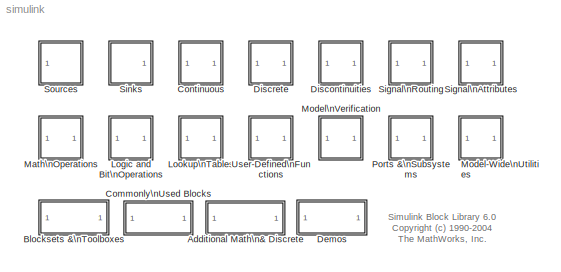
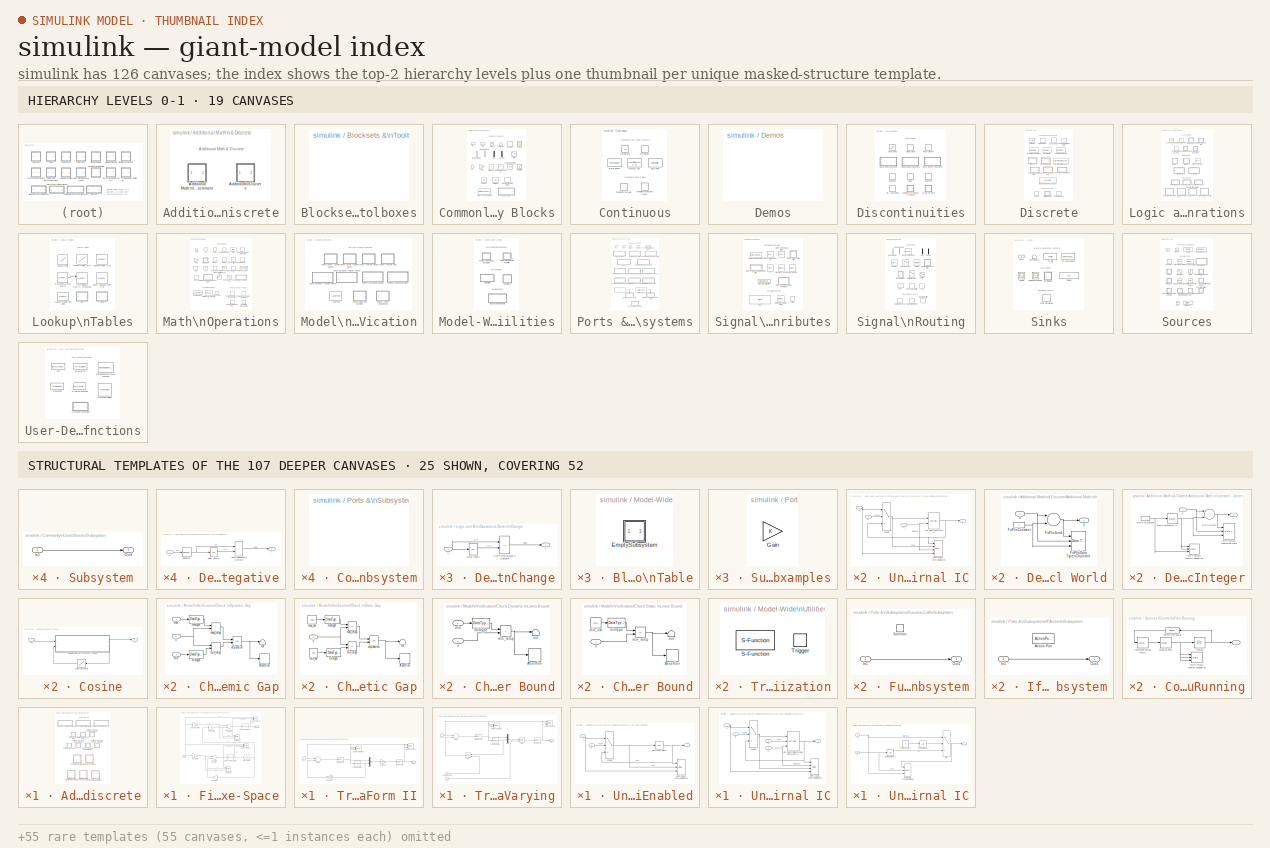
[diagram: thumbnail index - top-2 hierarchy levels (19 canvases) + 25 structural-template representatives of the remaining 107 canvases]
MODEL simulink
KIND library
CONFIG PostLoadFcn = setsysloc(bdroot)
BLOCK [SubSystem] Additional Math\n& Discrete
  MaskDisplay = image(imread('additional_math_discrete.bmp','bmp'))
  MaskIconFrame = on
  MaskIconOpaque = on
  MaskIconRotate = none
  MaskIconUnits = autoscale
  MinAlgLoopOccurrences = off
  Ports = []
  RTWSystemCode = Auto
  TreatAsAtomicUnit = off
BLOCK [SubSystem] Additional Math\n& Discrete/Additional Math:\nIncrement - Decrement
  MaskDisplay = image(imread('increment_decrement.bmp','bmp'))
  MaskIconFrame = on
  MaskIconOpaque = on
  MaskIconRotate = none
  MaskIconUnits = autoscale
  MinAlgLoopOccurrences = off
  Ports = []
  RTWSystemCode = Auto
  TreatAsAtomicUnit = off
BLOCK [SubSystem] Additional Math\n& Discrete/Additional Math:\nIncrement - Decrement/Decrement Time\nTo Zero
  MaskDescription = Decrease the Real World Value of Signal by the Sample Time Ts,\nbut never go below zero.\n\nThis block only works with fixed sample rates, so it will not work inside a triggered subsystem.
  MaskDisplay = fprintf('max( V-Ts, 0 )');
  MaskIconFrame = on
  MaskIconOpaque = on
  MaskIconRotate = none
  MaskIconUnits = normalized
  MaskSelfModifiable = on
  MaskType = Decrement Time To Zero
  MinAlgLoopOccurrences = off
  Ports = [1, 1]
  RTWSystemCode = Auto
  TreatAsAtomicUnit = off
BLOCK [Reference] Additional Math\n& Discrete/Additional Math:\nIncrement - Decrement/Decrement Time\nTo Zero/FixPt\nData Type\nDuplicate  REF=simulink/Signal\nAttributes/Data Type\nDuplicate
  NumInputPorts = 5
  Ports = [5]
  SourceBlock = simulink/Signal\nAttributes/Data Type\nDuplicate
  SourceType = Data Type Duplicate
BLOCK [RelationalOperator] Additional Math\n& Discrete/Additional Math:\nIncrement - Decrement/Decrement Time\nTo Zero/FixPt\nRelational\nOperator3
  InputSameDT = off
  LogicOutDataTypeMode = Specify via dialog
  Operator = >
  ZeroCross = off
BLOCK [Reference] Additional Math\n& Discrete/Additional Math:\nIncrement - Decrement/Decrement Time\nTo Zero/FixPt\nSample Time\nMath  REF=simulink/Signal\nAttributes/Weighted\nSample Time
  DoSatur = off
  OutputDataTypeScalingMode = Inherit via back propagation
  Ports = [1, 1]
  RndMeth = Floor
  SourceBlock = simulink/Signal\nAttributes/Weighted\nSample Time
  SourceType = Sample Time Math
  TsampMathImp = Online Calculations
  TsampMathOp = Ts Only
  weightValue = 1.0
BLOCK [Sum] Additional Math\n& Discrete/Additional Math:\nIncrement - Decrement/Decrement Time\nTo Zero/FixPt\nSum1
  InputSameDT = off
  Inputs = +-
  LockScale = on
  OutDataType = uint(4)
  OutDataTypeMode = Inherit via back propagation
  OutScaling = 1
  Ports = [2, 1]
  SaturateOnIntegerOverflow = off
BLOCK [Switch] Additional Math\n& Discrete/Additional Math:\nIncrement - Decrement/Decrement Time\nTo Zero/FixPt\nSwitch4
  InputSameDT = off
  OutDataTypeMode = Inherit via back propagation
  SaturateOnIntegerOverflow = off
  Threshold = 1
  ZeroCross = off
BLOCK [Ground] Additional Math\n& Discrete/Additional Math:\nIncrement - Decrement/Decrement Time\nTo Zero/Ground1
BLOCK [Inport] Additional Math\n& Discrete/Additional Math:\nIncrement - Decrement/Decrement Time\nTo Zero/u
  IconDisplay = Port number
  LatchInput = off
BLOCK [Outport] Additional Math\n& Discrete/Additional Math:\nIncrement - Decrement/Decrement Time\nTo Zero/y
  BusOutputAsStruct = off
  IconDisplay = Port number
BLOCK [SubSystem] Additional Math\n& Discrete/Additional Math:\nIncrement - Decrement/Decrement\nReal World
  MaskDescription = Decrease the Real World Value of Signal by 1.0\nOverflows will always wrap.
  MaskDisplay = disp('V--')
  MaskIconFrame = on
  MaskIconOpaque = on
  MaskIconRotate = none
  MaskIconUnits = normalized
  MaskSelfModifiable = on
  MaskType = Real World Value Decrement
  MinAlgLoopOccurrences = off
  Ports = [1, 1]
  RTWSystemCode = Auto
  TreatAsAtomicUnit = off
BLOCK [Constant] Additional Math\n& Discrete/Additional Math:\nIncrement - Decrement/Decrement\nReal World/FixPt\nConstant
  ConRadixGroup = Best Precision: Vector-wise
  OutDataTypeMode = Inherit via back propagation
  OutScaling = 2^-14
BLOCK [Reference] Additional Math\n& Discrete/Additional Math:\nIncrement - Decrement/Decrement\nReal World/FixPt\nData Type\nDuplicate  REF=simulink/Signal\nAttributes/Data Type\nDuplicate
  NumInputPorts = 3
  Ports = [3]
  SourceBlock = simulink/Signal\nAttributes/Data Type\nDuplicate
  SourceType = Data Type Duplicate
BLOCK [Sum] Additional Math\n& Discrete/Additional Math:\nIncrement - Decrement/Decrement\nReal World/FixPt\nSum1
  Inputs = +-
  LockScale = on
  OutDataType = uint(4)
  OutDataTypeMode = Inherit via back propagation
  OutScaling = 1
  Ports = [2, 1]
  SaturateOnIntegerOverflow = off
BLOCK [Inport] Additional Math\n& Discrete/Additional Math:\nIncrement - Decrement/Decrement\nReal World/u
  IconDisplay = Port number
  LatchInput = off
BLOCK [Outport] Additional Math\n& Discrete/Additional Math:\nIncrement - Decrement/Decrement\nReal World/y
  BusOutputAsStruct = off
  IconDisplay = Port number
BLOCK [SubSystem] Additional Math\n& Discrete/Additional Math:\nIncrement - Decrement/Decrement\nStored Integer
  MaskDescription = Decrease the Stored Value of Signal by 1\nFloating Point signals are decreased by 1.0\nOverflows will always wrap.
  MaskDisplay = disp('Q--')
  MaskIconFrame = on
  MaskIconOpaque = on
  MaskIconRotate = none
  MaskIconUnits = normalized
  MaskSelfModifiable = on
  MaskType = Stored Integer Value Decrement
  MinAlgLoopOccurrences = off
  Ports = [1, 1]
  RTWSystemCode = Auto
  TreatAsAtomicUnit = off
BLOCK [Constant] Additional Math\n& Discrete/Additional Math:\nIncrement - Decrement/Decrement\nStored Integer/FixPt\nConstant
  ConRadixGroup = Best Precision: Vector-wise
  OutDataTypeMode = Inherit via back propagation
  OutScaling = 2^-14
BLOCK [Reference] Additional Math\n& Discrete/Additional Math:\nIncrement - Decrement/Decrement\nStored Integer/FixPt\nData Type\nDuplicate  REF=simulink/Signal\nAttributes/Data Type\nDuplicate
  NumInputPorts = 3
  Ports = [3]
  SourceBlock = simulink/Signal\nAttributes/Data Type\nDuplicate
  SourceType = Data Type Duplicate
BLOCK [Reference] Additional Math\n& Discrete/Additional Math:\nIncrement - Decrement/Decrement\nStored Integer/FixPt\nData Type\nPropagation  REF=simulink/Signal\nAttributes/Data Type\nPropagation
  BiasAdd = 0
  BiasBase = Bias1
  BiasMult = 0
  IfRefDouble = double
  IfRefSingle = single
  IsSigned = IsSigned1
  NumBitsAdd = 0
  NumBitsAllowFinal = 1:128
  NumBitsBase = NumBits1
  NumBitsMult = 1
  Ports = [3]
  PropDataType = sfix(16)
  PropDataTypeMode = Inherit via propagation rule
  PropScaling = 2^-10
  PropScalingMode = Inherit via propagation rule
  SlopeAdd = 1
  SlopeBase = Slope1
  SlopeMult = 0
  SourceBlock = simulink/Signal\nAttributes/Data Type\nPropagation
  SourceType = Data Type Propagation
  ValuesUsedBestPrec = [5 -7]
BLOCK [DataTypeConversion] Additional Math\n& Discrete/Additional Math:\nIncrement - Decrement/Decrement\nStored Integer/FixPt\nGateway In
  ConvertRealWorld = Stored Integer (SI)
  OutScaling = 2^-10
  RndMeth = Floor
  SaturateOnIntegerOverflow = off
BLOCK [Sum] Additional Math\n& Discrete/Additional Math:\nIncrement - Decrement/Decrement\nStored Integer/FixPt\nSum1
  Inputs = +-
  LockScale = on
  OutDataType = uint(4)
  OutDataTypeMode = Inherit via back propagation
  OutScaling = 1
  Ports = [2, 1]
  SaturateOnIntegerOverflow = off
BLOCK [Inport] Additional Math\n& Discrete/Additional Math:\nIncrement - Decrement/Decrement\nStored Integer/u
  IconDisplay = Port number
  LatchInput = off
BLOCK [Outport] Additional Math\n& Discrete/Additional Math:\nIncrement - Decrement/Decrement\nStored Integer/y
  BusOutputAsStruct = off
  IconDisplay = Port number
BLOCK [SubSystem] Additional Math\n& Discrete/Additional Math:\nIncrement - Decrement/Decrement\nTo Zero
  MaskDescription = Decrease the Real World Value of Signal by 1.0,\nbut never go below zero.
  MaskDisplay = fprintf('max( V--, 0 )');
  MaskIconFrame = on
  MaskIconOpaque = on
  MaskIconRotate = none
  MaskIconUnits = normalized
  MaskSelfModifiable = on
  MaskType = Decrement To Zero
  MinAlgLoopOccurrences = off
  Ports = [1, 1]
  RTWSystemCode = Auto
  TreatAsAtomicUnit = off
BLOCK [Constant] Additional Math\n& Discrete/Additional Math:\nIncrement - Decrement/Decrement\nTo Zero/FixPt\nConstant
  ConRadixGroup = Best Precision: Vector-wise
  OutDataTypeMode = Inherit via back propagation
  OutScaling = 2^-14
BLOCK [Reference] Additional Math\n& Discrete/Additional Math:\nIncrement - Decrement/Decrement\nTo Zero/FixPt\nData Type\nDuplicate  REF=simulink/Signal\nAttributes/Data Type\nDuplicate
  NumInputPorts = 5
  Ports = [5]
  SourceBlock = simulink/Signal\nAttributes/Data Type\nDuplicate
  SourceType = Data Type Duplicate
BLOCK [RelationalOperator] Additional Math\n& Discrete/Additional Math:\nIncrement - Decrement/Decrement\nTo Zero/FixPt\nRelational\nOperator3
  InputSameDT = off
  LogicOutDataTypeMode = Specify via dialog
  Operator = >
  ZeroCross = off
BLOCK [Sum] Additional Math\n& Discrete/Additional Math:\nIncrement - Decrement/Decrement\nTo Zero/FixPt\nSum1
  InputSameDT = off
  Inputs = +-
  LockScale = on
  OutDataType = uint(4)
  OutDataTypeMode = Inherit via back propagation
  OutScaling = 1
  Ports = [2, 1]
  SaturateOnIntegerOverflow = off
BLOCK [Switch] Additional Math\n& Discrete/Additional Math:\nIncrement - Decrement/Decrement\nTo Zero/FixPt\nSwitch4
  InputSameDT = off
  OutDataTypeMode = Inherit via back propagation
  SaturateOnIntegerOverflow = off
  Threshold = 1
  ZeroCross = off
BLOCK [Ground] Additional Math\n& Discrete/Additional Math:\nIncrement - Decrement/Decrement\nTo Zero/Ground1
BLOCK [Inport] Additional Math\n& Discrete/Additional Math:\nIncrement - Decrement/Decrement\nTo Zero/u
  IconDisplay = Port number
  LatchInput = off
BLOCK [Outport] Additional Math\n& Discrete/Additional Math:\nIncrement - Decrement/Decrement\nTo Zero/y
  BusOutputAsStruct = off
  IconDisplay = Port number
BLOCK [SubSystem] Additional Math\n& Discrete/Additional Math:\nIncrement - Decrement/Increment\nReal World
  MaskDescription = Increase the Real World Value of Signal by 1.0\nOverflows will always wrap.
  MaskDisplay = disp('V++')
  MaskIconFrame = on
  MaskIconOpaque = on
  MaskIconRotate = none
  MaskIconUnits = normalized
  MaskSelfModifiable = on
  MaskType = Real World Value Increment
  MinAlgLoopOccurrences = off
  Ports = [1, 1]
  RTWSystemCode = Auto
  TreatAsAtomicUnit = off
BLOCK [Constant] Additional Math\n& Discrete/Additional Math:\nIncrement - Decrement/Increment\nReal World/FixPt\nConstant
  ConRadixGroup = Best Precision: Vector-wise
  OutDataTypeMode = Inherit via back propagation
  OutScaling = 2^-14
BLOCK [Reference] Additional Math\n& Discrete/Additional Math:\nIncrement - Decrement/Increment\nReal World/FixPt\nData Type\nDuplicate  REF=simulink/Signal\nAttributes/Data Type\nDuplicate
  NumInputPorts = 3
  Ports = [3]
  SourceBlock = simulink/Signal\nAttributes/Data Type\nDuplicate
  SourceType = Data Type Duplicate
BLOCK [Sum] Additional Math\n& Discrete/Additional Math:\nIncrement - Decrement/Increment\nReal World/FixPt\nSum1
  LockScale = on
  OutDataType = uint(4)
  OutDataTypeMode = Inherit via back propagation
  OutScaling = 1
  Ports = [2, 1]
  SaturateOnIntegerOverflow = off
BLOCK [Inport] Additional Math\n& Discrete/Additional Math:\nIncrement - Decrement/Increment\nReal World/u
  IconDisplay = Port number
  LatchInput = off
BLOCK [Outport] Additional Math\n& Discrete/Additional Math:\nIncrement - Decrement/Increment\nReal World/y
  BusOutputAsStruct = off
  IconDisplay = Port number
BLOCK [SubSystem] Additional Math\n& Discrete/Additional Math:\nIncrement - Decrement/Increment\nStored Integer
  MaskDescription = Increase the Stored Value of Signal by 1\nFloating Point signals are increased by 1.0\nOverflows will always wrap.
  MaskDisplay = disp('Q++')
  MaskIconFrame = on
  MaskIconOpaque = on
  MaskIconRotate = none
  MaskIconUnits = normalized
  MaskSelfModifiable = on
  MaskType = Stored Integer Value Increment
  MinAlgLoopOccurrences = off
  Ports = [1, 1]
  RTWSystemCode = Auto
  TreatAsAtomicUnit = off
BLOCK [Constant] Additional Math\n& Discrete/Additional Math:\nIncrement - Decrement/Increment\nStored Integer/FixPt\nConstant
  ConRadixGroup = Best Precision: Vector-wise
  OutDataTypeMode = Inherit via back propagation
  OutScaling = 2^-14
BLOCK [Reference] Additional Math\n& Discrete/Additional Math:\nIncrement - Decrement/Increment\nStored Integer/FixPt\nData Type\nDuplicate  REF=simulink/Signal\nAttributes/Data Type\nDuplicate
  NumInputPorts = 3
  Ports = [3]
  SourceBlock = simulink/Signal\nAttributes/Data Type\nDuplicate
  SourceType = Data Type Duplicate
BLOCK [Reference] Additional Math\n& Discrete/Additional Math:\nIncrement - Decrement/Increment\nStored Integer/FixPt\nData Type\nPropagation  REF=simulink/Signal\nAttributes/Data Type\nPropagation
  BiasAdd = 0
  BiasBase = Bias1
  BiasMult = 0
  IfRefDouble = double
  IfRefSingle = single
  IsSigned = IsSigned1
  NumBitsAdd = 0
  NumBitsAllowFinal = 1:128
  NumBitsBase = NumBits1
  NumBitsMult = 1
  Ports = [3]
  PropDataType = sfix(16)
  PropDataTypeMode = Inherit via propagation rule
  PropScaling = 2^-10
  PropScalingMode = Inherit via propagation rule
  SlopeAdd = 1
  SlopeBase = Slope1
  SlopeMult = 0
  SourceBlock = simulink/Signal\nAttributes/Data Type\nPropagation
  SourceType = Data Type Propagation
  ValuesUsedBestPrec = [5 -7]
BLOCK [DataTypeConversion] Additional Math\n& Discrete/Additional Math:\nIncrement - Decrement/Increment\nStored Integer/FixPt\nGateway In
  ConvertRealWorld = Stored Integer (SI)
  OutScaling = 2^-10
  RndMeth = Floor
  SaturateOnIntegerOverflow = off
BLOCK [Sum] Additional Math\n& Discrete/Additional Math:\nIncrement - Decrement/Increment\nStored Integer/FixPt\nSum1
  LockScale = on
  OutDataType = uint(4)
  OutDataTypeMode = Inherit via back propagation
  OutScaling = 1
  Ports = [2, 1]
  SaturateOnIntegerOverflow = off
BLOCK [Inport] Additional Math\n& Discrete/Additional Math:\nIncrement - Decrement/Increment\nStored Integer/u
  IconDisplay = Port number
  LatchInput = off
BLOCK [Outport] Additional Math\n& Discrete/Additional Math:\nIncrement - Decrement/Increment\nStored Integer/y
  BusOutputAsStruct = off
  IconDisplay = Port number
BLOCK [SubSystem] Additional Math\n& Discrete/Additional\nDiscrete
  MaskDisplay = image(imread('discrete.bmp','bmp'))
  MaskIconFrame = on
  MaskIconOpaque = on
  MaskIconRotate = none
  MaskIconUnits = autoscale
  MinAlgLoopOccurrences = off
  Ports = []
  RTWSystemCode = Auto
  TreatAsAtomicUnit = off
BLOCK [SubSystem] Additional Math\n& Discrete/Additional\nDiscrete/Fixed-Point\nState-Space
  MaskCallbackString = ||||||||||
  MaskDescription = Discrete-time State-Space Realization
  MaskDisplay = text(0.5, 0.5, 'y(n)=Cx(n)+Du(n)', 'horizontalAlignment', 'center', 'verticalAlignment', 'bottom');\ntext(0.5, 0.5, 'x(n+1)=Ax(n)+Bu(n)', 'horizontalAlignment', 'center', 'verticalAlignment', 'top');
  MaskEnableString = on,on,on,on,on,on,on,on,on,on,on
  MaskIconFrame = on
  MaskIconOpaque = on
  MaskIconRotate = none
  MaskIconUnits = normalized
  MaskInitialization = blkH = gcbh;\nblkName = getfullname(blkH);\n\nvRndMeth = get_param(blkH,'RndMeth');\nvDoSatur = get_param(blkH,'DoSatur');\nblks = {'State Matrix A','Input Matrix B','Output Matrix C','Direct Link Matrix D','Sum Output Equation','Sum State Equation','Downcast Next State X','Downcast Output Y'};\nfor i = 1:length(blks)\n  set_param([blkName,'/',blks{i}],'RndMeth',vRndMeth, ...\n	  'DoSatur',vDoSatu...<+10ch>
  MaskPromptString = State Matrix A:|Input Matrix B:|Output Matrix C:|Direct Feedthrough Matrix D:|Initial condition for state:|Data type for internal calculations:     ex.  sfix(16),  uint(8),  float('single')|Scaling for State Equation AX+BU:   ex.  2^-9|Scaling for Output Equation CX+DU:   ex.  2^-9|Lock output scaling so autoscaling tool can't change it|Round toward:|Saturate to max or min when overflows occur
  MaskSelfModifiable = on
  MaskStyleString = edit,edit,edit,edit,edit,edit,edit,edit,checkbox,popup(Zero|Nearest|Ceiling|Floor),checkbox
  MaskTabNameString = Main,Main,Main,Main,Main,Signal data types,Signal data types,Signal data types,Signal data types,Signal data types,Signal data types
  MaskToolTipString = on,on,on,on,on,on,on,on,on,on,on
  MaskTunableValueString = on,on,on,on,on,on,on,on,on,on,on
  MaskType = Fixed-Point State-Space
  MaskValueString = [2.6020 -2.2793 0.6708; 1 0 0; 0 1 0]|[ 1; 0; 0]|[0.0184    0.0024    0.0055]|[0.0033]|0.0|float('double')|2^0|2^0|off|Floor|off
  MaskVarAliasString = ,,,,,,,,,,
  MaskVariables = A=@1;B=@2;C=@3;D=@4;X0=@5;InternalDataType=@6;StateEqScaling=@7;OutputEqScaling=@8;LockScale=@9;RndMeth=@10;DoSatur=@11;
  MaskVisibilityString = on,on,on,on,on,on,on,on,on,on,on
  MinAlgLoopOccurrences = off
  Ports = [1, 1]
  RTWSystemCode = Auto
  TreatAsAtomicUnit = off
BLOCK [Reference] Additional Math\n& Discrete/Additional\nDiscrete/Fixed-Point\nState-Space/Data Type Duplicate  REF=simulink/Signal\nAttributes/Data Type\nDuplicate
  NumInputPorts = 3
  Ports = [3]
  SourceBlock = simulink/Signal\nAttributes/Data Type\nDuplicate
  SourceType = Data Type Duplicate
BLOCK [Reference] Additional Math\n& Discrete/Additional\nDiscrete/Fixed-Point\nState-Space/Data Type Duplicate1  REF=simulink/Signal\nAttributes/Data Type\nDuplicate
  NumInputPorts = 3
  Ports = [3]
  SourceBlock = simulink/Signal\nAttributes/Data Type\nDuplicate
  SourceType = Data Type Duplicate
BLOCK [Reference] Additional Math\n& Discrete/Additional\nDiscrete/Fixed-Point\nState-Space/DataTypeProp  REF=simulink/Signal\nAttributes/Data Type\nPropagation
  BiasAdd = 0
  BiasBase = Bias2
  BiasMult = 1
  IfRefDouble = double
  IfRefSingle = single
  IsSigned = IsSigned1 or IsSigned2
  NumBitsAdd = 0
  NumBitsAllowFinal = 1:128
  NumBitsBase = NumBits1
  NumBitsMult = 1
  Ports = [3]
  PropDataType = sfix(16)
  PropDataTypeMode = Inherit via propagation rule
  PropScaling = 2^-10
  PropScalingMode = Inherit via propagation rule
  SlopeAdd = 0
  SlopeBase = PosRange2
  SlopeMult = 1
  SourceBlock = simulink/Signal\nAttributes/Data Type\nPropagation
  SourceType = Data Type Propagation
  ValuesUsedBestPrec = [5 -7]
BLOCK [Reference] Additional Math\n& Discrete/Additional\nDiscrete/Fixed-Point\nState-Space/DataTypeProp1  REF=simulink/Signal\nAttributes/Data Type\nPropagation
  BiasAdd = 0
  BiasBase = Bias2
  BiasMult = 1
  IfRefDouble = double
  IfRefSingle = single
  IsSigned = IsSigned1 or IsSigned2
  NumBitsAdd = 0
  NumBitsAllowFinal = 1:128
  NumBitsBase = NumBits1
  NumBitsMult = 1
  Ports = [3]
  PropDataType = sfix(16)
  PropDataTypeMode = Inherit via propagation rule
  PropScaling = 2^-10
  PropScalingMode = Inherit via propagation rule
  SlopeAdd = 0
  SlopeBase = PosRange2
  SlopeMult = 1
  SourceBlock = simulink/Signal\nAttributes/Data Type\nPropagation
  SourceType = Data Type Propagation
  ValuesUsedBestPrec = [5 -7]
BLOCK [UnitDelay] Additional Math\n& Discrete/Additional\nDiscrete/Fixed-Point\nState-Space/Delay State X
  AttributesFormatString = %<Description>
  Description = \nStore in Global RAM
  SampleTime = -1
  X0 = X0
BLOCK [Gain] Additional Math\n& Discrete/Additional\nDiscrete/Fixed-Point\nState-Space/Direct Link Matrix D
  AttributesFormatString = %<Description>
  Description = \nMultiply in CPU
  Gain = D
  Multiplication = Matrix(K*u) (u vector)
  OutDataType = sint(8)
  OutDataTypeMode = Inherit via back propagation
  OutScaling = 1
  ParameterDataType = sint(8)
  ParameterDataTypeMode = Inherit via internal rule
  ParameterScaling = 1
  ParameterScalingMode = Use specified scaling
  SaturateOnIntegerOverflow = off
BLOCK [DataTypeConversion] Additional Math\n& Discrete/Additional\nDiscrete/Fixed-Point\nState-Space/Downcast Next State X
  AttributesFormatString = %<Description>
  Description = \nReduce from CPU Size\n to Global RAM Size
  OutDataType = sint(8)
  OutScaling = 1
  RndMeth = Floor
  SaturateOnIntegerOverflow = off
BLOCK [DataTypeConversion] Additional Math\n& Discrete/Additional\nDiscrete/Fixed-Point\nState-Space/Downcast Output Y
  AttributesFormatString = %<Description>
  Description = \nReduce from CPU Size\n to Global RAM Size
  OutDataType = sint(8)
  OutScaling = 1
  RndMeth = Floor
  SaturateOnIntegerOverflow = off
BLOCK [Gain] Additional Math\n& Discrete/Additional\nDiscrete/Fixed-Point\nState-Space/Input Matrix B
  AttributesFormatString = %<Description>
  Description = \nMultiply in CPU
  Gain = B
  Multiplication = Matrix(K*u) (u vector)
  OutDataType = sint(8)
  OutDataTypeMode = Inherit via back propagation
  OutScaling = 1
  ParameterDataType = sint(8)
  ParameterDataTypeMode = Inherit via internal rule
  ParameterScaling = 1
  ParameterScalingMode = Use specified scaling
  SaturateOnIntegerOverflow = off
BLOCK [Inport] Additional Math\n& Discrete/Additional\nDiscrete/Fixed-Point\nState-Space/Input(s)
  IconDisplay = Port number
  LatchInput = off
BLOCK [Gain] Additional Math\n& Discrete/Additional\nDiscrete/Fixed-Point\nState-Space/Output Matrix C
  AttributesFormatString = %<Description>
  Description = \nMultiply in CPU
  Gain = C
  Multiplication = Matrix(K*u) (u vector)
  OutDataType = sint(8)
  OutDataTypeMode = Inherit via back propagation
  OutScaling = 1
  ParameterDataType = sint(8)
  ParameterDataTypeMode = Inherit via internal rule
  ParameterScaling = 1
  ParameterScalingMode = Use specified scaling
  SaturateOnIntegerOverflow = off
BLOCK [Outport] Additional Math\n& Discrete/Additional\nDiscrete/Fixed-Point\nState-Space/Output(s)
  BusOutputAsStruct = off
  IconDisplay = Port number
  InitialOutput = 0
BLOCK [Gain] Additional Math\n& Discrete/Additional\nDiscrete/Fixed-Point\nState-Space/State Matrix A
  AttributesFormatString = %<Description>
  Description = \nMultiply in CPU
  Gain = A
  Multiplication = Matrix(K*u) (u vector)
  OutDataType = sint(8)
  OutDataTypeMode = Inherit via back propagation
  OutScaling = 1
  ParameterDataType = sint(8)
  ParameterDataTypeMode = Inherit via internal rule
  ParameterScaling = 1
  ParameterScalingMode = Use specified scaling
  SaturateOnIntegerOverflow = off
BLOCK [Sum] Additional Math\n& Discrete/Additional\nDiscrete/Fixed-Point\nState-Space/Sum Output Equation
  AttributesFormatString = %<Description>
  Description = \nAdd in CPU
  InputSameDT = off
  OutDataType = InternalDataType
  OutDataTypeMode = Specify via dialog
  OutScaling = OutputEqScaling
  Ports = [2, 1]
  SaturateOnIntegerOverflow = off
BLOCK [Sum] Additional Math\n& Discrete/Additional\nDiscrete/Fixed-Point\nState-Space/Sum State Equation
  AttributesFormatString = %<Description>
  Description = \nAdd in CPU
  InputSameDT = off
  OutDataType = InternalDataType
  OutDataTypeMode = Specify via dialog
  OutScaling = StateEqScaling
  Ports = [2, 1]
  SaturateOnIntegerOverflow = off
BLOCK [SubSystem] Additional Math\n& Discrete/Additional\nDiscrete/Transfer Fcn\nDirect Form II
  MaskCallbackString = ||||
  MaskDescription = A Direct Form II realization of the specified transfer function is used.  Only single input multiple output transfer functions are supported.  \n\nThe data types and scalings of the output, the coefficients, and any temporary variables are automatically selected.  The automatic choices will be acceptable in many situations.  In situations where the automatic choices give unacceptable results, manu...<+516ch>
  MaskDisplay = dpoly(NumCoefVec,[1 DenCoefVec],'z-')
  MaskEnableString = on,on,on,on,on
  MaskIconFrame = on
  MaskIconOpaque = on
  MaskIconRotate = none
  MaskIconUnits = normalized
  MaskInitialization = blkH = gcbh;\nblkName = getfullname(blkH);\n\nvRndMeth = get_param(blkH,'RndMeth');\nvDoSatur = get_param(blkH,'DoSatur');\nDCGain = polyval(NumCoefVec,1)./polyval([1 DenCoefVec],1);\nmaxGain = max( 1, max(max(abs(DCGain))) );\nmaxGain = max( maxGain, abs(NumCoefVec(1)) );\nOutputSlopeMult = 2^ceil(log2(maxGain));\nDCGain = (1)./polyval([1 DenCoefVec],1);\nmaxGain = max( 1, max(max(abs(DCGain))) )...<+440ch>
  MaskPromptString = Numerator coefficients:|Denominator coefficients excluding lead (which must be 1.0):|Initial condition:|Round toward:|Saturate to max or min when overflows occur
  MaskSelfModifiable = on
  MaskStyleString = edit,edit,edit,popup(Zero|Nearest|Ceiling|Floor),checkbox
  MaskTabNameString = ,,,,
  MaskToolTipString = on,on,on,on,on
  MaskTunableValueString = on,on,on,on,on
  MaskType = Transfer Fcn Direct Form II
  MaskValueString = [0.2 0.3 0.2]|[-0.9    0.6]|0.0|Floor|off
  MaskVarAliasString = ,,,,
  MaskVariables = NumCoefVec=@1;DenCoefVec=@2;vinit=@3;RndMeth=@4;DoSatur=@5;
  MaskVisibilityString = on,on,on,on,on
  MinAlgLoopOccurrences = off
  Ports = [1, 1]
  RTWSystemCode = Auto
  TreatAsAtomicUnit = off
BLOCK [Reference] Additional Math\n& Discrete/Additional\nDiscrete/Transfer Fcn\nDirect Form II/DataTypeProp  REF=simulink/Signal\nAttributes/Data Type\nPropagation
  BiasAdd = 0
  BiasBase = Bias1
  BiasMult = 0
  IfRefDouble = double
  IfRefSingle = single
  IsSigned = IsSigned1 or IsSigned2
  NumBitsAdd = 0
  NumBitsAllowFinal = 1:128
  NumBitsBase = max([NumBits1 NumBits2])
  NumBitsMult = 1
  Ports = [3]
  PropDataType = sfix(16)
  PropDataTypeMode = Inherit via propagation rule
  PropScaling = 2^-10
  PropScalingMode = Inherit via propagation rule
  SlopeAdd = 0
  SlopeBase = min([Slope1 Slope2])
  SlopeMult = OutputSlopeMult
  SourceBlock = simulink/Signal\nAttributes/Data Type\nPropagation
  SourceType = Data Type Propagation
  ValuesUsedBestPrec = [5 -7]
BLOCK [Reference] Additional Math\n& Discrete/Additional\nDiscrete/Transfer Fcn\nDirect Form II/DataTypeProp1  REF=simulink/Signal\nAttributes/Data Type\nPropagation
  BiasAdd = 0
  BiasBase = Bias1
  BiasMult = 0
  IfRefDouble = double
  IfRefSingle = single
  IsSigned = IsSigned1 or IsSigned2
  NumBitsAdd = 0
  NumBitsAllowFinal = 1:128
  NumBitsBase = max([NumBits1 NumBits2])
  NumBitsMult = 1
  Ports = [3]
  PropDataType = sfix(16)
  PropDataTypeMode = Inherit via propagation rule
  PropScaling = 2^-10
  PropScalingMode = Inherit via propagation rule
  SlopeAdd = 0
  SlopeBase = min([Slope1 Slope2])
  SlopeMult = OutputSlopeMult2
  SourceBlock = simulink/Signal\nAttributes/Data Type\nPropagation
  SourceType = Data Type Propagation
  ValuesUsedBestPrec = [5 -7]
BLOCK [Gain] Additional Math\n& Discrete/Additional\nDiscrete/Transfer Fcn\nDirect Form II/DenCoef
  AttributesFormatString = \nData Type and Scaling Inherited\nwith goal of NO Quantization Noise\nPossible Overflow or Saturation
  Gain = DenCoefVec
  Multiplication = Matrix(K*u) (u vector)
  OutDataTypeMode = Inherit via internal rule
  OutScaling = 2^-10
  ParameterDataType = float('double')
  ParameterDataTypeMode = Inherit via internal rule
  ParameterScaling = 1
  ParameterScalingMode = Use specified scaling
  SaturateOnIntegerOverflow = off
BLOCK [DataTypeConversion] Additional Math\n& Discrete/Additional\nDiscrete/Transfer Fcn\nDirect Form II/Downcast
  AttributesFormatString = %<Description>
  Description = \nReduce from CPU Size\n to Global RAM Size
  LockScale = on
  OutDataType = float('double')
  OutScaling = 1
  RndMeth = Floor
  SaturateOnIntegerOverflow = off
BLOCK [DataTypeConversion] Additional Math\n& Discrete/Additional\nDiscrete/Transfer Fcn\nDirect Form II/Downcast1
  AttributesFormatString = %<Description>
  Description = \nReduce from CPU Size\n to Global RAM Size
  LockScale = on
  OutDataType = float('double')
  OutScaling = 1
  RndMeth = Floor
  SaturateOnIntegerOverflow = off
BLOCK [Inport] Additional Math\n& Discrete/Additional\nDiscrete/Transfer Fcn\nDirect Form II/Input
  IconDisplay = Port number
  LatchInput = off
BLOCK [Mux] Additional Math\n& Discrete/Additional\nDiscrete/Transfer Fcn\nDirect Form II/Mux
  DisplayOption = bar
  Inputs = 2
  Ports = [2, 1]
BLOCK [Gain] Additional Math\n& Discrete/Additional\nDiscrete/Transfer Fcn\nDirect Form II/NumCoef
  AttributesFormatString = \nData Type and Scaling Inherited\nwith goal of NO Quantization Noise\nPossible Overflow or Saturation
  Gain = NumCoefVec
  Multiplication = Matrix(K*u) (u vector)
  OutDataTypeMode = Inherit via internal rule
  OutScaling = 2^-10
  ParameterDataType = float('double')
  ParameterDataTypeMode = Inherit via internal rule
  ParameterScaling = 1
  ParameterScalingMode = Use specified scaling
  SaturateOnIntegerOverflow = off
BLOCK [Outport] Additional Math\n& Discrete/Additional\nDiscrete/Transfer Fcn\nDirect Form II/Output
  BusOutputAsStruct = off
  IconDisplay = Port number
BLOCK [Sum] Additional Math\n& Discrete/Additional\nDiscrete/Transfer Fcn\nDirect Form II/Sum
  AttributesFormatString = \nData Type and Scaling Inherited\nwith goal of NO Quantization Noise\nPossible Overflow or Saturation
  InputSameDT = off
  Inputs = +-
  LockScale = on
  OutDataType = sfix(32)
  OutDataTypeMode = Inherit via internal rule
  OutScaling = 2^(-26)
  Ports = [2, 1]
  SaturateOnIntegerOverflow = off
  Tag = S16 2^-10
BLOCK [Reference] Additional Math\n& Discrete/Additional\nDiscrete/Transfer Fcn\nDirect Form II/Tapped Delay  REF=simulink/Discrete/Tapped Delay
  AttributesFormatString = \nNumber of Taps\nInherited via Back Propagation
  DelayOrder = Newest
  NumDelays = -1
  Ports = [1, 1]
  SourceBlock = simulink/Discrete/Tapped Delay
  SourceType = Tapped Delay Line
  includeCurrent = off
  samptime = -1
  vinit = vinit
BLOCK [SubSystem] Additional Math\n& Discrete/Additional\nDiscrete/Transfer Fcn\nDirect Form II\nTime Varying
  MaskCallbackString = ||
  MaskDescription = A Direct Form II realization of the specified transfer function is used.  Only single input single output transfer functions are supported.  \n\nThe data types and scalings of the output, the coefficients, and any temporary variables are automatically selected.  The automatic choices will be acceptable in many situations.  In situations where the automatic choices give unacceptable results, manual...<+514ch>
  MaskDisplay = fprintf('Direct\\nForm II')
  MaskEnableString = on,on,on
  MaskIconFrame = on
  MaskIconOpaque = off
  MaskIconRotate = none
  MaskIconUnits = normalized
  MaskInitialization = \nblkH = gcbh;\nblkName = getfullname(blkH);\n\nvRndMeth = get_param(blkH,'RndMeth');\nvDoSatur = get_param(blkH,'DoSatur');\nset_param([blkName,'/Dot1'],'RndMeth',vRndMeth, ...\n	'DoSatur',vDoSatur);\nset_param([blkName,'/Dot2'],'RndMeth',vRndMeth, ...\n	'DoSatur',vDoSatur);\nset_param([blkName,'/Downcast'],'RndMeth',vRndMeth, ...\n	'DoSatur',vDoSatur);\nset_param([blkName,'/Downcast1'],'RndMeth'...<+114ch>
  MaskPromptString = Initial condition:|Round toward:|Saturate to max or min when overflows occur
  MaskSelfModifiable = on
  MaskStyleString = edit,popup(Zero|Nearest|Ceiling|Floor),checkbox
  MaskTabNameString = ,,
  MaskToolTipString = on,on,on
  MaskTunableValueString = on,on,on
  MaskType = Transfer Fcn Direct Form II Time Varying
  MaskValueString = 0.0|Floor|off
  MaskVarAliasString = ,,
  MaskVariables = vinit=@1;RndMeth=@2;DoSatur=@3;
  MaskVisibilityString = on,on,on
  MinAlgLoopOccurrences = off
  Ports = [3, 1]
  RTWSystemCode = Auto
  TreatAsAtomicUnit = off
BLOCK [Reference] Additional Math\n& Discrete/Additional\nDiscrete/Transfer Fcn\nDirect Form II\nTime Varying/DataTypeProp  REF=simulink/Signal\nAttributes/Data Type\nPropagation
  BiasAdd = 0
  BiasBase = Bias1
  BiasMult = 1
  IfRefDouble = double
  IfRefSingle = single
  IsSigned = IsSigned1
  NumBitsAdd = 0
  NumBitsAllowFinal = 1:128
  NumBitsBase = NumBits1
  NumBitsMult = 1
  Ports = [3]
  PropDataType = sfix(16)
  PropDataTypeMode = Inherit via propagation rule
  PropScaling = 2^-10
  PropScalingMode = Inherit via propagation rule
  SlopeAdd = 0
  SlopeBase = Slope1
  SlopeMult = 1
  SourceBlock = simulink/Signal\nAttributes/Data Type\nPropagation
  SourceType = Data Type Propagation
  ValuesUsedBestPrec = [5 -7]
BLOCK [Reference] Additional Math\n& Discrete/Additional\nDiscrete/Transfer Fcn\nDirect Form II\nTime Varying/DataTypeProp1  REF=simulink/Signal\nAttributes/Data Type\nPropagation
  BiasAdd = 0
  BiasBase = Bias1
  BiasMult = 1
  IfRefDouble = double
  IfRefSingle = single
  IsSigned = IsSigned1
  NumBitsAdd = 0
  NumBitsAllowFinal = 1:128
  NumBitsBase = NumBits1
  NumBitsMult = 1
  Ports = [3]
  PropDataType = sfix(16)
  PropDataTypeMode = Inherit via propagation rule
  PropScaling = 2^-10
  PropScalingMode = Inherit via propagation rule
  SlopeAdd = 0
  SlopeBase = Slope1
  SlopeMult = 2
  SourceBlock = simulink/Signal\nAttributes/Data Type\nPropagation
  SourceType = Data Type Propagation
  ValuesUsedBestPrec = [5 -7]
BLOCK [Inport] Additional Math\n& Discrete/Additional\nDiscrete/Transfer Fcn\nDirect Form II\nTime Varying/Den No Lead
  IconDisplay = Port number
  LatchInput = off
  Port = 3
BLOCK [Reference] Additional Math\n& Discrete/Additional\nDiscrete/Transfer Fcn\nDirect Form II\nTime Varying/Dot1  REF=simulink/Math\nOperations/Dot Product
  AttributesFormatString = \nData Type and Scaling Inherited\nwith goal of NO Quantization Noise\nPossible Overflow or Saturation
  DoSatur = off
  InputSameDT = off
  LockScale = off
  OutDataType = sfix(16)
  OutScaling = 2^-10
  OutputDataTypeScalingMode = Inherit via internal rule
  Ports = [2, 1]
  RndMeth = Floor
  SourceBlock = simulink/Math\nOperations/Dot Product
  SourceType = Dot Product
BLOCK [Reference] Additional Math\n& Discrete/Additional\nDiscrete/Transfer Fcn\nDirect Form II\nTime Varying/Dot2  REF=simulink/Math\nOperations/Dot Product
  AttributesFormatString = \nData Type and Scaling Inherited\nwith goal of NO Quantization Noise\nPossible Overflow or Saturation
  DoSatur = off
  InputSameDT = off
  LockScale = off
  OutDataType = sfix(16)
  OutScaling = 2^-10
  OutputDataTypeScalingMode = Inherit via internal rule
  Ports = [2, 1]
  RndMeth = Floor
  SourceBlock = simulink/Math\nOperations/Dot Product
  SourceType = Dot Product
BLOCK [DataTypeConversion] Additional Math\n& Discrete/Additional\nDiscrete/Transfer Fcn\nDirect Form II\nTime Varying/Downcast
  AttributesFormatString = %<Description>
  Description = \nReduce from CPU Size\n to Global RAM Size
  LockScale = on
  OutDataType = float('double')
  OutScaling = 1
  RndMeth = Floor
  SaturateOnIntegerOverflow = off
BLOCK [DataTypeConversion] Additional Math\n& Discrete/Additional\nDiscrete/Transfer Fcn\nDirect Form II\nTime Varying/Downcast1
  AttributesFormatString = %<Description>
  Description = \nReduce from CPU Size\n to Global RAM Size
  LockScale = on
  OutDataType = float('double')
  OutScaling = 1
  RndMeth = Floor
  SaturateOnIntegerOverflow = off
BLOCK [Inport] Additional Math\n& Discrete/Additional\nDiscrete/Transfer Fcn\nDirect Form II\nTime Varying/Input
  IconDisplay = Port number
  LatchInput = off
BLOCK [Mux] Additional Math\n& Discrete/Additional\nDiscrete/Transfer Fcn\nDirect Form II\nTime Varying/Mux
  DisplayOption = bar
  Inputs = 2
  Ports = [2, 1]
BLOCK [Inport] Additional Math\n& Discrete/Additional\nDiscrete/Transfer Fcn\nDirect Form II\nTime Varying/Num
  IconDisplay = Port number
  LatchInput = off
  Port = 2
BLOCK [Outport] Additional Math\n& Discrete/Additional\nDiscrete/Transfer Fcn\nDirect Form II\nTime Varying/Output
  BusOutputAsStruct = off
  IconDisplay = Port number
BLOCK [Sum] Additional Math\n& Discrete/Additional\nDiscrete/Transfer Fcn\nDirect Form II\nTime Varying/Sum
  AttributesFormatString = \nData Type and Scaling Inherited\nwith goal of NO Quantization Noise\nPossible Overflow or Saturation
  InputSameDT = off
  Inputs = +-
  LockScale = on
  OutDataType = sfix(32)
  OutDataTypeMode = Inherit via internal rule
  OutScaling = 2^(-26)
  Ports = [2, 1]
  SaturateOnIntegerOverflow = off
  Tag = S16 2^-10
BLOCK [Reference] Additional Math\n& Discrete/Additional\nDiscrete/Transfer Fcn\nDirect Form II\nTime Varying/Tapped Delay  REF=simulink/Discrete/Tapped Delay
  AttributesFormatString = \nNumber of Taps\nInherited via Back Propagation
  DelayOrder = Newest
  NumDelays = -1
  Ports = [1, 1]
  SourceBlock = simulink/Discrete/Tapped Delay
  SourceType = Tapped Delay Line
  includeCurrent = off
  samptime = -1
  vinit = vinit
BLOCK [SubSystem] Additional Math\n& Discrete/Additional\nDiscrete/Unit Delay\nEnabled
  MaskCallbackString = |
  MaskDescription = Normally, the output is the signal u delayed by one sample period.\nWhen the enable signal is false, the block is disabled, and the state and output values do not change except for resets.  The enable action is vectorized and supports scalar expansion.
  MaskDisplay = dpoly(1,[1 0],'z')
  MaskEnableString = on,on
  MaskIconFrame = on
  MaskIconOpaque = off
  MaskIconRotate = none
  MaskIconUnits = normalized
  MaskPromptString = Initial condition:|Sample time:
  MaskSelfModifiable = on
  MaskStyleString = edit,edit
  MaskTabNameString = ,
  MaskToolTipString = on,on
  MaskTunableValueString = on,on
  MaskType = Unit Delay Enabled
  MaskValueString = 0.0|-1
  MaskVarAliasString = ,
  MaskVariables = vinit=@1;tsamp=@2;
  MaskVisibilityString = on,on
  MinAlgLoopOccurrences = off
  Ports = [2, 1]
  RTWSystemCode = Auto
  TreatAsAtomicUnit = off
BLOCK [Inport] Additional Math\n& Discrete/Additional\nDiscrete/Unit Delay\nEnabled/E
  IconDisplay = Port number
  LatchInput = off
  Port = 2
BLOCK [Switch] Additional Math\n& Discrete/Additional\nDiscrete/Unit Delay\nEnabled/Enable
  Criteria = u2 ~= 0
  InputSameDT = off
  OutDataTypeMode = Inherit via back propagation
  SaturateOnIntegerOverflow = off
  ZeroCross = off
BLOCK [Reference] Additional Math\n& Discrete/Additional\nDiscrete/Unit Delay\nEnabled/FixPt\nData Type\nDuplicate1  REF=simulink/Signal\nAttributes/Data Type\nDuplicate
  NumInputPorts = 3
  Ports = [3]
  SourceBlock = simulink/Signal\nAttributes/Data Type\nDuplicate
  SourceType = Data Type Duplicate
BLOCK [UnitDelay] Additional Math\n& Discrete/Additional\nDiscrete/Unit Delay\nEnabled/FixPt\nUnit Delay1
  SampleTime = tsamp
  X0 = vinit
BLOCK [Inport] Additional Math\n& Discrete/Additional\nDiscrete/Unit Delay\nEnabled/u
  IconDisplay = Port number
  LatchInput = off
BLOCK [Outport] Additional Math\n& Discrete/Additional\nDiscrete/Unit Delay\nEnabled/y
  BusOutputAsStruct = off
  IconDisplay = Port number
BLOCK [SubSystem] Additional Math\n& Discrete/Additional\nDiscrete/Unit Delay\nEnabled\nExternal IC
  MaskDescription = Normally, the output is the signal u delayed by one sample period.\nThe initial condition is given by the signal IC.\nWhen the enable signal is false, the block is disabled, and the state and output values do not change except for resets.  The enable action is vectorized and supports scalar expansion.
  MaskDisplay = dpoly(1,[1 0],'z')
  MaskEnableString = on
  MaskIconFrame = on
  MaskIconOpaque = off
  MaskIconRotate = none
  MaskIconUnits = normalized
  MaskPromptString = Sample time:
  MaskSelfModifiable = on
  MaskStyleString = edit
  MaskToolTipString = on
  MaskTunableValueString = on
  MaskType = Unit Delay Enabled External Initial Condition
  MaskValueString = -1
  MaskVariables = tsamp=@1;
  MaskVisibilityString = on
  MinAlgLoopOccurrences = off
  Ports = [3, 1]
  RTWSystemCode = Auto
  TreatAsAtomicUnit = off
BLOCK [Inport] Additional Math\n& Discrete/Additional\nDiscrete/Unit Delay\nEnabled\nExternal IC/E
  IconDisplay = Port number
  LatchInput = off
  Port = 2
BLOCK [Switch] Additional Math\n& Discrete/Additional\nDiscrete/Unit Delay\nEnabled\nExternal IC/Enable
  Criteria = u2 ~= 0
  InputSameDT = off
  OutDataTypeMode = Inherit via back propagation
  SaturateOnIntegerOverflow = off
  ZeroCross = off
BLOCK [Reference] Additional Math\n& Discrete/Additional\nDiscrete/Unit Delay\nEnabled\nExternal IC/FixPt\nData Type\nDuplicate1  REF=simulink/Signal\nAttributes/Data Type\nDuplicate
  NumInputPorts = 4
  Ports = [4]
  SourceBlock = simulink/Signal\nAttributes/Data Type\nDuplicate
  SourceType = Data Type Duplicate
BLOCK [Inport] Additional Math\n& Discrete/Additional\nDiscrete/Unit Delay\nEnabled\nExternal IC/IC
  IconDisplay = Port number
  LatchInput = off
  Port = 3
BLOCK [Reference] Additional Math\n& Discrete/Additional\nDiscrete/Unit Delay\nEnabled\nExternal IC/Unit Delay\nExternal IC  REF=simulink/Additional Math\n& Discrete/Additional\nDiscrete/Unit Delay\nExternal IC
  Ports = [2, 1]
  ShowPortLabels = on
  SourceBlock = simulink/Additional Math\n& Discrete/Additional\nDiscrete/Unit Delay\nExternal IC
  SourceType = Unit Delay External Initial Condition
  tsamp = tsamp
BLOCK [Inport] Additional Math\n& Discrete/Additional\nDiscrete/Unit Delay\nEnabled\nExternal IC/u
  IconDisplay = Port number
  LatchInput = off
BLOCK [Outport] Additional Math\n& Discrete/Additional\nDiscrete/Unit Delay\nEnabled\nExternal IC/y
  BusOutputAsStruct = off
  IconDisplay = Port number
BLOCK [SubSystem] Additional Math\n& Discrete/Additional\nDiscrete/Unit Delay\nEnabled\nResettable
  MaskCallbackString = |
  MaskDescription = Normally, the output is the signal u delayed by one sample period.\nWhen the reset signal R is true, the state and the output are always set equal to the initial condition parameter.  This reset action is vectorized and supports scalar expansion.\nWhen the enable signal is false, the block is disabled, and the state and output values do not change except for resets.  The enable action is vectorize...<+32ch>
  MaskDisplay = dpoly(1,[1 0],'z')
  MaskEnableString = on,on
  MaskIconFrame = on
  MaskIconOpaque = off
  MaskIconRotate = none
  MaskIconUnits = normalized
  MaskPromptString = Initial condition:|Sample time:
  MaskSelfModifiable = on
  MaskStyleString = edit,edit
  MaskTabNameString = ,
  MaskToolTipString = on,on
  MaskTunableValueString = on,on
  MaskType = Unit Delay Enabled Resettable
  MaskValueString = 0.0|-1
  MaskVarAliasString = ,
  MaskVariables = vinit=@1;tsamp=@2;
  MaskVisibilityString = on,on
  MinAlgLoopOccurrences = off
  Ports = [3, 1]
  RTWSystemCode = Auto
  TreatAsAtomicUnit = off
BLOCK [Inport] Additional Math\n& Discrete/Additional\nDiscrete/Unit Delay\nEnabled\nResettable/E
  IconDisplay = Port number
  LatchInput = off
  Port = 2
BLOCK [Switch] Additional Math\n& Discrete/Additional\nDiscrete/Unit Delay\nEnabled\nResettable/Enable
  Criteria = u2 ~= 0
  InputSameDT = off
  OutDataTypeMode = Inherit via back propagation
  SaturateOnIntegerOverflow = off
  ZeroCross = off
BLOCK [Reference] Additional Math\n& Discrete/Additional\nDiscrete/Unit Delay\nEnabled\nResettable/FixPt\nData Type\nDuplicate2  REF=simulink/Signal\nAttributes/Data Type\nDuplicate
  NumInputPorts = 3
  Ports = [3]
  SourceBlock = simulink/Signal\nAttributes/Data Type\nDuplicate
  SourceType = Data Type Duplicate
BLOCK [Inport] Additional Math\n& Discrete/Additional\nDiscrete/Unit Delay\nEnabled\nResettable/R
  IconDisplay = Port number
  LatchInput = off
  Port = 3
BLOCK [Reference] Additional Math\n& Discrete/Additional\nDiscrete/Unit Delay\nEnabled\nResettable/Unit Delay\nResettable  REF=simulink/Additional Math\n& Discrete/Additional\nDiscrete/Unit Delay\nResettable
  Ports = [2, 1]
  ShowPortLabels = on
  SourceBlock = simulink/Additional Math\n& Discrete/Additional\nDiscrete/Unit Delay\nResettable
  SourceType = Unit Delay Resettable
  tsamp = -1
  vinit = vinit
BLOCK [Inport] Additional Math\n& Discrete/Additional\nDiscrete/Unit Delay\nEnabled\nResettable/u
  IconDisplay = Port number
  LatchInput = off
BLOCK [Outport] Additional Math\n& Discrete/Additional\nDiscrete/Unit Delay\nEnabled\nResettable/y
  BusOutputAsStruct = off
  IconDisplay = Port number
BLOCK [SubSystem] Additional Math\n& Discrete/Additional\nDiscrete/Unit Delay\nEnabled\nResettable\nExternal IC
  MaskDescription = Normally, the output is the signal u delayed by one sample period.\nWhen the reset signal R is true, the state and the output are always set equal to the initial condition signal IC.  This reset action is vectorized and supports scalar expansion.\nWhen the enable signal is false, the block is disabled, and the state and output values do not change except for resets.  The enable action is vectorize...<+32ch>
  MaskDisplay = dpoly(1,[1 0],'z')
  MaskEnableString = on
  MaskIconFrame = on
  MaskIconOpaque = off
  MaskIconRotate = none
  MaskIconUnits = normalized
  MaskPromptString = Sample time:
  MaskSelfModifiable = on
  MaskStyleString = edit
  MaskToolTipString = on
  MaskTunableValueString = on
  MaskType = Unit Delay Enabled Resettable External Initial Condition
  MaskValueString = -1
  MaskVariables = tsamp=@1;
  MaskVisibilityString = on
  MinAlgLoopOccurrences = off
  Ports = [4, 1]
  RTWSystemCode = Auto
  TreatAsAtomicUnit = off
BLOCK [Inport] Additional Math\n& Discrete/Additional\nDiscrete/Unit Delay\nEnabled\nResettable\nExternal IC/E
  IconDisplay = Port number
  LatchInput = off
  Port = 2
BLOCK [Switch] Additional Math\n& Discrete/Additional\nDiscrete/Unit Delay\nEnabled\nResettable\nExternal IC/Enable
  Criteria = u2 ~= 0
  InputSameDT = off
  OutDataTypeMode = Inherit via back propagation
  SaturateOnIntegerOverflow = off
  ZeroCross = off
BLOCK [Reference] Additional Math\n& Discrete/Additional\nDiscrete/Unit Delay\nEnabled\nResettable\nExternal IC/FixPt\nData Type\nDuplicate1  REF=simulink/Signal\nAttributes/Data Type\nDuplicate
  NumInputPorts = 4
  Ports = [4]
  SourceBlock = simulink/Signal\nAttributes/Data Type\nDuplicate
  SourceType = Data Type Duplicate
BLOCK [Inport] Additional Math\n& Discrete/Additional\nDiscrete/Unit Delay\nEnabled\nResettable\nExternal IC/IC
  IconDisplay = Port number
  LatchInput = off
  Port = 4
BLOCK [Inport] Additional Math\n& Discrete/Additional\nDiscrete/Unit Delay\nEnabled\nResettable\nExternal IC/R
  IconDisplay = Port number
  LatchInput = off
  Port = 3
BLOCK [Reference] Additional Math\n& Discrete/Additional\nDiscrete/Unit Delay\nEnabled\nResettable\nExternal IC/Unit Delay\nResettable\nExternal IC  REF=simulink/Additional Math\n& Discrete/Additional\nDiscrete/Unit Delay\nResettable\nExternal IC
  Ports = [3, 1]
  ShowPortLabels = on
  SourceBlock = simulink/Additional Math\n& Discrete/Additional\nDiscrete/Unit Delay\nResettable\nExternal IC
  SourceType = Unit Delay Resettable External Initial Condition
  tsamp = tsamp
BLOCK [Inport] Additional Math\n& Discrete/Additional\nDiscrete/Unit Delay\nEnabled\nResettable\nExternal IC/u
  IconDisplay = Port number
  LatchInput = off
BLOCK [Outport] Additional Math\n& Discrete/Additional\nDiscrete/Unit Delay\nEnabled\nResettable\nExternal IC/y
  BusOutputAsStruct = off
  IconDisplay = Port number
BLOCK [SubSystem] Additional Math\n& Discrete/Additional\nDiscrete/Unit Delay\nExternal IC
  MaskDescription = Normally, the output is the signal u delayed by one sample period.\nThe initial condition is given by the signal IC.
  MaskDisplay = dpoly(1,[1 0],'z')
  MaskEnableString = on
  MaskIconFrame = on
  MaskIconOpaque = off
  MaskIconRotate = none
  MaskIconUnits = normalized
  MaskPromptString = Sample time:
  MaskSelfModifiable = on
  MaskStyleString = edit
  MaskToolTipString = on
  MaskTunableValueString = on
  MaskType = Unit Delay External Initial Condition
  MaskValueString = -1
  MaskVariables = tsamp=@1;
  MaskVisibilityString = on
  MinAlgLoopOccurrences = off
  Ports = [2, 1]
  RTWSystemCode = Auto
  TreatAsAtomicUnit = off
BLOCK [Constant] Additional Math\n& Discrete/Additional\nDiscrete/Unit Delay\nExternal IC/FixPt\nConstant
  OutDataType = uint(8)
  OutDataTypeMode = Specify via dialog
  OutScaling = 1
  Value = 0
BLOCK [Reference] Additional Math\n& Discrete/Additional\nDiscrete/Unit Delay\nExternal IC/FixPt\nData Type\nDuplicate1  REF=simulink/Signal\nAttributes/Data Type\nDuplicate
  NumInputPorts = 3
  Ports = [3]
  SourceBlock = simulink/Signal\nAttributes/Data Type\nDuplicate
  SourceType = Data Type Duplicate
BLOCK [UnitDelay] Additional Math\n& Discrete/Additional\nDiscrete/Unit Delay\nExternal IC/FixPt\nUnit Delay1
  SampleTime = tsamp
  X0 = 0.0
BLOCK [UnitDelay] Additional Math\n& Discrete/Additional\nDiscrete/Unit Delay\nExternal IC/FixPt\nUnit Delay2
  SampleTime = tsamp
  X0 = 1
BLOCK [Inport] Additional Math\n& Discrete/Additional\nDiscrete/Unit Delay\nExternal IC/IC
  IconDisplay = Port number
  LatchInput = off
  Port = 2
BLOCK [Switch] Additional Math\n& Discrete/Additional\nDiscrete/Unit Delay\nExternal IC/Init
  Criteria = u2 ~= 0
  InputSameDT = off
  OutDataTypeMode = Inherit via back propagation
  SaturateOnIntegerOverflow = off
  ZeroCross = off
BLOCK [Inport] Additional Math\n& Discrete/Additional\nDiscrete/Unit Delay\nExternal IC/u
  IconDisplay = Port number
  LatchInput = off
BLOCK [Outport] Additional Math\n& Discrete/Additional\nDiscrete/Unit Delay\nExternal IC/y
  BusOutputAsStruct = off
  IconDisplay = Port number
BLOCK [SubSystem] Additional Math\n& Discrete/Additional\nDiscrete/Unit Delay\nResettable
  MaskCallbackString = |
  MaskDescription = Normally, the output is the signal u delayed by one sample period.\nWhen the reset signal R is true, the state and the output are always set equal to the initial condition parameter.  This reset action is vectorized and supports scalar expansion.
  MaskDisplay = dpoly(1,[1 0],'z')
  MaskEnableString = on,on
  MaskIconFrame = on
  MaskIconOpaque = off
  MaskIconRotate = none
  MaskIconUnits = normalized
  MaskPromptString = Initial condition:|Sample time:
  MaskSelfModifiable = on
  MaskStyleString = edit,edit
  MaskTabNameString = ,
  MaskToolTipString = on,on
  MaskTunableValueString = on,on
  MaskType = Unit Delay Resettable
  MaskValueString = 0.0|-1
  MaskVarAliasString = ,
  MaskVariables = vinit=@1;tsamp=@2;
  MaskVisibilityString = on,on
  MinAlgLoopOccurrences = off
  Ports = [2, 1]
  RTWSystemCode = Auto
  TreatAsAtomicUnit = off
BLOCK [Constant] Additional Math\n& Discrete/Additional\nDiscrete/Unit Delay\nResettable/FixPt\nConstant
  OutDataType = uint(8)
  OutDataTypeMode = Specify via dialog
  OutScaling = 1
  Value = 0
BLOCK [Reference] Additional Math\n& Discrete/Additional\nDiscrete/Unit Delay\nResettable/FixPt\nData Type\nDuplicate1  REF=simulink/Signal\nAttributes/Data Type\nDuplicate
  NumInputPorts = 4
  Ports = [4]
  SourceBlock = simulink/Signal\nAttributes/Data Type\nDuplicate
  SourceType = Data Type Duplicate
BLOCK [Logic] Additional Math\n& Discrete/Additional\nDiscrete/Unit Delay\nResettable/FixPt\nLogical\nOperator
  AllPortsSameDT = off
  Operator = OR
  OutDataTypeMode = Specify via dialog
  Ports = [2, 1]
BLOCK [UnitDelay] Additional Math\n& Discrete/Additional\nDiscrete/Unit Delay\nResettable/FixPt\nUnit Delay1
  SampleTime = tsamp
  X0 = vinit
BLOCK [UnitDelay] Additional Math\n& Discrete/Additional\nDiscrete/Unit Delay\nResettable/FixPt\nUnit Delay2
  SampleTime = tsamp
  X0 = 1
BLOCK [Switch] Additional Math\n& Discrete/Additional\nDiscrete/Unit Delay\nResettable/Init
  Criteria = u2 ~= 0
  InputSameDT = off
  OutDataTypeMode = Inherit via back propagation
  SaturateOnIntegerOverflow = off
  ZeroCross = off
BLOCK [Constant] Additional Math\n& Discrete/Additional\nDiscrete/Unit Delay\nResettable/Initial Condition
  OutDataType = uint(8)
  OutDataTypeMode = Inherit via back propagation
  OutScaling = 1
  Value = vinit
BLOCK [Inport] Additional Math\n& Discrete/Additional\nDiscrete/Unit Delay\nResettable/R
  IconDisplay = Port number
  LatchInput = off
  Port = 2
BLOCK [Switch] Additional Math\n& Discrete/Additional\nDiscrete/Unit Delay\nResettable/Reset
  Criteria = u2 ~= 0
  InputSameDT = off
  OutDataTypeMode = Inherit via back propagation
  SaturateOnIntegerOverflow = off
  ZeroCross = off
BLOCK [Inport] Additional Math\n& Discrete/Additional\nDiscrete/Unit Delay\nResettable/u
  IconDisplay = Port number
  LatchInput = off
BLOCK [Outport] Additional Math\n& Discrete/Additional\nDiscrete/Unit Delay\nResettable/y
  BusOutputAsStruct = off
  IconDisplay = Port number
BLOCK [SubSystem] Additional Math\n& Discrete/Additional\nDiscrete/Unit Delay\nResettable\nExternal IC
  MaskDescription = Normally, the output is the signal u delayed by one sample period.\nWhen the reset signal R is true, the state and the output are always set equal to the initial condition signal IC.  This reset action is vectorized and supports scalar expansion.
  MaskDisplay = dpoly(1,[1 0],'z')
  MaskEnableString = on
  MaskIconFrame = on
  MaskIconOpaque = off
  MaskIconRotate = none
  MaskIconUnits = normalized
  MaskPromptString = Sample time:
  MaskSelfModifiable = on
  MaskStyleString = edit
  MaskToolTipString = on
  MaskTunableValueString = on
  MaskType = Unit Delay Resettable External Initial Condition
  MaskValueString = -1
  MaskVariables = tsamp=@1;
  MaskVisibilityString = on
  MinAlgLoopOccurrences = off
  Ports = [3, 1]
  RTWSystemCode = Auto
  TreatAsAtomicUnit = off
BLOCK [Constant] Additional Math\n& Discrete/Additional\nDiscrete/Unit Delay\nResettable\nExternal IC/FixPt\nConstant
  OutDataType = uint(8)
  OutDataTypeMode = Specify via dialog
  OutScaling = 1
  Value = 0
BLOCK [Reference] Additional Math\n& Discrete/Additional\nDiscrete/Unit Delay\nResettable\nExternal IC/FixPt\nData Type\nDuplicate1  REF=simulink/Signal\nAttributes/Data Type\nDuplicate
  NumInputPorts = 4
  Ports = [4]
  SourceBlock = simulink/Signal\nAttributes/Data Type\nDuplicate
  SourceType = Data Type Duplicate
BLOCK [Logic] Additional Math\n& Discrete/Additional\nDiscrete/Unit Delay\nResettable\nExternal IC/FixPt\nLogical\nOperator
  AllPortsSameDT = off
  Operator = OR
  OutDataTypeMode = Specify via dialog
  Ports = [2, 1]
BLOCK [UnitDelay] Additional Math\n& Discrete/Additional\nDiscrete/Unit Delay\nResettable\nExternal IC/FixPt\nUnit Delay1
  SampleTime = tsamp
  X0 = 0.0
BLOCK [UnitDelay] Additional Math\n& Discrete/Additional\nDiscrete/Unit Delay\nResettable\nExternal IC/FixPt\nUnit Delay2
  SampleTime = tsamp
  X0 = 1
BLOCK [Inport] Additional Math\n& Discrete/Additional\nDiscrete/Unit Delay\nResettable\nExternal IC/IC
  IconDisplay = Port number
  LatchInput = off
  Port = 3
BLOCK [Switch] Additional Math\n& Discrete/Additional\nDiscrete/Unit Delay\nResettable\nExternal IC/Init
  Criteria = u2 ~= 0
  InputSameDT = off
  OutDataTypeMode = Inherit via back propagation
  SaturateOnIntegerOverflow = off
  ZeroCross = off
BLOCK [Inport] Additional Math\n& Discrete/Additional\nDiscrete/Unit Delay\nResettable\nExternal IC/R
  IconDisplay = Port number
  LatchInput = off
  Port = 2
BLOCK [Switch] Additional Math\n& Discrete/Additional\nDiscrete/Unit Delay\nResettable\nExternal IC/Reset
  Criteria = u2 ~= 0
  InputSameDT = off
  OutDataTypeMode = Inherit via back propagation
  SaturateOnIntegerOverflow = off
  ZeroCross = off
BLOCK [Inport] Additional Math\n& Discrete/Additional\nDiscrete/Unit Delay\nResettable\nExternal IC/u
  IconDisplay = Port number
  LatchInput = off
BLOCK [Outport] Additional Math\n& Discrete/Additional\nDiscrete/Unit Delay\nResettable\nExternal IC/y
  BusOutputAsStruct = off
  IconDisplay = Port number
BLOCK [SubSystem] Additional Math\n& Discrete/Additional\nDiscrete/Unit Delay\nWith Preview\nEnabled
  MaskCallbackString = |
  MaskDescription = Unit Delays With Preview have two outputs instead of just one.  Normally, the first output equals the signal u, and the second output is a unit delayed version of the first output.\n\nHaving both signals is useful for implementing recursive calculations where the result should include the most recent inputs.  The second output of a Unit Delay With Preview can be safely fed back into calculations o...<+316ch>
  MaskDisplay = plot([NaN 0.1 0.13 0.1 NaN 0.1 0.13 0.1 NaN 0.1 0.13 0.1 NaN -0.05 0.025 0.075 0.13 NaN -0.05 0.025 0.075 0.13 NaN 0.13 0.13 0.4475 0.4475 0.13 NaN 0.4475 0.4975 0.5525 0.5225 0.5525 0.5225 NaN 0.4475 0.4975 1.05 NaN 0.5525 0.5525 0.87 0.87 0.5525 NaN 0.71125 0.71125 NaN 0.6525 0.77 NaN 0.6525 0.77 0.6525 0.77 NaN 0.87 0.92 1.05 NaN 0.92 0.92 0.075 0.075 0.13],[NaN 0.846666666666667 0.816666666666...<+463ch>
  MaskEnableString = on,on
  MaskIconFrame = on
  MaskIconOpaque = on
  MaskIconRotate = port
  MaskIconUnits = normalized
  MaskPromptString = Initial condition:|Sample time:
  MaskSelfModifiable = on
  MaskStyleString = edit,edit
  MaskTabNameString = ,
  MaskToolTipString = on,on
  MaskTunableValueString = on,on
  MaskType = Unit Delay With Preview Enabled
  MaskValueString = 0.0|-1
  MaskVarAliasString = ,
  MaskVariables = vinit=@1;tsamp=@2;
  MaskVisibilityString = on,on
  MinAlgLoopOccurrences = off
  Ports = [2, 2]
  RTWSystemCode = Auto
  TreatAsAtomicUnit = off
BLOCK [Inport] Additional Math\n& Discrete/Additional\nDiscrete/Unit Delay\nWith Preview\nEnabled/E
  IconDisplay = Port number
  LatchInput = off
  Port = 2
BLOCK [Switch] Additional Math\n& Discrete/Additional\nDiscrete/Unit Delay\nWith Preview\nEnabled/Enable
  Criteria = u2 ~= 0
  InputSameDT = off
  OutDataTypeMode = Inherit via back propagation
  SaturateOnIntegerOverflow = off
  ZeroCross = off
BLOCK [Reference] Additional Math\n& Discrete/Additional\nDiscrete/Unit Delay\nWith Preview\nEnabled/FixPt\nData Type\nDuplicate1  REF=simulink/Signal\nAttributes/Data Type\nDuplicate
  NumInputPorts = 3
  Ports = [3]
  SourceBlock = simulink/Signal\nAttributes/Data Type\nDuplicate
  SourceType = Data Type Duplicate
BLOCK [UnitDelay] Additional Math\n& Discrete/Additional\nDiscrete/Unit Delay\nWith Preview\nEnabled/FixPt\nUnit Delay1
  SampleTime = tsamp
  X0 = vinit
BLOCK [Inport] Additional Math\n& Discrete/Additional\nDiscrete/Unit Delay\nWith Preview\nEnabled/u
  IconDisplay = Port number
  LatchInput = off
BLOCK [Outport] Additional Math\n& Discrete/Additional\nDiscrete/Unit Delay\nWith Preview\nEnabled/x
  BusOutputAsStruct = off
  IconDisplay = Port number
  Port = 2
BLOCK [Outport] Additional Math\n& Discrete/Additional\nDiscrete/Unit Delay\nWith Preview\nEnabled/y
  BusOutputAsStruct = off
  IconDisplay = Port number
BLOCK [SubSystem] Additional Math\n& Discrete/Additional\nDiscrete/Unit Delay\nWith Preview\nEnabled\nResettable
  MaskCallbackString = |
  MaskDescription = Unit Delays With Preview have two outputs instead of just one.  Normally, the first output equals the signal u, and the second output is a unit delayed version of the first output.\n\nHaving both signals is useful for implementing recursive calculations where the result should include the most recent inputs.  The second output of a Unit Delay With Preview can be safely fed back into calculations o...<+759ch>
  MaskDisplay = plot([NaN 0.1 0.13 0.1 NaN 0.1 0.13 0.1 NaN 0.1 0.13 0.1 NaN 0.1 0.13 0.1 NaN -0.05 0.025 0.075 0.13 NaN -0.05 0.025 0.075 0.13 NaN -0.05 0.025 0.075 0.13 NaN 0.13 0.13 0.4475 0.4475 0.13 NaN 0.4475 0.4975 0.5525 0.5225 0.5525 0.5225 NaN 0.4475 0.4975 1.05 NaN 0.5525 0.5525 0.87 0.87 0.5525 NaN 0.71125 0.71125 NaN 0.6525 0.77 NaN 0.6525 0.77 0.6525 0.77 NaN 0.87 0.92 1.05 NaN 0.92 0.92 0.075 0.075...<+479ch>
  MaskEnableString = on,on
  MaskIconFrame = on
  MaskIconOpaque = on
  MaskIconRotate = port
  MaskIconUnits = normalized
  MaskPromptString = Initial condition:|Sample time:
  MaskSelfModifiable = on
  MaskStyleString = edit,edit
  MaskTabNameString = ,
  MaskToolTipString = on,on
  MaskTunableValueString = on,on
  MaskType = Unit Delay With Preview Enabled Resettable
  MaskValueString = 0.0|-1
  MaskVarAliasString = ,
  MaskVariables = vinit=@1;tsamp=@2;
  MaskVisibilityString = on,on
  MinAlgLoopOccurrences = off
  Ports = [3, 2]
  RTWSystemCode = Auto
  TreatAsAtomicUnit = off
BLOCK [Inport] Additional Math\n& Discrete/Additional\nDiscrete/Unit Delay\nWith Preview\nEnabled\nResettable/E
  IconDisplay = Port number
  LatchInput = off
  Port = 2
BLOCK [Switch] Additional Math\n& Discrete/Additional\nDiscrete/Unit Delay\nWith Preview\nEnabled\nResettable/Enable
  Criteria = u2 ~= 0
  InputSameDT = off
  OutDataTypeMode = Inherit via back propagation
  SaturateOnIntegerOverflow = off
  ZeroCross = off
BLOCK [Reference] Additional Math\n& Discrete/Additional\nDiscrete/Unit Delay\nWith Preview\nEnabled\nResettable/FixPt\nData Type\nDuplicate2  REF=simulink/Signal\nAttributes/Data Type\nDuplicate
  NumInputPorts = 5
  Ports = [5]
  SourceBlock = simulink/Signal\nAttributes/Data Type\nDuplicate
  SourceType = Data Type Duplicate
BLOCK [UnitDelay] Additional Math\n& Discrete/Additional\nDiscrete/Unit Delay\nWith Preview\nEnabled\nResettable/FixPt\nUnit Delay1
  SampleTime = tsamp
  X0 = vinit
BLOCK [Constant] Additional Math\n& Discrete/Additional\nDiscrete/Unit Delay\nWith Preview\nEnabled\nResettable/Initial\nCondition
  OutDataType = uint(8)
  OutDataTypeMode = Inherit via back propagation
  OutScaling = 1
  Value = vinit
BLOCK [Inport] Additional Math\n& Discrete/Additional\nDiscrete/Unit Delay\nWith Preview\nEnabled\nResettable/R
  IconDisplay = Port number
  LatchInput = off
  Port = 3
BLOCK [Switch] Additional Math\n& Discrete/Additional\nDiscrete/Unit Delay\nWith Preview\nEnabled\nResettable/Reset
  Criteria = u2 ~= 0
  OutDataTypeMode = Inherit via back propagation
  SaturateOnIntegerOverflow = off
BLOCK [Inport] Additional Math\n& Discrete/Additional\nDiscrete/Unit Delay\nWith Preview\nEnabled\nResettable/u
  IconDisplay = Port number
  LatchInput = off
BLOCK [Outport] Additional Math\n& Discrete/Additional\nDiscrete/Unit Delay\nWith Preview\nEnabled\nResettable/x
  BusOutputAsStruct = off
  IconDisplay = Port number
  Port = 2
BLOCK [Outport] Additional Math\n& Discrete/Additional\nDiscrete/Unit Delay\nWith Preview\nEnabled\nResettable/y
  BusOutputAsStruct = off
  IconDisplay = Port number
BLOCK [SubSystem] Additional Math\n& Discrete/Additional\nDiscrete/Unit Delay\nWith Preview\nEnabled\nResettable\nExternal RV
  MaskCallbackString = |
  MaskDescription = Unit Delays With Preview have two outputs instead of just one.  Normally, the first output equals the signal u, and the second output is a unit delayed version of the first output.\n\nHaving both signals is useful for implementing recursive calculations where the result should include the most recent inputs.  The second output of a Unit Delay With Preview can be safely fed back into calculations o...<+912ch>
  MaskDisplay = plot([NaN 0.1 0.13 0.1 NaN 0.1 0.13 0.1 NaN 0.1 0.13 0.1 NaN 0.1 0.13 0.1 NaN 0.1 0.13 0.1 NaN -0.05 0.025 0.075 0.13 NaN -0.05 0.025 0.075 0.13 NaN -0.05 0.025 0.075 0.13 NaN -0.05 0.025 0.075 0.13 NaN 0.13 0.13 0.4475 0.4475 0.13 NaN 0.4475 0.4975 0.5525 0.5225 0.5525 0.5225 NaN 0.4475 0.4975 1.05 NaN 0.5525 0.5525 0.87 0.87 0.5525 NaN 0.71125 0.71125 NaN 0.6525 0.77 NaN 0.6525 0.77 0.6525 0.77 ...<+544ch>
  MaskEnableString = on,on
  MaskIconFrame = on
  MaskIconOpaque = on
  MaskIconRotate = port
  MaskIconUnits = normalized
  MaskPromptString = Initial condition:|Sample time:
  MaskSelfModifiable = on
  MaskStyleString = edit,edit
  MaskTabNameString = ,
  MaskToolTipString = on,on
  MaskTunableValueString = on,on
  MaskType = Unit Delay With Preview Enabled Resettable External RV
  MaskValueString = 0.0|-1
  MaskVarAliasString = ,
  MaskVariables = vinit=@1;tsamp=@2;
  MaskVisibilityString = on,on
  MinAlgLoopOccurrences = off
  Ports = [4, 2]
  RTWSystemCode = Auto
  TreatAsAtomicUnit = off
BLOCK [Inport] Additional Math\n& Discrete/Additional\nDiscrete/Unit Delay\nWith Preview\nEnabled\nResettable\nExternal RV/E
  IconDisplay = Port number
  LatchInput = off
  Port = 2
BLOCK [Switch] Additional Math\n& Discrete/Additional\nDiscrete/Unit Delay\nWith Preview\nEnabled\nResettable\nExternal RV/Enable
  Criteria = u2 ~= 0
  InputSameDT = off
  OutDataTypeMode = Inherit via back propagation
  SaturateOnIntegerOverflow = off
  ZeroCross = off
BLOCK [Reference] Additional Math\n& Discrete/Additional\nDiscrete/Unit Delay\nWith Preview\nEnabled\nResettable\nExternal RV/FixPt\nData Type\nDuplicate2  REF=simulink/Signal\nAttributes/Data Type\nDuplicate
  NumInputPorts = 5
  Ports = [5]
  SourceBlock = simulink/Signal\nAttributes/Data Type\nDuplicate
  SourceType = Data Type Duplicate
BLOCK [UnitDelay] Additional Math\n& Discrete/Additional\nDiscrete/Unit Delay\nWith Preview\nEnabled\nResettable\nExternal RV/FixPt\nUnit Delay1
  SampleTime = tsamp
  X0 = vinit
BLOCK [Inport] Additional Math\n& Discrete/Additional\nDiscrete/Unit Delay\nWith Preview\nEnabled\nResettable\nExternal RV/R
  IconDisplay = Port number
  LatchInput = off
  Port = 3
BLOCK [Switch] Additional Math\n& Discrete/Additional\nDiscrete/Unit Delay\nWith Preview\nEnabled\nResettable\nExternal RV/Reset
  Criteria = u2 ~= 0
  OutDataTypeMode = Inherit via back propagation
  SaturateOnIntegerOverflow = off
BLOCK [Inport] Additional Math\n& Discrete/Additional\nDiscrete/Unit Delay\nWith Preview\nEnabled\nResettable\nExternal RV/V
  IconDisplay = Port number
  LatchInput = off
  Port = 4
BLOCK [Inport] Additional Math\n& Discrete/Additional\nDiscrete/Unit Delay\nWith Preview\nEnabled\nResettable\nExternal RV/u
  IconDisplay = Port number
  LatchInput = off
BLOCK [Outport] Additional Math\n& Discrete/Additional\nDiscrete/Unit Delay\nWith Preview\nEnabled\nResettable\nExternal RV/y1
  BusOutputAsStruct = off
  IconDisplay = Port number
BLOCK [Outport] Additional Math\n& Discrete/Additional\nDiscrete/Unit Delay\nWith Preview\nEnabled\nResettable\nExternal RV/y2
  BusOutputAsStruct = off
  IconDisplay = Port number
  Port = 2
BLOCK [SubSystem] Additional Math\n& Discrete/Additional\nDiscrete/Unit Delay\nWith Preview\nResettable
  MaskCallbackString = |
  MaskDescription = Unit Delays With Preview have two outputs instead of just one.  Normally, the first output equals the signal u, and the second output is a unit delayed version of the first output.\n\nHaving both signals is useful for implementing recursive calculations where the result should include the most recent inputs.  The second output of a Unit Delay With Preview can be safely fed back into calculations o...<+571ch>
  MaskDisplay = plot([NaN 0.1 0.13 0.1 NaN 0.1 0.13 0.1 NaN -0.05 0.025 0.075 0.13 NaN -0.05 0.025 0.075 0.13 NaN 0.13 0.13 0.4475 0.4475 0.13 NaN 0.4475 0.4975 0.5525 0.5225 0.5525 0.5225 NaN 0.4475 0.4975 1.05 NaN 0.5525 0.5525 0.87 0.87 0.5525 NaN 0.71125 0.71125 NaN 0.6525 0.77 NaN 0.6525 0.77 0.6525 0.77 NaN 0.87 0.92 1.05],[NaN 0.755 0.725 0.695 NaN 0.305 0.275 0.245 NaN 0.75 0.75 0.725 0.725 NaN 0.25 0.25 ...<+361ch>
  MaskEnableString = on,on
  MaskIconFrame = on
  MaskIconOpaque = on
  MaskIconRotate = port
  MaskIconUnits = normalized
  MaskPromptString = Initial condition:|Sample time:
  MaskSelfModifiable = on
  MaskStyleString = edit,edit
  MaskTabNameString = ,
  MaskToolTipString = on,on
  MaskTunableValueString = on,on
  MaskType = Unit Delay With Preview Resettable
  MaskValueString = 0.0|-1
  MaskVarAliasString = ,
  MaskVariables = vinit=@1;tsamp=@2;
  MaskVisibilityString = on,on
  MinAlgLoopOccurrences = off
  Ports = [2, 2]
  RTWSystemCode = Auto
  TreatAsAtomicUnit = off
BLOCK [Reference] Additional Math\n& Discrete/Additional\nDiscrete/Unit Delay\nWith Preview\nResettable/FixPt\nData Type\nDuplicate2  REF=simulink/Signal\nAttributes/Data Type\nDuplicate
  NumInputPorts = 4
  Ports = [4]
  SourceBlock = simulink/Signal\nAttributes/Data Type\nDuplicate
  SourceType = Data Type Duplicate
BLOCK [UnitDelay] Additional Math\n& Discrete/Additional\nDiscrete/Unit Delay\nWith Preview\nResettable/FixPt\nUnit Delay1
  SampleTime = tsamp
  X0 = vinit
BLOCK [Constant] Additional Math\n& Discrete/Additional\nDiscrete/Unit Delay\nWith Preview\nResettable/Initial Condition
  OutDataType = uint(8)
  OutDataTypeMode = Inherit via back propagation
  OutScaling = 1
  Value = vinit
BLOCK [Inport] Additional Math\n& Discrete/Additional\nDiscrete/Unit Delay\nWith Preview\nResettable/R
  IconDisplay = Port number
  LatchInput = off
  Port = 2
BLOCK [Switch] Additional Math\n& Discrete/Additional\nDiscrete/Unit Delay\nWith Preview\nResettable/Reset
  Criteria = u2 ~= 0
  InputSameDT = off
  OutDataTypeMode = Inherit via back propagation
  SaturateOnIntegerOverflow = off
  ZeroCross = off
BLOCK [Inport] Additional Math\n& Discrete/Additional\nDiscrete/Unit Delay\nWith Preview\nResettable/u
  IconDisplay = Port number
  LatchInput = off
BLOCK [Outport] Additional Math\n& Discrete/Additional\nDiscrete/Unit Delay\nWith Preview\nResettable/x
  BusOutputAsStruct = off
  IconDisplay = Port number
  Port = 2
BLOCK [Outport] Additional Math\n& Discrete/Additional\nDiscrete/Unit Delay\nWith Preview\nResettable/y
  BusOutputAsStruct = off
  IconDisplay = Port number
BLOCK [SubSystem] Additional Math\n& Discrete/Additional\nDiscrete/Unit Delay\nWith Preview\nResettable\nExternal RV
  MaskCallbackString = |
  MaskDescription = Unit Delays With Preview have two outputs instead of just one.  Normally, the first output equals the signal u, and the second output is a unit delayed version of the first output.\n\nHaving both signals is useful for implementing recursive calculations where the result should include the most recent inputs.  The second output of a Unit Delay With Preview can be safely fed back into calculations o...<+724ch>
  MaskDisplay = plot([NaN 0.1 0.13 0.1 NaN 0.1 0.13 0.1 NaN 0.1 0.13 0.1 NaN -0.05 0.025 0.075 0.13 NaN -0.05 0.025 0.075 0.13 NaN -0.05 0.025 0.075 0.13 NaN 0.13 0.13 0.4475 0.4475 0.13 NaN 0.4475 0.4975 0.5525 0.5225 0.5525 0.5225 NaN 0.4475 0.4975 1.05 NaN 0.5525 0.5525 0.87 0.87 0.5525 NaN 0.71125 0.71125 NaN 0.6525 0.77 NaN 0.6525 0.77 0.6525 0.77 NaN 0.87 0.92 1.05],[NaN 0.83 0.8 0.77 NaN 0.53 0.5 0.47 NaN ...<+500ch>
  MaskEnableString = on,on
  MaskIconFrame = on
  MaskIconOpaque = on
  MaskIconRotate = port
  MaskIconUnits = normalized
  MaskPromptString = Initial condition:|Sample time:
  MaskSelfModifiable = on
  MaskStyleString = edit,edit
  MaskTabNameString = ,
  MaskToolTipString = on,on
  MaskTunableValueString = on,on
  MaskType = Unit Delay With Preview Resettable External RV
  MaskValueString = 0.0|-1
  MaskVarAliasString = ,
  MaskVariables = vinit=@1;tsamp=@2;
  MaskVisibilityString = on,on
  MinAlgLoopOccurrences = off
  Ports = [3, 2]
  RTWSystemCode = Auto
  TreatAsAtomicUnit = off
BLOCK [Reference] Additional Math\n& Discrete/Additional\nDiscrete/Unit Delay\nWith Preview\nResettable\nExternal RV/FixPt\nData Type\nDuplicate2  REF=simulink/Signal\nAttributes/Data Type\nDuplicate
  NumInputPorts = 4
  Ports = [4]
  SourceBlock = simulink/Signal\nAttributes/Data Type\nDuplicate
  SourceType = Data Type Duplicate
BLOCK [UnitDelay] Additional Math\n& Discrete/Additional\nDiscrete/Unit Delay\nWith Preview\nResettable\nExternal RV/FixPt\nUnit Delay1
  SampleTime = tsamp
  X0 = vinit
BLOCK [Inport] Additional Math\n& Discrete/Additional\nDiscrete/Unit Delay\nWith Preview\nResettable\nExternal RV/R
  IconDisplay = Port number
  LatchInput = off
  Port = 2
BLOCK [Inport] Additional Math\n& Discrete/Additional\nDiscrete/Unit Delay\nWith Preview\nResettable\nExternal RV/RV
  IconDisplay = Port number
  LatchInput = off
  Port = 3
BLOCK [Switch] Additional Math\n& Discrete/Additional\nDiscrete/Unit Delay\nWith Preview\nResettable\nExternal RV/Reset
  Criteria = u2 ~= 0
  InputSameDT = off
  OutDataTypeMode = Inherit via back propagation
  SaturateOnIntegerOverflow = off
  ZeroCross = off
BLOCK [Inport] Additional Math\n& Discrete/Additional\nDiscrete/Unit Delay\nWith Preview\nResettable\nExternal RV/u
  IconDisplay = Port number
  LatchInput = off
BLOCK [Outport] Additional Math\n& Discrete/Additional\nDiscrete/Unit Delay\nWith Preview\nResettable\nExternal RV/x
  BusOutputAsStruct = off
  IconDisplay = Port number
  Port = 2
BLOCK [Outport] Additional Math\n& Discrete/Additional\nDiscrete/Unit Delay\nWith Preview\nResettable\nExternal RV/y
  BusOutputAsStruct = off
  IconDisplay = Port number
BLOCK [SubSystem] Blocksets &\nToolboxes
  MaskDisplay = image(imread('blocksets.bmp','bmp'))
  MaskIconFrame = on
  MaskIconOpaque = on
  MaskIconRotate = none
  MaskIconUnits = autoscale
  MinAlgLoopOccurrences = off
  OpenFcn = findblib
  Ports = []
  RTWSystemCode = Auto
  TreatAsAtomicUnit = off
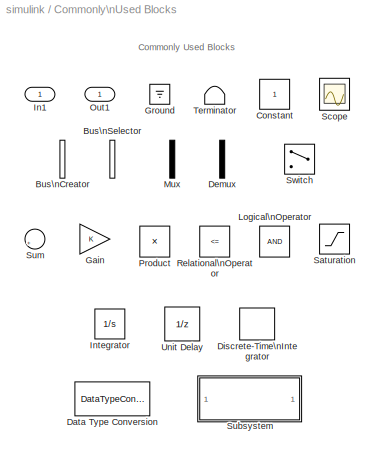
BLOCK [SubSystem] Commonly\nUsed Blocks
  MaskDisplay = image(imread('commonly_used.bmp','bmp'))
  MaskIconFrame = on
  MaskIconOpaque = on
  MaskIconRotate = none
  MaskIconUnits = autoscale
  MinAlgLoopOccurrences = off
  Ports = [1, 1]
  RTWSystemCode = Auto
  TreatAsAtomicUnit = off
BLOCK [BusCreator] Commonly\nUsed Blocks/Bus\nCreator
  CopyFcn = set_param(gcbh,'ShowName','off','CopyFcn','')
  DialogController = Simulink.DDGSource_Bus
  DisplayOption = bar
  Inputs = 2
  Ports = [2, 1]
BLOCK [BusSelector] Commonly\nUsed Blocks/Bus\nSelector
  CopyFcn = set_param(gcbh,'ShowName','off','CopyFcn','')
  DialogController = Simulink.DDGSource_Bus
  OutputSignals = signal1,signal2
  Ports = [1, 2]
BLOCK [Constant] Commonly\nUsed Blocks/Constant
BLOCK [DataTypeConversion] Commonly\nUsed Blocks/Data Type Conversion
  RndMeth = Floor
  SaturateOnIntegerOverflow = off
BLOCK [Demux] Commonly\nUsed Blocks/Demux
  CopyFcn = set_param(gcbh,'ShowName','off','CopyFcn','')
  DisplayOption = bar
  Outputs = 2
  Ports = [1, 2]
BLOCK [DiscreteIntegrator] Commonly\nUsed Blocks/Discrete-Time\nIntegrator
  ExternalReset = none
  ICPrevOutput = DiscIntNeverNeededParam
  ICPrevScaledInput = DiscIntNeverNeededParam
  InitialConditionSource = internal
  IntegratorMethod = Integration: Forward Euler
  Ports = [1, 1]
BLOCK [Gain] Commonly\nUsed Blocks/Gain
  OutDataTypeMode = Inherit via internal rule
  ParameterDataTypeMode = Inherit via internal rule
  SaturateOnIntegerOverflow = off
BLOCK [Ground] Commonly\nUsed Blocks/Ground
BLOCK [Inport] Commonly\nUsed Blocks/In1
  IconDisplay = Port number
  LatchInput = off
BLOCK [Integrator] Commonly\nUsed Blocks/Integrator
  Ports = [1, 1]
BLOCK [Logic] Commonly\nUsed Blocks/Logical\nOperator
  AllPortsSameDT = off
  OutDataTypeMode = Boolean
  Ports = [2, 1]
BLOCK [Mux] Commonly\nUsed Blocks/Mux
  CopyFcn = set_param(gcbh,'ShowName','off','CopyFcn','')
  DisplayOption = bar
  Inputs = 2
  Ports = [2, 1]
BLOCK [Outport] Commonly\nUsed Blocks/Out1
  BusOutputAsStruct = off
  IconDisplay = Port number
BLOCK [Product] Commonly\nUsed Blocks/Product
  InputSameDT = off
  OutDataTypeMode = Inherit via internal rule
  Ports = [2, 1]
  SaturateOnIntegerOverflow = off
BLOCK [RelationalOperator] Commonly\nUsed Blocks/Relational\nOperator
  InputSameDT = off
  LogicOutDataTypeMode = Boolean
  Operator = <=
BLOCK [Saturate] Commonly\nUsed Blocks/Saturation
BLOCK [Scope] Commonly\nUsed Blocks/Scope
  DataFormat = StructureWithTime
  NumInputPorts = 1
  Ports = [1]
  SaveName = ScopeData2
BLOCK [SubSystem] Commonly\nUsed Blocks/Subsystem
  CopyFcn = set_param(gcbh,'LinkStatus','none'); set_param(gcbh,'Mask','off'); set_param(gcbh,'MaskType',''); set_param(gcbh,'MaskDescription',''); set_param(gcbh,'OpenFcn',''); set_param(gcbh,'CopyFcn','')  <repeated x12 — deduplicated; at blocks: Subsystem, Atomic Subsystem, CodeReuseSubsystem, Enabled and\nTriggered Subsystem, Enabled\nSubsystem, For Iterator\nSubsystem, Function-Call\nSubsystem, If Action\nSubsystem, Switch Case Action\nSubsystem, Triggered\nSubsystem, While Iterator\nSubsystem>
  MaskDescription = A subsystem block template containing an inport and outport block.
  MaskIconFrame = on
  MaskIconOpaque = on
  MaskIconRotate = none
  MaskIconUnits = autoscale
  MaskType = Virtual Subsystem
  MinAlgLoopOccurrences = off
  OpenFcn = open_system(gcbh,'force')
  Ports = [1, 1]
  RTWSystemCode = Auto
  TreatAsAtomicUnit = off
BLOCK [Inport] Commonly\nUsed Blocks/Subsystem/In1
  IconDisplay = Port number
  LatchInput = off
BLOCK [Outport] Commonly\nUsed Blocks/Subsystem/Out1
  BusOutputAsStruct = off
  IconDisplay = Port number
BLOCK [Sum] Commonly\nUsed Blocks/Sum
  CopyFcn = set_param(gcbh,'ShowName','off','CopyFcn','')
  IconShape = round
  InputSameDT = off
  Inputs = |++
  OutDataTypeMode = Inherit via internal rule
  Ports = [2, 1]
  SaturateOnIntegerOverflow = off
BLOCK [Switch] Commonly\nUsed Blocks/Switch
  InputSameDT = off
  SaturateOnIntegerOverflow = off
BLOCK [Terminator] Commonly\nUsed Blocks/Terminator
BLOCK [UnitDelay] Commonly\nUsed Blocks/Unit Delay
BLOCK [SubSystem] Continuous
  MaskDisplay = image(imread('continuous.bmp','bmp'))
  MaskIconFrame = on
  MaskIconOpaque = on
  MaskIconRotate = none
  MaskIconUnits = autoscale
  MinAlgLoopOccurrences = off
  Ports = []
  RTWSystemCode = Auto
  TreatAsAtomicUnit = off
BLOCK [Derivative] Continuous/Derivative
BLOCK [Integrator] Continuous/Integrator
  Ports = [1, 1]
BLOCK [StateSpace] Continuous/State-Space
BLOCK [TransferFcn] Continuous/Transfer Fcn
  Denominator = [1 1]
BLOCK [TransportDelay] Continuous/Transport\nDelay
BLOCK [VariableTransportDelay] Continuous/Variable\nTransport Delay
  MaximumDelay = 10
BLOCK [ZeroPole] Continuous/Zero-Pole
  Poles = [0 -1]
BLOCK [SubSystem] Demos
  MaskDisplay = image(imread('demos.bmp','bmp'))
  MaskIconFrame = on
  MaskIconOpaque = on
  MaskIconRotate = none
  MaskIconUnits = autoscale
  MinAlgLoopOccurrences = off
  OpenFcn = demo simulink
  Ports = []
  RTWSystemCode = Auto
  TreatAsAtomicUnit = off
BLOCK [SubSystem] Discontinuities
  MaskDisplay = image(imread('nonlinear.bmp','bmp'))
  MaskIconFrame = on
  MaskIconOpaque = on
  MaskIconRotate = none
  MaskIconUnits = autoscale
  MaskSelfModifiable = on
  MinAlgLoopOccurrences = off
  Ports = []
  RTWSystemCode = Auto
  TreatAsAtomicUnit = off
BLOCK [Backlash] Discontinuities/Backlash
BLOCK [SubSystem] Discontinuities/Coulomb &\nViscous Friction
  MaskCallbackString = |
  MaskDescription = A discontinuity offset at zero models coulomb friction.  Linear gain models viscous friction.\ny = sign(x) * (Gain * abs(x) + Offset)
  MaskDisplay = plot([-1 0 0 1],[-gain(1)-offset(1), -offset(1), offset(1), gain(1)+offset(1)],[-1 1],[0 0],[0 0],[-x,x])
  MaskEnableString = on,on
  MaskHelp = This block has a discontinuity\nat zero and a linear gain afterward.\ny= sign(x)*(Gain*abs(x)+Offset)
  MaskIconFrame = on
  MaskIconOpaque = on
  MaskIconRotate = none
  MaskIconUnits = autoscale
  MaskInitialization = x=max(offset(1),gain(1)+offset(1));
  MaskPromptString = Coulomb friction value (Offset):|Coefficient of viscous friction (Gain):
  MaskStyleString = edit,edit
  MaskTabNameString = ,
  MaskToolTipString = on,on
  MaskTunableValueString = on,on
  MaskType = Coulombic and Viscous Friction
  MaskValueString = [1 3 2 0]|1
  MaskVarAliasString = ,
  MaskVariables = offset=@1;gain=@2;
  MaskVisibilityString = on,on
  MinAlgLoopOccurrences = off
  Ports = [1, 1]
  RTWSystemCode = Auto
  TreatAsAtomicUnit = off
BLOCK [Gain] Discontinuities/Coulomb &\nViscous Friction/Gain
  Gain = gain
  ParameterDataTypeMode = Inherit via internal rule
BLOCK [Gain] Discontinuities/Coulomb &\nViscous Friction/Gain1
  Gain = offset
  OutDataTypeMode = Inherit via back propagation
  ParameterDataTypeMode = Inherit via internal rule
BLOCK [Inport] Discontinuities/Coulomb &\nViscous Friction/In1
  IconDisplay = Port number
  LatchInput = off
BLOCK [Outport] Discontinuities/Coulomb &\nViscous Friction/Out1
  BusOutputAsStruct = off
  IconDisplay = Port number
BLOCK [Signum] Discontinuities/Coulomb &\nViscous Friction/Sign
BLOCK [Sum] Discontinuities/Coulomb &\nViscous Friction/Sum
  IconShape = round
  Inputs = |++
  Ports = [2, 1]
BLOCK [DeadZone] Discontinuities/Dead Zone
BLOCK [SubSystem] Discontinuities/Dead Zone\nDynamic
  MaskDescription = Output zero for inputs within deadzone.  Offset input signals by either the Start or End value when outside of the deadzone.
  MaskDisplay = plot([0.15 0.85],[.5 .5],[.5 .5],[0.05 0.95],0.15+0.7*[0 .3 .7 1],0.05+0.9*[0.1 0.5 0.5 0.9]);
  MaskIconFrame = on
  MaskIconOpaque = off
  MaskIconRotate = none
  MaskIconUnits = normalized
  MaskSelfModifiable = on
  MaskType = Dead Zone Dynamic
  MinAlgLoopOccurrences = off
  Ports = [3, 1]
  RTWSystemCode = Auto
  TreatAsAtomicUnit = off
BLOCK [Sum] Discontinuities/Dead Zone\nDynamic/Diff
  Inputs = +-
  OutScaling = 2^-10
  Ports = [2, 1]
  SaturateOnIntegerOverflow = off
BLOCK [Switch] Discontinuities/Dead Zone\nDynamic/Switch
  Criteria = u2 ~= 0
  SaturateOnIntegerOverflow = off
  ZeroCross = off
BLOCK [Switch] Discontinuities/Dead Zone\nDynamic/Switch1
  Criteria = u2 ~= 0
  SaturateOnIntegerOverflow = off
  ZeroCross = off
BLOCK [Inport] Discontinuities/Dead Zone\nDynamic/lo
  IconDisplay = Port number
  LatchInput = off
  Port = 3
BLOCK [Inport] Discontinuities/Dead Zone\nDynamic/u
  IconDisplay = Port number
  LatchInput = off
  Port = 2
BLOCK [RelationalOperator] Discontinuities/Dead Zone\nDynamic/u_GTE_up
  InputSameDT = off
  LogicOutDataTypeMode = Boolean
  ZeroCross = off
BLOCK [RelationalOperator] Discontinuities/Dead Zone\nDynamic/u_GT_lo
  InputSameDT = off
  LogicOutDataTypeMode = Boolean
  Operator = >
  ZeroCross = off
BLOCK [Inport] Discontinuities/Dead Zone\nDynamic/up
  IconDisplay = Port number
  LatchInput = off
BLOCK [Outport] Discontinuities/Dead Zone\nDynamic/y
  BusOutputAsStruct = off
  IconDisplay = Port number
BLOCK [HitCross] Discontinuities/Hit \nCrossing
  HitCrossingDirection = either
  Ports = [1, 1]
BLOCK [Quantizer] Discontinuities/Quantizer
BLOCK [RateLimiter] Discontinuities/Rate Limiter
  SampleTimeMode = inherited
BLOCK [SubSystem] Discontinuities/Rate Limiter\nDynamic
  MaskDescription = Limit rising and falling rates of the signals at the second input by using the first input (upper limit) and the third input (lower limit).
  MaskDisplay = plot([0.15 0.95],[.5 .5],[.5 .5],[0.05 0.95],0.05+0.9*[.2 .8],0.05+0.9*[0 1]);
  MaskIconFrame = on
  MaskIconOpaque = off
  MaskIconRotate = none
  MaskIconUnits = normalized
  MaskSelfModifiable = on
  MaskType = Rate Limiter Dynamic
  MinAlgLoopOccurrences = off
  Ports = [3, 1]
  RTWSystemCode = Auto
  TreatAsAtomicUnit = off
BLOCK [UnitDelay] Discontinuities/Rate Limiter\nDynamic/Delay Input2
  Description = \nStore in Global RAM
  SampleTime = -1
BLOCK [Sum] Discontinuities/Rate Limiter\nDynamic/Difference Inputs1
  Description = \nAdd in CPU
  InputSameDT = off
  Inputs = +-
  OutDataType = uint(8)
  OutDataTypeMode = Inherit via back propagation
  OutScaling = 1
  Ports = [2, 1]
  SaturateOnIntegerOverflow = off
BLOCK [Sum] Discontinuities/Rate Limiter\nDynamic/Difference Inputs2
  Description = \nAdd in CPU
  InputSameDT = off
  OutDataType = uint(8)
  OutDataTypeMode = Inherit via back propagation
  OutScaling = 1
  Ports = [2, 1]
  SaturateOnIntegerOverflow = off
BLOCK [Reference] Discontinuities/Rate Limiter\nDynamic/FixPt\nData Type\nDuplicate  REF=simulink/Signal\nAttributes/Data Type\nDuplicate
  NumInputPorts = 7
  Ports = [7]
  SourceBlock = simulink/Signal\nAttributes/Data Type\nDuplicate
  SourceType = Data Type Duplicate
BLOCK [Reference] Discontinuities/Rate Limiter\nDynamic/Saturation\nDynamic  REF=simulink/Discontinuities/Saturation\nDynamic
  Ports = [3, 1]
  ShowPortLabels = on
  SourceBlock = simulink/Discontinuities/Saturation\nDynamic
  SourceType = Saturation Dynamic
BLOCK [Outport] Discontinuities/Rate Limiter\nDynamic/Y
  BusOutputAsStruct = off
  IconDisplay = Port number
  InitialOutput = 0
BLOCK [Product] Discontinuities/Rate Limiter\nDynamic/delta fall limit
  InputSameDT = off
  Inputs = **
  OutDataType = uint(16)
  OutDataTypeMode = Inherit via back propagation
  OutScaling = 2^-10
  Ports = [2, 1]
  RndMeth = Floor
BLOCK [Product] Discontinuities/Rate Limiter\nDynamic/delta rise limit
  InputSameDT = off
  Inputs = **
  OutDataType = uint(16)
  OutDataTypeMode = Inherit via back propagation
  OutScaling = 2^-10
  Ports = [2, 1]
  RndMeth = Floor
BLOCK [Inport] Discontinuities/Rate Limiter\nDynamic/lo
  IconDisplay = Port number
  LatchInput = off
  Port = 3
BLOCK [Reference] Discontinuities/Rate Limiter\nDynamic/sample time  REF=simulink/Signal\nAttributes/Weighted\nSample Time
  DoSatur = off
  OutputDataTypeScalingMode = Inherit via internal rule
  Ports = [1, 1]
  RndMeth = Floor
  SourceBlock = simulink/Signal\nAttributes/Weighted\nSample Time
  SourceType = Sample Time Math
  TsampMathImp = Online Calculations
  TsampMathOp = Ts Only
  weightValue = 1
BLOCK [Inport] Discontinuities/Rate Limiter\nDynamic/u
  IconDisplay = Port number
  LatchInput = off
  Port = 2
BLOCK [Inport] Discontinuities/Rate Limiter\nDynamic/up
  IconDisplay = Port number
  LatchInput = off
BLOCK [Relay] Discontinuities/Relay
BLOCK [Saturate] Discontinuities/Saturation
BLOCK [SubSystem] Discontinuities/Saturation\nDynamic
  MaskDescription = Bound the range of the second input by using the first input (upper limit) and the third input (lower limit).
  MaskDisplay = plot([0.15 0.85],[.5 .5],[.5 .5],[0.05 0.95],0.15+0.7*[0 .25 .75 1],0.05+0.9*[.25 .25 .75 .75]);
  MaskIconFrame = on
  MaskIconOpaque = off
  MaskIconRotate = none
  MaskIconUnits = normalized
  MaskSelfModifiable = on
  MaskType = Saturation Dynamic
  MinAlgLoopOccurrences = off
  Ports = [3, 1]
  RTWSystemCode = Auto
  TreatAsAtomicUnit = off
BLOCK [MinMax] Discontinuities/Saturation\nDynamic/Enforce lower limit
  Function = max
  InputSameDT = off
  Inputs = 2
  OutDataTypeMode = Inherit via back propagation
  OutScaling = 2^-10
  Ports = [2, 1]
  SaturateOnIntegerOverflow = off
  ZeroCross = off
BLOCK [MinMax] Discontinuities/Saturation\nDynamic/Enforce upper limit
  Function = min
  InputSameDT = off
  Inputs = 2
  OutDataTypeMode = Inherit via back propagation
  OutScaling = 2^-10
  Ports = [2, 1]
  SaturateOnIntegerOverflow = off
  ZeroCross = off
BLOCK [Reference] Discontinuities/Saturation\nDynamic/FixPt\nData Type\nDuplicate  REF=simulink/Signal\nAttributes/Data Type\nDuplicate
  NumInputPorts = 3
  Ports = [3]
  SourceBlock = simulink/Signal\nAttributes/Data Type\nDuplicate
  SourceType = Data Type Duplicate
BLOCK [Inport] Discontinuities/Saturation\nDynamic/lo
  IconDisplay = Port number
  LatchInput = off
  Port = 3
BLOCK [Inport] Discontinuities/Saturation\nDynamic/u
  IconDisplay = Port number
  LatchInput = off
  Port = 2
BLOCK [Inport] Discontinuities/Saturation\nDynamic/up
  IconDisplay = Port number
  LatchInput = off
BLOCK [Outport] Discontinuities/Saturation\nDynamic/y
  BusOutputAsStruct = off
  IconDisplay = Port number
BLOCK [SubSystem] Discontinuities/Wrap To Zero
  MaskDescription = If the input is above the threshold, the output is zero, otherwise the output equals the input.
  MaskDisplay = plot([0.1 0.9],[.3 .3],[.2 .2],[0.2 0.9],[0.1 .7 .7 .9],[0.2 0.8 .325 .325],0.05+[0.1 0.2 NaN 0.3 0.4 NaN 0.5 0.6 NaN 0.7 0.8],0.8*ones(1,11));
  MaskEnableString = on
  MaskIconFrame = on
  MaskIconOpaque = on
  MaskIconRotate = none
  MaskIconUnits = normalized
  MaskPromptString = Threshold:
  MaskSelfModifiable = on
  MaskStyleString = edit
  MaskToolTipString = on
  MaskTunableValueString = on
  MaskType = Wrap To Zero
  MaskValueString = 255
  MaskVariables = Threshold=@1;
  MaskVisibilityString = on
  MinAlgLoopOccurrences = off
  Ports = [1, 1]
  RTWSystemCode = Auto
  TreatAsAtomicUnit = off
BLOCK [Reference] Discontinuities/Wrap To Zero/FixPt\nData Type\nDuplicate1  REF=simulink/Signal\nAttributes/Data Type\nDuplicate
  NumInputPorts = 3
  Ports = [3]
  SourceBlock = simulink/Signal\nAttributes/Data Type\nDuplicate
  SourceType = Data Type Duplicate
BLOCK [Switch] Discontinuities/Wrap To Zero/FixPt\nSwitch
  Criteria = u2 > Threshold
  InputSameDT = off
  OutDataTypeMode = Inherit via back propagation
  SaturateOnIntegerOverflow = off
  Threshold = Threshold
  ZeroCross = off
BLOCK [Ground] Discontinuities/Wrap To Zero/Ground
BLOCK [Inport] Discontinuities/Wrap To Zero/U
  IconDisplay = Port number
  LatchInput = off
BLOCK [Outport] Discontinuities/Wrap To Zero/Y
  BusOutputAsStruct = off
  IconDisplay = Port number
  InitialOutput = 0
BLOCK [SubSystem] Discrete
  MaskDisplay = image(imread('discrete.bmp','bmp'))
  MaskIconFrame = on
  MaskIconOpaque = on
  MaskIconRotate = none
  MaskIconUnits = autoscale
  MinAlgLoopOccurrences = off
  Ports = []
  RTWSystemCode = Auto
  TreatAsAtomicUnit = off
BLOCK [SubSystem] Discrete/Difference
  MaskCallbackString = |fixptdialog(gcbh)|fixptdialog(gcbh)||||
  MaskDescription = Output the current input value minus the previous input value.
  MaskDisplay = dpoly([1 -1],[1 0],'z')
  MaskEnableString = on,on,on,on,on,on,on
  MaskIconFrame = on
  MaskIconOpaque = on
  MaskIconRotate = none
  MaskIconUnits = normalized
  MaskInitialization = \nblkH = gcbh;\nblkName = getfullname(blkH);\n\nswitch OutputDataTypeScalingMode\n  case 1\n    diffMode   = 'Specify via dialog';\n  case 2\n    diffMode   = 'Inherit via internal rule';\n  otherwise\n    diffMode   = 'Inherit via back propagation';\nend\nvRndMeth = get_param(blkH,'RndMeth');\nvDoSatur = get_param(blkH,'DoSatur');\nset_param([blkName,'/Diff'],'OutputDataTypeScalingMode',  diffMod...<+59ch>
  MaskPromptString = Initial condition for previous input:|Output data type and scaling:|Output data type:     ex.  sfix(16),  uint(8),  float('single')|Output scaling:    Slope or [Slope Bias]    ex.  2^-9|Lock output scaling so autoscaling tool can't change it|Round toward:|Saturate to max or min when overflows occur
  MaskSelfModifiable = on
  MaskStyleString = edit,popup(Specify via dialog|Inherit via internal rule|Inherit via back propagation),edit,edit,checkbox,popup(Zero|Nearest|Ceiling|Floor),checkbox
  MaskTabNameString = Main,Signal data types,Signal data types,Signal data types,Signal data types,Signal data types,Signal data types
  MaskToolTipString = on,on,on,on,on,on,on
  MaskTunableValueString = on,on,on,on,on,on,on
  MaskType = Difference
  MaskValueString = 0.0|Inherit via internal rule|sfix(16)|2^-10|off|Floor|off
  MaskVarAliasString = ,,,,,,
  MaskVariables = ICPrevInput=@1;OutputDataTypeScalingMode=@2;OutDataType=@3;OutScaling=@4;LockScale=@5;RndMeth=@6;DoSatur=@7;
  MaskVisibilityString = on,on,off,off,off,on,on
  MinAlgLoopOccurrences = off
  Ports = [1, 1]
  RTWSystemCode = Auto
  TreatAsAtomicUnit = off
BLOCK [Sum] Discrete/Difference/Diff
  Description = \nAdd in CPU
  InputSameDT = off
  Inputs = +-
  OutDataType = OutDataType
  OutDataTypeMode = Inherit via internal rule
  OutScaling = OutScaling
  Ports = [2, 1]
  SaturateOnIntegerOverflow = off
BLOCK [Inport] Discrete/Difference/U
  IconDisplay = Port number
  LatchInput = off
BLOCK [UnitDelay] Discrete/Difference/UD
  Description = \nStore in Global RAM
  DisableCoverage = on
  SampleTime = -1
  X0 = ICPrevInput
BLOCK [Outport] Discrete/Difference/Y
  BusOutputAsStruct = off
  IconDisplay = Port number
  InitialOutput = 0
BLOCK [SubSystem] Discrete/Discrete Derivative
  MaskCallbackString = ||fixptdialog(gcbh)|fixptdialog(gcbh)||||
  MaskDescription = Discrete-time derivative of the input.\n\nThis block only works with fixed sample rates, so it will not work inside a triggered subsystem.
  MaskDisplay = text(0.5, 0.5, 'K (z-1)', 'horizontalAlignment', 'center', 'verticalAlignment', 'bottom');text(0.5, 0.5, 'Ts z', 'horizontalAlignment', 'center', 'verticalAlignment', 'top');plot([0.3 0.7],[0.5 0.5]);
  MaskEnableString = on,on,on,on,on,on,on,on
  MaskIconFrame = on
  MaskIconOpaque = on
  MaskIconRotate = none
  MaskIconUnits = normalized
  MaskInitialization = \nblkH = gcbh;\nblkName = getfullname(blkH);\n\nswitch OutputDataTypeScalingMode\n  case 1\n    diffMode   = 'Specify via dialog';\n    tsampMode  = 'Inherit via back propagation';\n    tsampImp  = 'Online Calculations';\n  case 2\n    diffMode   = 'Inherit via back propagation';\n    tsampMode  = 'Inherit via internal rule';\n    tsampImp  = 'Offline Scaling Adjustment';\n  otherwise\n    diffMod...<+480ch>
  MaskPromptString = Gain value:|Initial condition for previous weighted input K*u/Ts:|Output data type and scaling:|Output data type:     ex.  sfix(16),  uint(8),  float('single')|Output scaling:    Slope or [Slope Bias]    ex.  2^-9|Lock output scaling so autoscaling tool can't change it|Round toward:|Saturate to max or min when overflows occur
  MaskSelfModifiable = on
  MaskStyleString = edit,edit,popup(Specify via dialog|Inherit via internal rule|Inherit via back propagation),edit,edit,checkbox,popup(Zero|Nearest|Ceiling|Floor),checkbox
  MaskTabNameString = Main,Main,Signal data types,Signal data types,Signal data types,Signal data types,Signal data types,Signal data types
  MaskToolTipString = on,on,on,on,on,on,on,on
  MaskTunableValueString = on,on,on,on,on,on,on,on
  MaskType = Discrete Derivative
  MaskValueString = 1.0|0.0|Inherit via internal rule|sfix(16)|2^-10|off|Floor|off
  MaskVarAliasString = ,,,,,,,
  MaskVariables = gainval=@1;ICPrevScaledInput=@2;OutputDataTypeScalingMode=@3;OutDataType=@4;OutScaling=@5;LockScale=@6;RndMeth=@7;DoSatur=@8;
  MaskVisibilityString = on,on,on,off,off,off,on,on
  MinAlgLoopOccurrences = off
  Ports = [1, 1]
  RTWSystemCode = Auto
  TreatAsAtomicUnit = off
BLOCK [Reference] Discrete/Discrete Derivative/Data Type\nDuplicate  REF=simulink/Signal\nAttributes/Data Type\nDuplicate
  NumInputPorts = 3
  Ports = [3]
  SourceBlock = simulink/Signal\nAttributes/Data Type\nDuplicate
  SourceType = Data Type Duplicate
BLOCK [Sum] Discrete/Discrete Derivative/Diff
  Description = \nAdd in CPU
  InputSameDT = off
  Inputs = +-
  OutDataType = OutDataType
  OutDataTypeMode = Inherit via back propagation
  OutScaling = OutScaling
  Ports = [2, 1]
  SaturateOnIntegerOverflow = off
BLOCK [Reference] Discrete/Discrete Derivative/TSamp  REF=simulink/Signal\nAttributes/Weighted\nSample Time
  DoSatur = off
  OutputDataTypeScalingMode = Inherit via internal rule
  Ports = [1, 1]
  RndMeth = Floor
  SourceBlock = simulink/Signal\nAttributes/Weighted\nSample Time
  SourceType = Sample Time Math
  TsampMathImp = Offline Scaling Adjustment
  TsampMathOp = /
  weightValue = 1/gainval
BLOCK [Inport] Discrete/Discrete Derivative/U
  IconDisplay = Port number
  LatchInput = off
BLOCK [UnitDelay] Discrete/Discrete Derivative/UD
  Description = \nStore in Global RAM
  SampleTime = -1
  X0 = ICPrevScaledInput
BLOCK [Outport] Discrete/Discrete Derivative/Y
  BusOutputAsStruct = off
  IconDisplay = Port number
  InitialOutput = 0
BLOCK [DiscreteFilter] Discrete/Discrete Filter
  Denominator = [1 0.5]
BLOCK [DiscreteStateSpace] Discrete/Discrete State-Space
BLOCK [DiscreteIntegrator] Discrete/Discrete-Time\nIntegrator
  ExternalReset = none
  ICPrevOutput = DiscIntNeverNeededParam
  ICPrevScaledInput = DiscIntNeverNeededParam
  InitialConditionSource = internal
  IntegratorMethod = Integration: Forward Euler
  Ports = [1, 1]
BLOCK [DiscreteTransferFcn] Discrete/Discrete\nTransfer Fcn
BLOCK [DiscreteZeroPole] Discrete/Discrete\nZero-Pole
  Gain = 1
  Poles = [0 0.5]
BLOCK [SubSystem] Discrete/First-Order\nHold
  DisableCoverage = on
  MaskDescription = First-order hold.
  MaskDisplay = plot(0,0,100,100,[90,70,50,30,10],[60,40,80,30,20])
  MaskEnableString = on
  MaskHelp = This block implements a first-order hold by extrapolating between sample points using a first-order polynomial.
  MaskIconFrame = on
  MaskIconOpaque = on
  MaskIconRotate = none
  MaskIconUnits = autoscale
  MaskInitialization = \n
  MaskPromptString = Sample time:
  MaskStyleString = edit
  MaskToolTipString = on
  MaskTunableValueString = on
  MaskType = First-Order Hold
  MaskValueString = 1
  MaskVariables = Ts=@1;
  MaskVisibilityString = on
  MinAlgLoopOccurrences = off
  Ports = [1, 1]
  RTWSystemCode = Auto
  TreatAsAtomicUnit = off
BLOCK [Clock] Discrete/First-Order\nHold/Clock
  Decimation = 10
  DisableCoverage = on
BLOCK [DigitalClock] Discrete/First-Order\nHold/Digital Clock
  DisableCoverage = on
  SampleTime = Ts
BLOCK [Gain] Discrete/First-Order\nHold/Gain
  DisableCoverage = on
  Gain = 1/Ts
BLOCK [HitCross] Discrete/First-Order\nHold/Hit \nCrossing
  DisableCoverage = on
  HitCrossingDirection = rising
  HitCrossingOffset = 1
  Ports = [1]
  ShowOutputPort = off
BLOCK [Inport] Discrete/First-Order\nHold/In1
  IconDisplay = Port number
  LatchInput = off
BLOCK [Outport] Discrete/First-Order\nHold/Out1
  BusOutputAsStruct = off
  IconDisplay = Port number
BLOCK [Sum] Discrete/First-Order\nHold/Output
  IconShape = round
  Inputs = ++|
  Ports = [2, 1]
BLOCK [Product] Discrete/First-Order\nHold/Product
  DisableCoverage = on
  Ports = [2, 1]
  RndMeth = Floor
BLOCK [Sum] Discrete/First-Order\nHold/Sum
  DisableCoverage = on
  IconShape = round
  Inputs = |+-
  Ports = [2, 1]
BLOCK [Sum] Discrete/First-Order\nHold/Sum2
  DisableCoverage = on
  IconShape = round
  Inputs = |+-
  Ports = [2, 1]
BLOCK [UnitDelay] Discrete/First-Order\nHold/Unit Delay
  DisableCoverage = on
  SampleTime = Ts
BLOCK [ZeroOrderHold] Discrete/First-Order\nHold/Zero-Order\nHold
  DisableCoverage = on
  SampleTime = Ts
BLOCK [S-Function] Discrete/Integer Delay
  FunctionName = sfix_udelay
  MaskCallbackString = ||
  MaskDescription = Delay a signal N sample periods.
  MaskDisplay = fprintf(' %d\\nZ   ',-1*(NumDelays))
  MaskEnableString = on,on,on
  MaskIconFrame = on
  MaskIconOpaque = on
  MaskIconRotate = none
  MaskIconUnits = normalized
  MaskInitialization = if isempty(NumDelays)\n   NumDelays = 1;\nend
  MaskPromptString = Initial condition:|Sample time:|Number of delays:
  MaskSelfModifiable = on
  MaskStyleString = edit,edit,edit
  MaskTabNameString = ,,
  MaskToolTipString = on,on,on
  MaskTunableValueString = on,on,on
  MaskType = Integer Delay
  MaskValueString = 0.0|-1|4
  MaskVarAliasString = ,,
  MaskVariables = vinit=@1;samptime=@2;NumDelays=@3;
  MaskVisibilityString = on,on,on
  Parameters = samptime,vinit,NumDelays,1,1,0
  Ports = [1, 1]
BLOCK [Memory] Discrete/Memory
BLOCK [S-Function] Discrete/Tapped Delay
  FunctionName = sfix_udelay
  MaskCallbackString = ||||
  MaskDescription = Delay a signal N sample periods and output all the delay versions.
  MaskDisplay = fprintf(' %d\\nDelays\\n',(NumDelays))
  MaskEnableString = on,on,on,on,on
  MaskIconFrame = on
  MaskIconOpaque = on
  MaskIconRotate = none
  MaskIconUnits = normalized
  MaskInitialization = if isempty(NumDelays)\n   NumDelays = 1;\nend
  MaskPromptString = Initial condition:|Sample time:|Number of delays:|Order output vector starting with:|Include current input in output vector
  MaskSelfModifiable = on
  MaskStyleString = edit,edit,edit,popup(Oldest|Newest),checkbox
  MaskTabNameString = ,,,,
  MaskToolTipString = on,on,on,on,on
  MaskTunableValueString = on,on,on,on,on
  MaskType = Tapped Delay Line
  MaskValueString = 0.0|-1|4|Oldest|off
  MaskVarAliasString = ,,,,
  MaskVariables = vinit=@1;samptime=@2;NumDelays=@3;DelayOrder=@4;includeCurrent=@5;
  MaskVisibilityString = on,on,on,on,on
  Parameters = samptime,vinit,NumDelays,NumDelays,DelayOrder,includeCurrent
  Ports = [1, 1]
BLOCK [SubSystem] Discrete/Transfer Fcn\nFirst Order
  MaskCallbackString = |||
  MaskDescription = Discrete-time first order transfer function.  The transfer function has a unity DC gain.
  MaskDisplay = dpoly([1-PoleZ 0],[1 -PoleZ],'z')
  MaskEnableString = on,on,on,on
  MaskIconFrame = on
  MaskIconOpaque = on
  MaskIconRotate = none
  MaskIconUnits = normalized
  MaskInitialization = blkH = gcbh;\nblkName = getfullname(blkH);\n\nvRndMeth = get_param(blkH,'RndMeth');\nvDoSatur = get_param(blkH,'DoSatur');\n\nset_param([blkName,'/Gain'],'RndMeth',vRndMeth, ...\n	'DoSatur',vDoSatur);\nset_param([blkName,'/Diff'],'RndMeth',vRndMeth, ...\n	'DoSatur',vDoSatur);\nset_param([blkName,'/Sum'],'RndMeth',vRndMeth, ...\n	'DoSatur',vDoSatur);\n
  MaskPromptString = Pole (in Z plane):|Initial condition for previous output:|Round toward:|Saturate to max or min when overflows occur
  MaskSelfModifiable = on
  MaskStyleString = edit,edit,popup(Zero|Nearest|Ceiling|Floor),checkbox
  MaskTabNameString = ,,,
  MaskToolTipString = on,on,on,on
  MaskTunableValueString = on,on,on,on
  MaskType = First Order Transfer Fcn
  MaskValueString = 0.95|0.0|Floor|off
  MaskVarAliasString = ,,,
  MaskVariables = PoleZ=@1;ICPrevOutput=@2;RndMeth=@3;DoSatur=@4;
  MaskVisibilityString = on,on,on,on
  MinAlgLoopOccurrences = off
  Ports = [1, 1]
  RTWSystemCode = Auto
  TreatAsAtomicUnit = off
BLOCK [Reference] Discrete/Transfer Fcn\nFirst Order/Data Type\nDuplicate  REF=simulink/Signal\nAttributes/Data Type\nDuplicate
  NumInputPorts = 3
  Ports = [3]
  SourceBlock = simulink/Signal\nAttributes/Data Type\nDuplicate
  SourceType = Data Type Duplicate
BLOCK [Sum] Discrete/Transfer Fcn\nFirst Order/Diff
  Description = \nAdd in CPU
  InputSameDT = off
  Inputs = +-
  OutDataType = uint(8)
  OutDataTypeMode = Inherit via internal rule
  OutScaling = 1
  Ports = [2, 1]
  SaturateOnIntegerOverflow = off
BLOCK [Gain] Discrete/Transfer Fcn\nFirst Order/Gain
  Gain = PoleZ
  OutDataTypeMode = Inherit via back propagation
  OutScaling = 2^-10
  ParameterDataType = sfix( 16 )
  ParameterDataTypeMode = Inherit via internal rule
  ParameterScaling = 2^-14
  ParameterScalingMode = Best Precision: Column-wise
  SaturateOnIntegerOverflow = off
BLOCK [Sum] Discrete/Transfer Fcn\nFirst Order/Sum
  Description = \nAdd in CPU
  InputSameDT = off
  OutDataType = sfix(32)
  OutDataTypeMode = Inherit via back propagation
  OutScaling = 2^-24
  Ports = [2, 1]
  SaturateOnIntegerOverflow = off
BLOCK [Inport] Discrete/Transfer Fcn\nFirst Order/U
  IconDisplay = Port number
  LatchInput = off
BLOCK [UnitDelay] Discrete/Transfer Fcn\nFirst Order/UD
  Description = \nStore in Global RAM
  SampleTime = -1
  X0 = ICPrevOutput
BLOCK [Outport] Discrete/Transfer Fcn\nFirst Order/Y
  BusOutputAsStruct = off
  IconDisplay = Port number
  InitialOutput = 0
BLOCK [SubSystem] Discrete/Transfer Fcn\nLead or Lag
  MaskCallbackString = |||||
  MaskDescription = Discrete-time lead or lag compensator.  The compensator has a unity instantaneous gain, the DC gain equals (1-Zero)/(1-Pole).\n\nLead compensation is obtained when 0 < Pole < Zero < 1.\nLag compensation is obtained when 0 < Zero < Pole < 1.
  MaskDisplay = dpoly([1 -ZeroZ],[1 -PoleZ],'z')
  MaskEnableString = on,on,on,on,on,on
  MaskIconFrame = on
  MaskIconOpaque = on
  MaskIconRotate = none
  MaskIconUnits = normalized
  MaskInitialization = \nblkH = gcbh;\nblkName = getfullname(blkH);\n\nvRndMeth = get_param(blkH,'RndMeth');\nvDoSatur = get_param(blkH,'DoSatur');\nDCGain = (1-ZeroZ)./(1-PoleZ);\nmaxGain = max( 1, max(max(abs(DCGain))) );\nOutputSlopeMult = 2^ceil(log2(maxGain));\nset_param([blkName,'/GainZero'],'RndMeth',vRndMeth, ...\n	'DoSatur',vDoSatur);\nset_param([blkName,'/GainPole'],'RndMeth',vRndMeth, ...\n	'DoSatur',vDoSatur...<+159ch>
  MaskPromptString = Pole of compensator (in Z plane):|Zero of compensator (in Z plane):|Initial condition for previous output:|Initial condition for previous input:|Round toward:|Saturate to max or min when overflows occur
  MaskSelfModifiable = on
  MaskStyleString = edit,edit,edit,edit,popup(Zero|Nearest|Ceiling|Floor),checkbox
  MaskTabNameString = ,,,,,
  MaskToolTipString = on,on,on,on,on,on
  MaskTunableValueString = on,on,on,on,on,on
  MaskType = Lead or Lag Compensator
  MaskValueString = 0.95|0.75|0.0|0.0|Floor|off
  MaskVarAliasString = ,,,,,
  MaskVariables = PoleZ=@1;ZeroZ=@2;ICPrevOutput=@3;ICPrevInput=@4;RndMeth=@5;DoSatur=@6;
  MaskVisibilityString = on,on,on,on,on,on
  MinAlgLoopOccurrences = off
  Ports = [1, 1]
  RTWSystemCode = Auto
  TreatAsAtomicUnit = off
BLOCK [Reference] Discrete/Transfer Fcn\nLead or Lag/DataTypeProp  REF=simulink/Signal\nAttributes/Data Type\nPropagation
  BiasAdd = 0
  BiasBase = Bias1
  BiasMult = 0
  IfRefDouble = double
  IfRefSingle = single
  IsSigned = IsSigned1 or IsSigned2
  NumBitsAdd = 0
  NumBitsAllowFinal = 1:128
  NumBitsBase = max([NumBits1 NumBits2])
  NumBitsMult = 1
  Ports = [3]
  PropDataType = sfix(16)
  PropDataTypeMode = Inherit via propagation rule
  PropScaling = 2^-10
  PropScalingMode = Inherit via propagation rule
  SlopeAdd = 0
  SlopeBase = min([Slope1 Slope2])
  SlopeMult = OutputSlopeMult
  SourceBlock = simulink/Signal\nAttributes/Data Type\nPropagation
  SourceType = Data Type Propagation
  ValuesUsedBestPrec = [5 -7]
BLOCK [UnitDelay] Discrete/Transfer Fcn\nLead or Lag/Delay Input
  AttributesFormatString = %<Description>
  Description = \nStore in Global RAM
  SampleTime = -1
  X0 = ICPrevInput
BLOCK [UnitDelay] Discrete/Transfer Fcn\nLead or Lag/Delay Output
  AttributesFormatString = %<Description>
  Description = \nStore in Global RAM
  SampleTime = -1
  X0 = ICPrevOutput
BLOCK [DataTypeConversion] Discrete/Transfer Fcn\nLead or Lag/Downcast
  AttributesFormatString = %<Description>
  Description = \nReduce from CPU Size\n to Global RAM Size
  LockScale = on
  OutDataType = float('double')
  OutScaling = 1
  RndMeth = Floor
  SaturateOnIntegerOverflow = off
BLOCK [Gain] Discrete/Transfer Fcn\nLead or Lag/GainPole
  AttributesFormatString = %<Description>
  Description = \nMultiply in CPU
  Gain = PoleZ
  LockScale = on
  OutDataType = float('double')
  OutDataTypeMode = Inherit via internal rule
  OutScaling = 1
  ParameterDataType = float('double')
  ParameterDataTypeMode = Inherit via internal rule
  ParameterScaling = 1
  ParameterScalingMode = Use specified scaling
  SaturateOnIntegerOverflow = off
BLOCK [Gain] Discrete/Transfer Fcn\nLead or Lag/GainZero
  AttributesFormatString = %<Description>
  Description = \nMultiply in CPU
  Gain = ZeroZ
  LockScale = on
  OutDataType = float('double')
  OutDataTypeMode = Inherit via internal rule
  OutScaling = 1
  ParameterDataType = float('double')
  ParameterDataTypeMode = Inherit via internal rule
  ParameterScaling = 1
  ParameterScalingMode = Use specified scaling
  SaturateOnIntegerOverflow = off
BLOCK [Inport] Discrete/Transfer Fcn\nLead or Lag/Input(s)
  IconDisplay = Port number
  LatchInput = off
BLOCK [Outport] Discrete/Transfer Fcn\nLead or Lag/Output(s)
  BusOutputAsStruct = off
  IconDisplay = Port number
  InitialOutput = 0
BLOCK [Sum] Discrete/Transfer Fcn\nLead or Lag/Sum
  AttributesFormatString = %<Description>
  Description = \nAdd in CPU
  InputSameDT = off
  Inputs = +-+
  LockScale = on
  OutDataType = float('double')
  OutDataTypeMode = Inherit via internal rule
  OutScaling = 1
  Ports = [3, 1]
  SaturateOnIntegerOverflow = off
BLOCK [SubSystem] Discrete/Transfer Fcn\nReal Zero
  MaskCallbackString = |||
  MaskDescription = Discrete-time transfer function that has a real zero and (effectively) has no pole.
  MaskDisplay = dpoly([1 -ZeroZ],[1 0],'z')
  MaskEnableString = on,on,on,on
  MaskIconFrame = on
  MaskIconOpaque = on
  MaskIconRotate = none
  MaskIconUnits = normalized
  MaskInitialization = blkH = gcbh;\nblkName = getfullname(blkH);\n\nvRndMeth = get_param(blkH,'RndMeth');\nvDoSatur = get_param(blkH,'DoSatur');\nDCGain = (1-ZeroZ);\nmaxGain = max( 1, max(max(abs(DCGain))) );\nOutputSlopeMult = 2^ceil(log2(maxGain));\nset_param([blkName,'/GainZero'],'RndMeth',vRndMeth, ...\n	'DoSatur',vDoSatur);\nset_param([blkName,'/Sum'],'RndMeth',vRndMeth, ...\n	'DoSatur',vDoSatur);\n\n\n
  MaskPromptString = Zero (in Z plane):|Initial condition for previous input:|Round toward:|Saturate to max or min when overflows occur
  MaskSelfModifiable = on
  MaskStyleString = edit,edit,popup(Zero|Nearest|Ceiling|Floor),checkbox
  MaskTabNameString = ,,,
  MaskToolTipString = on,on,on,on
  MaskTunableValueString = on,on,on,on
  MaskType = Transfer Fcn Real Zero
  MaskValueString = 0.75|0.0|Floor|off
  MaskVarAliasString = ,,,
  MaskVariables = ZeroZ=@1;ICPrevInput=@2;RndMeth=@3;DoSatur=@4;
  MaskVisibilityString = on,on,on,on
  MinAlgLoopOccurrences = off
  Ports = [1, 1]
  RTWSystemCode = Auto
  TreatAsAtomicUnit = off
BLOCK [Reference] Discrete/Transfer Fcn\nReal Zero/DataTypeProp  REF=simulink/Signal\nAttributes/Data Type\nPropagation
  BiasAdd = 0
  BiasBase = Bias1
  BiasMult = 0
  IfRefDouble = double
  IfRefSingle = single
  IsSigned = IsSigned1 or IsSigned2
  NumBitsAdd = 0
  NumBitsAllowFinal = 1:128
  NumBitsBase = max([NumBits1 NumBits2])
  NumBitsMult = 1
  Ports = [3]
  PropDataType = sfix(16)
  PropDataTypeMode = Inherit via propagation rule
  PropScaling = 2^-10
  PropScalingMode = Inherit via propagation rule
  SlopeAdd = 0
  SlopeBase = min([Slope1 Slope2])
  SlopeMult = OutputSlopeMult
  SourceBlock = simulink/Signal\nAttributes/Data Type\nPropagation
  SourceType = Data Type Propagation
  ValuesUsedBestPrec = [5 -7]
BLOCK [UnitDelay] Discrete/Transfer Fcn\nReal Zero/Delay Input
  Description = \nStore in Global RAM
  SampleTime = -1
  X0 = ICPrevInput
BLOCK [Gain] Discrete/Transfer Fcn\nReal Zero/GainZero
  Description = \nMultiply in CPU
  Gain = ZeroZ
  LockScale = on
  OutDataType = float('double')
  OutDataTypeMode = Inherit via internal rule
  OutScaling = 1
  ParameterDataType = float('double')
  ParameterDataTypeMode = Inherit via internal rule
  ParameterScaling = 1
  ParameterScalingMode = Use specified scaling
  SaturateOnIntegerOverflow = off
BLOCK [Inport] Discrete/Transfer Fcn\nReal Zero/Input(s)
  IconDisplay = Port number
  LatchInput = off
BLOCK [Outport] Discrete/Transfer Fcn\nReal Zero/Output(s)
  BusOutputAsStruct = off
  IconDisplay = Port number
  InitialOutput = 0
BLOCK [Sum] Discrete/Transfer Fcn\nReal Zero/Sum
  Description = \nAdd in CPU
  InputSameDT = off
  Inputs = +-
  LockScale = on
  OutDataType = float('double')
  OutDataTypeMode = Inherit via back propagation
  OutScaling = 1
  Ports = [2, 1]
  SaturateOnIntegerOverflow = off
BLOCK [UnitDelay] Discrete/Unit Delay
BLOCK [S-Function] Discrete/Weighted\nMoving Average
  FunctionName = sfix_fir
  MaskCallbackString = |||fixptdialog(gcbh)|fixptdialog(gcbh)|fixptdialog(gcbh)||fixptdialog(gcbh)|fixptdialog(gcbh)||||
  MaskDescription = Output the weighted moving average of the input.
  MaskDisplay = fprintf(fixpt_fir_mask_data(mgainval,'dispstr'))\nplot(fixpt_fir_mask_data(mgainval,1),fixpt_fir_mask_data(mgainval,0))
  MaskEnableString = on,on,on,on,on,on,on,on,on,on,on,on,on
  MaskIconFrame = on
  MaskIconOpaque = on
  MaskIconRotate = none
  MaskIconUnits = normalized
  MaskInitialization = DblOver = 0;\ndolog = 0;\n\nif MatRadixGroup == 5\n    RadixGroup = 1; % BEST_PREC_MAT\nelseif MatRadixGroup == 4\n    RadixGroup = 2; % BEST_PREC_COL\nelseif MatRadixGroup == 3\n    RadixGroup = 3; % BEST_PREC_ROW\nelseif MatRadixGroup == 2\n    RadixGroup = 4; % BEST_PREC_ELE\nelse\n    RadixGroup = 0; % BEST_PREC_OFF\nend
  MaskPromptString = Weights:|Initial condition:|Sample time:|Gain data type and scaling:|Parameter data type:     ex. sfix(16),  uint(8), float('single')|Parameter scaling mode:|Parameter scaling:    Slope    ex.  2^-9|Output data type and scaling:|Output data type:     ex.  sfix(16),  uint(8),  float('single')|Output scaling:    Slope or [Slope Bias]    ex.  2^-9|Lock output scaling so autoscaling tool can't change ...<+60ch>
  MaskSelfModifiable = on
  MaskStyleString = edit,edit,edit,popup(Specify via dialog|Inherit via internal rule),edit,popup(Use Specified Scaling|Best Precision: Element-wise|Best Precision: Row-wise|Best Precision: Column-wise|Best Precision: Matrix-wise),edit,popup(Specify via dialog|Inherit via internal rule|Inherit via back propagation),edit,edit,checkbox,popup(Zero|Nearest|Ceiling|Floor),checkbox
  MaskTabNameString = Main,Main,Main,Parameter data types,Parameter data types,Parameter data types,Parameter data types,Signal data types,Signal data types,Signal data types,Signal data types,Signal data types,Signal data types
  MaskToolTipString = on,on,on,on,on,on,on,on,on,on,on,on,on
  MaskTunableValueString = on,on,on,on,on,on,on,on,on,on,on,on,on
  MaskType = Weighted Moving Average
  MaskValueString = [0.1:0.1:1 0.9:-0.1:0.1]|0.0|-1|Inherit via internal rule|sfix( 16 )|Best Precision: Matrix-wise|2^-10|Inherit via internal rule|sfix(16)|2^-10|off|Floor|off
  MaskVarAliasString = ,,,,,,,,,,,,
  MaskVariables = mgainval=@1;vinit=@2;samptime=@3;GainDataTypeScalingMode=@4;GainDataType=@5;MatRadixGroup=@6;GainScaling=@7;OutputDataTypeScalingMode=@8;OutDataType=@9;OutScaling=@10;LockScale=@11;RndMeth=@12;DoSatur=@13;
  MaskVisibilityString = on,on,on,on,off,off,off,on,off,off,off,on,on
  Parameters = (getdatatypespecs(OutDataType,OutScaling,DblOver,0)),[DoSatur RndMeth-1],DblOver,dolog,mgainval,(getdatatypespecs(GainDataType,GainScaling,DblOver,RadixGroup)),samptime,vinit,OutputDataTypeScalingMode,GainDataTypeScalingMode
  Ports = [1, 1]
BLOCK [ZeroOrderHold] Discrete/Zero-Order\nHold
BLOCK [SubSystem] Logic and Bit\nOperations
  MaskDisplay = image(imread('logical_bit.bmp','bmp'))
  MaskIconFrame = on
  MaskIconOpaque = on
  MaskIconRotate = none
  MaskIconUnits = autoscale
  MinAlgLoopOccurrences = off
  Ports = []
  RTWSystemCode = Auto
  TreatAsAtomicUnit = off
BLOCK [SubSystem] Logic and Bit\nOperations/Bit Clear
  MaskDescription = Clear ith bit of the stored integer to 0.  Scaling is ignored.
  MaskDisplay = fprintf('Clear\\nbit %d',iBit)
  MaskEnableString = on
  MaskIconFrame = on
  MaskIconOpaque = on
  MaskIconRotate = none
  MaskIconUnits = normalized
  MaskPromptString = Index of bit (0 is least significant):
  MaskSelfModifiable = on
  MaskStyleString = edit
  MaskToolTipString = on
  MaskTunableValueString = on
  MaskType = Bit Clear
  MaskValueString = 0
  MaskVariables = iBit=@1;
  MaskVisibilityString = on
  MinAlgLoopOccurrences = off
  Ports = [1, 1]
  RTWSystemCode = Auto
  TreatAsAtomicUnit = off
BLOCK [Reference] Logic and Bit\nOperations/Bit Clear/Data Type\nDuplicate  REF=simulink/Signal\nAttributes/Data Type\nDuplicate
  NumInputPorts = 2
  Ports = [2]
  SourceBlock = simulink/Signal\nAttributes/Data Type\nDuplicate
  SourceType = Data Type Duplicate
BLOCK [Reference] Logic and Bit\nOperations/Bit Clear/FixPt\nBitwise\nOperator3  REF=simulink/Logic and Bit\nOperations/Bitwise\nOperator
  BitMask = 2.^iBit
  BitMaskRealWorld = Stored Integer
  NumInputPorts = 1
  Ports = [1, 1]
  SourceBlock = simulink/Logic and Bit\nOperations/Bitwise\nOperator
  SourceType = Bitwise Operator
  UseBitMask = on
  logicop = OR
BLOCK [Reference] Logic and Bit\nOperations/Bit Clear/FixPt\nBitwise\nOperator4  REF=simulink/Logic and Bit\nOperations/Bitwise\nOperator
  BitMask = 2^iBit
  BitMaskRealWorld = Stored Integer
  NumInputPorts = 1
  Ports = [1, 1]
  SourceBlock = simulink/Logic and Bit\nOperations/Bitwise\nOperator
  SourceType = Bitwise Operator
  UseBitMask = off
  logicop = NOT
BLOCK [Reference] Logic and Bit\nOperations/Bit Clear/FixPt\nBitwise\nOperator5  REF=simulink/Logic and Bit\nOperations/Bitwise\nOperator
  BitMask = 2^iBit
  BitMaskRealWorld = Stored Integer
  NumInputPorts = 1
  Ports = [1, 1]
  SourceBlock = simulink/Logic and Bit\nOperations/Bitwise\nOperator
  SourceType = Bitwise Operator
  UseBitMask = off
  logicop = NOT
BLOCK [DataTypeConversion] Logic and Bit\nOperations/Bit Clear/Force To Be\nUnsigned
  OutScaling = 2^-10
  RndMeth = Floor
  SaturateOnIntegerOverflow = off
BLOCK [DataTypeConversion] Logic and Bit\nOperations/Bit Clear/Restore\nSignedness
  OutScaling = 2^-10
  RndMeth = Floor
  SaturateOnIntegerOverflow = off
BLOCK [Reference] Logic and Bit\nOperations/Bit Clear/Same Data Type\nExcept Unsigned  REF=simulink/Signal\nAttributes/Data Type\nPropagation
  BiasAdd = 0
  BiasBase = Bias1
  BiasMult = 1
  IfRefDouble = double
  IfRefSingle = single
  IsSigned = FALSE
  NumBitsAdd = 0
  NumBitsAllowFinal = 1:128
  NumBitsBase = NumBits1
  NumBitsMult = 1
  Ports = [3]
  PropDataType = sfix(16)
  PropDataTypeMode = Inherit via propagation rule
  PropScaling = 2^-10
  PropScalingMode = Inherit via propagation rule
  SlopeAdd = 0
  SlopeBase = Slope1
  SlopeMult = 1
  SourceBlock = simulink/Signal\nAttributes/Data Type\nPropagation
  SourceType = Data Type Propagation
  ValuesUsedBestPrec = [5 -7]
BLOCK [Inport] Logic and Bit\nOperations/Bit Clear/u2
  IconDisplay = Port number
  LatchInput = off
BLOCK [Outport] Logic and Bit\nOperations/Bit Clear/y1
  BusOutputAsStruct = off
  IconDisplay = Port number
BLOCK [SubSystem] Logic and Bit\nOperations/Bit Set
  MaskDescription = Set ith bit of the stored integer to 1.  Scaling is ignored.
  MaskDisplay = fprintf('Set\\nbit %d',iBit)
  MaskEnableString = on
  MaskIconFrame = on
  MaskIconOpaque = on
  MaskIconRotate = none
  MaskIconUnits = normalized
  MaskPromptString = Index of bit (0 is least significant):
  MaskSelfModifiable = on
  MaskStyleString = edit
  MaskToolTipString = on
  MaskTunableValueString = on
  MaskType = Bit Set
  MaskValueString = 0
  MaskVariables = iBit=@1;
  MaskVisibilityString = on
  MinAlgLoopOccurrences = off
  Ports = [1, 1]
  RTWSystemCode = Auto
  TreatAsAtomicUnit = off
BLOCK [Reference] Logic and Bit\nOperations/Bit Set/Data Type\nDuplicate  REF=simulink/Signal\nAttributes/Data Type\nDuplicate
  NumInputPorts = 2
  Ports = [2]
  SourceBlock = simulink/Signal\nAttributes/Data Type\nDuplicate
  SourceType = Data Type Duplicate
BLOCK [Reference] Logic and Bit\nOperations/Bit Set/FixPt\nBitwise\nOperator1  REF=simulink/Logic and Bit\nOperations/Bitwise\nOperator
  BitMask = 2.^iBit
  BitMaskRealWorld = Stored Integer
  NumInputPorts = 1
  Ports = [1, 1]
  SourceBlock = simulink/Logic and Bit\nOperations/Bitwise\nOperator
  SourceType = Bitwise Operator
  UseBitMask = on
  logicop = OR
BLOCK [DataTypeConversion] Logic and Bit\nOperations/Bit Set/Force To Be\nUnsigned
  OutScaling = 2^-10
  RndMeth = Floor
  SaturateOnIntegerOverflow = off
BLOCK [DataTypeConversion] Logic and Bit\nOperations/Bit Set/Restore\nSignedness
  OutScaling = 2^-10
  RndMeth = Floor
  SaturateOnIntegerOverflow = off
BLOCK [Reference] Logic and Bit\nOperations/Bit Set/Same Data Type\nExcept Unsigned  REF=simulink/Signal\nAttributes/Data Type\nPropagation
  BiasAdd = 0
  BiasBase = Bias1
  BiasMult = 1
  IfRefDouble = double
  IfRefSingle = single
  IsSigned = FALSE
  NumBitsAdd = 0
  NumBitsAllowFinal = 1:128
  NumBitsBase = NumBits1
  NumBitsMult = 1
  Ports = [3]
  PropDataType = sfix(16)
  PropDataTypeMode = Inherit via propagation rule
  PropScaling = 2^-10
  PropScalingMode = Inherit via propagation rule
  SlopeAdd = 0
  SlopeBase = Slope1
  SlopeMult = 1
  SourceBlock = simulink/Signal\nAttributes/Data Type\nPropagation
  SourceType = Data Type Propagation
  ValuesUsedBestPrec = [5 -7]
BLOCK [Inport] Logic and Bit\nOperations/Bit Set/u2
  IconDisplay = Port number
  LatchInput = off
BLOCK [Outport] Logic and Bit\nOperations/Bit Set/y1
  BusOutputAsStruct = off
  IconDisplay = Port number
BLOCK [S-Function] Logic and Bit\nOperations/Bitwise\nOperator
  FunctionName = sfix_bitop
  MaskCallbackString = fixptdialog(gcbh)|fixptdialog(gcbh)|||
  MaskDescription = Perform the specified bitwise operation on the inputs. The output data type should represent zero exactly.
  MaskDisplay = fprintf(['Bitwise\\n',logicop,'\\n',str])
  MaskEnableString = on,on,off,on,on
  MaskIconFrame = on
  MaskIconOpaque = on
  MaskIconRotate = none
  MaskIconUnits = normalized
  MaskInitialization = if UseBitMask\n  [m,n] = size(BitMask);\n  if ischar(BitMask)\n    len = m;\n    n = 1;\n  else\n    len = m * n;\n  end\n  internalBitMask = zeros(m,n);\n  if isnumeric(BitMask)\n    for i=1:len,\n      internalBitMask(i) = BitMask(i);\n    end\n  elseif ischar(BitMask)\n    for i=1:m,\n      internalBitMask(i) = hex2dec(BitMask(i,:));\n    end\n  elseif iscell(BitMask)\n    for i=1:len,\n      i...<+596ch>
  MaskPromptString = Operator:|Use bit mask ...|Number of input ports:|Bit Mask|Treat mask as:
  MaskSelfModifiable = on
  MaskStyleString = popup(AND|OR|NAND|NOR|XOR|NOT),checkbox,edit,edit,popup(Real World Value|Stored Integer)
  MaskTabNameString = ,,,,
  MaskToolTipString = on,on,on,on,on
  MaskTunableValueString = on,on,on,on,on
  MaskType = Bitwise Operator
  MaskValueString = AND|on|1|bin2dec('11011001')|Stored Integer
  MaskVarAliasString = Operator,,,Operand2,
  MaskVariables = logicop=&1;UseBitMask=@2;NumInputPorts=@3;BitMask=@4;BitMaskRealWorld=@5;
  MaskVisibilityString = on,on,on,on,on
  Parameters = UseBitMask,NumInputPorts,BitMask,BitMaskRealWorld,logicop
  Ports = [1, 1]
BLOCK [CombinatorialLogic] Logic and Bit\nOperations/Combinatorial \nLogic
BLOCK [SubSystem] Logic and Bit\nOperations/Compare\nTo Constant
  MaskCallbackString = ||
  MaskDescription = Determine how a signal compares to a constant.
  MaskDisplay = disp(str)
  MaskEnableString = on,on,on
  MaskIconFrame = on
  MaskIconOpaque = on
  MaskIconRotate = none
  MaskIconUnits = normalized
  MaskInitialization = blkName = gcb;\n\nif strcmp(get_param(gcbh,'LogicOutDataTypeMode'),'boolean')\n	setValue = 'Boolean';\nelse\n	setValue = 'Specify via dialog';\nend\n\nset_param([blkName,'/Compare'],'relop',relop, ...\n	'LogicOutDataTypeMode', setValue);\n\nif length(const) == 1\n str = [relop,' ',num2str(double(const))];\nelse\n  str = [relop,' C'];\nend
  MaskPromptString = Operator:|Constant value:|Output data type mode:
  MaskSelfModifiable = on
  MaskStyleString = popup(==|~=|<|<=|>=|>),edit,popup(uint8|boolean)
  MaskTabNameString = ,,
  MaskToolTipString = on,on,on
  MaskTunableValueString = on,on,on
  MaskType = Compare To Constant
  MaskValueString = <=|3.0|uint8
  MaskVarAliasString = ,,
  MaskVariables = relop=&1;const=@2;LogicOutDataTypeMode=&3;
  MaskVisibilityString = on,on,on
  MinAlgLoopOccurrences = off
  Ports = [1, 1]
  RTWSystemCode = Auto
  TreatAsAtomicUnit = off
BLOCK [RelationalOperator] Logic and Bit\nOperations/Compare\nTo Constant/Compare
  InputSameDT = off
  LogicOutDataTypeMode = Specify via dialog
  Operator = <=
  ZeroCross = off
BLOCK [Constant] Logic and Bit\nOperations/Compare\nTo Constant/Constant
  OutDataTypeMode = Inherit via back propagation
  OutScaling = 1
  Value = const
BLOCK [Reference] Logic and Bit\nOperations/Compare\nTo Constant/FixPt\nData Type\nDuplicate  REF=simulink/Signal\nAttributes/Data Type\nDuplicate
  NumInputPorts = 2
  Ports = [2]
  SourceBlock = simulink/Signal\nAttributes/Data Type\nDuplicate
  SourceType = Data Type Duplicate
BLOCK [Inport] Logic and Bit\nOperations/Compare\nTo Constant/u
  IconDisplay = Port number
  LatchInput = off
BLOCK [Outport] Logic and Bit\nOperations/Compare\nTo Constant/y
  BusOutputAsStruct = off
  IconDisplay = Port number
BLOCK [SubSystem] Logic and Bit\nOperations/Compare\nTo Zero
  MaskCallbackString = |
  MaskDescription = Determine how a signal compares to zero.
  MaskDisplay = disp([relop,' 0'])
  MaskEnableString = on,on
  MaskIconFrame = on
  MaskIconOpaque = on
  MaskIconRotate = none
  MaskIconUnits = normalized
  MaskInitialization = blkName = gcb;\n\nif strcmp(get_param(gcbh,'LogicOutDataTypeMode'),'boolean')\n	setValue = 'Boolean';\nelse\n    setValue = 'Specify via dialog';\nend\n\nset_param([blkName,'/Compare'],'relop',relop, ...\n	'LogicOutDataTypeMode', setValue);
  MaskPromptString = Operator:|Output data type mode:
  MaskSelfModifiable = on
  MaskStyleString = popup(==|~=|<|<=|>=|>),popup(uint8|boolean)
  MaskTabNameString = ,
  MaskToolTipString = on,on
  MaskTunableValueString = on,on
  MaskType = Compare To Zero
  MaskValueString = <=|uint8
  MaskVarAliasString = ,
  MaskVariables = relop=&1;LogicOutDataTypeMode=&2;
  MaskVisibilityString = on,on
  MinAlgLoopOccurrences = off
  Ports = [1, 1]
  RTWSystemCode = Auto
  TreatAsAtomicUnit = off
BLOCK [RelationalOperator] Logic and Bit\nOperations/Compare\nTo Zero/Compare
  InputSameDT = off
  LogicOutDataTypeMode = Specify via dialog
  Operator = <=
  ZeroCross = off
BLOCK [Reference] Logic and Bit\nOperations/Compare\nTo Zero/FixPt\nData Type\nDuplicate  REF=simulink/Signal\nAttributes/Data Type\nDuplicate
  NumInputPorts = 2
  Ports = [2]
  SourceBlock = simulink/Signal\nAttributes/Data Type\nDuplicate
  SourceType = Data Type Duplicate
BLOCK [Ground] Logic and Bit\nOperations/Compare\nTo Zero/Ground
BLOCK [Inport] Logic and Bit\nOperations/Compare\nTo Zero/u
  IconDisplay = Port number
  LatchInput = off
BLOCK [Outport] Logic and Bit\nOperations/Compare\nTo Zero/y
  BusOutputAsStruct = off
  IconDisplay = Port number
BLOCK [SubSystem] Logic and Bit\nOperations/Detect Fall\nNegative
  MaskDescription = If the input is strictly negative and its previous value was nonnegative, then output TRUE, otherwise output FALSE.  The initial condition determines the initial value of the boolean expression (U/z < 0).
  MaskDisplay = fprintf('U < 0\\n&  NOT\\nU/z < 0')
  MaskEnableString = on
  MaskIconFrame = on
  MaskIconOpaque = on
  MaskIconRotate = none
  MaskIconUnits = normalized
  MaskInitialization = vinit=double(vinit);
  MaskPromptString = Initial condition:
  MaskSelfModifiable = on
  MaskStyleString = edit
  MaskToolTipString = on
  MaskTunableValueString = on
  MaskType = Detect Fall Negative
  MaskValueString = 0
  MaskVariables = vinit=@1;
  MaskVisibilityString = on
  MinAlgLoopOccurrences = off
  Ports = [1, 1]
  RTWSystemCode = Auto
  TreatAsAtomicUnit = off
BLOCK [UnitDelay] Logic and Bit\nOperations/Detect Fall\nNegative/Delay Input1
  Description = \nStore in Global RAM
  SampleTime = -1
  X0 = vinit
BLOCK [RelationalOperator] Logic and Bit\nOperations/Detect Fall\nNegative/FixPt\nRelational\nOperator
  InputSameDT = off
  LogicOutDataTypeMode = Specify via dialog
  Operator = >
  ZeroCross = off
BLOCK [Reference] Logic and Bit\nOperations/Detect Fall\nNegative/Negative  REF=simulink/Logic and Bit\nOperations/Compare\nTo Zero
  LogicOutDataTypeMode = uint8
  Ports = [1, 1]
  ShowPortLabels = on
  SourceBlock = simulink/Logic and Bit\nOperations/Compare\nTo Zero
  SourceType = Compare To Zero
  relop = <
BLOCK [Inport] Logic and Bit\nOperations/Detect Fall\nNegative/U
  IconDisplay = Port number
  LatchInput = off
BLOCK [Outport] Logic and Bit\nOperations/Detect Fall\nNegative/Y
  BusOutputAsStruct = off
  IconDisplay = Port number
  InitialOutput = 0
BLOCK [SubSystem] Logic and Bit\nOperations/Detect Fall\nNonpositive
  MaskDescription = If the input is nonpositive and its previous value was strictly positive, then output TRUE, otherwise output FALSE.  The initial condition determines the initial value of the boolean expression (U/z <= 0).
  MaskDisplay = fprintf('U <= 0\\n&  NOT\\nU/z <= 0')
  MaskEnableString = on
  MaskIconFrame = on
  MaskIconOpaque = on
  MaskIconRotate = none
  MaskIconUnits = normalized
  MaskInitialization = vinit=double(vinit);
  MaskPromptString = Initial condition:
  MaskSelfModifiable = on
  MaskStyleString = edit
  MaskToolTipString = on
  MaskTunableValueString = on
  MaskType = Detect Fall Nonpositive
  MaskValueString = 0
  MaskVariables = vinit=@1;
  MaskVisibilityString = on
  MinAlgLoopOccurrences = off
  Ports = [1, 1]
  RTWSystemCode = Auto
  TreatAsAtomicUnit = off
BLOCK [UnitDelay] Logic and Bit\nOperations/Detect Fall\nNonpositive/Delay Input1
  Description = \nStore in Global RAM
  SampleTime = -1
  X0 = vinit
BLOCK [RelationalOperator] Logic and Bit\nOperations/Detect Fall\nNonpositive/FixPt\nRelational\nOperator
  InputSameDT = off
  LogicOutDataTypeMode = Specify via dialog
  Operator = >
  ZeroCross = off
BLOCK [Reference] Logic and Bit\nOperations/Detect Fall\nNonpositive/Nonpositive  REF=simulink/Logic and Bit\nOperations/Compare\nTo Zero
  LogicOutDataTypeMode = uint8
  Ports = [1, 1]
  ShowPortLabels = on
  SourceBlock = simulink/Logic and Bit\nOperations/Compare\nTo Zero
  SourceType = Compare To Zero
  relop = <=
BLOCK [Inport] Logic and Bit\nOperations/Detect Fall\nNonpositive/U
  IconDisplay = Port number
  LatchInput = off
BLOCK [Outport] Logic and Bit\nOperations/Detect Fall\nNonpositive/Y
  BusOutputAsStruct = off
  IconDisplay = Port number
  InitialOutput = 0
BLOCK [SubSystem] Logic and Bit\nOperations/Detect Rise\nNonnegative
  MaskDescription = If the input is nonnegative and its previous value was strictly negative, then output TRUE, otherwise output FALSE.  The initial condition determines the initial value of the boolean expression (U/z >= 0).
  MaskDisplay = fprintf('U >= 0\\n&  NOT\\nU/z >= 0')
  MaskEnableString = on
  MaskIconFrame = on
  MaskIconOpaque = on
  MaskIconRotate = none
  MaskIconUnits = normalized
  MaskInitialization = vinit=double(vinit);
  MaskPromptString = Initial condition:
  MaskSelfModifiable = on
  MaskStyleString = edit
  MaskToolTipString = on
  MaskTunableValueString = on
  MaskType = Detect Rise Nonnegative
  MaskValueString = 0
  MaskVariables = vinit=@1;
  MaskVisibilityString = on
  MinAlgLoopOccurrences = off
  Ports = [1, 1]
  RTWSystemCode = Auto
  TreatAsAtomicUnit = off
BLOCK [UnitDelay] Logic and Bit\nOperations/Detect Rise\nNonnegative/Delay Input1
  Description = \nStore in Global RAM
  SampleTime = -1
  X0 = vinit
BLOCK [RelationalOperator] Logic and Bit\nOperations/Detect Rise\nNonnegative/FixPt\nRelational\nOperator
  InputSameDT = off
  LogicOutDataTypeMode = Specify via dialog
  Operator = >
  ZeroCross = off
BLOCK [Reference] Logic and Bit\nOperations/Detect Rise\nNonnegative/Nonnegative  REF=simulink/Logic and Bit\nOperations/Compare\nTo Zero
  LogicOutDataTypeMode = uint8
  Ports = [1, 1]
  ShowPortLabels = on
  SourceBlock = simulink/Logic and Bit\nOperations/Compare\nTo Zero
  SourceType = Compare To Zero
  relop = >=
BLOCK [Inport] Logic and Bit\nOperations/Detect Rise\nNonnegative/U
  IconDisplay = Port number
  LatchInput = off
BLOCK [Outport] Logic and Bit\nOperations/Detect Rise\nNonnegative/Y
  BusOutputAsStruct = off
  IconDisplay = Port number
  InitialOutput = 0
BLOCK [SubSystem] Logic and Bit\nOperations/Detect Rise\nPositive
  MaskDescription = If the input is strictly positive and its previous value was nonpositive, then output TRUE, otherwise output FALSE.  The initial condition determines the initial value of the boolean expression (U/z > 0).
  MaskDisplay = fprintf('U > 0\\n&  NOT\\nU/z > 0')
  MaskEnableString = on
  MaskIconFrame = on
  MaskIconOpaque = on
  MaskIconRotate = none
  MaskIconUnits = normalized
  MaskInitialization = vinit=double(vinit);
  MaskPromptString = Initial condition:
  MaskSelfModifiable = on
  MaskStyleString = edit
  MaskToolTipString = on
  MaskTunableValueString = on
  MaskType = Detect Rise Positive
  MaskValueString = 0
  MaskVariables = vinit=@1;
  MaskVisibilityString = on
  MinAlgLoopOccurrences = off
  Ports = [1, 1]
  RTWSystemCode = Auto
  TreatAsAtomicUnit = off
BLOCK [UnitDelay] Logic and Bit\nOperations/Detect Rise\nPositive/Delay Input1
  Description = \nStore in Global RAM
  SampleTime = -1
  X0 = vinit
BLOCK [RelationalOperator] Logic and Bit\nOperations/Detect Rise\nPositive/FixPt\nRelational\nOperator
  InputSameDT = off
  LogicOutDataTypeMode = Specify via dialog
  Operator = >
  ZeroCross = off
BLOCK [Reference] Logic and Bit\nOperations/Detect Rise\nPositive/Positive  REF=simulink/Logic and Bit\nOperations/Compare\nTo Zero
  LogicOutDataTypeMode = uint8
  Ports = [1, 1]
  ShowPortLabels = on
  SourceBlock = simulink/Logic and Bit\nOperations/Compare\nTo Zero
  SourceType = Compare To Zero
  relop = >
BLOCK [Inport] Logic and Bit\nOperations/Detect Rise\nPositive/U
  IconDisplay = Port number
  LatchInput = off
BLOCK [Outport] Logic and Bit\nOperations/Detect Rise\nPositive/Y
  BusOutputAsStruct = off
  IconDisplay = Port number
  InitialOutput = 0
BLOCK [SubSystem] Logic and Bit\nOperations/Detect\nChange
  MaskDescription = If the input does not equal its previous value, then output TRUE, otherwise output FALSE.  The initial condition determines the initial value of the previous input U/z.
  MaskDisplay = fprintf('U ~= U/z')
  MaskEnableString = on
  MaskIconFrame = on
  MaskIconOpaque = on
  MaskIconRotate = none
  MaskIconUnits = normalized
  MaskPromptString = Initial condition:
  MaskSelfModifiable = on
  MaskStyleString = edit
  MaskToolTipString = on
  MaskTunableValueString = on
  MaskType = Detect Change
  MaskValueString = 0
  MaskVariables = vinit=@1;
  MaskVisibilityString = on
  MinAlgLoopOccurrences = off
  Ports = [1, 1]
  RTWSystemCode = Auto
  TreatAsAtomicUnit = off
BLOCK [UnitDelay] Logic and Bit\nOperations/Detect\nChange/Delay Input1
  Description = \nStore in Global RAM
  SampleTime = -1
  X0 = vinit
BLOCK [RelationalOperator] Logic and Bit\nOperations/Detect\nChange/FixPt\nRelational\nOperator
  InputSameDT = off
  LogicOutDataTypeMode = Specify via dialog
  Operator = ~=
  ZeroCross = off
BLOCK [Inport] Logic and Bit\nOperations/Detect\nChange/U
  IconDisplay = Port number
  LatchInput = off
BLOCK [Outport] Logic and Bit\nOperations/Detect\nChange/Y
  BusOutputAsStruct = off
  IconDisplay = Port number
  InitialOutput = 0
BLOCK [SubSystem] Logic and Bit\nOperations/Detect\nDecrease
  MaskDescription = If the input is strictly less than its previous value, then output TRUE, otherwise output FALSE.  The initial condition determines the initial value of the previous input U/z.
  MaskDisplay = fprintf('U < U/z')
  MaskEnableString = on
  MaskIconFrame = on
  MaskIconOpaque = on
  MaskIconRotate = none
  MaskIconUnits = normalized
  MaskPromptString = Initial condition:
  MaskSelfModifiable = on
  MaskStyleString = edit
  MaskToolTipString = on
  MaskTunableValueString = on
  MaskType = Detect Decrease
  MaskValueString = 0.0
  MaskVariables = vinit=@1;
  MaskVisibilityString = on
  MinAlgLoopOccurrences = off
  Ports = [1, 1]
  RTWSystemCode = Auto
  TreatAsAtomicUnit = off
BLOCK [UnitDelay] Logic and Bit\nOperations/Detect\nDecrease/Delay Input1
  Description = \nStore in Global RAM
  SampleTime = -1
  X0 = vinit
BLOCK [RelationalOperator] Logic and Bit\nOperations/Detect\nDecrease/FixPt\nRelational\nOperator
  InputSameDT = off
  LogicOutDataTypeMode = Specify via dialog
  Operator = <
  ZeroCross = off
BLOCK [Inport] Logic and Bit\nOperations/Detect\nDecrease/U
  IconDisplay = Port number
  LatchInput = off
BLOCK [Outport] Logic and Bit\nOperations/Detect\nDecrease/Y
  BusOutputAsStruct = off
  IconDisplay = Port number
  InitialOutput = 0
BLOCK [SubSystem] Logic and Bit\nOperations/Detect\nIncrease
  MaskDescription = If the input is strictly greater than its previous value, then output TRUE, otherwise output FALSE.  The initial condition determines the initial value of the previous input U/z.
  MaskDisplay = fprintf('U > U/z')
  MaskEnableString = on
  MaskIconFrame = on
  MaskIconOpaque = on
  MaskIconRotate = none
  MaskIconUnits = normalized
  MaskPromptString = Initial condition:
  MaskSelfModifiable = on
  MaskStyleString = edit
  MaskToolTipString = on
  MaskTunableValueString = on
  MaskType = Detect Increase
  MaskValueString = 0.0
  MaskVariables = vinit=@1;
  MaskVisibilityString = on
  MinAlgLoopOccurrences = off
  Ports = [1, 1]
  RTWSystemCode = Auto
  TreatAsAtomicUnit = off
BLOCK [UnitDelay] Logic and Bit\nOperations/Detect\nIncrease/Delay Input1
  Description = \nStore in Global RAM
  SampleTime = -1
  X0 = vinit
BLOCK [RelationalOperator] Logic and Bit\nOperations/Detect\nIncrease/FixPt\nRelational\nOperator
  InputSameDT = off
  LogicOutDataTypeMode = Specify via dialog
  Operator = >
  ZeroCross = off
BLOCK [Inport] Logic and Bit\nOperations/Detect\nIncrease/U
  IconDisplay = Port number
  LatchInput = off
BLOCK [Outport] Logic and Bit\nOperations/Detect\nIncrease/Y
  BusOutputAsStruct = off
  IconDisplay = Port number
  InitialOutput = 0
BLOCK [SubSystem] Logic and Bit\nOperations/Extract Bits
  MaskCallbackString = fixpt_extractbits_mask;|||
  MaskDescription = Output selected bits from each of the fixed-point input samples. Selecting \"Upper half\" or \"Lower half\" results in a positive number of bits in the output word length, according to the equation numOutputBits = ceil(numInputBits / 2).
  MaskDisplay = disp(str);
  MaskEnableString = on,on,on,on
  MaskIconFrame = on
  MaskIconOpaque = on
  MaskIconRotate = none
  MaskIconUnits = autoscale
  MaskInitialization = str = fixpt_extractbits_mask('icon'); \nfixpt_extractbits_mask_script;\n
  MaskPromptString = Bits to extract:|Number of bits:|Bit indices ([start end], 0-based relative to LSB):|Output scaling mode:
  MaskSelfModifiable = on
  MaskStyleString = popup(Upper half|Lower half|Range starting with most significant bit|Range ending with least significant bit|Range of bits),edit,edit,popup(Preserve fixed-point scaling|Treat bit field as an integer)
  MaskTabNameString = ,,,
  MaskToolTipString = on,on,on,on
  MaskTunableValueString = off,off,off,off
  MaskType = Extract Bits
  MaskValueString = Upper half|8|[0 7]|Preserve fixed-point scaling
  MaskVarAliasString = ,,,
  MaskVariables = bitsToExtract=@1;numBits=@2;bitIdxRange=@3;outScalingMode=@4;
  MaskVisibilityString = on,off,off,on
  MinAlgLoopOccurrences = off
  Ports = [1, 1]
  RTWSystemCode = Auto
  TreatAsAtomicUnit = off
BLOCK [Reference] Logic and Bit\nOperations/Extract Bits/DTProp1  REF=simulink/Signal\nAttributes/Data Type\nPropagation
  BiasAdd = 0
  BiasBase = Bias1
  BiasMult = 1
  IfRefDouble = double
  IfRefSingle = single
  IsSigned = IsSigned1
  NumBitsAdd = 0
  NumBitsAllowFinal = 1:128
  NumBitsBase = NumBits1
  NumBitsMult = 0.5
  Ports = [3]
  PropDataType = sfix(16)
  PropDataTypeMode = Inherit via propagation rule
  PropScaling = 2^-10
  PropScalingMode = Inherit via propagation rule
  SlopeAdd = 0
  SlopeBase = PosRange1
  SlopeMult = 2^0
  SourceBlock = simulink/Signal\nAttributes/Data Type\nPropagation
  SourceType = Data Type Propagation
  ValuesUsedBestPrec = [5 -7]
BLOCK [Reference] Logic and Bit\nOperations/Extract Bits/DTProp2  REF=simulink/Signal\nAttributes/Data Type\nPropagation
  BiasAdd = 0
  BiasBase = Bias1
  BiasMult = 1
  IfRefDouble = double
  IfRefSingle = single
  IsSigned = IsSigned1
  NumBitsAdd = 0
  NumBitsAllowFinal = 1:128
  NumBitsBase = NumBits1
  NumBitsMult = 1
  Ports = [3]
  PropDataType = sfix(16)
  PropDataTypeMode = Inherit via propagation rule
  PropScaling = 1
  PropScalingMode = Inherit via propagation rule
  SlopeAdd = 0
  SlopeBase = Slope1
  SlopeMult = 1
  SourceBlock = simulink/Signal\nAttributes/Data Type\nPropagation
  SourceType = Data Type Propagation
  ValuesUsedBestPrec = [5 -7]
BLOCK [DataTypeConversion] Logic and Bit\nOperations/Extract Bits/Extract Desired Bits
  OutScaling = 2^-10
  RndMeth = Floor
  SaturateOnIntegerOverflow = off
BLOCK [Inport] Logic and Bit\nOperations/Extract Bits/In
  IconDisplay = Port number
  LatchInput = off
BLOCK [DataTypeConversion] Logic and Bit\nOperations/Extract Bits/Modify Scaling Only
  ConvertRealWorld = Stored Integer (SI)
  OutScaling = 2^-10
  RndMeth = Floor
  SaturateOnIntegerOverflow = off
BLOCK [Outport] Logic and Bit\nOperations/Extract Bits/Out
  BusOutputAsStruct = off
  IconDisplay = Port number
BLOCK [SubSystem] Logic and Bit\nOperations/Interval Test
  MaskCallbackString = ||||
  MaskDescription = If the input is in the interval between the lower limit and the upper limit, then the output is TRUE, otherwise it is FALSE.
  MaskDisplay = plot([0 1],[0.3 0.3],[0.3 0.3],[0 1],[0 0.2 0.2],[0.35 0.35 0.55-lOff],[0.2 0.2 0.55 0.55],[0.55+lOff 0.75 0.75 0.55+rOff],[0.55 0.55 1],[0.55-rOff 0.35 0.35]);
  MaskEnableString = on,on,on,on,on
  MaskIconFrame = on
  MaskIconOpaque = on
  MaskIconRotate = none
  MaskIconUnits = normalized
  MaskInitialization = if IntervalClosedLeft\n  lOff = 0;\n  lRelop = '<=';\nelse\n  lOff = 0.1;\n  lRelop = '<';\nend\nif IntervalClosedRight\n  rOff = 0;\n  uRelop = '<=';\nelse\n  rOff = 0.1;\n  uRelop = '<';\nend\n\nblkH = gcbh;\nblkName = getfullname(blkH);\n\nset_param([blkName,'/Upper Test'],'relop',uRelop);\nset_param([blkName,'/Lower Test'],'relop',lRelop);\nif strcmp(get_param(blkH,'LogicOutDataTypeMode'),'boo...<+144ch>
  MaskPromptString = Interval closed on right|Upper limit:|Interval closed on left|Lower limit:|Output data type mode:
  MaskSelfModifiable = on
  MaskStyleString = checkbox,edit,checkbox,edit,popup(uint8|boolean)
  MaskTabNameString = ,,,,
  MaskToolTipString = on,on,on,on,on
  MaskTunableValueString = on,on,on,on,on
  MaskType = Interval Test
  MaskValueString = on|0.5|on|-0.5|boolean
  MaskVarAliasString = ,,,,
  MaskVariables = IntervalClosedRight=@1;uplimit=@2;IntervalClosedLeft=@3;lowlimit=@4;LogicOutDataTypeMode=&5;
  MaskVisibilityString = on,on,on,on,on
  MinAlgLoopOccurrences = off
  Ports = [1, 1]
  RTWSystemCode = Auto
  TreatAsAtomicUnit = off
BLOCK [Logic] Logic and Bit\nOperations/Interval Test/AND
  AllPortsSameDT = off
  OutDataTypeMode = Boolean
  Ports = [2, 1]
BLOCK [Reference] Logic and Bit\nOperations/Interval Test/FixPt\nData Type\nDuplicate  REF=simulink/Signal\nAttributes/Data Type\nDuplicate
  NumInputPorts = 3
  Ports = [3]
  SourceBlock = simulink/Signal\nAttributes/Data Type\nDuplicate
  SourceType = Data Type Duplicate
BLOCK [Constant] Logic and Bit\nOperations/Interval Test/Lower Limit
  ConRadixGroup = Best Precision: Vector-wise
  OutDataTypeMode = Inherit via back propagation
  OutScaling = 2^-1000
  Value = lowlimit
BLOCK [RelationalOperator] Logic and Bit\nOperations/Interval Test/Lower Test
  InputSameDT = off
  LogicOutDataTypeMode = Specify via dialog
  Operator = <=
  ZeroCross = off
BLOCK [Constant] Logic and Bit\nOperations/Interval Test/Upper Limit
  ConRadixGroup = Best Precision: Vector-wise
  OutDataTypeMode = Inherit via back propagation
  OutScaling = 2^-1000
  Value = uplimit
BLOCK [RelationalOperator] Logic and Bit\nOperations/Interval Test/Upper Test
  InputSameDT = off
  LogicOutDataTypeMode = Specify via dialog
  Operator = <=
  ZeroCross = off
BLOCK [Inport] Logic and Bit\nOperations/Interval Test/u
  IconDisplay = Port number
  LatchInput = off
BLOCK [Outport] Logic and Bit\nOperations/Interval Test/y
  BusOutputAsStruct = off
  IconDisplay = Port number
BLOCK [SubSystem] Logic and Bit\nOperations/Interval Test\nDynamic
  MaskCallbackString = ||
  MaskDescription = If the input is in the interval between the lower limit and the upper limit, then the output is TRUE, otherwise it is FALSE.
  MaskDisplay = plot(0.35+0.65*[0 1],[0.3 0.3],0.35+0.65*[0.3 0.3],[0 1],0.35+0.65*[0 0.2 0.2],[0.35 0.35 0.55-lOff],0.35+0.65*[0.2 0.2 0.55 0.55],[0.55+lOff 0.75 0.75 0.55+rOff],0.35+0.65*[0.55 0.55 1],[0.55-rOff 0.35 0.35]);
  MaskEnableString = on,on,on
  MaskIconFrame = on
  MaskIconOpaque = off
  MaskIconRotate = none
  MaskIconUnits = normalized
  MaskInitialization = if IntervalClosedLeft\n  lOff = 0;\n  lRelop = '<=';\nelse\n  lOff = 0.1;\n  lRelop = '<';\nend\nif IntervalClosedRight\n  rOff = 0;\n  uRelop = '<=';\nelse\n  rOff = 0.1;\n  uRelop = '<';\nend\nblkH = gcbh;\nblkName = getfullname(gcbh);\n\nset_param([blkName,'/Upper Test'],'relop',uRelop);\nset_param([blkName,'/Lower Test'],'relop',lRelop);\nif strcmp(get_param(blkH,'LogicOutDataTypeMode'),'boole...<+180ch>
  MaskPromptString = Interval closed on right|Interval closed on left|Output data type mode:
  MaskSelfModifiable = on
  MaskStyleString = checkbox,checkbox,popup(uint8|boolean)
  MaskTabNameString = ,,
  MaskToolTipString = on,on,on
  MaskTunableValueString = on,on,on
  MaskType = Interval Test Dynamic
  MaskValueString = on|on|boolean
  MaskVarAliasString = ,,
  MaskVariables = IntervalClosedRight=@1;IntervalClosedLeft=@2;LogicOutDataTypeMode=&3;
  MaskVisibilityString = on,on,on
  MinAlgLoopOccurrences = off
  Ports = [3, 1]
  RTWSystemCode = Auto
  TreatAsAtomicUnit = off
BLOCK [Reference] Logic and Bit\nOperations/Interval Test\nDynamic/FixPt\nData Type\nDuplicate  REF=simulink/Signal\nAttributes/Data Type\nDuplicate
  NumInputPorts = 3
  Ports = [3]
  SourceBlock = simulink/Signal\nAttributes/Data Type\nDuplicate
  SourceType = Data Type Duplicate
BLOCK [Logic] Logic and Bit\nOperations/Interval Test\nDynamic/FixPt\nLogical\nOperator
  AllPortsSameDT = off
  OutDataTypeMode = Boolean
  Ports = [2, 1]
BLOCK [RelationalOperator] Logic and Bit\nOperations/Interval Test\nDynamic/Lower Test
  InputSameDT = off
  LogicOutDataTypeMode = Specify via dialog
  Operator = <=
  ZeroCross = off
BLOCK [RelationalOperator] Logic and Bit\nOperations/Interval Test\nDynamic/Upper Test
  InputSameDT = off
  LogicOutDataTypeMode = Specify via dialog
  Operator = <=
  ZeroCross = off
BLOCK [Inport] Logic and Bit\nOperations/Interval Test\nDynamic/lo
  IconDisplay = Port number
  LatchInput = off
  Port = 3
BLOCK [Inport] Logic and Bit\nOperations/Interval Test\nDynamic/u
  IconDisplay = Port number
  LatchInput = off
  Port = 2
BLOCK [Inport] Logic and Bit\nOperations/Interval Test\nDynamic/up
  IconDisplay = Port number
  LatchInput = off
BLOCK [Outport] Logic and Bit\nOperations/Interval Test\nDynamic/y
  BusOutputAsStruct = off
  IconDisplay = Port number
BLOCK [Logic] Logic and Bit\nOperations/Logical\nOperator
  AllPortsSameDT = off
  OutDataTypeMode = Boolean
  Ports = [2, 1]
BLOCK [RelationalOperator] Logic and Bit\nOperations/Relational\nOperator
  InputSameDT = off
  LogicOutDataTypeMode = Boolean
  Operator = <=
BLOCK [SubSystem] Logic and Bit\nOperations/Shift\nArithmetic
  MaskCallbackString = |
  MaskDescription = This block can arithmetically shift the bits and/or the binary point of a signal.\nThe effect of these actions can be interpreted as a combination of a multiplication by a power of two and a change in scaling.  The power of two multiplication term is\n  2^( NumBinaryPointShiftsRight - NumBitShiftsRight )\nNegative values for shifts right are actually positive shift lefts.\nIf the input is a floati...<+99ch>
  MaskDisplay = fprintf(dstr)
  MaskEnableString = on,on
  MaskIconFrame = on
  MaskIconOpaque = on
  MaskIconRotate = none
  MaskIconUnits = normalized
  MaskInitialization = netExponent = nBinPtShiftRight - nBitShiftRight;\nnetExponent(find(netExponent>127)) = 127;\nnetExponent(find(netExponent<-127)) = -127;\nnBitShiftRight(find(nBitShiftRight>127)) = 127;\nnBitShiftRight(find(nBitShiftRight<-127)) = -127;\ndstr = ['Vy = Vu'];\nif netExponent ~= 0\n  dstr = [dstr,' * 2^',num2str(netExponent)];\nend\ndstr = [dstr,'\\nQy = Qu'];\nif nBitShiftRight > 0\n  dstr = [dstr,'...<+377ch>
  MaskPromptString = Number of bits to shift right (use negative value to shift left):|Number of places by which binary point shifts right (use negative value to shift left):
  MaskSelfModifiable = on
  MaskStyleString = edit,edit
  MaskTabNameString = ,
  MaskToolTipString = on,on
  MaskTunableValueString = on,on
  MaskType = Shift Arithmetic
  MaskValueString = 8|0
  MaskVarAliasString = ,
  MaskVariables = nBitShiftRight=@1;nBinPtShiftRight=@2;
  MaskVisibilityString = on,on
  MinAlgLoopOccurrences = off
  Ports = [1, 1]
  RTWSystemCode = Auto
  TreatAsAtomicUnit = off
BLOCK [ArithShift] Logic and Bit\nOperations/Shift\nArithmetic/shift
  nBinPtShiftRight = nBinPtShiftRight
  nBitShiftRight = nBitShiftRight
BLOCK [Inport] Logic and Bit\nOperations/Shift\nArithmetic/u
  IconDisplay = Port number
  LatchInput = off
BLOCK [Outport] Logic and Bit\nOperations/Shift\nArithmetic/y
  BusOutputAsStruct = off
  IconDisplay = Port number
BLOCK [SubSystem] Lookup\nTables
  MaskDisplay = image(imread('tables.bmp','bmp'))
  MaskIconFrame = on
  MaskIconOpaque = on
  MaskIconRotate = none
  MaskIconUnits = autoscale
  MaskSelfModifiable = on
  MinAlgLoopOccurrences = off
  Ports = []
  RTWSystemCode = Auto
  TreatAsAtomicUnit = off
BLOCK [SubSystem] Lookup\nTables/Cosine
  MaskDescription = Implement a Cosine function in Fixed-Point using a lookup table approach that exploits quarter wave symmetry.  The output is normally a signed 16 bit number with 14 bits to the right of the binary point.\n\nThe most efficient implementation is obtained when the number of data points is a power of 2 plus 1.  For example, (2^5)+1.
  MaskDisplay = disp('cos(2*pi*u)')
  MaskEnableString = on
  MaskIconFrame = on
  MaskIconOpaque = on
  MaskIconRotate = none
  MaskIconUnits = normalized
  MaskInitialization = XData = linspace(0,0.25,NumDataPoints);\n%\n% using sin for the data is not a mistake.\n% parameter pooling will cause the data for similar sines and cosines to\n% be shared.  This can save significant amounts of ROM.\n%\nYData = sin(2*pi*XData);
  MaskPromptString = Number of data points for lookup table:
  MaskSelfModifiable = on
  MaskStyleString = edit
  MaskToolTipString = on
  MaskTunableValueString = on
  MaskType = Cosine
  MaskValueString = (2^5)+1
  MaskVariables = NumDataPoints=@1;
  MaskVisibilityString = on
  MinAlgLoopOccurrences = off
  Ports = [1, 1]
  RTWSystemCode = Auto
  TreatAsAtomicUnit = off
BLOCK [SubSystem] Lookup\nTables/Cosine/Handle Quarter Symetery Cosine
  MaskDescription = This is a PRIVATE helper block not intended for direct use by customers.\nThis block manages the four possible quandrants that the input signal can be in.  Combining this block with a look up table allows the Sine function to be implemented with 75% less table data.  Only data from the first quandrant is needed.
  MaskIconFrame = on
  MaskIconOpaque = off
  MaskIconRotate = none
  MaskIconUnits = normalized
  MaskType = Fixed-Point-Private Quandrant Processing Sine
  MinAlgLoopOccurrences = off
  Ports = [2, 2]
  RTWSystemCode = Auto
  TreatAsAtomicUnit = off
BLOCK [Logic] Lookup\nTables/Cosine/Handle Quarter Symetery Cosine/1st or 4th Quad
  AllPortsSameDT = off
  Operator = OR
  OutDataTypeMode = Specify via dialog
  Ports = [2, 1]
BLOCK [Sum] Lookup\nTables/Cosine/Handle Quarter Symetery Cosine/Amp25
  InputSameDT = off
  Inputs = +-
  LockScale = on
  OutDataType = uint(8)
  OutDataTypeMode = Inherit via internal rule
  OutScaling = 1
  Ports = [2, 1]
  SaturateOnIntegerOverflow = off
BLOCK [Sum] Lookup\nTables/Cosine/Handle Quarter Symetery Cosine/Amp75
  InputSameDT = off
  Inputs = +-
  LockScale = on
  OutDataType = uint(8)
  OutDataTypeMode = Inherit via internal rule
  OutScaling = 1
  Ports = [2, 1]
  SaturateOnIntegerOverflow = off
BLOCK [DataTypeConversion] Lookup\nTables/Cosine/Handle Quarter Symetery Cosine/CastU16En16
  LockScale = on
  OutDataType = ufix(16)
  OutDataTypeMode = Specify via dialog
  OutScaling = 2^-16
  RndMeth = Floor
  SaturateOnIntegerOverflow = off
BLOCK [Outport] Lookup\nTables/Cosine/Handle Quarter Symetery Cosine/Cosine
  BusOutputAsStruct = off
  IconDisplay = Port number
BLOCK [RelationalOperator] Lookup\nTables/Cosine/Handle Quarter Symetery Cosine/GTEp75
  InputSameDT = off
  LogicOutDataTypeMode = Specify via dialog
  ZeroCross = off
BLOCK [Outport] Lookup\nTables/Cosine/Handle Quarter Symetery Cosine/Input To Lookup Table
  BusOutputAsStruct = off
  IconDisplay = Port number
  Port = 2
BLOCK [RelationalOperator] Lookup\nTables/Cosine/Handle Quarter Symetery Cosine/LTEp25
  InputSameDT = off
  LogicOutDataTypeMode = Specify via dialog
  Operator = <=
  ZeroCross = off
BLOCK [RelationalOperator] Lookup\nTables/Cosine/Handle Quarter Symetery Cosine/LTEp50
  InputSameDT = off
  LogicOutDataTypeMode = Specify via dialog
  Operator = <=
  ZeroCross = off
BLOCK [Reference] Lookup\nTables/Cosine/Handle Quarter Symetery Cosine/Negate  REF=simulink/Math\nOperations/Unary Minus
  DoSatur = off
  Ports = [1, 1]
  SourceBlock = simulink/Math\nOperations/Unary Minus
  SourceType = Unary Minus
BLOCK [Inport] Lookup\nTables/Cosine/Handle Quarter Symetery Cosine/Output From Lookup Table
  IconDisplay = Port number
  LatchInput = off
  Port = 2
  SignalType = real
BLOCK [Constant] Lookup\nTables/Cosine/Handle Quarter Symetery Cosine/Point25
  OutDataType = ufix(16)
  OutDataTypeMode = Specify via dialog
  OutScaling = 2^-16
  Value = 0.25
BLOCK [Constant] Lookup\nTables/Cosine/Handle Quarter Symetery Cosine/Point50
  OutDataType = ufix(16)
  OutDataTypeMode = Specify via dialog
  OutScaling = 2^-16
  Value = 0.5
BLOCK [Constant] Lookup\nTables/Cosine/Handle Quarter Symetery Cosine/Point75
  OutDataType = ufix(16)
  OutDataTypeMode = Specify via dialog
  OutScaling = 2^-16
  Value = 0.75
BLOCK [Switch] Lookup\nTables/Cosine/Handle Quarter Symetery Cosine/QuadHandle1a
  Criteria = u2 ~= 0
  InputSameDT = off
  SaturateOnIntegerOverflow = off
  ZeroCross = off
BLOCK [Switch] Lookup\nTables/Cosine/Handle Quarter Symetery Cosine/QuadHandle1b
  Criteria = u2 ~= 0
  InputSameDT = off
  SaturateOnIntegerOverflow = off
  ZeroCross = off
BLOCK [Switch] Lookup\nTables/Cosine/Handle Quarter Symetery Cosine/QuadHandle2
  Criteria = u2 ~= 0
  InputSameDT = off
  SaturateOnIntegerOverflow = off
  ZeroCross = off
BLOCK [Inport] Lookup\nTables/Cosine/Handle Quarter Symetery Cosine/Raw Angle
  IconDisplay = Port number
  LatchInput = off
  SignalType = real
BLOCK [Switch] Lookup\nTables/Cosine/Handle Quarter Symetery Cosine/SignCorrected
  InputSameDT = off
  SaturateOnIntegerOverflow = off
  Threshold = 1
  ZeroCross = off
BLOCK [Sum] Lookup\nTables/Cosine/Handle Quarter Symetery Cosine/p25mA
  InputSameDT = off
  Inputs = +-
  LockScale = on
  OutDataType = uint(8)
  OutDataTypeMode = Inherit via internal rule
  OutScaling = 1
  Ports = [2, 1]
  SaturateOnIntegerOverflow = off
BLOCK [Sum] Lookup\nTables/Cosine/Handle Quarter Symetery Cosine/p75mA
  InputSameDT = off
  Inputs = +-
  LockScale = on
  OutDataType = uint(8)
  OutDataTypeMode = Inherit via internal rule
  OutScaling = 1
  Ports = [2, 1]
  SaturateOnIntegerOverflow = off
BLOCK [Inport] Lookup\nTables/Cosine/In1
  IconDisplay = Port number
  LatchInput = off
  SignalType = real
BLOCK [Lookup] Lookup\nTables/Cosine/Look-Up\nTable
  DialogController = Simulink.DDGSource
  InputValues = XData
  LockScale = on
  LookUpMeth = Interpolation-Use End Values
  OutDataTypeMode = Specify via dialog
  OutScaling = 2^-14
  OutputValues = YData
  SaturateOnIntegerOverflow = off
BLOCK [Outport] Lookup\nTables/Cosine/y
  BusOutputAsStruct = off
  IconDisplay = Port number
BLOCK [S-Function] Lookup\nTables/Direct Lookup\nTable (n-D)
  FunctionName = sfun_nddirectlook
  MaskCallbackString = nddirectico('dialog')|||nddirectico('dialog')||
  MaskDescription = Table member selection.  Inputs are zero-based indices into the table, e.g., an input of 3 returns the fourth element in that dimension.  Block can also be used to select a column or 2-D matrix out of the table.  The first selection index corresponds to the top (or left) input port.
  MaskDisplay = text(0.5,0.9, sprintf(' %s-D T[k]',dimsChar), 'HorizontalAlignment','center')\nplot(x,y)\npatch(xp, yp)\nport_label(tio,tPort,tText)\n
  MaskEnableString = on,on,on,on,on,on
  MaskIconFrame = on
  MaskIconOpaque = on
  MaskIconRotate = none
  MaskIconUnits = normalized
  MaskInitialization = if maskTabDims >= 5\n  numTDims = explicitNumDims;\nelse\n  numTDims = maskTabDims;\nend\nnumInputs =  numTDims - (outDims-1);\nif tabIsInput == 1\n  tText = 'T';\n  tPort = numInputs + 1;\n  tio   = 'input';\nelse\n  tText = ' ';\n  tPort = 1;\n  tio   = 'output';\nend\nif strcmp(get_param(bdroot(gcb),'BlockDiagramType'),'library')\n  dimsChar = 'n';\nelse\n  dimsChar = sprintf('%d',numTDims);\ne...<+149ch>
  MaskPromptString = Number of table dimensions:         |Explicit number of table dimensions:|Inputs select this object from table:|Make table an input|Table data:|Action for out of range input:
  MaskSelfModifiable = on
  MaskStyleString = popup(1|2|3|4|More...),edit,popup(Element|Column|2-D Matrix),checkbox,edit,popup(None|Warning|Error)
  MaskTabNameString = ,,,,,
  MaskToolTipString = on,on,on,on,on,on
  MaskTunableValueString = off,on,off,off,on,on
  MaskType = LookupNDDirect
  MaskValueString = 2|1|Element|off|[4 5 6;16 19 20;10 18 23]|Warning
  MaskVarAliasString = ,,,,,
  MaskVariables = maskTabDims=@1;explicitNumDims=@2;outDims=@3;tabIsInput=@4;mxTable=@5;clipFlag=@6;
  MaskVisibilityString = on,off,on,on,on,on
  Parameters = numInputs,mxTable,clipFlag,tabIsInput,numTDims
  Ports = [2, 1]
BLOCK [S-Function] Lookup\nTables/Interpolation (n-D)\nusing PreLookup
  FunctionName = sfun_kflookupnd
  MaskCallbackString = ndlookico('kfdyn')||||||
  MaskDescription = Perform interpolation on an n-dimensional (n-D) table using precalculated indices and distance fractions.  An n-D Table is a sampled representation of a function in N variables.  This block's 'u' input ports are intended to be fed with the output of a PreLook-Up Index Search block.  Interpolation on a selected portion of the table can be optionally performed by specifying how many dimensions are t...<+317ch>
  MaskDisplay = text(0.5,0.9,' n-D T(k,f)','horizontalAlignment','center');\nplot(x,y);\nplot(xaxes,yaxes);\n
  MaskEnableString = on,on,on,on,on,on,on
  MaskIconFrame = on
  MaskIconOpaque = on
  MaskIconRotate = none
  MaskIconUnits = normalized
  MaskInitialization = if numDimsPopupSelect==5\n  numDims=explicitNumDims;\nelse\n  numDims=numDimsPopupSelect;\nend\n[x,y,xaxes,yaxes] = ndlookico('plot',numDims, 'LookupNDInterpIdx', table, interpMethod, NumSelectionDims);\n
  MaskPromptString = Number of table dimensions:|Explicit number of table dimensions:|Table data:|Interpolation method: |Extrapolation method:|Action for out of range input:    |Number of sub-table selection dimensions:
  MaskSelfModifiable = on
  MaskStyleString = popup(1|2|3|4|More...),edit,edit,popup(None - Flat|Linear),popup(None - Clip|Linear),popup(None|Warning|Error|Error - No index checking in generated code|Warning - No index checking in generated code|None - No index checking in generated code),edit
  MaskTabNameString = ,,,,,,
  MaskToolTipString = on,on,on,on,on,on,on
  MaskTunableValueString = off,off,on,off,off,off,off
  MaskType = LookupNDInterpIdx
  MaskValueString = 2|2|sqrt([1:10]'*[1:10])|Linear|Linear|None|0
  MaskVarAliasString = ,,,,,,
  MaskVariables = numDimsPopupSelect=@1;explicitNumDims=@2;table=@3;interpMethod=@4;extrapMethod=@5;rangeErrorMode=@6;NumSelectionDims=@7;
  MaskVisibilityString = on,off,on,on,on,on,on
  Parameters = numDims,table,interpMethod,extrapMethod,rangeErrorMode,NumSelectionDims
  Ports = [2, 1]
BLOCK [Lookup] Lookup\nTables/Lookup Table
  DialogController = Simulink.DDGSource
  InputValues = [-5:5]
  OutputValues = tanh([-5:5])
  SaturateOnIntegerOverflow = off
BLOCK [Lookup2D] Lookup\nTables/Lookup\nTable (2-D)
  ColumnIndex = [1:3]
  DialogController = Simulink.DDGSource
  InputSameDT = off
  OutputValues = [4 5 6;16 19 20;10 18 23]
  RowIndex = [1:3]
  SaturateOnIntegerOverflow = off
BLOCK [S-Function] Lookup\nTables/Lookup\nTable (n-D)
  FunctionName = sfun_lookupnd
  MaskCallbackString = ndlookico|||||||||||||
  MaskDescription = Perform n-dimensional interpolated table lookup including index searches.  The table is a sampled representation of a function in N variables.  Breakpoint sets relate the input values to positions in the table.  The first dimension corresponds to the top (or left) input port.
  MaskDisplay = text(0.5,0.9,sprintf(' %s-D T(u)',dimsChar),'horizontalAlignment','center')\nplot(x,y)\nplot(xaxes,yaxes)\n
  MaskEnableString = on,on,on,on,on,on,on,on,on,on,on,on,on,on
  MaskIconFrame = on
  MaskIconOpaque = on
  MaskIconRotate = none
  MaskIconUnits = normalized
  MaskInitialization = if numDimsPopupSelect==5\n  numDims=explicitNumDims;\nelse\n  numDims=numDimsPopupSelect;\nend\nif strcmp(get_param(bdroot,'BlockDiagramType'),'library')\n  dimsChar = 'n';\nelse\n  dimsChar = sprintf('%d',numDims);\nend\nswitch interpMethod\n  case 1\n    plottype = 'flatplot';\n  case 2\n    plottype = 'lineplot';\n  otherwise\n    plottype = 'splineplot';\nend\n\n[x,y,xaxes,yaxes] = ndlookico(p...<+52ch>
  MaskPromptString = Number of table dimensions:|First input (row) breakpoint set:|Second (column) input breakpoint set:|Third input breakpoint set:|Fourth input breakpoint set:|Fifth..Nth breakpoint sets (cell array):|Explicit number of dimensions:|Index search method:|Begin index searches using previous index results|Use one (vector) input port instead of N ports|Table data:|Interpolation method:|Extrapolation metho...<+33ch>
  MaskSelfModifiable = on
  MaskStyleString = popup(   1   |   2   |   3   |   4   |More...),edit,edit,edit,edit,edit,edit,popup(Evenly Spaced Points|Linear Search|Binary Search),checkbox,checkbox,edit,popup(None - Flat|Linear|Cubic Spline),popup(None - Clip|Linear|Cubic Spline),popup(None|Warning|Error)
  MaskTabNameString = ,,,,,,,,,,,,,
  MaskToolTipString = on,on,on,on,on,on,on,on,on,on,on,on,on,on
  MaskTunableValueString = off,on,on,on,on,on,off,on,on,off,on,on,on,on
  MaskType = LookupNDInterp
  MaskValueString = 2   |[10,22,31]|[10,22,31]|[1:3]|[1:3]|{ [1:3], [1:3] }|2|Binary Search|off|off|[4 5 6;16 19 20;10 18 23]|Linear|Linear|None
  MaskVarAliasString = ,,,,,,,,,,,,,
  MaskVariables = numDimsPopupSelect=@1;bp1=@2;bp2=@3;bp3=@4;bp4=@5;bpcell=@6;explicitNumDims=@7;searchMode=@8;cacheBpFlag=@9;vectorInputFlag=@10;tableData=@11;interpMethod=@12;extrapMethod=@13;rangeErrorMode=@14;
  MaskVisibilityString = on,on,on,off,off,off,off,on,on,on,on,on,on,on
  Parameters = numDims,tableData,bp1,bp2,bp3,bp4,bpcell,searchMode,cacheBpFlag,vectorInputFlag,interpMethod,extrapMethod,rangeErrorMode
  Ports = [2, 1]
BLOCK [S-Function] Lookup\nTables/Lookup\nTable\nDynamic
  FunctionName = sfix_look1_dyn
  MaskCallbackString = |fixptdialog(gcbh)|fixptdialog(gcbh)||||
  MaskDescription = Approximate a one-dimensional function using a selected look-up method.
  MaskDisplay = port_label('Input',1,'x');\nport_label('Input',2,'xdat');\nport_label('Input',3,'ydat');\nport_label('Output',1,'y');
  MaskEnableString = on,on,on,on,on,on,on
  MaskIconFrame = on
  MaskIconOpaque = on
  MaskIconRotate = none
  MaskIconUnits = normalized
  MaskInitialization = DblOver = 0;\ndolog = 0;
  MaskPromptString = Look-Up Method:|Output data type and scaling:|Output data type:     ex.  sfix(16),  uint(8),  float('single')|Output scaling:    Slope or [Slope Bias]    ex.  2^-9|Lock output scaling so autoscaling tool can't change it|Round toward:|Saturate to max or min when overflows occur
  MaskSelfModifiable = on
  MaskStyleString = popup(Interpolation-Extrapolation|Interpolation-Use End Values|Use Input Nearest|Use Input Below|Use Input Above),popup(Specify via dialog|Inherit via back propagation),edit,edit,checkbox,popup(Zero|Nearest|Ceiling|Floor),checkbox
  MaskTabNameString = Main,Signal data types,Signal data types,Signal data types,Signal data types,Signal data types,Signal data types
  MaskToolTipString = on,on,on,on,on,on,on
  MaskTunableValueString = on,on,on,on,on,on,on
  MaskType = Lookup Table Dynamic
  MaskValueString = Interpolation-Use End Values|Specify via dialog|float('double')|2^-10|off|Floor|off
  MaskVarAliasString = ,,,,,,
  MaskVariables = LookUpMeth=@1;OutputDataTypeScalingMode=@2;OutDataType=@3;OutScaling=@4;LockScale=@5;RndMeth=@6;DoSatur=@7;
  MaskVisibilityString = on,on,on,off,off,off,off
  Parameters = OutputDataTypeScalingMode,(getdatatypespecs(OutDataType,OutScaling,DblOver,0)),[DoSatur RndMeth-1],DblOver,dolog,LookUpMeth
  Ports = [3, 1]
BLOCK [S-Function] Lookup\nTables/PreLookup\nIndex Search
  FunctionName = sfun_idxsearch
  MaskCallbackString = |||ndlookico('predyn')|||
  MaskDescription = Locate the input value's relative position within a range of numbers (the \"breakpoint data\" set).  Returns an array of the interval index \"k\"and distance fraction \"f\" that the input \"u\" reaches into the kth interval.
  MaskDisplay = text(0.13, 0.85, 'u','HorizontalAlignment','center','VerticalAlignment','middle');\ntext(0.4, 0.53, ' k','HorizontalAlignment','center','VerticalAlignment','base');\ntext(0.88, 0.3, f,'HorizontalAlignment','center','VerticalAlignment','middle');\nplot(x,y);\npatch(xp, yp);
  MaskEnableString = on,on,on,on,on,on,on
  MaskIconFrame = on
  MaskIconOpaque = on
  MaskIconRotate = none
  MaskIconUnits = normalized
  MaskInitialization = if outputFlag == 0\n  fig = 'f';\n  f = 'f';\nelse\n  fig = 'k';\n  f = '';\nend\n[x,y] = ndlookico('bpplotdata', fig);\n[xp,yp] = ndlookico('bppatchdata');\n
  MaskPromptString = Breakpoint data:|Index search method:|Begin index search using previous index result|Output only the index|Index data type:|Process out of range input:|Action for out of range input:
  MaskStyleString = edit,popup(Evenly Spaced Points|Linear Search|Binary Search),checkbox,checkbox,popup(uint32|int32),popup(Clip to Range|Linear Extrapolation),popup(None|Warning|Error)
  MaskTabNameString = ,,,,,,
  MaskToolTipString = on,on,on,on,on,on,on
  MaskTunableValueString = on,off,off,off,off,off,off
  MaskType = LookupIdxSearch
  MaskValueString = [10:10:100]|Binary Search|off|off|uint32|Linear Extrapolation|None
  MaskVarAliasString = ,,,,,,
  MaskVariables = bpData=@1;searchMode=@2;cacheBpFlag=@3;outputFlag=@4;IndexDataType=@5;extrapMode=@6;rangeErrorMode=@7;
  MaskVisibilityString = on,on,on,on,off,on,on
  Parameters = bpData, searchMode, cacheBpFlag, extrapMode, rangeErrorMode, outputFlag, IndexDataType
  Ports = [1, 1]
BLOCK [SubSystem] Lookup\nTables/Sine
  MaskDescription = Implement a Sine function in Fixed-Point using a lookup table approach that exploits quarter wave symmetry.  The output is normally a signed 16 bit number with 14 bits to the right of the binary point.\n\nThe most efficient implementation is obtained when the number of data points is a power of 2 plus 1.  For example, (2^5)+1.
  MaskDisplay = disp('sin(2*pi*u)')
  MaskEnableString = on
  MaskIconFrame = on
  MaskIconOpaque = on
  MaskIconRotate = none
  MaskIconUnits = normalized
  MaskInitialization = XData = linspace(0,0.25,NumDataPoints);\nYData = sin(2*pi*XData);
  MaskPromptString = Number of data points for lookup table:
  MaskSelfModifiable = on
  MaskStyleString = edit
  MaskToolTipString = on
  MaskTunableValueString = on
  MaskType = Sine
  MaskValueString = (2^5)+1
  MaskVariables = NumDataPoints=@1;
  MaskVisibilityString = on
  MinAlgLoopOccurrences = off
  Ports = [1, 1]
  RTWSystemCode = Auto
  TreatAsAtomicUnit = off
BLOCK [SubSystem] Lookup\nTables/Sine/Handle Quarter Symetery Sine
  MaskDescription = This is a PRIVATE helper block not intended for direct use by customers.\nThis block manages the four possible quandrants that the input signal can be in.  Combining this block with a look up table allows the Sine function to be implemented with 75% less table data.  Only data from the first quandrant is needed.
  MaskIconFrame = on
  MaskIconOpaque = off
  MaskIconRotate = none
  MaskIconUnits = normalized
  MaskType = Fixed-Point-Private Quandrant Processing Sine
  MinAlgLoopOccurrences = off
  Ports = [2, 2]
  RTWSystemCode = Auto
  TreatAsAtomicUnit = off
BLOCK [Sum] Lookup\nTables/Sine/Handle Quarter Symetery Sine/Amp50
  InputSameDT = off
  Inputs = +-
  LockScale = on
  OutDataType = uint(8)
  OutDataTypeMode = Inherit via internal rule
  OutScaling = 1
  Ports = [2, 1]
  SaturateOnIntegerOverflow = off
BLOCK [DataTypeConversion] Lookup\nTables/Sine/Handle Quarter Symetery Sine/CastU16En16
  LockScale = on
  OutDataType = ufix(16)
  OutDataTypeMode = Specify via dialog
  OutScaling = 2^-16
  RndMeth = Floor
  SaturateOnIntegerOverflow = off
BLOCK [Outport] Lookup\nTables/Sine/Handle Quarter Symetery Sine/Input To Lookup Table
  BusOutputAsStruct = off
  IconDisplay = Port number
  Port = 2
BLOCK [RelationalOperator] Lookup\nTables/Sine/Handle Quarter Symetery Sine/LTEp25
  InputSameDT = off
  LogicOutDataTypeMode = Specify via dialog
  Operator = <=
  ZeroCross = off
BLOCK [RelationalOperator] Lookup\nTables/Sine/Handle Quarter Symetery Sine/LTEp50
  InputSameDT = off
  LogicOutDataTypeMode = Specify via dialog
  Operator = <=
  ZeroCross = off
BLOCK [Reference] Lookup\nTables/Sine/Handle Quarter Symetery Sine/Negate  REF=simulink/Math\nOperations/Unary Minus
  DoSatur = off
  Ports = [1, 1]
  SourceBlock = simulink/Math\nOperations/Unary Minus
  SourceType = Unary Minus
BLOCK [Inport] Lookup\nTables/Sine/Handle Quarter Symetery Sine/Output From Lookup Table
  IconDisplay = Port number
  LatchInput = off
  Port = 2
  SignalType = real
BLOCK [Constant] Lookup\nTables/Sine/Handle Quarter Symetery Sine/Point25
  OutDataType = ufix(16)
  OutDataTypeMode = Specify via dialog
  OutScaling = 2^-16
  Value = 0.25
BLOCK [Constant] Lookup\nTables/Sine/Handle Quarter Symetery Sine/Point50
  OutDataType = ufix(16)
  OutDataTypeMode = Specify via dialog
  OutScaling = 2^-16
  Value = 0.5
BLOCK [Switch] Lookup\nTables/Sine/Handle Quarter Symetery Sine/QuadHandle1
  Criteria = u2 ~= 0
  InputSameDT = off
  SaturateOnIntegerOverflow = off
  ZeroCross = off
BLOCK [Switch] Lookup\nTables/Sine/Handle Quarter Symetery Sine/QuadHandle2
  Criteria = u2 ~= 0
  InputSameDT = off
  SaturateOnIntegerOverflow = off
  ZeroCross = off
BLOCK [Inport] Lookup\nTables/Sine/Handle Quarter Symetery Sine/Raw Angle
  IconDisplay = Port number
  LatchInput = off
  SignalType = real
BLOCK [Switch] Lookup\nTables/Sine/Handle Quarter Symetery Sine/SignCorrected
  InputSameDT = off
  SaturateOnIntegerOverflow = off
  Threshold = 1
  ZeroCross = off
BLOCK [Outport] Lookup\nTables/Sine/Handle Quarter Symetery Sine/Sine
  BusOutputAsStruct = off
  IconDisplay = Port number
BLOCK [Sum] Lookup\nTables/Sine/Handle Quarter Symetery Sine/p50mA
  InputSameDT = off
  Inputs = +-
  LockScale = on
  OutDataType = uint(8)
  OutDataTypeMode = Inherit via internal rule
  OutScaling = 1
  Ports = [2, 1]
  SaturateOnIntegerOverflow = off
BLOCK [Inport] Lookup\nTables/Sine/In1
  IconDisplay = Port number
  LatchInput = off
  SignalType = real
BLOCK [Lookup] Lookup\nTables/Sine/Look-Up\nTable
  DialogController = Simulink.DDGSource
  InputValues = XData
  LockScale = on
  LookUpMeth = Interpolation-Use End Values
  OutDataTypeMode = Specify via dialog
  OutScaling = 2^-14
  OutputValues = YData
  SaturateOnIntegerOverflow = off
BLOCK [Outport] Lookup\nTables/Sine/y
  BusOutputAsStruct = off
  IconDisplay = Port number
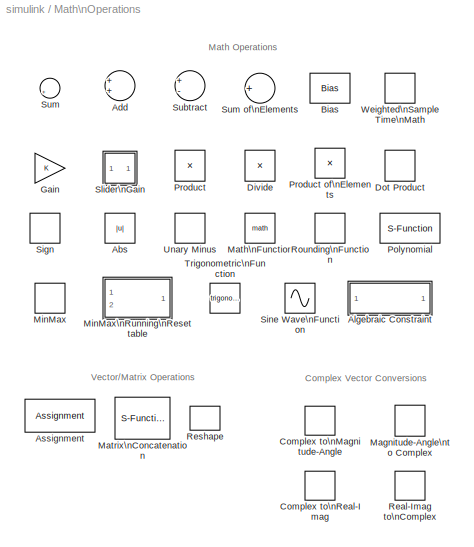
BLOCK [SubSystem] Math\nOperations
  MaskDisplay = image(imread('math.bmp','bmp'))
  MaskIconFrame = on
  MaskIconOpaque = on
  MaskIconRotate = none
  MaskIconUnits = autoscale
  MaskSelfModifiable = on
  MinAlgLoopOccurrences = off
  Ports = []
  RTWSystemCode = Auto
  TreatAsAtomicUnit = off
BLOCK [Abs] Math\nOperations/Abs
  SaturateOnIntegerOverflow = off
BLOCK [Sum] Math\nOperations/Add
  InputSameDT = off
  OutDataTypeMode = Inherit via internal rule
  OutScaling = 2^-10
  Ports = [2, 1]
  SaturateOnIntegerOverflow = off
BLOCK [SubSystem] Math\nOperations/Algebraic Constraint
  MaskDescription = Constrains input signal f(z) to zero and outputs an algebraic state z. This block outputs the value necessary to produce a zero at the input. The output must affect the input through some feedback path. Provide an initial guess of the output to improve algebraic loop solver efficiency.
  MaskDisplay = disp('Solve\\nf(z) = 0')
  MaskEnableString = on
  MaskHelp = This block outputs the value necessary to produce a zero at the input. The output must affect the input through some feedback path. This allows you to specify algebraic equations for index 1 differential/algebraic systems (DAE's).\n                                                                                                                                                                        ...<+230ch>
  MaskIconFrame = on
  MaskIconOpaque = off
  MaskIconRotate = none
  MaskIconUnits = autoscale
  MaskPromptString = Initial guess:
  MaskStyleString = edit
  MaskToolTipString = on
  MaskTunableValueString = on
  MaskType = Algebraic Constraint
  MaskValueString = 0
  MaskVariables = z0=@1;
  MaskVisibilityString = on
  MinAlgLoopOccurrences = off
  Ports = [1, 1]
  RTWSystemCode = Auto
  TreatAsAtomicUnit = off
BLOCK [InitialCondition] Math\nOperations/Algebraic Constraint/Initial Guess
  Value = z0
BLOCK [Sum] Math\nOperations/Algebraic Constraint/Sum
  IconShape = round
  Inputs = |++
  Ports = [2, 1]
BLOCK [Inport] Math\nOperations/Algebraic Constraint/f(z)
  IconDisplay = Port number
  LatchInput = off
BLOCK [Outport] Math\nOperations/Algebraic Constraint/z
  BusOutputAsStruct = off
  IconDisplay = Port number
BLOCK [Assignment] Math\nOperations/Assignment
  Ports = [2, 1]
BLOCK [Bias] Math\nOperations/Bias
  Bias = 0.0
  SaturateOnIntegerOverflow = off
BLOCK [ComplexToMagnitudeAngle] Math\nOperations/Complex to\nMagnitude-Angle
  Output = Magnitude and angle
  Ports = [1, 2]
BLOCK [ComplexToRealImag] Math\nOperations/Complex to\nReal-Imag
  Output = Real and imag
  Ports = [1, 2]
BLOCK [Product] Math\nOperations/Divide
  InputSameDT = off
  Inputs = */
  OutDataTypeMode = Inherit via internal rule
  OutScaling = 2^-10
  Ports = [2, 1]
  RndMeth = Floor
  SaturateOnIntegerOverflow = off
BLOCK [S-Function] Math\nOperations/Dot Product
  FunctionName = sfix_dot
  MaskCallbackString = |fixptdialog(gcbh)|fixptdialog(gcbh)||||
  MaskDescription = Inner (dot) product.\ny = sum(conj(u1).*u2). The operand u1 corresponds to the top (or left) input port.
  MaskDisplay = patch([0.55 0.5433 0.525 0.5 0.475 0.4567 0.45 0.4567 0.475 0.5 0.525 0.5433 0.55],[ 0.5 0.525 0.5433 0.55 0.5433 0.525 0.5 0.475 0.4567 0.45 0.4567 0.475 0.5],[0 0 0])
  MaskEnableString = on,on,on,on,on,on,on
  MaskHelp = omputes the inner (dot) product of the inputs: sum(u1.*u2).  The inputs are vectors of the same length. Output is a scalar.
  MaskIconFrame = on
  MaskIconOpaque = on
  MaskIconRotate = none
  MaskIconUnits = normalized
  MaskInitialization = DblOver = 0;\ndoLog   = 0;
  MaskPromptString = Require all inputs to have same data type|Output data type mode:|Output data type (e.g., sfix(16),  uint(8),  float('single')):|Output scaling (Slope, e.g. 2^-9 or [Slope Bias], e.g. [1.25 3]):|Lock output scaling against changes by the autoscaling tool|Round integer calculation toward:|Saturate on integer overflow
  MaskSelfModifiable = on
  MaskStyleString = checkbox,popup(Specify via dialog|Inherit via internal rule|Inherit via back propagation|Same as first input),edit,edit,checkbox,popup(Zero|Nearest|Ceiling|Floor),checkbox
  MaskTabNameString = ,,,,,,
  MaskToolTipString = on,on,on,on,on,on,on
  MaskTunableValueString = on,on,on,on,on,on,on
  MaskType = Dot Product
  MaskValueString = on|Inherit via internal rule|sfix(16)|2^-10|off|Floor|off
  MaskVarAliasString = ,OutDataTypeMode,,,,,SaturateOnIntegerOverflow
  MaskVariables = InputSameDT=@1;OutputDataTypeScalingMode=@2;OutDataType=@3;OutScaling=@4;LockScale=@5;RndMeth=@6;DoSatur=@7;
  MaskVisibilityString = on,on,off,off,off,on,on
  Parameters = InputSameDT, (getdatatypespecs(OutDataType,OutScaling,DblOver,0)),[DoSatur RndMeth-1],OutputDataTypeScalingMode
  Ports = [2, 1]
BLOCK [Gain] Math\nOperations/Gain
  OutDataTypeMode = Inherit via internal rule
  ParameterDataTypeMode = Inherit via internal rule
  SaturateOnIntegerOverflow = off
BLOCK [MagnitudeAngleToComplex] Math\nOperations/Magnitude-Angle\nto Complex
  Input = Magnitude and angle
  Ports = [2, 1]
BLOCK [Math] Math\nOperations/Math\nFunction
  Ports = [1, 1]
BLOCK [S-Function] Math\nOperations/Matrix\nConcatenation
  FunctionName = smatrxcat
  MaskCallbackString = |
  MaskDescription = Perform horizontal or vertical concatenation.  1-D vector input signals are treated as column vectors, i.e., [Mx1] matrices.  The output is always a matrix.
  MaskDisplay = plot(xy.x,xy.y);\ntext(0.15,0.86,xy.label);\n
  MaskEnableString = on,on
  MaskIconFrame = on
  MaskIconOpaque = on
  MaskIconRotate = none
  MaskIconUnits = normalized
  MaskInitialization = xy = matrxcatmask('icon');
  MaskPromptString = Number of inputs:|Concatenation method:
  MaskSelfModifiable = on
  MaskStyleString = edit,popup(Horizontal|Vertical)
  MaskTabNameString = ,
  MaskToolTipString = on,on
  MaskTunableValueString = on,on
  MaskType = Matrix Concatenation
  MaskValueString = 2|Horizontal
  MaskVarAliasString = ,
  MaskVariables = numInports=@1;catMethod=@2;
  MaskVisibilityString = on,on
  Parameters = numInports,catMethod
  Ports = [2, 1]
BLOCK [MinMax] Math\nOperations/MinMax
  Function = min
  InputSameDT = off
  Ports = [1, 1]
  SaturateOnIntegerOverflow = off
BLOCK [SubSystem] Math\nOperations/MinMax\nRunning\nResettable
  MaskCallbackString = |
  MaskDescription = Output the max or min of all past inputs u.  The output is reset to the initial condition when the Reset input signal R is TRUE.  This reset action is vectorized and supports scalar expansion.
  MaskDisplay = disp([char((Function==1)*'min'+(Function==2)*'max'),'(u,y)'])
  MaskEnableString = on,on
  MaskIconFrame = on
  MaskIconOpaque = off
  MaskIconRotate = none
  MaskIconUnits = normalized
  MaskInitialization = set_param([gcb,'/MinMax'],'Function',get_param(gcbh,'Function'));
  MaskPromptString = Function:|Initial condition:
  MaskSelfModifiable = on
  MaskStyleString = popup(min|max),edit
  MaskTabNameString = ,
  MaskToolTipString = on,on
  MaskTunableValueString = on,on
  MaskType = MinMax Running Resettable
  MaskValueString = min|0.0
  MaskVarAliasString = ,
  MaskVariables = Function=@1;vinit=@2;
  MaskVisibilityString = on,on
  MinAlgLoopOccurrences = off
  Ports = [2, 1]
  RTWSystemCode = Auto
  TreatAsAtomicUnit = off
BLOCK [Reference] Math\nOperations/MinMax\nRunning\nResettable/Data Type\nDuplicate  REF=simulink/Signal\nAttributes/Data Type\nDuplicate
  NumInputPorts = 3
  Ports = [3]
  SourceBlock = simulink/Signal\nAttributes/Data Type\nDuplicate
  SourceType = Data Type Duplicate
BLOCK [MinMax] Math\nOperations/MinMax\nRunning\nResettable/MinMax
  Function = min
  InputSameDT = off
  Inputs = 2
  LockScale = on
  OutDataType = uint(8)
  OutDataTypeMode = Inherit via back propagation
  OutScaling = 1
  Ports = [2, 1]
  SaturateOnIntegerOverflow = off
  ZeroCross = off
BLOCK [Inport] Math\nOperations/MinMax\nRunning\nResettable/R
  IconDisplay = Port number
  LatchInput = off
  Port = 2
BLOCK [Reference] Math\nOperations/MinMax\nRunning\nResettable/Unit Delay\nWith Preview\nResettable  REF=simulink/Additional Math\n& Discrete/Additional\nDiscrete/Unit Delay\nWith Preview\nResettable
  Ports = [2, 2]
  ShowPortLabels = on
  SourceBlock = simulink/Additional Math\n& Discrete/Additional\nDiscrete/Unit Delay\nWith Preview\nResettable
  SourceType = Unit Delay With Preview Resettable
  tsamp = -1
  vinit = vinit
BLOCK [Inport] Math\nOperations/MinMax\nRunning\nResettable/u
  IconDisplay = Port number
  LatchInput = off
BLOCK [Outport] Math\nOperations/MinMax\nRunning\nResettable/y
  BusOutputAsStruct = off
  IconDisplay = Port number
BLOCK [S-Function] Math\nOperations/Polynomial
  FunctionName = sfun_polyval
  MaskDescription = Polynomial evaluation.  Calculates P(u) given by the polynomial coefficient array P.  P is sorted highest order to lowest order, the form accepted by MATLAB's polyval function.
  MaskDisplay = text(0.5,0.75, 'P(u)','horizontalAlignment','center')\ntext(0.5,0.25, str,'horizontalAlignment','center')\n
  MaskEnableString = on
  MaskIconFrame = on
  MaskIconOpaque = on
  MaskIconRotate = none
  MaskIconUnits = normalized
  MaskInitialization = if isempty(coefs)\n  str = 'O(P) = ???';\nelse\n  str = sprintf('O(P) = %d',length(coefs)-1);\nend
  MaskPromptString = Polynomial coefficients:
  MaskStyleString = edit
  MaskToolTipString = on
  MaskTunableValueString = on
  MaskType = Polyval
  MaskValueString = [ +2.081618890e-019, -1.441693666e-014, +4.719686976e-010, -8.536869453e-006, +1.621573104e-001, -8.087801117e+001 ]
  MaskVariables = coefs=@1;
  MaskVisibilityString = on
  Parameters = coefs
  Ports = [1, 1]
BLOCK [Product] Math\nOperations/Product
  InputSameDT = off
  OutDataTypeMode = Inherit via internal rule
  Ports = [2, 1]
  SaturateOnIntegerOverflow = off
BLOCK [Product] Math\nOperations/Product of\nElements
  InputSameDT = off
  Inputs = *
  OutDataTypeMode = Inherit via internal rule
  OutScaling = 2^-10
  Ports = [1, 1]
  RndMeth = Floor
  SaturateOnIntegerOverflow = off
BLOCK [RealImagToComplex] Math\nOperations/Real-Imag to\nComplex
  Input = Real and imag
  Ports = [2, 1]
BLOCK [S-Function] Math\nOperations/Reshape
  FunctionName = sreshape
  MaskCallbackString = reshapemask(gcbh,'cbDimensionality')|
  MaskDescription = Change the dimensions of a vector or matrix input signal. Output\n - a one-dimensional array (vector), \n - a column vector (Mx1 matrix), \n - a row vector (1xN matrix), or \n - a matrix or vector with specified dimensions, e.g., [M, N] or [W].
  MaskDisplay = disp('U( : )')
  MaskEnableString = on,off
  MaskIconFrame = on
  MaskIconOpaque = on
  MaskIconRotate = none
  MaskIconUnits = normalized
  MaskInitialization = s = reshapemask(gcbh,'init');
  MaskPromptString = Output dimensionality:|Output dimensions:
  MaskSelfModifiable = on
  MaskStyleString = popup(1-D array|Column vector|Row vector|Customize),edit
  MaskTabNameString = ,
  MaskToolTipString = on,on
  MaskTunableValueString = on,on
  MaskType = Reshape
  MaskValueString = 1-D array|[1,1]
  MaskVarAliasString = ,
  MaskVariables = OutputDimensionality=@1;OutputDimensions=@2;
  MaskVisibilityString = on,on
  Parameters = OutputDimensionality, OutputDimensions
  Ports = [1, 1]
BLOCK [Rounding] Math\nOperations/Rounding\nFunction
BLOCK [Signum] Math\nOperations/Sign
BLOCK [Sin] Math\nOperations/Sine Wave\nFunction
  Ports = [1, 1]
  SampleTime = 0
  SineType = Time based
  TimeSource = Use external signal
BLOCK [SubSystem] Math\nOperations/Slider\nGain
  CloseFcn = slideg Close
  CopyFcn = slideg Copy
  DeleteFcn = slideg DeleteBlock
  LoadFcn = slideg Load
  MaskCallbackString = ||
  MaskDisplay = disp(gain)
  MaskEnableString = on,on,on
  MaskIconFrame = on
  MaskIconOpaque = on
  MaskIconRotate = none
  MaskIconUnits = autoscale
  MaskPromptString = Low|Gain|High
  MaskStyleString = edit,edit,edit
  MaskTabNameString = ,,
  MaskToolTipString = on,on,on
  MaskTunableValueString = on,on,on
  MaskType = Slider Gain
  MaskValueString = 0|1|2
  MaskVarAliasString = ,,
  MaskVariables = low=@1;gain=@2;high=@3;
  MaskVisibilityString = on,on,on
  MinAlgLoopOccurrences = off
  NameChangeFcn = slideg NameChange
  OpenFcn = slideg Open
  ParentCloseFcn = slideg ParentClose
  Ports = [1, 1]
  RTWSystemCode = Auto
  TreatAsAtomicUnit = off
BLOCK [Inport] Math\nOperations/Slider\nGain/In1
  IconDisplay = Port number
  LatchInput = off
BLOCK [Outport] Math\nOperations/Slider\nGain/Out1
  BusOutputAsStruct = off
  IconDisplay = Port number
BLOCK [Gain] Math\nOperations/Slider\nGain/Slider\nGain
  Gain = gain
BLOCK [Sum] Math\nOperations/Subtract
  InputSameDT = off
  Inputs = +-
  OutDataTypeMode = Inherit via internal rule
  OutScaling = 2^-10
  Ports = [2, 1]
  SaturateOnIntegerOverflow = off
BLOCK [Sum] Math\nOperations/Sum
  CopyFcn = set_param(gcbh,'ShowName','off','CopyFcn','')
  IconShape = round
  InputSameDT = off
  Inputs = |++
  OutDataTypeMode = Inherit via internal rule
  Ports = [2, 1]
  SaturateOnIntegerOverflow = off
BLOCK [Sum] Math\nOperations/Sum of\nElements
  InputSameDT = off
  Inputs = +
  OutDataTypeMode = Inherit via internal rule
  OutScaling = 2^-10
  Ports = [1, 1]
  SaturateOnIntegerOverflow = off
BLOCK [Trigonometry] Math\nOperations/Trigonometric\nFunction
  Ports = [1, 1]
BLOCK [S-Function] Math\nOperations/Unary Minus
  FunctionName = sfix_abs
  MaskDescription = Unary Minus of a Signal.
  MaskDisplay = fprintf('-u')
  MaskEnableString = on
  MaskIconFrame = on
  MaskIconOpaque = on
  MaskIconRotate = none
  MaskIconUnits = normalized
  MaskPromptString = Saturate to max or min when overflows occur
  MaskSelfModifiable = on
  MaskStyleString = checkbox
  MaskToolTipString = on
  MaskTunableValueString = on
  MaskType = Unary Minus
  MaskValueString = off
  MaskVariables = DoSatur=@1;
  MaskVisibilityString = on
  Parameters = 5,[DoSatur 3]
  Ports = [1, 1]
BLOCK [S-Function] Math\nOperations/Weighted\nSample Time\nMath
  FunctionName = sfix_tsampmath
  MaskCallbackString = fixptdialog(gcbh)||fixptdialog(gcbh)|fixptdialog(gcbh)||
  MaskDescription = Add, subtract, multiply, or divide the input signal by weighted sample time, or just output weighted sample time or weighted sample rate.
  MaskDisplay = disp(dstr)
  MaskEnableString = on,on,on,on,on,on
  MaskIconFrame = on
  MaskIconOpaque = on
  MaskIconRotate = none
  MaskIconUnits = normalized
  MaskInitialization = DblOver = 0;\ndolog = 0;\n\nsymbol = '+-*/';\nif TsampMathOp <= 4\n  dstr = ['u',symbol(TsampMathOp),'Ts'];\nelseif TsampMathOp == 5\n  dstr = 'Ts';\nelse\n  dstr = '1/Ts';\nend\nif ~isempty(weightValue) & weightValue ~= 1\n  if TsampMathOp == 4 | TsampMathOp == 6 % division\n    dstr = [dstr,'/w'];\n  else\n    dstr = [dstr,'*w'];\n  end\nend\nTsampMathOp = 15 + TsampMathOp;
  MaskPromptString = Operation:|Weight value:|Implement using:|Output data type and scaling:|Round toward:|Saturate to max or min when overflows occur
  MaskSelfModifiable = on
  MaskStyleString = popup(+|-|*|/|Ts Only|1/Ts Only),edit,popup(Online Calculations|Offline Scaling Adjustment),popup(Inherit via internal rule|Inherit via back propagation),popup(Zero|Nearest|Ceiling|Floor),checkbox
  MaskTabNameString = Main,Main,Main,Signal data types,Signal data types,Signal data types
  MaskToolTipString = on,on,on,on,on,on
  MaskTunableValueString = on,on,on,on,on,on
  MaskType = Sample Time Math
  MaskValueString = +|1.0|Online Calculations|Inherit via internal rule|Floor|off
  MaskVarAliasString = ,,,,,
  MaskVariables = TsampMathOp=@1;weightValue=@2;TsampMathImp=@3;OutputDataTypeScalingMode=@4;RndMeth=@5;DoSatur=@6;
  MaskVisibilityString = on,on,on,on,on,on
  Parameters = TsampMathOp,weightValue,OutputDataTypeScalingMode,[DoSatur RndMeth-1],DblOver,dolog,TsampMathImp
  Ports = [1, 1]
BLOCK [SubSystem] Model-Wide\nUtilities
  MaskDisplay = image(imread('misc.bmp','bmp'))
  MaskIconFrame = on
  MaskIconOpaque = on
  MaskIconRotate = none
  MaskIconUnits = autoscale
  MinAlgLoopOccurrences = off
  Ports = []
  RTWSystemCode = Auto
  TreatAsAtomicUnit = off
BLOCK [SubSystem] Model-Wide\nUtilities/Block Support\nTable
  MaskDescription = Double-clicking the block will launch the Simulink Block Data Type Support Table.
  MaskDisplay = disp('Block Support\\nTable');\n
  MaskIconFrame = on
  MaskIconOpaque = on
  MaskIconRotate = none
  MaskIconUnits = autoscale
  MaskType = Block Support Table
  MinAlgLoopOccurrences = off
  OpenFcn = showblockdatatypetable
  Ports = []
  RTWSystemCode = Auto
  TreatAsAtomicUnit = off
BLOCK [SubSystem] Model-Wide\nUtilities/Block Support\nTable/EmptySubsystem
  MinAlgLoopOccurrences = off
  Ports = []
  RTWSystemCode = Auto
  TreatAsAtomicUnit = off
BLOCK [SubSystem] Model-Wide\nUtilities/DocBlock
  DeleteFcn = docblock('close_document',gcb);
  MaskCallbackString = |
  MaskDescription = Use this block to save long descriptive text with the model.  Double-clicking the block will open an editor.
  MaskDisplay = plot([.8 0 0 1 1 .8 .8 1],[1 1 0 0 .8 1 .8 .8]);\ntext(.5,.6,'DOC','horizontalalignment','center');\ntext(.95,.05,get_param(gcb,'DocumentType'),'verticalalignment','bottom','horizontalalignment','right');
  MaskEnableString = on,on
  MaskIconFrame = off
  MaskIconOpaque = on
  MaskIconRotate = none
  MaskIconUnits = autoscale
  MaskPromptString = RTW Embedded Coder Flag|Document Type
  MaskStyleString = edit,popup(Text|RTF|HTML)
  MaskTabNameString = ,
  MaskToolTipString = on,on
  MaskTunableValueString = off,off
  MaskType = DocBlock
  MaskValueString = |Text
  MaskVarAliasString = ,
  MaskVariables = ECoderFlag=&1;DocumentType=&2;
  MaskVisibilityString = on,on
  MinAlgLoopOccurrences = off
  OpenFcn = docblock('edit_document',gcb);
  Ports = []
  PreSaveFcn = docblock('save_document',gcb);
  RTWSystemCode = Auto
  TreatAsAtomicUnit = off
  UserDataPersistent = on
BLOCK [SubSystem] Model-Wide\nUtilities/DocBlock/EmptySubsystem
  MinAlgLoopOccurrences = off
  Ports = []
  RTWSystemCode = Auto
  TreatAsAtomicUnit = off
BLOCK [SubSystem] Model-Wide\nUtilities/Model Info
  CopyFcn = slcm CopyBlock;
  DeleteFcn = slcm Cancel;
  InitFcn = slcm('UpdateAllCMBlocksInThisModelInit')
  LoadFcn = slcm LoadBlock;
  MaskCallbackString = ||||||||||||||||||||||||||||||
  MaskDescription = This block allows revision control information to be displayed within the model.
  MaskDisplay = text(str2num(LeftAlignmentValue), 0.5, MaskDisplayString, 'HorizontalAlignment', HorizontalTextAlignment)\n
  MaskEnableString = on,on,on,on,on,on,on,on,on,on,on,on,on,on,on,on,on,on,on,on,on,on,on,on,on,on,on,on,on,on,on
  MaskIconFrame = on
  MaskIconOpaque = on
  MaskIconRotate = none
  MaskIconUnits = normalized
  MaskPromptString = InitialSaveTempField|InitialBlockCM|BlockCM|Frame|SaveTempField|DisplayStringWithTags|MaskDisplayString|HorizontalTextAlignment|LeftAlignmentValue|SourceBlockDiagram|TagMaxNumber|CMTag1|CMTag2|CMTag3|CMTag4|CMTag5|CMTag6|CMTag7|CMTag8|CMTag9|CMTag10|CMTag11|CMTag12|CMTag13|CMTag14|CMTag15|CMTag16|CMTag17|CMTag18|CMTag19|CMTag20
  MaskSelfModifiable = on
  MaskStyleString = edit,edit,edit,edit,edit,edit,edit,edit,edit,edit,edit,edit,edit,edit,edit,edit,edit,edit,edit,edit,edit,edit,edit,edit,edit,edit,edit,edit,edit,edit,edit
  MaskTabNameString = ,,,,,,,,,,,,,,,,,,,,,,,,,,,,,,
  MaskToolTipString = on,on,on,on,on,on,on,on,on,on,on,on,on,on,on,on,on,on,on,on,on,on,on,on,on,on,on,on,on,on,on
  MaskTunableValueString = on,on,on,on,on,on,on,on,on,on,on,on,on,on,on,on,on,on,on,on,on,on,on,on,on,on,on,on,on,on,on
  MaskType = CMBlock
  MaskValueString = |none|none|on||Model Info|Model Info|Center|0.5|simulink|20||||||||||||||||||||
  MaskVarAliasString = ,,,,,,,,,,,,,,,,,,,,,,,,,,,,,,
  MaskVariables = InitialSaveTempField=&1;InitialBlockCM=&2;BlockCM=&3;Frame=&4;SaveTempField=&5;DisplayStringWithTags=&6;MaskDisplayString=&7;HorizontalTextAlignment=&8;LeftAlignmentValue=&9;SourceBlockDiagram=&10;TagMaxNumber=@11;CMTag1=&12;CMTag2=&13;CMTag3=&14;CMTag4=&15;CMTag5=&16;CMTag6=&17;CMTag7=&18;CMTag8=&19;CMTag9=&20;CMTag10=&21;CMTag11=&22;CMTag12=&23;CMTag13=&24;CMTag14=&25;CMTag15=&26;CMTag16=&27;CMT...<+45ch>
  MaskVisibilityString = off,off,off,off,off,off,off,off,off,off,off,off,off,off,off,off,off,off,off,off,off,off,off,off,off,off,off,off,off,off,off
  MinAlgLoopOccurrences = off
  NameChangeFcn = slcm Rename;
  OpenFcn = slcm
  Ports = []
  PostSaveFcn = slcm('UpdateAllCMBlocksInThisModel')
  RTWSystemCode = Auto
  TreatAsAtomicUnit = off
BLOCK [SubSystem] Model-Wide\nUtilities/Model Info/EmptySubsystem
  MinAlgLoopOccurrences = off
  Ports = []
  RTWSystemCode = Auto
  TreatAsAtomicUnit = off
BLOCK [SubSystem] Model-Wide\nUtilities/Timed-Based\nLinearization
  MaskCallbackString = |
  MaskDescription = Generate linear models in the base workspace at specific times.\n
  MaskDisplay = disp(['T=' mat2str(LinearizationTime)])\n\n
  MaskEnableString = on,on
  MaskHelp = This block calls LINMOD or DLINMOD to create a linear model for the system when the simulation clock reaches the time specified by the LinearizationTime parameter.  No trimming is performed.  The linear model is stored in the base workspace as a structure, along with information about the operating point at which the snapshot was taken.  Multiple snapshots are appended to form an array of structur...<+3ch>
  MaskIconFrame = on
  MaskIconOpaque = on
  MaskIconRotate = none
  MaskIconUnits = autoscale
  MaskInitialization = name_  = linsetup;
  MaskPromptString = Linearization time:|Sample time (of linearized model):
  MaskStyleString = edit,edit
  MaskTabNameString = ,
  MaskToolTipString = on,on
  MaskTunableValueString = on,on
  MaskType = Timed Linearization
  MaskValueString = 1|0
  MaskVarAliasString = ,
  MaskVariables = LinearizationTime=@1;SampleTime=@2;
  MaskVisibilityString = on,on
  MinAlgLoopOccurrences = off
  Ports = []
  RTWSystemCode = Auto
  TreatAsAtomicUnit = off
BLOCK [Clock] Model-Wide\nUtilities/Timed-Based\nLinearization/Clock
  Decimation = 10
BLOCK [Constant] Model-Wide\nUtilities/Timed-Based\nLinearization/Constant
  Value = LinearizationTime
BLOCK [Sum] Model-Wide\nUtilities/Timed-Based\nLinearization/Sum
  IconShape = round
  Inputs = -+
  Ports = [2, 1]
BLOCK [SubSystem] Model-Wide\nUtilities/Timed-Based\nLinearization/Triggered\nLinearization
  MinAlgLoopOccurrences = off
  Ports = [0, 0, 0, 1]
  RTWSystemCode = Auto
  TreatAsAtomicUnit = on
BLOCK [S-Function] Model-Wide\nUtilities/Timed-Based\nLinearization/Triggered\nLinearization/S-Function
  FunctionName = sfunlin
  Parameters = name_,SampleTime
  Ports = []
BLOCK [TriggerPort] Model-Wide\nUtilities/Timed-Based\nLinearization/Triggered\nLinearization/Trigger
  Ports = []
  StatesWhenEnabling = held
BLOCK [SubSystem] Model-Wide\nUtilities/Trigger-Based\nLinearization
  MaskCallbackString = |
  MaskDescription = Generates linear models in the base workspace when triggered.
  MaskEnableString = on,on
  MaskHelp = When triggered, this block calls LINMOD or DLINMOD to create a linear model for the system at the current operating point.  No trimming is performed.   The linear model is stored in the base workspace as a structure, along with information about the operating point at which the snapshot was taken.  Multiple snapshots are appended to form an array of structures.
  MaskIconFrame = on
  MaskIconOpaque = on
  MaskIconRotate = none
  MaskIconUnits = autoscale
  MaskInitialization = name_ = linsetup;\nset_param([ gcb '/Trigger'],'TriggerType',TriggerType);
  MaskPromptString = Trigger type:|Sample time (of linearized model):
  MaskSelfModifiable = on
  MaskStyleString = popup(rising|falling|either|function-call),edit
  MaskTabNameString = ,
  MaskToolTipString = on,on
  MaskTunableValueString = on,on
  MaskType = Triggered Linearization
  MaskValueString = rising|0
  MaskVarAliasString = ,
  MaskVariables = TriggerType=&1;SampleTime=@2;
  MaskVisibilityString = on,on
  MinAlgLoopOccurrences = off
  Ports = [0, 0, 0, 1]
  RTWSystemCode = Auto
  TreatAsAtomicUnit = on
BLOCK [S-Function] Model-Wide\nUtilities/Trigger-Based\nLinearization/S-Function
  FunctionName = sfunlin
  Parameters = name_,SampleTime
  Ports = []
BLOCK [TriggerPort] Model-Wide\nUtilities/Trigger-Based\nLinearization/Trigger
  Ports = []
  StatesWhenEnabling = held
BLOCK [SubSystem] Model\nVerification
  MaskDisplay = image(imread('assertion.bmp','bmp'))
  MaskIconFrame = on
  MaskIconOpaque = on
  MaskIconRotate = none
  MaskIconUnits = autoscale
  MinAlgLoopOccurrences = off
  Ports = []
  RTWSystemCode = Auto
  TreatAsAtomicUnit = off
BLOCK [Assertion] Model\nVerification/Assertion
BLOCK [SubSystem] Model\nVerification/Check Dynamic \nLower Bound
  Description = min < sig
  MaskCallbackString = ||||
  MaskDescription = Assert that one signal is always less than another signal.  The first input is the lower-bound signal.  The second input is the test signal.
  MaskDisplay = port_label('input', 1,'min');\nport_label('input', 2, 'sig');\nimage(imread('Checks_DMin.bmp','bmp'),'center')
  MaskEnableString = on,on,on,on,on
  MaskIconFrame = on
  MaskIconOpaque = on
  MaskIconRotate = none
  MaskIconUnits = normalized
  MaskInitialization = update_assert_sys(gcbh);
  MaskPromptString = Enable assertion|Simulation callback when assertion fails (optional):|Stop simulation when assertion fails|Output assertion signal|Select icon type:
  MaskSelfModifiable = on
  MaskStyleString = checkbox,edit,checkbox,checkbox,popup(graphic|text)
  MaskTabNameString = ,,,,
  MaskToolTipString = on,on,on,on,on
  MaskTunableValueString = on,on,on,on,on
  MaskType = Checks_DMin
  MaskValueString = on||on|off|graphic
  MaskVarAliasString = ,,,,
  MaskVariables = Enabled=@1;callback=&2;stopWhenAssertionFail=@3;export=@4;icon=@5;
  MaskVisibilityString = on,on,on,on,on
  MinAlgLoopOccurrences = off
  Ports = [2]
  RTWSystemCode = Auto
  TreatAsAtomicUnit = off
BLOCK [Assertion] Model\nVerification/Check Dynamic \nLower Bound/Assertion
  CopyFcn = set_param(gcbh,'ShadowObject',get_param(get_param(gcbh,'Parent'),'Handle'));
BLOCK [Inport] Model\nVerification/Check Dynamic \nLower Bound/min
  IconDisplay = Port number
  LatchInput = off
BLOCK [RelationalOperator] Model\nVerification/Check Dynamic \nLower Bound/min_relop
  Operator = <
BLOCK [DataTypeConversion] Model\nVerification/Check Dynamic \nLower Bound/mintype
BLOCK [Terminator] Model\nVerification/Check Dynamic \nLower Bound/out
BLOCK [Inport] Model\nVerification/Check Dynamic \nLower Bound/u
  IconDisplay = Port number
  LatchInput = off
  Port = 2
BLOCK [SubSystem] Model\nVerification/Check Dynamic \nUpper Bound
  Description = sig < max
  MaskCallbackString = ||||
  MaskDescription = Assert that one signal is always greater than another signal.  The first input is the upper-bound signal.  The second input is the test signal.
  MaskDisplay = port_label('input', 1,'max');\nport_label('input', 2, 'sig');\nimage(imread('Checks_DMax.bmp','bmp'),'center')
  MaskEnableString = on,on,on,on,on
  MaskIconFrame = on
  MaskIconOpaque = on
  MaskIconRotate = none
  MaskIconUnits = normalized
  MaskInitialization = update_assert_sys(gcbh);
  MaskPromptString = Enable assertion|Simulation callback when assertion fails (optional):|Stop simulation when assertion fails|Output assertion signal|Select icon type:
  MaskSelfModifiable = on
  MaskStyleString = checkbox,edit,checkbox,checkbox,popup(graphic|text)
  MaskTabNameString = ,,,,
  MaskToolTipString = on,on,on,on,on
  MaskTunableValueString = on,on,on,on,on
  MaskType = Checks_DMax
  MaskValueString = on||on|off|graphic
  MaskVarAliasString = ,,,,
  MaskVariables = enabled=@1;callback=&2;stopWhenAssertionFail=@3;export=@4;icon=@5;
  MaskVisibilityString = on,on,on,on,on
  MinAlgLoopOccurrences = off
  Ports = [2]
  RTWSystemCode = Auto
  TreatAsAtomicUnit = off
BLOCK [Assertion] Model\nVerification/Check Dynamic \nUpper Bound/Assertion
  CopyFcn = set_param(gcbh,'ShadowObject',get_param(get_param(gcbh,'Parent'),'Handle'));
BLOCK [Inport] Model\nVerification/Check Dynamic \nUpper Bound/max
  IconDisplay = Port number
  LatchInput = off
BLOCK [RelationalOperator] Model\nVerification/Check Dynamic \nUpper Bound/max_relop
  Operator = <
BLOCK [DataTypeConversion] Model\nVerification/Check Dynamic \nUpper Bound/maxtype
BLOCK [Terminator] Model\nVerification/Check Dynamic \nUpper Bound/out
BLOCK [Inport] Model\nVerification/Check Dynamic \nUpper Bound/u
  IconDisplay = Port number
  LatchInput = off
  Port = 2
BLOCK [SubSystem] Model\nVerification/Check Input \nResolution
  Description = -Inf < u < +Inf
  MaskCallbackString = ||||
  MaskDescription = Assert that the input signal has a specified resolution.  If the resolution is a scalar, the input signal must be a multiple of the resultion within a 10e-3 tolerance.  If the resolution is a vector, the input signal must equal an element of the resolution vector.
  MaskDisplay = image(imread('Checks_Resolution.bmp','bmp'),'center')
  MaskEnableString = on,on,on,on,on
  MaskIconFrame = on
  MaskIconOpaque = on
  MaskIconRotate = none
  MaskIconUnits = normalized
  MaskInitialization = update_assert_sys(gcbh, length(resolution));
  MaskPromptString = Resolution:|Enable assertion|Simulation callback when assertion fails (optional):|Stop simulation when assertion fails|Output assertion signal
  MaskSelfModifiable = on
  MaskStyleString = edit,checkbox,edit,checkbox,checkbox
  MaskTabNameString = ,,,,
  MaskToolTipString = on,on,on,on,on
  MaskTunableValueString = on,on,on,on,on
  MaskType = Checks_Resolution
  MaskValueString = 1|on||on|off
  MaskVarAliasString = ,,,,
  MaskVariables = resolution=@1;enabled=@2;callback=&3;stopWhenAssertionFail=@4;export=@5;
  MaskVisibilityString = on,on,on,on,on
  MinAlgLoopOccurrences = off
  Ports = [1]
  RTWSystemCode = Auto
  TreatAsAtomicUnit = off
BLOCK [Assertion] Model\nVerification/Check Input \nResolution/Assertion
  CopyFcn = set_param(gcbh,'ShadowObject',get_param(get_param(gcbh,'Parent'),'Handle'));
BLOCK [Terminator] Model\nVerification/Check Input \nResolution/dead_out
BLOCK [Constant] Model\nVerification/Check Input \nResolution/dead_resolution
  Value = [1 1]
BLOCK [Constant] Model\nVerification/Check Input \nResolution/dead_u
BLOCK [SubSystem] Model\nVerification/Check Input \nResolution/fixed
  MinAlgLoopOccurrences = off
  Ports = [2, 1]
  RTWSystemCode = Auto
  TreatAsAtomicUnit = off
BLOCK [Logic] Model\nVerification/Check Input \nResolution/fixed/fold
  Inputs = 1
  Operator = OR
  Ports = [1, 1]
BLOCK [Outport] Model\nVerification/Check Input \nResolution/fixed/out
  BusOutputAsStruct = off
  IconDisplay = Port number
BLOCK [RelationalOperator] Model\nVerification/Check Input \nResolution/fixed/relop
  Operator = ==
BLOCK [Inport] Model\nVerification/Check Input \nResolution/fixed/resolution
  IconDisplay = Port number
  LatchInput = off
  Port = 2
BLOCK [Inport] Model\nVerification/Check Input \nResolution/fixed/u
  IconDisplay = Port number
  LatchInput = off
BLOCK [Terminator] Model\nVerification/Check Input \nResolution/out
BLOCK [Constant] Model\nVerification/Check Input \nResolution/resolution
  Value = resolution
BLOCK [DataTypeConversion] Model\nVerification/Check Input \nResolution/resolution_type
BLOCK [SubSystem] Model\nVerification/Check Input \nResolution/steps
  MinAlgLoopOccurrences = off
  Ports = [2, 1]
  RTWSystemCode = Auto
  TreatAsAtomicUnit = off
BLOCK [Outport] Model\nVerification/Check Input \nResolution/steps/out
  BusOutputAsStruct = off
  IconDisplay = Port number
BLOCK [RelationalOperator] Model\nVerification/Check Input \nResolution/steps/relop
  Operator = <=
BLOCK [Math] Model\nVerification/Check Input \nResolution/steps/rem
  Operator = mod
  Ports = [2, 1]
BLOCK [Inport] Model\nVerification/Check Input \nResolution/steps/resolution
  IconDisplay = Port number
  LatchInput = off
  Port = 2
BLOCK [Constant] Model\nVerification/Check Input \nResolution/steps/tol
  Value = 10e-3
BLOCK [Inport] Model\nVerification/Check Input \nResolution/steps/u
  IconDisplay = Port number
  LatchInput = off
BLOCK [Inport] Model\nVerification/Check Input \nResolution/u
  IconDisplay = Port number
  LatchInput = off
BLOCK [SubSystem] Model\nVerification/Check Static \nLower Bound
  Description = 0 <= u
  MaskCallbackString = ||||||
  MaskDescription = Assert that the input signal is greater than (or optionally equal to) a static lower bound.
  MaskDisplay = image(imread('Checks_SMin.bmp','bmp'),'center')
  MaskEnableString = on,on,on,on,on,on,on
  MaskIconFrame = on
  MaskIconOpaque = on
  MaskIconRotate = none
  MaskIconUnits = normalized
  MaskInitialization = update_assert_sys(gcbh);
  MaskPromptString = Lower bound:|Inclusive boundary|Enable assertion|Simulation callback when assertion fails (optional):|Stop simulation when assertion fails|Output assertion signal|Select icon type:
  MaskSelfModifiable = on
  MaskStyleString = edit,checkbox,checkbox,edit,checkbox,checkbox,popup(graphic|text)
  MaskTabNameString = ,,,,,,
  MaskToolTipString = on,on,on,on,on,on,on
  MaskTunableValueString = on,on,on,on,on,on,on
  MaskType = Checks_SMin
  MaskValueString = 0|on|on||on|off|graphic
  MaskVarAliasString = ,,,,,,
  MaskVariables = min=@1;min_included=@2;enabled=@3;callback=&4;stopWhenAssertionFail=@5;export=@6;icon=@7;
  MaskVisibilityString = on,on,on,on,on,on,on
  MinAlgLoopOccurrences = off
  Ports = [1]
  RTWSystemCode = Auto
  TreatAsAtomicUnit = off
BLOCK [Assertion] Model\nVerification/Check Static \nLower Bound/Assertion
  CopyFcn = set_param(gcbh,'ShadowObject',get_param(get_param(gcbh,'Parent'),'Handle'));
BLOCK [RelationalOperator] Model\nVerification/Check Static \nLower Bound/min_relop
  Operator = <=
BLOCK [Constant] Model\nVerification/Check Static \nLower Bound/min_val
  Value = min
BLOCK [DataTypeConversion] Model\nVerification/Check Static \nLower Bound/mintype
BLOCK [Terminator] Model\nVerification/Check Static \nLower Bound/out
BLOCK [Inport] Model\nVerification/Check Static \nLower Bound/u
  IconDisplay = Port number
  LatchInput = off
BLOCK [SubSystem] Model\nVerification/Check Static \nUpper Bound
  Description = u <= 0
  MaskCallbackString = ||||||
  MaskDescription = Assert that the input signal is less than (or optionally equal to) a static upper bound.\n
  MaskDisplay = image(imread('Checks_SMax.bmp','bmp'),'center')
  MaskEnableString = on,on,on,on,on,on,on
  MaskIconFrame = on
  MaskIconOpaque = on
  MaskIconRotate = none
  MaskIconUnits = normalized
  MaskInitialization = update_assert_sys(gcbh);
  MaskPromptString = Upper bound:|Inclusive boundary|Enable assertion|Simulation callback when assertion fails (optional):|Stop simulation when assertion fails|Output assertion signal|Select icon type:
  MaskSelfModifiable = on
  MaskStyleString = edit,checkbox,checkbox,edit,checkbox,checkbox,popup(graphic|text)
  MaskTabNameString = ,,,,,,
  MaskToolTipString = on,on,on,on,on,on,on
  MaskTunableValueString = on,on,on,on,on,on,on
  MaskType = Checks_SMax
  MaskValueString = 0|on|on||on|off|graphic
  MaskVarAliasString = ,,,,,,
  MaskVariables = max=@1;max_included=@2;enabled=@3;callback=&4;stopWhenAssertionFail=@5;export=@6;icon=@7;
  MaskVisibilityString = on,on,on,on,on,on,on
  MinAlgLoopOccurrences = off
  Ports = [1]
  RTWSystemCode = Auto
  TreatAsAtomicUnit = off
BLOCK [Assertion] Model\nVerification/Check Static \nUpper Bound/Assertion
  CopyFcn = set_param(gcbh,'ShadowObject',get_param(get_param(gcbh,'Parent'),'Handle'));
BLOCK [RelationalOperator] Model\nVerification/Check Static \nUpper Bound/max_relop
  Operator = <=
BLOCK [Constant] Model\nVerification/Check Static \nUpper Bound/max_val
  Value = max
BLOCK [DataTypeConversion] Model\nVerification/Check Static \nUpper Bound/mintype
BLOCK [Terminator] Model\nVerification/Check Static \nUpper Bound/out
BLOCK [Inport] Model\nVerification/Check Static \nUpper Bound/u
  IconDisplay = Port number
  LatchInput = off
BLOCK [SubSystem] Model\nVerification/Check \nDynamic Gap
  Description = sig < min || max < sig
  MaskCallbackString = ||||
  MaskDescription = Assert that the input signal 'sig' is always less than the lower bound 'min' or greater than the upper bound 'max'.  The first input is the upper-bound of the gap; the second input, the lower-bound; the third input, the test signal.
  MaskDisplay = port_label('input', 1, 'max');\nport_label('input', 2, 'min');\nport_label('input', 3, 'sig');\nimage(imread('Checks_DGap.bmp','bmp'),'center')
  MaskEnableString = on,on,on,on,on
  MaskIconFrame = on
  MaskIconOpaque = on
  MaskIconRotate = none
  MaskIconUnits = normalized
  MaskInitialization = update_assert_sys(gcbh);
  MaskPromptString = Enable assertion|Simulation callback when assertion fails (optional):|Stop simulation when assertion fails|Output assertion signal|Select icon type:
  MaskSelfModifiable = on
  MaskStyleString = checkbox,edit,checkbox,checkbox,popup(graphic|text)
  MaskTabNameString = ,,,,
  MaskToolTipString = on,on,on,on,on
  MaskTunableValueString = on,on,on,on,on
  MaskType = Checks_DGap
  MaskValueString = on||on|off|graphic
  MaskVarAliasString = ,,,,
  MaskVariables = enabled=@1;callback=&2;stopWhenAssertionFail=@3;export=@4;icon=@5;
  MaskVisibilityString = on,on,on,on,on
  MinAlgLoopOccurrences = off
  Ports = [3]
  RTWSystemCode = Auto
  TreatAsAtomicUnit = off
BLOCK [Assertion] Model\nVerification/Check \nDynamic Gap/Assertion
  CopyFcn = set_param(gcbh,'ShadowObject',get_param(get_param(gcbh,'Parent'),'Handle'));
BLOCK [Logic] Model\nVerification/Check \nDynamic Gap/disjunction
  Operator = OR
  Ports = [2, 1]
BLOCK [Inport] Model\nVerification/Check \nDynamic Gap/max
  IconDisplay = Port number
  LatchInput = off
BLOCK [RelationalOperator] Model\nVerification/Check \nDynamic Gap/max_relop
  Operator = <
BLOCK [DataTypeConversion] Model\nVerification/Check \nDynamic Gap/maxtype
BLOCK [Inport] Model\nVerification/Check \nDynamic Gap/min
  IconDisplay = Port number
  LatchInput = off
  Port = 2
BLOCK [RelationalOperator] Model\nVerification/Check \nDynamic Gap/min_relop
  Operator = <
BLOCK [DataTypeConversion] Model\nVerification/Check \nDynamic Gap/mintype
BLOCK [Terminator] Model\nVerification/Check \nDynamic Gap/out
BLOCK [Inport] Model\nVerification/Check \nDynamic Gap/u
  IconDisplay = Port number
  LatchInput = off
  Port = 3
BLOCK [SubSystem] Model\nVerification/Check \nDynamic Range
  Description = min < sig < max
  MaskCallbackString = ||||
  MaskDescription = Assert that one signal always lies between two other signals.  The first input is the upper-bound signal; the second input, the lower-bound; the third input, the test signal.
  MaskDisplay = port_label('input', 1,'max');\nport_label('input', 2, 'min');\nport_label('input', 3, 'sig');\nimage(imread('Checks_DRange.bmp','bmp'),'center')
  MaskEnableString = on,on,on,on,on
  MaskIconFrame = on
  MaskIconOpaque = on
  MaskIconRotate = none
  MaskIconUnits = normalized
  MaskInitialization = update_assert_sys(gcbh);
  MaskPromptString = Enable assertion|Simulation callback when assertion fails (optional):|Stop simulation when assertion fails|Output assertion signal|Select icon type:
  MaskSelfModifiable = on
  MaskStyleString = checkbox,edit,checkbox,checkbox,popup(graphic|text)
  MaskTabNameString = ,,,,
  MaskToolTipString = on,on,on,on,on
  MaskTunableValueString = on,on,on,on,on
  MaskType = Checks_DRange
  MaskValueString = on||on|off|graphic
  MaskVarAliasString = ,,,,
  MaskVariables = enabled=@1;callback=&2;stopWhenAssertionFail=@3;export=@4;icon=@5;
  MaskVisibilityString = on,on,on,on,on
  MinAlgLoopOccurrences = off
  Ports = [3]
  RTWSystemCode = Auto
  TreatAsAtomicUnit = off
BLOCK [Assertion] Model\nVerification/Check \nDynamic Range/Assertion
  CopyFcn = set_param(gcbh,'ShadowObject',get_param(get_param(gcbh,'Parent'),'Handle'));
BLOCK [Logic] Model\nVerification/Check \nDynamic Range/conjunction
  Ports = [2, 1]
BLOCK [Inport] Model\nVerification/Check \nDynamic Range/max
  IconDisplay = Port number
  LatchInput = off
BLOCK [RelationalOperator] Model\nVerification/Check \nDynamic Range/max_relop
  Operator = <
BLOCK [DataTypeConversion] Model\nVerification/Check \nDynamic Range/maxtype
BLOCK [Inport] Model\nVerification/Check \nDynamic Range/min
  IconDisplay = Port number
  LatchInput = off
  Port = 2
BLOCK [RelationalOperator] Model\nVerification/Check \nDynamic Range/min_relop
  Operator = <
BLOCK [DataTypeConversion] Model\nVerification/Check \nDynamic Range/mintype
BLOCK [Terminator] Model\nVerification/Check \nDynamic Range/out
BLOCK [Inport] Model\nVerification/Check \nDynamic Range/u
  IconDisplay = Port number
  LatchInput = off
  Port = 3
BLOCK [SubSystem] Model\nVerification/Check \nStatic Gap
  Description = u <= 0 || 100 <= u
  MaskCallbackString = ||||||||
  MaskDescription = Assert that the input signal is less than (or optionally equal to) a static lower bound or greater than (or optionally equal to) a static upper bound.
  MaskDisplay = image(imread('Checks_SGap.bmp','bmp'),'center')
  MaskEnableString = on,on,on,on,on,on,on,on,on
  MaskIconFrame = on
  MaskIconOpaque = on
  MaskIconRotate = none
  MaskIconUnits = normalized
  MaskInitialization = update_assert_sys(gcbh);
  MaskPromptString = Upper bound:|Inclusive upper bound|Lower bound:|Inclusive lower bound|Enable assertion|Simulation callback when assertion fails (optional):|Stop simulation when assertion fails|Output assertion signal|Select icon type:
  MaskSelfModifiable = on
  MaskStyleString = edit,checkbox,edit,checkbox,checkbox,edit,checkbox,checkbox,popup(graphic|text)
  MaskTabNameString = ,,,,,,,,
  MaskToolTipString = on,on,on,on,on,on,on,on,on
  MaskTunableValueString = on,on,on,on,on,on,on,on,on
  MaskType = Checks_SGap
  MaskValueString = 100|on|0|on|on||on|off|graphic
  MaskVarAliasString = ,,,,,,,,
  MaskVariables = max=@1;max_included=@2;min=@3;min_included=@4;enabled=@5;callback=&6;stopWhenAssertionFail=@7;export=@8;icon=@9;
  MaskVisibilityString = on,on,on,on,on,on,on,on,on
  MinAlgLoopOccurrences = off
  Ports = [1]
  RTWSystemCode = Auto
  TreatAsAtomicUnit = off
BLOCK [Assertion] Model\nVerification/Check \nStatic Gap/Assertion
  CopyFcn = set_param(gcbh,'ShadowObject',get_param(get_param(gcbh,'Parent'),'Handle'));
BLOCK [Logic] Model\nVerification/Check \nStatic Gap/disjunction
  Operator = OR
  Ports = [2, 1]
BLOCK [RelationalOperator] Model\nVerification/Check \nStatic Gap/max_relop
  Operator = <=
BLOCK [Constant] Model\nVerification/Check \nStatic Gap/max_val
  Value = max
BLOCK [DataTypeConversion] Model\nVerification/Check \nStatic Gap/maxtype
BLOCK [RelationalOperator] Model\nVerification/Check \nStatic Gap/min_relop
  Operator = <=
BLOCK [Constant] Model\nVerification/Check \nStatic Gap/min_val
  Value = min
BLOCK [DataTypeConversion] Model\nVerification/Check \nStatic Gap/mintype
BLOCK [Terminator] Model\nVerification/Check \nStatic Gap/out
BLOCK [Inport] Model\nVerification/Check \nStatic Gap/u
  IconDisplay = Port number
  LatchInput = off
BLOCK [SubSystem] Model\nVerification/Check \nStatic Range
  Description = 0 <= u <= 100
  MaskCallbackString = ||||||||
  MaskDescription = Assert that the input signal lies between a static lower and upper bound or optionally equals either bound.
  MaskDisplay = image(imread('Checks_SRange.bmp','bmp'),'center')
  MaskEnableString = on,on,on,on,on,on,on,on,on
  MaskIconFrame = on
  MaskIconOpaque = on
  MaskIconRotate = none
  MaskIconUnits = normalized
  MaskInitialization = update_assert_sys(gcbh);
  MaskPromptString = Upper bound:|Inclusive upper bound|Lower bound:|Inclusive lower bound|Enable assertion|Simulation callback when assertion fails (optional):|Stop simulation when assertion fails|Output assertion signal|Select icon type:
  MaskSelfModifiable = on
  MaskStyleString = edit,checkbox,edit,checkbox,checkbox,edit,checkbox,checkbox,popup(graphic|text)
  MaskTabNameString = ,,,,,,,,
  MaskToolTipString = on,on,on,on,on,on,on,on,on
  MaskTunableValueString = on,on,on,on,on,on,on,on,on
  MaskType = Checks_SRange
  MaskValueString = 100|on|0|on|on||on|off|graphic
  MaskVarAliasString = ,,,,,,,,
  MaskVariables = max=@1;max_included=@2;min=@3;min_included=@4;enabled=@5;callback=&6;stopWhenAssertionFail=@7;export=@8;icon=@9;
  MaskVisibilityString = on,on,on,on,on,on,on,on,on
  MinAlgLoopOccurrences = off
  Ports = [1]
  RTWSystemCode = Auto
  TreatAsAtomicUnit = off
BLOCK [Assertion] Model\nVerification/Check \nStatic Range/Assertion
  CopyFcn = set_param(gcbh,'ShadowObject',get_param(get_param(gcbh,'Parent'),'Handle'));
BLOCK [Logic] Model\nVerification/Check \nStatic Range/conjunction
  Ports = [2, 1]
BLOCK [RelationalOperator] Model\nVerification/Check \nStatic Range/max_relop
  Operator = <=
BLOCK [Constant] Model\nVerification/Check \nStatic Range/max_val
  Value = max
BLOCK [DataTypeConversion] Model\nVerification/Check \nStatic Range/maxtype
BLOCK [RelationalOperator] Model\nVerification/Check \nStatic Range/min_relop
  Operator = <=
BLOCK [Constant] Model\nVerification/Check \nStatic Range/min_val
  Value = min
BLOCK [DataTypeConversion] Model\nVerification/Check \nStatic Range/mintype
BLOCK [Terminator] Model\nVerification/Check \nStatic Range/out
BLOCK [Inport] Model\nVerification/Check \nStatic Range/u
  IconDisplay = Port number
  LatchInput = off
BLOCK [SubSystem] Model\nVerification/Check\nDiscrete Gradient
  Description = | du / dt | < 1
  MaskCallbackString = |||||
  MaskDescription = Assert that the absolute value of the difference between successive samples of a discrete signal is less than an upper bound.
  MaskDisplay = image(imread('Checks_Gradient.bmp','bmp'),'center')
  MaskEnableString = on,on,on,on,on,on
  MaskIconFrame = on
  MaskIconOpaque = on
  MaskIconRotate = none
  MaskIconUnits = normalized
  MaskInitialization = update_assert_sys(gcbh);
  MaskPromptString = Maximum gradient:|Enable assertion|Simulation callback when assertion fails (optional):|Stop simulation when assertion fails|Output assertion signal|Select icon type:
  MaskSelfModifiable = on
  MaskStyleString = edit,checkbox,edit,checkbox,checkbox,popup(graphic|text)
  MaskTabNameString = ,,,,,
  MaskToolTipString = on,on,on,on,on,on
  MaskTunableValueString = on,on,on,on,on,on
  MaskType = Checks_Gradient
  MaskValueString = 1|on||on|off|graphic
  MaskVarAliasString = ,,,,,
  MaskVariables = gradient=@1;enabled=@2;callback=&3;stopWhenAssertionFail=@4;export=@5;icon=@6;
  MaskVisibilityString = on,on,on,on,on,on
  MinAlgLoopOccurrences = off
  Ports = [1]
  RTWSystemCode = Auto
  TreatAsAtomicUnit = off
BLOCK [Assertion] Model\nVerification/Check\nDiscrete Gradient/Assertion
  CopyFcn = set_param(gcbh,'ShadowObject',get_param(get_param(gcbh,'Parent'),'Handle'));
BLOCK [DataTypeConversion] Model\nVerification/Check\nDiscrete Gradient/Data Type Conversion1
BLOCK [Demux] Model\nVerification/Check\nDiscrete Gradient/Demux
  Outputs = 2
  Ports = [1, 2]
BLOCK [InitialCondition] Model\nVerification/Check\nDiscrete Gradient/IC
BLOCK [Sum] Model\nVerification/Check\nDiscrete Gradient/Sum
  IconShape = round
  Inputs = |+-
  Ports = [2, 1]
BLOCK [Logic] Model\nVerification/Check\nDiscrete Gradient/conjunction
  Ports = [2, 1]
BLOCK [DataTypeConversion] Model\nVerification/Check\nDiscrete Gradient/conversion
BLOCK [Gain] Model\nVerification/Check\nDiscrete Gradient/expander
  Gain = [1 1]
BLOCK [RelationalOperator] Model\nVerification/Check\nDiscrete Gradient/fall_relop
  Operator = <
BLOCK [Gain] Model\nVerification/Check\nDiscrete Gradient/falling
  Gain = -1
BLOCK [DataTypeConversion] Model\nVerification/Check\nDiscrete Gradient/gradient_type
BLOCK [Constant] Model\nVerification/Check\nDiscrete Gradient/gradient_val
  Value = gradient
BLOCK [Memory] Model\nVerification/Check\nDiscrete Gradient/memory
  InheritSampleTime = on
BLOCK [Terminator] Model\nVerification/Check\nDiscrete Gradient/out
BLOCK [RelationalOperator] Model\nVerification/Check\nDiscrete Gradient/rise_relop
  Operator = <
BLOCK [Gain] Model\nVerification/Check\nDiscrete Gradient/rising
BLOCK [Inport] Model\nVerification/Check\nDiscrete Gradient/u
  IconDisplay = Port number
  LatchInput = off
BLOCK [SubSystem] Ports &\nSubsystems
  MaskDisplay = image(imread('subsystems.bmp','bmp'))
  MaskIconFrame = on
  MaskIconOpaque = on
  MaskIconRotate = none
  MaskIconUnits = autoscale
  MaskSelfModifiable = on
  MinAlgLoopOccurrences = off
  Ports = [1, 1, 1, 1]
  RTWSystemCode = Auto
  TreatAsAtomicUnit = on
BLOCK [SubSystem] Ports &\nSubsystems/Atomic Subsystem
  MaskDescription = A subsystem block template containing an inport and outport block.
  MaskIconFrame = on
  MaskIconOpaque = on
  MaskIconRotate = none
  MaskIconUnits = autoscale
  MaskType = Atomic Subsystem
  MinAlgLoopOccurrences = off
  OpenFcn = open_system(gcbh,'force')
  Ports = [1, 1]
  RTWSystemCode = Auto
  TreatAsAtomicUnit = on
BLOCK [Inport] Ports &\nSubsystems/Atomic Subsystem/In1
  IconDisplay = Port number
  LatchInput = off
BLOCK [Outport] Ports &\nSubsystems/Atomic Subsystem/Out1
  BusOutputAsStruct = off
  IconDisplay = Port number
BLOCK [SubSystem] Ports &\nSubsystems/CodeReuseSubsystem
  MaskDescription = A subsystem block template containing an inport and outport block.
  MaskIconFrame = on
  MaskIconOpaque = on
  MaskIconRotate = none
  MaskIconUnits = autoscale
  MaskType = Code Reuse Subsystem
  MinAlgLoopOccurrences = off
  OpenFcn = open_system(gcb,'force')
  Ports = [1, 1]
  RTWFcnNameOpts = Use subsystem name
  RTWFileNameOpts = Use function name
  RTWSystemCode = Reusable function
  TreatAsAtomicUnit = on
BLOCK [Inport] Ports &\nSubsystems/CodeReuseSubsystem/In1
  IconDisplay = Port number
  LatchInput = off
BLOCK [Outport] Ports &\nSubsystems/CodeReuseSubsystem/Out1
  BusOutputAsStruct = off
  IconDisplay = Port number
BLOCK [SubSystem] Ports &\nSubsystems/Configurable\nSubsystem
  MinAlgLoopOccurrences = off
  Ports = []
  RTWSystemCode = Auto
  TemplateBlock = master
  TreatAsAtomicUnit = off
BLOCK [EnablePort] Ports &\nSubsystems/Enable
  Ports = []
BLOCK [SubSystem] Ports &\nSubsystems/Enabled and\nTriggered Subsystem
  MaskDescription = A subsystem block template containing an enable port, trigger port, inport and outport block.
  MaskIconFrame = on
  MaskIconOpaque = on
  MaskIconRotate = none
  MaskIconUnits = autoscale
  MaskType = Enabled And Triggered Subsystem
  MinAlgLoopOccurrences = off
  OpenFcn = open_system(gcbh,'force')
  Ports = [1, 1, 1, 1]
  RTWSystemCode = Auto
  TreatAsAtomicUnit = on
BLOCK [EnablePort] Ports &\nSubsystems/Enabled and\nTriggered Subsystem/Enable
  Ports = []
BLOCK [Inport] Ports &\nSubsystems/Enabled and\nTriggered Subsystem/In1
  IconDisplay = Port number
  LatchInput = off
BLOCK [Outport] Ports &\nSubsystems/Enabled and\nTriggered Subsystem/Out1
  BusOutputAsStruct = off
  IconDisplay = Port number
BLOCK [TriggerPort] Ports &\nSubsystems/Enabled and\nTriggered Subsystem/Trigger
  Ports = []
  StatesWhenEnabling = held
BLOCK [SubSystem] Ports &\nSubsystems/Enabled\nSubsystem
  MaskDescription = A subsystem block template containing an enable port, inport and outport block.
  MaskIconFrame = on
  MaskIconOpaque = on
  MaskIconRotate = none
  MaskIconUnits = autoscale
  MaskType = Enabled Subsystem
  MinAlgLoopOccurrences = off
  OpenFcn = open_system(gcbh,'force')
  Ports = [1, 1, 1]
  RTWSystemCode = Auto
  TreatAsAtomicUnit = on
BLOCK [EnablePort] Ports &\nSubsystems/Enabled\nSubsystem/Enable
  Ports = []
BLOCK [Inport] Ports &\nSubsystems/Enabled\nSubsystem/In1
  IconDisplay = Port number
  LatchInput = off
BLOCK [Outport] Ports &\nSubsystems/Enabled\nSubsystem/Out1
  BusOutputAsStruct = off
  IconDisplay = Port number
BLOCK [SubSystem] Ports &\nSubsystems/For Iterator\nSubsystem
  MaskDescription = A subsystem block template containing a for iterator, inport and outport block.
  MaskIconFrame = on
  MaskIconOpaque = on
  MaskIconRotate = none
  MaskIconUnits = autoscale
  MaskType = For Iterator Subsystem
  MinAlgLoopOccurrences = off
  OpenFcn = open_system(gcbh,'force')
  Ports = [1, 1]
  RTWSystemCode = Auto
  TreatAsAtomicUnit = on
BLOCK [ForIterator] Ports &\nSubsystems/For Iterator\nSubsystem/For Iterator
  Ports = [0, 1]
BLOCK [Inport] Ports &\nSubsystems/For Iterator\nSubsystem/In1
  IconDisplay = Port number
  LatchInput = off
BLOCK [Outport] Ports &\nSubsystems/For Iterator\nSubsystem/Out1
  BusOutputAsStruct = off
  IconDisplay = Port number
BLOCK [S-Function] Ports &\nSubsystems/Function-Call\nGenerator
  FunctionName = fcncallgen
  MaskCallbackString = |
  MaskDescription = This block implements an iterator operation. On each time-step as defined by the sample time field, this block will execute the function-call subsystem(s) that it drives for the specified number of iterations.\n\nDemux the block's output to execute multiple function-call subsystems in a prescribed order.  The system connected to first demux port is executed first, the system connected to second de...<+39ch>
  MaskDisplay = disp(str)
  MaskEnableString = on,on
  MaskHelp = This block executes a function-call subsystem at the rate specified by the sample time and a specified number of times.\n
  MaskIconFrame = on
  MaskIconOpaque = on
  MaskIconRotate = none
  MaskIconUnits = autoscale
  MaskInitialization = if ~isempty(numberOfIterations) & length(numberOfIterations) == 1 & (numberOfIterations > 1),\nstr=sprintf('iterate I = 1:%d',numberOfIterations);\nelse, str = 'f()';\nend;
  MaskPromptString = Sample time:|Number of iterations:
  MaskStyleString = edit,edit
  MaskTabNameString = ,
  MaskToolTipString = on,on
  MaskTunableValueString = on,on
  MaskType = Function-Call Generator
  MaskValueString = 1|1
  MaskVarAliasString = ,
  MaskVariables = sample_time=@1;numberOfIterations=@2;
  MaskVisibilityString = on,on
  Parameters = sample_time,numberOfIterations
  Ports = [0, 1]
BLOCK [SubSystem] Ports &\nSubsystems/Function-Call\nSubsystem
  MaskDescription = A subsystem block template containing a function-call trigger port, inport and outport block.
  MaskIconFrame = on
  MaskIconOpaque = on
  MaskIconRotate = none
  MaskIconUnits = autoscale
  MaskType = Function-Call Subsystem
  MinAlgLoopOccurrences = off
  OpenFcn = open_system(gcbh,'force')
  Ports = [1, 1, 0, 1]
  RTWSystemCode = Auto
  TreatAsAtomicUnit = on
BLOCK [Inport] Ports &\nSubsystems/Function-Call\nSubsystem/In1
  IconDisplay = Port number
  LatchInput = off
BLOCK [Outport] Ports &\nSubsystems/Function-Call\nSubsystem/Out1
  BusOutputAsStruct = off
  IconDisplay = Port number
BLOCK [TriggerPort] Ports &\nSubsystems/Function-Call\nSubsystem/function
  Ports = []
  StatesWhenEnabling = held
  TriggerType = function-call
BLOCK [If] Ports &\nSubsystems/If
  Ports = [1, 2]
BLOCK [SubSystem] Ports &\nSubsystems/If Action\nSubsystem
  MaskDescription = A subsystem block template containing an action port, inport and outport block.
  MaskIconFrame = on
  MaskIconOpaque = on
  MaskIconRotate = none
  MaskIconUnits = autoscale
  MaskType = If Action Subsystem
  MinAlgLoopOccurrences = off
  OpenFcn = open_system(gcbh,'force')
  Ports = [1, 1, 0, 0, 0, 0, 0, 1]
  RTWSystemCode = Auto
  TreatAsAtomicUnit = on
BLOCK [ActionPort] Ports &\nSubsystems/If Action\nSubsystem/Action Port
  ActionType = then
BLOCK [Inport] Ports &\nSubsystems/If Action\nSubsystem/In1
  IconDisplay = Port number
  LatchInput = off
BLOCK [Outport] Ports &\nSubsystems/If Action\nSubsystem/Out1
  BusOutputAsStruct = off
  IconDisplay = Port number
BLOCK [Inport] Ports &\nSubsystems/In1
  IconDisplay = Port number
  LatchInput = off
BLOCK [ModelReference] Ports &\nSubsystems/Model
  DefaultDataLogging = off
  Ports = []
BLOCK [Outport] Ports &\nSubsystems/Out1
  BusOutputAsStruct = off
  IconDisplay = Port number
BLOCK [SubSystem] Ports &\nSubsystems/Subsystem
  MaskDescription = A subsystem block template containing an inport and outport block.
  MaskIconFrame = on
  MaskIconOpaque = on
  MaskIconRotate = none
  MaskIconUnits = autoscale
  MaskType = Virtual Subsystem
  MinAlgLoopOccurrences = off
  OpenFcn = open_system(gcbh,'force')
  Ports = [1, 1]
  RTWSystemCode = Auto
  TreatAsAtomicUnit = off
BLOCK [SubSystem] Ports &\nSubsystems/Subsystem Examples
  MaskDescription = These are examples of how to use the different types of subsystems.
  MaskDisplay = disp('Subsystem\\nExamples')
  MaskIconFrame = on
  MaskIconOpaque = on
  MaskIconRotate = none
  MaskIconUnits = autoscale
  MaskType = Subsystem Examples
  MinAlgLoopOccurrences = off
  OpenFcn = open_system('sl_subsys_semantics','force')
  Ports = []
  RTWSystemCode = Auto
  TreatAsAtomicUnit = off
BLOCK [Gain] Ports &\nSubsystems/Subsystem Examples/Gain
BLOCK [Inport] Ports &\nSubsystems/Subsystem/In1
  IconDisplay = Port number
  LatchInput = off
BLOCK [Outport] Ports &\nSubsystems/Subsystem/Out1
  BusOutputAsStruct = off
  IconDisplay = Port number
BLOCK [SwitchCase] Ports &\nSubsystems/Switch Case
  Ports = [1, 2]
BLOCK [SubSystem] Ports &\nSubsystems/Switch Case Action\nSubsystem
  MaskDescription = A subsystem block template containing an action port, inport and outport block.
  MaskIconFrame = on
  MaskIconOpaque = on
  MaskIconRotate = none
  MaskIconUnits = autoscale
  MaskType = Switch Case Action Subsystem
  MinAlgLoopOccurrences = off
  OpenFcn = open_system(gcbh,'force')
  Ports = [1, 1, 0, 0, 0, 0, 0, 1]
  RTWSystemCode = Auto
  TreatAsAtomicUnit = on
BLOCK [ActionPort] Ports &\nSubsystems/Switch Case Action\nSubsystem/Action Port
  ActionType = case
BLOCK [Inport] Ports &\nSubsystems/Switch Case Action\nSubsystem/In1
  IconDisplay = Port number
  LatchInput = off
BLOCK [Outport] Ports &\nSubsystems/Switch Case Action\nSubsystem/Out1
  BusOutputAsStruct = off
  IconDisplay = Port number
BLOCK [TriggerPort] Ports &\nSubsystems/Trigger
  Ports = []
  StatesWhenEnabling = held
BLOCK [SubSystem] Ports &\nSubsystems/Triggered\nSubsystem
  MaskDescription = A subsystem block template containing a trigger port, inport and outport block.
  MaskIconFrame = on
  MaskIconOpaque = on
  MaskIconRotate = none
  MaskIconUnits = autoscale
  MaskType = Triggered Subsystem
  MinAlgLoopOccurrences = off
  OpenFcn = open_system(gcbh,'force')
  Ports = [1, 1, 0, 1]
  RTWSystemCode = Auto
  TreatAsAtomicUnit = on
BLOCK [Inport] Ports &\nSubsystems/Triggered\nSubsystem/In1
  IconDisplay = Port number
  LatchInput = off
BLOCK [Outport] Ports &\nSubsystems/Triggered\nSubsystem/Out1
  BusOutputAsStruct = off
  IconDisplay = Port number
BLOCK [TriggerPort] Ports &\nSubsystems/Triggered\nSubsystem/Trigger
  Ports = []
  StatesWhenEnabling = held
BLOCK [SubSystem] Ports &\nSubsystems/While Iterator\nSubsystem
  MaskDescription = A subsystem block template containing a while iterator, inport and outport block.
  MaskIconFrame = on
  MaskIconOpaque = on
  MaskIconRotate = none
  MaskIconUnits = autoscale
  MaskType = While Iterator Subsystem
  MinAlgLoopOccurrences = off
  OpenFcn = open_system(gcbh,'force')
  Ports = [2, 1]
  RTWSystemCode = Auto
  TreatAsAtomicUnit = on
BLOCK [Inport] Ports &\nSubsystems/While Iterator\nSubsystem/IC
  IconDisplay = Port number
  LatchInput = off
  Port = 2
BLOCK [Inport] Ports &\nSubsystems/While Iterator\nSubsystem/In1
  IconDisplay = Port number
  LatchInput = off
BLOCK [Outport] Ports &\nSubsystems/While Iterator\nSubsystem/Out1
  BusOutputAsStruct = off
  IconDisplay = Port number
BLOCK [WhileIterator] Ports &\nSubsystems/While Iterator\nSubsystem/While Iterator
  Ports = [2]
BLOCK [SubSystem] Signal\nAttributes
  MaskDisplay = image(imread('attributes.bmp','bmp'))
  MaskIconFrame = on
  MaskIconOpaque = on
  MaskIconRotate = none
  MaskIconUnits = autoscale
  MaskSelfModifiable = on
  MinAlgLoopOccurrences = off
  Ports = []
  RTWSystemCode = Auto
  TreatAsAtomicUnit = off
BLOCK [DataTypeConversion] Signal\nAttributes/Data Type Conversion
  RndMeth = Floor
  SaturateOnIntegerOverflow = off
BLOCK [SubSystem] Signal\nAttributes/Data Type\nConversion\nInherited
  MaskCallbackString = ||
  MaskDescription = Convert the second input to the data type and scaling of the first input.  \n\nThe conversion has two possible goals.  One goal is to have the Real World Values of the input and the output be equal.  The other goal is to have the Stored Integer Values of the input and the output be equal.  Overflows and quantization errors can prevent the goal from being fully achieved.  \n\nThe input and the outp...<+51ch>
  MaskDisplay = port_label('Input',2,'u');\nport_label('Output',1,'y');\ndisp('Convert')
  MaskEnableString = on,on,on
  MaskIconFrame = on
  MaskIconOpaque = on
  MaskIconRotate = none
  MaskIconUnits = normalized
  MaskInitialization = \nrndMethCell = {'Zero','Nearest','Ceiling','Floor'};\nonOffCell = {'off','on'};\nRWVvsSICell = { 'Real World Value','Stored Integer'};\nset_param([gcb,'/Conversion'],'RndMeth',rndMethCell{RndMeth},...\n                                'DoSatur',onOffCell{DoSatur+1},...\n                                'ConvertRealWorld',RWVvsSICell{ConvertRealWorld});\n
  MaskPromptString = Input and Output to have equal:|Round toward:|Saturate to max or min when overflows occur
  MaskSelfModifiable = on
  MaskStyleString = popup(Real World Value|Stored Integer),popup(Zero|Nearest|Ceiling|Floor),checkbox
  MaskTabNameString = ,,
  MaskToolTipString = on,on,on
  MaskTunableValueString = on,on,on
  MaskType = Conversion Inherited
  MaskValueString = Real World Value|Floor|off
  MaskVarAliasString = InRealWorld,,
  MaskVariables = ConvertRealWorld=@1;RndMeth=@2;DoSatur=@3;
  MaskVisibilityString = on,on,on
  MinAlgLoopOccurrences = off
  Ports = [2, 1]
  RTWSystemCode = Auto
  TreatAsAtomicUnit = off
BLOCK [DataTypeConversion] Signal\nAttributes/Data Type\nConversion\nInherited/Conversion
  LockScale = on
  OutDataType = sint(16)
  OutScaling = 1
  RndMeth = Floor
  SaturateOnIntegerOverflow = off
BLOCK [Inport] Signal\nAttributes/Data Type\nConversion\nInherited/DTS reference
  IconDisplay = Port number
  LatchInput = off
BLOCK [Reference] Signal\nAttributes/Data Type\nConversion\nInherited/Data Type Prop  REF=simulink/Signal\nAttributes/Data Type\nPropagation
  BiasAdd = 0
  BiasBase = Bias1
  BiasMult = 1
  IfRefDouble = double
  IfRefSingle = single
  IsSigned = IsSigned1
  NumBitsAdd = 0
  NumBitsAllowFinal = 1:128
  NumBitsBase = NumBits1
  NumBitsMult = 1
  Ports = [3]
  PropDataType = sfix(16)
  PropDataTypeMode = Inherit via propagation rule
  PropScaling = 2^-10
  PropScalingMode = Inherit via propagation rule
  SlopeAdd = 0
  SlopeBase = Slope1
  SlopeMult = 1
  SourceBlock = simulink/Signal\nAttributes/Data Type\nPropagation
  SourceType = Data Type Propagation
  ValuesUsedBestPrec = [5 -7]
BLOCK [Inport] Signal\nAttributes/Data Type\nConversion\nInherited/u
  IconDisplay = Port number
  LatchInput = off
  Port = 2
BLOCK [Outport] Signal\nAttributes/Data Type\nConversion\nInherited/y
  BusOutputAsStruct = off
  IconDisplay = Port number
BLOCK [S-Function] Signal\nAttributes/Data Type\nDuplicate
  FunctionName = sfix_dtprop
  MaskDescription = Force all inputs to have the exact same data type.
  MaskDisplay = fprintf('Same\\nDT')
  MaskEnableString = on
  MaskIconFrame = on
  MaskIconOpaque = on
  MaskIconRotate = none
  MaskIconUnits = normalized
  MaskPromptString = Number of input ports:
  MaskSelfModifiable = on
  MaskStyleString = edit
  MaskToolTipString = on
  MaskTunableValueString = on
  MaskType = Data Type Duplicate
  MaskValueString = 2
  MaskVariables = NumInputPorts=@1;
  MaskVisibilityString = on
  Parameters = 15,NumInputPorts
  Ports = [2]
BLOCK [S-Function] Signal\nAttributes/Data Type\nPropagation
  FunctionName = sfix_dtprop
  MaskCallbackString = fixptdialog(gcbh)|fixptdialog(gcbh)||||||||fixptdialog(gcbh)||||||||
  MaskDescription = Set the Data Type and Scaling of the propagated signal based on information from the reference signals.\nNotes:\n1) Items closer to the top of the dialog have higher priority/precedence.\na) Reference inputs of type double have priority over all others.\nb) Singles have priority over integer and fixed point data types.\nc) Multiplicative adjustments are carried out before additive adjustments.\nd)...<+329ch>
  MaskDisplay = port_label('Input',1,'Ref1');\nport_label('Input',2,'Ref2');\nport_label('Input',3,'Prop');
  MaskEnableString = on,on,on,on,on,on,on,on,on,on,on,on,on,on,on,on,on,on
  MaskIconFrame = on
  MaskIconOpaque = on
  MaskIconRotate = none
  MaskIconUnits = normalized
  MaskInitialization = DblOver = 0;
  MaskPromptString = 1. Propagated data type:|1.1. Propagated data type:     ex.  sfix(16),  uint(8),  float('single')|1.1. If any reference input is double, output is:|1.2. If any reference input is single, output is:|1.3. Is-Signed:|1.4.1. Number-of-Bits: Base|1.4.2. Number-of-Bits: Multiplicative adjustment|1.4.3. Number-of-Bits: Additive adjustment|1.4.4. Number-of-Bits: Allowable final values|2. Propagated scalin...<+304ch>
  MaskSelfModifiable = on
  MaskStyleString = popup(Specify via dialog|Inherit via propagation rule),edit,popup(double|single),popup(double|single),popup(IsSigned1|IsSigned2|IsSigned1 or IsSigned2|TRUE|FALSE),popup(NumBits1|NumBits2|max([NumBits1 NumBits2])|min([NumBits1 NumBits2])|NumBits1+NumBits2),edit,edit,edit,popup(Specify via dialog|Inherit via propagation rule|Obtain via best precision),edit,edit,popup(Slope1|Slope2|max([Slope1 Slope2...<+291ch>
  MaskTabNameString = Propagated type,Propagated type,Propagated type,Propagated type,Propagated type,Propagated type,Propagated type,Propagated type,Propagated type,Propagated scaling,Propagated scaling,Propagated scaling,Propagated scaling,Propagated scaling,Propagated scaling,Propagated scaling,Propagated scaling,Propagated scaling
  MaskToolTipString = on,on,on,on,on,on,on,on,on,on,on,on,on,on,on,on,on,on
  MaskTunableValueString = on,on,on,on,on,on,on,on,on,on,on,on,on,on,on,on,on,on
  MaskType = Data Type Propagation
  MaskValueString = Inherit via propagation rule|sfix(16)|double|single|IsSigned1 or IsSigned2|max([NumBits1 NumBits2])|1|0|1:128|Inherit via propagation rule|2^-10|[5 -7]|min([Slope1 Slope2])|1|0|Bias1|1|0
  MaskVarAliasString = ,,,,,,,,,,,,,,,,,
  MaskVariables = PropDataTypeMode=@1;PropDataType=@2;IfRefDouble=@3;IfRefSingle=@4;IsSigned=@5;NumBitsBase=@6;NumBitsMult=@7;NumBitsAdd=@8;NumBitsAllowFinal=@9;PropScalingMode=@10;PropScaling=@11;ValuesUsedBestPrec=@12;SlopeBase=@13;SlopeMult=@14;SlopeAdd=@15;BiasBase=@16;BiasMult=@17;BiasAdd=@18;
  MaskVisibilityString = on,on,on,on,on,on,on,on,on,on,on,on,on,on,on,on,on,on
  Parameters = 14,PropDataTypeMode,(getdatatypespecs(PropDataType,PropScaling,DblOver,0)),IfRefDouble,IfRefSingle,IsSigned,NumBitsBase,NumBitsMult,NumBitsAdd,(sort(reshape(round(NumBitsAllowFinal), prod(size(NumBitsAllowFinal)),1))),PropScalingMode,ValuesUsedBestPrec,SlopeBase,SlopeMult,SlopeAdd,BiasBase,BiasMult,BiasAdd,DblOver
  Ports = [3]
BLOCK [SubSystem] Signal\nAttributes/Data Type\nPropagation Examples
  MaskDescription = Opens a model containing data type propagation examples.
  MaskDisplay = disp('Data Type\\nPropagation\\nExamples')
  MaskIconFrame = on
  MaskIconOpaque = on
  MaskIconRotate = none
  MaskIconUnits = autoscale
  MaskType = Data Type Propagation Examples
  MinAlgLoopOccurrences = off
  OpenFcn = open_system('fixpt_dtprop','force')
  Ports = []
  RTWSystemCode = Auto
  TreatAsAtomicUnit = off
BLOCK [Gain] Signal\nAttributes/Data Type\nPropagation Examples/Gain
BLOCK [SubSystem] Signal\nAttributes/Data Type\nScaling Strip
  MaskDescription = This block strips the scaling off a fixed point signal.  It maps the input data type to the smallest built-in data type that has sufficient bits to hold the input.  The stored Integer Value of the input will be the value of the output.  The output always has nominal scaling (slope = 1.0 and bias = 0.0), so the output does not have a distinction between Real World Value and Stored Integer Value.
  MaskDisplay = fprintf('Scaling\\nStrip')
  MaskIconFrame = on
  MaskIconOpaque = on
  MaskIconRotate = none
  MaskIconUnits = normalized
  MaskSelfModifiable = on
  MaskType = Scaling Strip
  MinAlgLoopOccurrences = off
  Ports = [1, 1]
  RTWSystemCode = Auto
  TreatAsAtomicUnit = off
BLOCK [Reference] Signal\nAttributes/Data Type\nScaling Strip/FixPt\nData Type\nPropagation  REF=simulink/Signal\nAttributes/Data Type\nPropagation
  BiasAdd = 0
  BiasBase = Bias1
  BiasMult = 1
  IfRefDouble = double
  IfRefSingle = single
  IsSigned = IsSigned1
  NumBitsAdd = 0
  NumBitsAllowFinal = [8,16,32]
  NumBitsBase = NumBits1
  NumBitsMult = 1
  Ports = [3]
  PropDataType = sfix(16)
  PropDataTypeMode = Inherit via propagation rule
  PropScaling = 1
  PropScalingMode = Specify via dialog
  SlopeAdd = 1
  SlopeBase = Slope1
  SlopeMult = 0
  SourceBlock = simulink/Signal\nAttributes/Data Type\nPropagation
  SourceType = Data Type Propagation
  ValuesUsedBestPrec = [5 -7]
BLOCK [DataTypeConversion] Signal\nAttributes/Data Type\nScaling Strip/FixPt\nGateway Out
  ConvertRealWorld = Stored Integer (SI)
  RndMeth = Floor
  SaturateOnIntegerOverflow = off
BLOCK [Inport] Signal\nAttributes/Data Type\nScaling Strip/In
  IconDisplay = Port number
  LatchInput = off
BLOCK [Outport] Signal\nAttributes/Data Type\nScaling Strip/Out1
  BusOutputAsStruct = off
  IconDisplay = Port number
BLOCK [InitialCondition] Signal\nAttributes/IC
BLOCK [Probe] Signal\nAttributes/Probe
  Ports = [1, 5]
  ProbeFramedSignal = on
  ProbeSignalDimensions = on
BLOCK [RateTransition] Signal\nAttributes/Rate Transition
BLOCK [SignalSpecification] Signal\nAttributes/Signal Specification
BLOCK [SignalConversion] Signal\nAttributes/Signal\nConversion
  ConversionOutput = Contiguous copy
BLOCK [Reference] Signal\nAttributes/Weighted\nSample Time  REF=simulink/Math\nOperations/Weighted\nSample Time\nMath
  DoSatur = off
  OutputDataTypeScalingMode = Inherit via internal rule
  Ports = [1, 1]
  RndMeth = Floor
  SourceBlock = simulink/Math\nOperations/Weighted\nSample Time\nMath
  SourceType = Sample Time Math
  TsampMathImp = Online Calculations
  TsampMathOp = Ts Only
  weightValue = 1.0
BLOCK [Width] Signal\nAttributes/Width
BLOCK [SubSystem] Signal\nRouting
  MaskDisplay = image(imread('signals.bmp','bmp'))
  MaskIconFrame = on
  MaskIconOpaque = on
  MaskIconRotate = none
  MaskIconUnits = autoscale
  MaskSelfModifiable = on
  MinAlgLoopOccurrences = off
  Ports = []
  RTWSystemCode = Auto
  TreatAsAtomicUnit = off
BLOCK [BusAssignment] Signal\nRouting/Bus\nAssignment
  DialogController = Simulink.DDGSource_Bus
  Ports = [2, 1]
BLOCK [BusCreator] Signal\nRouting/Bus\nCreator
  CopyFcn = set_param(gcbh,'ShowName','off','CopyFcn','')
  DialogController = Simulink.DDGSource_Bus
  DisplayOption = bar
  Inputs = 2
  Ports = [2, 1]
BLOCK [BusSelector] Signal\nRouting/Bus\nSelector
  CopyFcn = set_param(gcbh,'ShowName','off','CopyFcn','')
  DialogController = Simulink.DDGSource_Bus
  OutputSignals = signal1,signal2
  Ports = [1, 2]
BLOCK [DataStoreMemory] Signal\nRouting/Data Store\nMemory
  DataStoreName = A
  DialogController = Simulink.DDGSource
  InitialValue = 0
  RTWStateStorageClass = Auto
  ShowAdditionalParam = off
  VectorParams1D = on
BLOCK [DataStoreRead] Signal\nRouting/Data Store\nRead
  DataStoreName = A
  DialogController = Simulink.DDGSource
  SampleTime = 0
BLOCK [DataStoreWrite] Signal\nRouting/Data Store\nWrite
  DataStoreName = A
  DialogController = Simulink.DDGSource
  SampleTime = -1
BLOCK [Demux] Signal\nRouting/Demux
  CopyFcn = set_param(gcbh,'ShowName','off','CopyFcn','')
  DisplayOption = bar
  Outputs = 2
  Ports = [1, 2]
BLOCK [SubSystem] Signal\nRouting/Environment\nController
  MaskDescription = Output the simulation (Sim) or Real-Time Workshop (RTW) port depending on the current environment.  With optimizations enabled, unnecessary blocks leading to the unused port are not executed.
  MaskIconFrame = on
  MaskIconOpaque = on
  MaskIconRotate = none
  MaskIconUnits = autoscale
  MaskInitialization = switch_mode = rtwenvironmentmode(bdroot(gcbh));\n
  MaskType = Environment Controller
  MinAlgLoopOccurrences = off
  Ports = [2, 1]
  RTWSystemCode = Auto
  TreatAsAtomicUnit = off
BLOCK [SignalConversion] Signal\nRouting/Environment\nController/Numerical\nUnity
  ConversionOutput = Contiguous copy
BLOCK [Outport] Signal\nRouting/Environment\nController/Out
  BusOutputAsStruct = off
  IconDisplay = Port number
BLOCK [Inport] Signal\nRouting/Environment\nController/RTW
  IconDisplay = Port number
  LatchInput = off
  Port = 2
BLOCK [Inport] Signal\nRouting/Environment\nController/Sim
  IconDisplay = Port number
  LatchInput = off
BLOCK [Switch] Signal\nRouting/Environment\nController/Switch
  Criteria = u2 ~= 0
  DisableCoverage = on
  SaturateOnIntegerOverflow = off
  ZeroCross = off
BLOCK [Constant] Signal\nRouting/Environment\nController/Switch Control
  OutDataTypeMode = boolean
  Value = switch_mode
BLOCK [From] Signal\nRouting/From
  CloseFcn = tagdialog Close
  DialogController = Simulink.DDGSource
  GotoTag = A
BLOCK [Goto] Signal\nRouting/Goto
  DialogController = Simulink.DDGSource
  GotoTag = A
  TagVisibility = local
BLOCK [GotoTagVisibility] Signal\nRouting/Goto Tag\nVisibility
BLOCK [MultiPortSwitch] Signal\nRouting/Index\nVector
  InputSameDT = off
  Inputs = 1
  Ports = [2, 1]
  SaturateOnIntegerOverflow = off
  zeroidx = on
BLOCK [SubSystem] Signal\nRouting/Manual Switch
  MaskCallbackString = |
  MaskDescription = Output toggles between two inputs by double-clicking on the block.\n
  MaskDisplay = plot(x,y)\n\n
  MaskEnableString = on,on
  MaskHelp = This block implements a manual switch.
  MaskIconFrame = off
  MaskIconOpaque = on
  MaskIconRotate = none
  MaskIconUnits = pixels
  MaskInitialization = [x,y]=manswitch;\n
  MaskPromptString = Current setting:|Action:
  MaskSelfModifiable = on
  MaskStyleString = edit,edit
  MaskTabNameString = ,
  MaskToolTipString = on,on
  MaskTunableValueString = on,on
  MaskType = Manual Switch
  MaskValueString = 1|0
  MaskVarAliasString = ,
  MaskVariables = sw=@1;action=@2;
  MaskVisibilityString = on,on
  MinAlgLoopOccurrences = off
  OpenFcn = manswitch Open
  Ports = [2, 1]
  RTWSystemCode = Auto
  TreatAsAtomicUnit = off
BLOCK [Inport] Signal\nRouting/Manual Switch/1
  IconDisplay = Port number
  LatchInput = off
BLOCK [Inport] Signal\nRouting/Manual Switch/2
  IconDisplay = Port number
  LatchInput = off
  Port = 2
BLOCK [Reference] Signal\nRouting/Manual Switch/Environment\nController  REF=simulink/Signal\nRouting/Environment\nController
  Ports = [2, 1]
  ShowPortLabels = on
  SourceBlock = simulink/Signal\nRouting/Environment\nController
  SourceType = Environment Controller
BLOCK [Outport] Signal\nRouting/Manual Switch/Out1
  BusOutputAsStruct = off
  IconDisplay = Port number
BLOCK [Constant] Signal\nRouting/Manual Switch/RTWValue
  OutDataTypeMode = boolean
  Value = boolean(1)
BLOCK [S-Function] Signal\nRouting/Manual Switch/SimValue
  Diagnostics = AllowInheritedTsInSrc
  FunctionName = sfun_manswitch
  Parameters = boolean(1)
  Ports = [0, 1]
BLOCK [Switch] Signal\nRouting/Manual Switch/Switch
  InputSameDT = off
  SaturateOnIntegerOverflow = off
  Threshold = 1
BLOCK [Merge] Signal\nRouting/Merge
  Ports = [2, 1]
BLOCK [MultiPortSwitch] Signal\nRouting/Multiport\nSwitch
  InputSameDT = off
  Inputs = 3
  Ports = [4, 1]
  SaturateOnIntegerOverflow = off
BLOCK [Mux] Signal\nRouting/Mux
  CopyFcn = set_param(gcbh,'ShowName','off','CopyFcn','')
  DisplayOption = bar
  Inputs = 2
  Ports = [2, 1]
BLOCK [Selector] Signal\nRouting/Selector
  Elements = [1 3]
  InputPortWidth = 3
  Ports = [1, 1]
BLOCK [Switch] Signal\nRouting/Switch
  InputSameDT = off
  SaturateOnIntegerOverflow = off
BLOCK [SubSystem] Sinks
  MaskDisplay = image(imread('sinks.bmp','bmp'))\n
  MaskIconFrame = on
  MaskIconOpaque = on
  MaskIconRotate = none
  MaskIconUnits = autoscale
  MaskSelfModifiable = on
  MinAlgLoopOccurrences = off
  Ports = [0, 1]
  RTWSystemCode = Auto
  TreatAsAtomicUnit = off
BLOCK [Display] Sinks/Display
  Decimation = 1
  Ports = [1]
BLOCK [Scope] Sinks/Floating\nScope
  DataFormat = StructureWithTime
  Floating = on
  NumInputPorts = 1
  Ports = []
  SaveName = ScopeData1
BLOCK [Outport] Sinks/Out1
  BusOutputAsStruct = off
  IconDisplay = Port number
BLOCK [Scope] Sinks/Scope
  DataFormat = StructureWithTime
  NumInputPorts = 1
  Ports = [1]
BLOCK [Stop] Sinks/Stop Simulation
BLOCK [Terminator] Sinks/Terminator
BLOCK [ToFile] Sinks/To File
BLOCK [ToWorkspace] Sinks/To Workspace
  MaxDataPoints = inf
  SampleTime = -1
  SaveFormat = Structure
  VariableName = simout
BLOCK [SubSystem] Sinks/XY Graph
  CopyFcn = sfunxy([],[],[],'CopyBlock')
  DeleteFcn = sfunxy([],[],[],'DeleteBlock')
  LoadFcn = sfunxy([],[],[],'LoadBlock')
  MaskCallbackString = ||||
  MaskDescription = XY scope using MATLAB graph window.  First input is used as time base.  Enter plotting ranges.
  MaskDisplay = plot([.05 .95 .95 .05 .05],[.45 .45 .95 .95 .45], 0.5+cos(0:0.1:2*pi)*0.3,0.7+sin(0:0.1:2*pi)*0.2)
  MaskEnableString = on,on,on,on,on
  MaskHelp = This block can be used to explore limit cycles. Look at the m-file sfunxy.m to see how it works.
  MaskIconFrame = on
  MaskIconOpaque = on
  MaskIconRotate = none
  MaskIconUnits = normalized
  MaskPromptString = x-min:|x-max:|y-min:|y-max:|Sample time:
  MaskSelfModifiable = on
  MaskStyleString = edit,edit,edit,edit,edit
  MaskTabNameString = ,,,,
  MaskToolTipString = on,on,on,on,on
  MaskTunableValueString = on,on,on,on,on
  MaskType = XY scope.
  MaskValueString = -1|1|-1|1|-1
  MaskVarAliasString = ,,,,
  MaskVariables = xmin=@1;xmax=@2;ymin=@3;ymax=@4;st=@5;
  MaskVisibilityString = on,on,on,on,on
  MinAlgLoopOccurrences = off
  NameChangeFcn = sfunxy([],[],[],'NameChange')
  Ports = [2]
  RTWSystemCode = Auto
  SimViewingDevice = on
  StartFcn = sfunxy([],[],[],'Start')
  StopFcn = sfunxy([],[],[],'Stop')
  TreatAsAtomicUnit = on
BLOCK [DataTypeConversion] Sinks/XY Graph/Data Type Conversion
  OutDataTypeMode = double
  RndMeth = Floor
  SaturateOnIntegerOverflow = off
BLOCK [DataTypeConversion] Sinks/XY Graph/Data Type Conversion1
  OutDataTypeMode = double
  RndMeth = Floor
  SaturateOnIntegerOverflow = off
BLOCK [Mux] Sinks/XY Graph/Mux
  Inputs = 2
  Ports = [2, 1]
BLOCK [S-Function] Sinks/XY Graph/sfunxy
  FunctionName = sfunxy
  Parameters = [xmin xmax ymin ymax], st
  Ports = [1]
BLOCK [Inport] Sinks/XY Graph/x
  IconDisplay = Port number
  LatchInput = off
BLOCK [Inport] Sinks/XY Graph/y
  IconDisplay = Port number
  LatchInput = off
  Port = 2
BLOCK [SubSystem] Sources
  MaskDisplay = image(imread('sources.bmp','bmp'))
  MaskIconFrame = on
  MaskIconOpaque = on
  MaskIconRotate = none
  MaskIconUnits = autoscale
  MinAlgLoopOccurrences = off
  Ports = [1]
  RTWSystemCode = Auto
  TreatAsAtomicUnit = off
BLOCK [SubSystem] Sources/Band-Limited\nWhite Noise
  MaskCallbackString = |||
  MaskDescription = The Band-Limited White Noise block generates normally distributed random numbers that are suitable for use in continuous or hybrid systems.
  MaskDisplay = plot(t(:),r2(:))
  MaskEnableString = on,on,on,on
  MaskHelp = Implemented using white noise into Zero-Order Hold block. The seed and power can be vectors of the same length to produce a vector of white noise sources. For faster simulation, set sample time to the highest value possible but in accordance with the fastest dynamics of system.
  MaskIconFrame = on
  MaskIconOpaque = on
  MaskIconRotate = none
  MaskIconUnits = autoscale
  MaskInitialization = if any(Cov < 0),\n	error('The ''Noise power'' must be positive. '),\nend;\n\nr = [-0.4326\n   -1.6656\n    0.1253\n    0.2877\n   -1.1465\n    1.1909\n    1.1892\n   -0.0376\n    0.3273\n    0.1746\n   -0.1867\n    0.7258]';\n\nr2 = [r(1),r;r,r(12)]; \nt =[1:13;1:13]; \n\nif any(Ts==-1), \n	error('Sample time (-1) is set to be back-inherited from the block(s) it drives. You should explicitly speci...<+116ch>
  MaskPromptString = Noise power:|Sample time:|Seed:|Interpret vector parameters as 1-D
  MaskSelfModifiable = on
  MaskStyleString = edit,edit,edit,checkbox
  MaskTabNameString = ,,,
  MaskToolTipString = on,on,on,on
  MaskTunableValueString = on,on,on,on
  MaskType = Band-Limited White Noise.
  MaskValueString = [0.1]|0.1|[23341]|on
  MaskVarAliasString = ,,,
  MaskVariables = Cov=@1;Ts=@2;seed=@3;VectorParams1D=&4;
  MaskVisibilityString = on,on,on,on
  MinAlgLoopOccurrences = off
  Ports = [0, 1]
  RTWSystemCode = Auto
  TreatAsAtomicUnit = off
BLOCK [Outport] Sources/Band-Limited\nWhite Noise/Out1
  BusOutputAsStruct = off
  IconDisplay = Port number
BLOCK [Gain] Sources/Band-Limited\nWhite Noise/Output
  Gain = [sqrt(Cov)]/[sqrt(Ts)]
BLOCK [RandomNumber] Sources/Band-Limited\nWhite Noise/White Noise
  DisableCoverage = on
  SampleTime = Ts
  Seed = seed
BLOCK [SubSystem] Sources/Chirp Signal
  MaskCallbackString = |||
  MaskDescription = Output a linear chirp signal (sine wave  whose frequency varies linearly with time).
  MaskDisplay = plot(t,sin(t.*t))
  MaskEnableString = on,on,on,on
  MaskHelp = The chirp signal has linearly increasing frequency with time.  This block can be used for spectral analysis of nonlinear systems.
  MaskIconFrame = on
  MaskIconOpaque = on
  MaskIconRotate = none
  MaskIconUnits = autoscale
  MaskInitialization = blkName = gcb;\nt=[0:.1:5];\nset_param([blkName '/targetTime'], 'VectorParams1D', VectorParams1D);\nset_param([blkName '/initialFreq'], 'VectorParams1D', VectorParams1D);\nset_param([blkName '/deltaFreq'], 'VectorParams1D', VectorParams1D);
  MaskPromptString = Initial frequency (Hz):|Target time (secs):|Frequency at target time (Hz):|Interpret vectors parameters as 1-D
  MaskSelfModifiable = on
  MaskStyleString = edit,edit,edit,checkbox
  MaskTabNameString = ,,,
  MaskToolTipString = on,on,on,on
  MaskTunableValueString = on,on,on,on
  MaskType = chirp
  MaskValueString = 0.1|100|1|on
  MaskVarAliasString = ,,,
  MaskVariables = f1=@1;T=@2;f2=@3;VectorParams1D=&4;
  MaskVisibilityString = on,on,on,on
  MinAlgLoopOccurrences = off
  Ports = [0, 1]
  RTWSystemCode = Auto
  TreatAsAtomicUnit = off
BLOCK [Clock] Sources/Chirp Signal/Clock1
  Decimation = 10
  DisableCoverage = on
BLOCK [Gain] Sources/Chirp Signal/Gain
  DisableCoverage = on
  Gain = 0.5
  SaturateOnIntegerOverflow = off
BLOCK [Outport] Sources/Chirp Signal/Out2
  BusOutputAsStruct = off
  IconDisplay = Port number
BLOCK [Trigonometry] Sources/Chirp Signal/Output
  Ports = [1, 1]
BLOCK [Product] Sources/Chirp Signal/Product
  DisableCoverage = on
  Inputs = */
  Ports = [2, 1]
  RndMeth = Floor
BLOCK [Product] Sources/Chirp Signal/Product1
  DisableCoverage = on
  Ports = [2, 1]
  RndMeth = Floor
BLOCK [Product] Sources/Chirp Signal/Product2
  DisableCoverage = on
  Ports = [2, 1]
  RndMeth = Floor
BLOCK [Sum] Sources/Chirp Signal/Sum
  DisableCoverage = on
  IconShape = round
  Inputs = |++
  Ports = [2, 1]
BLOCK [Constant] Sources/Chirp Signal/deltaFreq
  DisableCoverage = on
  Value = 2*pi*(f2-f1)
BLOCK [Constant] Sources/Chirp Signal/initialFreq
  DisableCoverage = on
  Value = 2*pi*f1
BLOCK [Constant] Sources/Chirp Signal/targetTime
  DisableCoverage = on
  Value = T
BLOCK [Clock] Sources/Clock
  Decimation = 10
BLOCK [Constant] Sources/Constant
BLOCK [SubSystem] Sources/Counter\nFree-Running
  MaskCallbackString = |
  MaskDescription = This block is a free-running counter that overflows back to zero after it has reached the maximum value possible for the specified number of bits. The count is always initialized to zero.  The output is normally an unsigned integer with the specified number of bits.
  MaskDisplay = plot( 0.05+0.9/8*[0 1 1 2 2 3 3 4 4 5 5 6 6 7 7 8 8], 0.3+0.65/3*[0 0 1 1 2 2 3 3 0 0 1 1 2 2 3 3 0] )
  MaskEnableString = on,on
  MaskIconFrame = on
  MaskIconOpaque = on
  MaskIconRotate = none
  MaskIconUnits = normalized
  MaskPromptString = Number of Bits|Sample time:
  MaskSelfModifiable = on
  MaskStyleString = edit,edit
  MaskTabNameString = ,
  MaskToolTipString = on,on
  MaskTunableValueString = on,on
  MaskType = Counter Free-Running
  MaskValueString = 16|-1
  MaskVarAliasString = ,
  MaskVariables = NumBits=@1;tsamp=@2;
  MaskVisibilityString = on,on
  MinAlgLoopOccurrences = off
  Ports = [0, 1]
  RTWSystemCode = Auto
  TreatAsAtomicUnit = off
BLOCK [Reference] Sources/Counter\nFree-Running/FixPt\nData Type\nPropagation  REF=simulink/Signal\nAttributes/Data Type\nPropagation
  BiasAdd = 0
  BiasBase = Bias1
  BiasMult = 1
  IfRefDouble = double
  IfRefSingle = single
  IsSigned = IsSigned1 or IsSigned2
  NumBitsAdd = 0
  NumBitsAllowFinal = 1:128
  NumBitsBase = max([NumBits1 NumBits2])
  NumBitsMult = 1
  Ports = [3]
  PropDataType = uint(NumBits)
  PropDataTypeMode = Specify via dialog
  PropScaling = 1
  PropScalingMode = Specify via dialog
  SlopeAdd = 0
  SlopeBase = min([Slope1 Slope2])
  SlopeMult = 1
  SourceBlock = simulink/Signal\nAttributes/Data Type\nPropagation
  SourceType = Data Type Propagation
  ValuesUsedBestPrec = [5 -7]
BLOCK [SignalSpecification] Sources/Counter\nFree-Running/Force to be scalar
  Dimensions = 1
BLOCK [Reference] Sources/Counter\nFree-Running/Increment\nReal World  REF=simulink/Additional Math\n& Discrete/Additional Math:\nIncrement - Decrement/Increment\nReal World
  Ports = [1, 1]
  ShowPortLabels = on
  SourceBlock = simulink/Additional Math\n& Discrete/Additional Math:\nIncrement - Decrement/Increment\nReal World
  SourceType = Real World Value Increment
BLOCK [UnitDelay] Sources/Counter\nFree-Running/Output
  SampleTime = tsamp
  X0 = 0.0
BLOCK [Reference] Sources/Counter\nFree-Running/Wrap To Zero  REF=simulink/Discontinuities/Wrap To Zero
  Ports = [1, 1]
  ShowPortLabels = on
  SourceBlock = simulink/Discontinuities/Wrap To Zero
  SourceType = Wrap To Zero
  Threshold = (2^(NumBits))-1
BLOCK [Outport] Sources/Counter\nFree-Running/y
  BusOutputAsStruct = off
  IconDisplay = Port number
BLOCK [SubSystem] Sources/Counter\nLimited
  MaskCallbackString = |
  MaskDescription = This block is a counter that wraps back to zero after it has output the specified upper limit.  The count is always initialized to zero.  The output is normally an unsigned integer of 8, 16, or 32 bits.  The smallest number of bits needed to represent the upper limit is used.
  MaskDisplay = plot( 0.15+0.8/8*[0 1 1 2 2 3 3 4 4 5 5 6 6 7 7 8 8], 0.3+0.65/3*[0 0 1 1 2 2 3 3 0 0 1 1 2 2 3 3 0] )\ntext(0.05,0.85,'lim')
  MaskEnableString = on,on
  MaskIconFrame = on
  MaskIconOpaque = on
  MaskIconRotate = none
  MaskIconUnits = normalized
  MaskInitialization = upMax = max(uplimit);\nif upMax <= (2^8-1)\n  nbits = 8;\nelseif upMax <= (2^16-1)\n  nbits = 16;\nelseif upMax <= (2^32-1)\n  nbits = 32;\nelseif upMax <= (2^64-1)\n  nbits = 64;\nelse\n  nbits = 128;\nend
  MaskPromptString = Upper limit:|Sample time:
  MaskSelfModifiable = on
  MaskStyleString = edit,edit
  MaskTabNameString = ,
  MaskToolTipString = on,on
  MaskTunableValueString = on,on
  MaskType = Counter Limited
  MaskValueString = 7|-1
  MaskVarAliasString = ,
  MaskVariables = uplimit=@1;tsamp=@2;
  MaskVisibilityString = on,on
  MinAlgLoopOccurrences = off
  Ports = [0, 1]
  RTWSystemCode = Auto
  TreatAsAtomicUnit = off
BLOCK [Reference] Sources/Counter\nLimited/Data Type\nPropagation  REF=simulink/Signal\nAttributes/Data Type\nPropagation
  BiasAdd = 0
  BiasBase = Bias1
  BiasMult = 1
  IfRefDouble = double
  IfRefSingle = single
  IsSigned = IsSigned1 or IsSigned2
  NumBitsAdd = 0
  NumBitsAllowFinal = 1:128
  NumBitsBase = max([NumBits1 NumBits2])
  NumBitsMult = 1
  Ports = [3]
  PropDataType = uint(nbits)
  PropDataTypeMode = Specify via dialog
  PropScaling = 1
  PropScalingMode = Specify via dialog
  SlopeAdd = 0
  SlopeBase = min([Slope1 Slope2])
  SlopeMult = 1
  SourceBlock = simulink/Signal\nAttributes/Data Type\nPropagation
  SourceType = Data Type Propagation
  ValuesUsedBestPrec = [5 -7]
BLOCK [SignalSpecification] Sources/Counter\nLimited/Force to be scalar
  Dimensions = 1
BLOCK [Reference] Sources/Counter\nLimited/Increment\nReal World  REF=simulink/Additional Math\n& Discrete/Additional Math:\nIncrement - Decrement/Increment\nReal World
  Ports = [1, 1]
  ShowPortLabels = on
  SourceBlock = simulink/Additional Math\n& Discrete/Additional Math:\nIncrement - Decrement/Increment\nReal World
  SourceType = Real World Value Increment
BLOCK [UnitDelay] Sources/Counter\nLimited/Output
  SampleTime = tsamp
  X0 = 0.0
BLOCK [Reference] Sources/Counter\nLimited/Wrap To Zero  REF=simulink/Discontinuities/Wrap To Zero
  Ports = [1, 1]
  ShowPortLabels = on
  SourceBlock = simulink/Discontinuities/Wrap To Zero
  SourceType = Wrap To Zero
  Threshold = uplimit
BLOCK [Outport] Sources/Counter\nLimited/y
  BusOutputAsStruct = off
  IconDisplay = Port number
BLOCK [DigitalClock] Sources/Digital Clock
BLOCK [FromFile] Sources/From File
  SampleTime = 0
BLOCK [FromWorkspace] Sources/From\nWorkspace
  SampleTime = 0
  VariableName = simin
BLOCK [Ground] Sources/Ground
BLOCK [Inport] Sources/In1
  IconDisplay = Port number
  LatchInput = off
BLOCK [DiscretePulseGenerator] Sources/Pulse\nGenerator
  Ports = [0, 1]
  PulseType = Time based
  PulseWidth = 50
BLOCK [SubSystem] Sources/Ramp
  MaskCallbackString = |||
  MaskDescription = Output a ramp signal starting at the specified time.
  MaskDisplay = plot([0:10],[1,1,1,1:8])
  MaskEnableString = on,on,on,on
  MaskIconFrame = on
  MaskIconOpaque = on
  MaskIconRotate = none
  MaskIconUnits = autoscale
  MaskInitialization = blkName = gcb;\nset_param([blkName '/Constant'], 'VectorParams1D',VectorParams1D);\nset_param([blkName '/Constant1'], 'VectorParams1D',VectorParams1D);\nset_param([blkName '/Step'], 'VectorParams1D',VectorParams1D);
  MaskPromptString = Slope:|Start time:|Initial output:|Interpret vector parameters as 1-D
  MaskSelfModifiable = on
  MaskStyleString = edit,edit,edit,checkbox
  MaskTabNameString = ,,,
  MaskToolTipString = on,on,on,on
  MaskTunableValueString = on,on,on,on
  MaskType = Ramp
  MaskValueString = 1|0|0|on
  MaskVarAliasString = ,,,
  MaskVariables = slope=@1;start=@2;X0=@3;VectorParams1D=&4;
  MaskVisibilityString = on,on,on,on
  MinAlgLoopOccurrences = off
  Ports = [0, 1]
  RTWSystemCode = Auto
  TreatAsAtomicUnit = off
BLOCK [Clock] Sources/Ramp/Clock
  Decimation = 10
  DisableCoverage = on
BLOCK [Constant] Sources/Ramp/Constant
  DisableCoverage = on
  Value = start
BLOCK [Constant] Sources/Ramp/Constant1
  DisableCoverage = on
  Value = X0
BLOCK [Outport] Sources/Ramp/Out1
  BusOutputAsStruct = off
  IconDisplay = Port number
BLOCK [Sum] Sources/Ramp/Output
  IconShape = round
  Inputs = |++
  Ports = [2, 1]
BLOCK [Product] Sources/Ramp/Product
  DisableCoverage = on
  Ports = [2, 1]
  RndMeth = Floor
BLOCK [Step] Sources/Ramp/Step
  After = slope
  DisableCoverage = on
  SampleTime = 0
  Time = start
BLOCK [Sum] Sources/Ramp/Sum
  DisableCoverage = on
  IconShape = round
  Inputs = |+-
  Ports = [2, 1]
BLOCK [RandomNumber] Sources/Random\nNumber
  SampleTime = 0
BLOCK [SubSystem] Sources/Repeating\nSequence
  MaskCallbackString = |
  MaskDescription = Output a repeating sequence of numbers specified in a table of time-value pairs. Values of time should be monotonically increasing.
  MaskDisplay = plot( disp_seq_t, disp_seq_y )
  MaskEnableString = on,on
  MaskHelp = Repeats cycle given in table. Time values should be monotonically increasing.
  MaskIconFrame = on
  MaskIconOpaque = on
  MaskIconRotate = none
  MaskIconUnits = autoscale
  MaskInitialization = if (length(rep_seq_t) ~= length(rep_seq_y)),\n  error('Length of time vector and output vector must be the same.')\nend\nperiod = max(rep_seq_t) - min(rep_seq_t);\ns = round(length(rep_seq_t)/50);\nif s > 0\n  pts = [1:s:length(rep_seq_t)];\n  L   = length(pts);\nelse\n  L   = length(rep_seq_t);\n  pts = [1:L];\nend\n\ndisp_seq_t = reshape(rep_seq_t(pts),L,1);\ndisp_seq_y = reshape(rep_seq_y(pts),...<+270ch>
  MaskPromptString = Time values:|Output values:
  MaskStyleString = edit,edit
  MaskTabNameString = ,
  MaskToolTipString = on,on
  MaskTunableValueString = on,on
  MaskType = Repeating table
  MaskValueString = [0 2]|[0 2]
  MaskVarAliasString = ,
  MaskVariables = rep_seq_t=@1;rep_seq_y=@2;
  MaskVisibilityString = on,on
  MinAlgLoopOccurrences = off
  Ports = [0, 1]
  RTWSystemCode = Auto
  TreatAsAtomicUnit = off
BLOCK [Clock] Sources/Repeating\nSequence/Clock
  Decimation = 10
  DisableCoverage = on
BLOCK [Fcn] Sources/Repeating\nSequence/Fcn1
  DisableCoverage = on
  Expr = rem(u[1],period)
BLOCK [Lookup] Sources/Repeating\nSequence/Look-Up Table1
  DialogController = Simulink.DDGSource
  DisableCoverage = on
  InputValues = rep_seq_t - min(rep_seq_t)
  OutputValues = rep_seq_y
BLOCK [Outport] Sources/Repeating\nSequence/Out1
  BusOutputAsStruct = off
  IconDisplay = Port number
BLOCK [SignalConversion] Sources/Repeating\nSequence/Output
  ConversionOutput = Contiguous copy
BLOCK [Sum] Sources/Repeating\nSequence/Sum
  DisableCoverage = on
  Inputs = +-
  Ports = [2, 1]
BLOCK [S-Function] Sources/Repeating\nSequence/startTime
  DisableCoverage = on
  FunctionName = sfun_tstart
  Ports = [0, 1]
BLOCK [SubSystem] Sources/Repeating\nSequence\nInterpolated
  MaskCallbackString = ||||fixptdialog(gcbh)|fixptdialog(gcbh)||
  MaskDescription = Discrete time sequence is output, then repeated.  Between data points, the specified lookup method is used to determine the output.
  MaskDisplay = plot(fixpt_look1_mask_data(xx,yy,1,LookUpMeth+1),fixpt_look1_mask_data(xx,yy,0,LookUpMeth+1))
  MaskEnableString = on,on,on,on,on,on,on,on
  MaskIconFrame = on
  MaskIconOpaque = on
  MaskIconRotate = none
  MaskIconUnits = normalized
  MaskInitialization = blkH = gcbh;\nset_param([gcb,'/Lookup'],'LookUpMeth', get_param(blkH,'LookUpMeth'), ...\n	'OutDataTypeMode',get_param(blkH,'OutputDataTypeScalingMode'));\n\nxx = TimeValues;\nyy = OutValues;\nif min(TimeValues) < 0\n  error('Negative Time Values are not supported.');\n  xx = [];\nelseif min(TimeValues) > 0\n  xx(2:(end+1)) = xx;\n  xx(1) = 0;\n  yy(2:(end+1)) = yy;\nend\nif tsamp == -1\n  tsamp = ...<+55ch>
  MaskPromptString = Vector of output values:|Vector of time values:|Look-Up Method:|Sample time:|Output data type and scaling:|Output data type:     ex.  sfix(16),  uint(8),  float('single')|Output scaling:    Slope or [Slope Bias]    ex.  2^-9|Lock output scaling so autoscaling tool can't change it
  MaskSelfModifiable = on
  MaskStyleString = edit,edit,popup(Interpolation-Use End Values|Use Input Nearest|Use Input Below|Use Input Above),edit,popup(Specify via dialog|Inherit via back propagation),edit,edit,checkbox
  MaskTabNameString = Main,Main,Main,Main,Signal data types,Signal data types,Signal data types,Signal data types
  MaskToolTipString = on,on,on,on,on,on,on,on
  MaskTunableValueString = on,on,on,on,on,on,on,on
  MaskType = Repeating Sequence Interpolated
  MaskValueString = [3 1 4 2 1].'|[0 0.1 0.5 0.6 1].'|Interpolation-Use End Values|0.01|Specify via dialog|float('double')|2^-10|off
  MaskVarAliasString = ,,,,,,,
  MaskVariables = OutValues=@1;TimeValues=@2;LookUpMeth=@3;tsamp=@4;OutputDataTypeScalingMode=@5;OutDataType=@6;OutScaling=@7;LockScale=@8;
  MaskVisibilityString = on,on,on,on,on,on,off,off
  MinAlgLoopOccurrences = off
  Ports = [0, 1]
  RTWSystemCode = Auto
  TreatAsAtomicUnit = off
BLOCK [DataTypeConversion] Sources/Repeating\nSequence\nInterpolated/Data Type Conversion
  RndMeth = Floor
  SaturateOnIntegerOverflow = off
BLOCK [Reference] Sources/Repeating\nSequence\nInterpolated/Data Type\nPropagation  REF=simulink/Signal\nAttributes/Data Type\nPropagation
  BiasAdd = 0
  BiasBase = Bias2
  BiasMult = 1
  IfRefDouble = double
  IfRefSingle = single
  IsSigned = IsSigned2
  NumBitsAdd = 0
  NumBitsAllowFinal = 1:128
  NumBitsBase = NumBits2
  NumBitsMult = 1
  Ports = [3]
  PropDataType = sfix(16)
  PropDataTypeMode = Inherit via propagation rule
  PropScaling = 2^-10
  PropScalingMode = Inherit via propagation rule
  SlopeAdd = 0
  SlopeBase = Slope2
  SlopeMult = 1
  SourceBlock = simulink/Signal\nAttributes/Data Type\nPropagation
  SourceType = Data Type Propagation
  ValuesUsedBestPrec = [5 -7]
BLOCK [SignalSpecification] Sources/Repeating\nSequence\nInterpolated/Force to be scalar
  Dimensions = 1
BLOCK [Reference] Sources/Repeating\nSequence\nInterpolated/LimitedCounter  REF=simulink/Sources/Counter\nLimited
  Ports = [0, 1]
  ShowPortLabels = on
  SourceBlock = simulink/Sources/Counter\nLimited
  SourceType = Counter Limited
  tsamp = tsamp
  uplimit = nn
BLOCK [Lookup] Sources/Repeating\nSequence\nInterpolated/Lookup
  DialogController = Simulink.DDGSource
  DisableCoverage = on
  InputValues = TimeValues
  LookUpMeth = Interpolation-Use End Values
  OutDataType = OutDataType
  OutDataTypeMode = Specify via dialog
  OutScaling = OutScaling
  OutputValues = OutValues
  SaturateOnIntegerOverflow = off
BLOCK [SignalConversion] Sources/Repeating\nSequence\nInterpolated/Output
  ConversionOutput = Contiguous copy
BLOCK [Reference] Sources/Repeating\nSequence\nInterpolated/Sample Time\nMath  REF=simulink/Math\nOperations/Weighted\nSample Time\nMath
  DoSatur = off
  OutputDataTypeScalingMode = Inherit via internal rule
  Ports = [1, 1]
  RndMeth = Floor
  SourceBlock = simulink/Math\nOperations/Weighted\nSample Time\nMath
  SourceType = Sample Time Math
  TsampMathImp = Offline Scaling Adjustment
  TsampMathOp = *
  weightValue = 1.0
BLOCK [Outport] Sources/Repeating\nSequence\nInterpolated/y
  BusOutputAsStruct = off
  IconDisplay = Port number
BLOCK [SubSystem] Sources/Repeating\nSequence\nStair
  MaskCallbackString = ||fixptdialog(gcbh)|fixptdialog(gcbh)|fixptdialog(gcbh)||
  MaskDescription = Discrete time sequence is output, then repeated.
  MaskDisplay = plot(fixpt_look1_mask_data(xx,yy,1,4),fixpt_look1_mask_data(xx,yy,0,4))
  MaskEnableString = on,on,on,on,on,on,on
  MaskIconFrame = on
  MaskIconOpaque = on
  MaskIconRotate = none
  MaskIconUnits = normalized
  MaskInitialization = blkH = gcbh;\nset_param([gcb,'/Vector'],'OutputDataTypeScalingMode',get_param(blkH,'OutputDataTypeScalingMode'), ...\n	'ConRadixGroup',            get_param(blkH,'ConRadixGroup'));\nnn = length(OutValues)-1;\nxx = (0:(nn+1));\nyy = [reshape(OutValues,1,(nn+1)) OutValues(end)];
  MaskPromptString = Vector of output values:|Sample time:|Output data type and scaling:|Output data type:     ex.  sfix(16),  uint(8),  float('single')|Output scaling mode:|Output scaling:    Slope or [Slope Bias]    ex.  2^-9|Lock output scaling so autoscaling tool can't change it
  MaskSelfModifiable = on
  MaskStyleString = edit,edit,popup(Specify via dialog|Inherit via back propagation),edit,popup(Use Specified Scaling|Best Precision: Vector-wise),edit,checkbox
  MaskTabNameString = Main,Main,Signal data types,Signal data types,Signal data types,Signal data types,Signal data types
  MaskToolTipString = on,on,on,on,on,on,on
  MaskTunableValueString = on,on,on,on,on,on,on
  MaskType = Repeating Sequence Stair
  MaskValueString = [3 1 4 2 1].'|-1|Specify via dialog|float('double')|Best Precision: Vector-wise|2^-12|off
  MaskVarAliasString = ,,,,,,
  MaskVariables = OutValues=@1;tsamp=@2;OutputDataTypeScalingMode=@3;OutDataType=@4;ConRadixGroup=@5;OutScaling=@6;LockScale=@7;
  MaskVisibilityString = on,on,on,on,off,off,off
  MinAlgLoopOccurrences = off
  Ports = [0, 1]
  RTWSystemCode = Auto
  TreatAsAtomicUnit = off
BLOCK [SignalSpecification] Sources/Repeating\nSequence\nStair/Force to be scalar
  Dimensions = 1
BLOCK [Reference] Sources/Repeating\nSequence\nStair/LimitedCounter  REF=simulink/Sources/Counter\nLimited
  Ports = [0, 1]
  ShowPortLabels = on
  SourceBlock = simulink/Sources/Counter\nLimited
  SourceType = Counter Limited
  tsamp = tsamp
  uplimit = nn
BLOCK [SignalConversion] Sources/Repeating\nSequence\nStair/Out
  ConversionOutput = Contiguous copy
BLOCK [MultiPortSwitch] Sources/Repeating\nSequence\nStair/Output
  DisableCoverage = on
  InputSameDT = off
  Inputs = 1
  Ports = [2, 1]
  SaturateOnIntegerOverflow = off
  zeroidx = on
BLOCK [Constant] Sources/Repeating\nSequence\nStair/Vector
  ConRadixGroup = Best Precision: Vector-wise
  DisableCoverage = on
  OutDataType = OutDataType
  OutDataTypeMode = Specify via dialog
  OutScaling = OutScaling
  Value = OutValues
BLOCK [Outport] Sources/Repeating\nSequence\nStair/y
  BusOutputAsStruct = off
  IconDisplay = Port number
BLOCK [SubSystem] Sources/Signal Builder
  ClipboardFcn = sigbuilder_block('clipboard');
  CloseFcn = sigbuilder_block('close');
  CopyFcn = sigbuilder_block('copy');
  DeleteFcn = sigbuilder_block('delete');
  MaskDescription = Sigbuilder GUI
  MaskDisplay = plot(0,0,100,100,[10,10,40,40,10],[80,20,20,80,80],[40,10],[50,50], [40,27,10],[65,72,56],[40,25,25,10],[28,28,43,43]);
  MaskIconFrame = on
  MaskIconOpaque = off
  MaskIconRotate = none
  MaskIconUnits = autoscale
  MaskInitialization = if ~strcmp(get_param(bdroot(gcbh),'SimulationStatus'),'stopped') tuvar = sigbuilder_block('maskInit'); end
  MaskType = Sigbuilder block
  MinAlgLoopOccurrences = off
  ModelCloseFcn = sigbuilder_block('modelClose');
  NameChangeFcn = sigbuilder_block('namechange');
  OpenFcn = sigbuilder_block('open',[50 50 520 400 ]);
  Ports = [0, 1]
  PreSaveFcn = sigbuilder_block('preSave');
  RTWSystemCode = Auto
  StartFcn = sigbuilder_block('start');
  StopFcn = sigbuilder_block('stop');
  Tag = STV Subsys
  TreatAsAtomicUnit = off
BLOCK [Demux] Sources/Signal Builder/Demux
  Outputs = 1
  Ports = [1, 1]
  Tag = STV Demux
BLOCK [FromWorkspace] Sources/Signal Builder/FromWs
  SampleTime = 0
  SigBuilderData = DataTag0
  Tag = STV FromWs
  VariableName = tuvar
BLOCK [Outport] Sources/Signal Builder/Signal 1
  BusOutputAsStruct = off
  IconDisplay = Port number
  Tag = STV Outport
BLOCK [SignalGenerator] Sources/Signal\nGenerator
  Ports = [0, 1]
BLOCK [Sin] Sources/Sine Wave
  Ports = [0, 1]
  SampleTime = 0
  SineType = Time based
BLOCK [Step] Sources/Step
  SampleTime = 0
BLOCK [UniformRandomNumber] Sources/Uniform Random\nNumber
  SampleTime = 0
BLOCK [SubSystem] User-Defined\nFunctions
  MaskDisplay = image(imread('functions.bmp','bmp'))
  MaskIconFrame = on
  MaskIconOpaque = on
  MaskIconRotate = none
  MaskIconUnits = autoscale
  MaskSelfModifiable = on
  MinAlgLoopOccurrences = off
  Ports = []
  RTWSystemCode = Auto
  TreatAsAtomicUnit = off
BLOCK [Reference] User-Defined\nFunctions/Embedded\nMATLAB Function  REF=eml_lib/Embedded\nMATLAB Function
  Ports = [1, 1]
  ShowPortLabels = on
  SourceBlock = eml_lib/Embedded\nMATLAB Function
  SourceType = Stateflow
BLOCK [Fcn] User-Defined\nFunctions/Fcn
  Expr = sin(u(1)*exp(2.3*(-u(2))))
BLOCK [M-S-Function] User-Defined\nFunctions/M-file\nS-Function
  Ports = [1, 1]
BLOCK [MATLABFcn] User-Defined\nFunctions/MATLAB Fcn
BLOCK [S-Function] User-Defined\nFunctions/S-Function
  Ports = [1, 1]
BLOCK [S-Function] User-Defined\nFunctions/S-Function Builder
  CopyFcn = set_param(gcbh,'LinkStatus','none')
  MaskDisplay = plot(val(:,1),val(:,2))\ndisp(sys)
  MaskIconFrame = on
  MaskIconOpaque = on
  MaskIconRotate = none
  MaskIconUnits = normalized
  MaskInitialization = val = [[.9  0.75 0.75 1 1 .9 .9 1]',[1 1 0.75 0.75 .9 .9 1 .9]'];\nsys = get_param(gcbh,'FunctionName');
  MaskType = S-Function Builder
  OpenFcn = sfunctionwizard(gcbh)
  Ports = [1, 1]
BLOCK [SubSystem] User-Defined\nFunctions/S-Function Examples
  MaskDescription = These are examples of how to use the different types of S-Functions.
  MaskDisplay = disp('S-Function\\nExamples')
  MaskIconFrame = on
  MaskIconOpaque = on
  MaskIconRotate = none
  MaskIconUnits = autoscale
  MaskType = S-Function Examples
  MinAlgLoopOccurrences = off
  OpenFcn = open_system('sfundemos','force')
  Ports = []
  RTWSystemCode = Auto
  TreatAsAtomicUnit = off
BLOCK [Gain] User-Defined\nFunctions/S-Function Examples/Gain
ANNOTATION (root): Simulink Block Library 6.0\nCopyright (c) 1990-2004\nThe MathWorks, Inc.
ANNOTATION Additional Math\n& Discrete: Additional Math & Discrete
ANNOTATION Additional Math\n& Discrete/Additional Math:\nIncrement - Decrement: Increment/Decrement
ANNOTATION Additional Math\n& Discrete/Additional\nDiscrete: Additional Discrete
ANNOTATION Commonly\nUsed Blocks: Commonly Used Blocks
ANNOTATION Continuous: Continuous-Time Delays
ANNOTATION Continuous: Continuous-Time Linear Systems
ANNOTATION Discontinuities: Discontinuities
ANNOTATION Discrete: Discrete-Time Linear Systems
ANNOTATION Discrete: Sample & Hold Delays
ANNOTATION Logic and Bit\nOperations: Bit Operations
ANNOTATION Logic and Bit\nOperations: Edge Detection
ANNOTATION Logic and Bit\nOperations: Logic Operations
ANNOTATION Lookup\nTables: Lookup Tables
ANNOTATION Math\nOperations: Complex Vector Conversions
ANNOTATION Math\nOperations: Math Operations
ANNOTATION Math\nOperations: Vector/Matrix Operations
ANNOTATION Model-Wide\nUtilities: Documentation
ANNOTATION Model-Wide\nUtilities: Linearization of Running Models
ANNOTATION Model-Wide\nUtilities: Modeling Guides
ANNOTATION Model\nVerification: Run-time Model Verification
ANNOTATION Ports &\nSubsystems: Ports & Subsystems
ANNOTATION Signal\nAttributes: Signal Attribute Detection
ANNOTATION Signal\nAttributes: Signal Attribute Manipulation
ANNOTATION Signal\nAttributes/Data Type\nScaling Strip: Force Scaling to be nominal,\nslope == 1.0\nbias == 0.0
ANNOTATION Signal\nAttributes/Data Type\nScaling Strip: Gateway Out set to \"auto\"\nwhich is similar to \n\"Inherit via back propagation\"
ANNOTATION Signal\nRouting: Signal Routing
ANNOTATION Signal\nRouting: Signal Storage & Access
ANNOTATION Sinks: Data Viewers
ANNOTATION Sinks: Model & Subsystem Outputs
ANNOTATION Sinks: Simulation Control
ANNOTATION Sources: Model & Subsystem Inputs
ANNOTATION Sources: Signal Generators
ANNOTATION Sources/Chirp Signal: freqSlope = deltaFreq/targetTime;\ninstantaneousFreq(t) = freqSlope*t + initialFreq;\nintantaneousPhase(t) = integral(instFreq) = ...\n 0.5*freqSlope*t^2 + initialFreq*t;\noutputSignal(t) = sin(instantaneousPhase(t));
ANNOTATION User-Defined\nFunctions: User-defined Functions
LINE Additional Math\n& Discrete/Additional Math:\nIncrement - Decrement/Decrement Time\nTo Zero/FixPt\nRelational\nOperator3:1 -> Additional Math\n& Discrete/Additional Math:\nIncrement - Decrement/Decrement Time\nTo Zero/FixPt\nSwitch4:2
NET Additional Math\n& Discrete/Additional Math:\nIncrement - Decrement/Decrement Time\nTo Zero/FixPt\nSample Time\nMath:1 -> Additional Math\n& Discrete/Additional Math:\nIncrement - Decrement/Decrement Time\nTo Zero/FixPt\nData Type\nDuplicate:5, Additional Math\n& Discrete/Additional Math:\nIncrement - Decrement/Decrement Time\nTo Zero/FixPt\nRelational\nOperator3:2, Additional Math\n& Discrete/Additional Math:\nIncrement - Decrement/Decrement Time\nTo Zero/FixPt\nSum1:2
NET Additional Math\n& Discrete/Additional Math:\nIncrement - Decrement/Decrement Time\nTo Zero/FixPt\nSum1:1 -> Additional Math\n& Discrete/Additional Math:\nIncrement - Decrement/Decrement Time\nTo Zero/FixPt\nData Type\nDuplicate:3, Additional Math\n& Discrete/Additional Math:\nIncrement - Decrement/Decrement Time\nTo Zero/FixPt\nSwitch4:1
NET Additional Math\n& Discrete/Additional Math:\nIncrement - Decrement/Decrement Time\nTo Zero/FixPt\nSwitch4:1 -> Additional Math\n& Discrete/Additional Math:\nIncrement - Decrement/Decrement Time\nTo Zero/FixPt\nData Type\nDuplicate:1, Additional Math\n& Discrete/Additional Math:\nIncrement - Decrement/Decrement Time\nTo Zero/y:1
NET Additional Math\n& Discrete/Additional Math:\nIncrement - Decrement/Decrement Time\nTo Zero/Ground1:1 -> Additional Math\n& Discrete/Additional Math:\nIncrement - Decrement/Decrement Time\nTo Zero/FixPt\nData Type\nDuplicate:2, Additional Math\n& Discrete/Additional Math:\nIncrement - Decrement/Decrement Time\nTo Zero/FixPt\nSwitch4:3
NET Additional Math\n& Discrete/Additional Math:\nIncrement - Decrement/Decrement Time\nTo Zero/u:1 -> Additional Math\n& Discrete/Additional Math:\nIncrement - Decrement/Decrement Time\nTo Zero/FixPt\nData Type\nDuplicate:4, Additional Math\n& Discrete/Additional Math:\nIncrement - Decrement/Decrement Time\nTo Zero/FixPt\nRelational\nOperator3:1, Additional Math\n& Discrete/Additional Math:\nIncrement - Decrement/Decrement Time\nTo Zero/FixPt\nSample Time\nMath:1, Additional Math\n& Discrete/Additional Math:\nIncrement - Decrement/Decrement Time\nTo Zero/FixPt\nSum1:1
NET Additional Math\n& Discrete/Additional Math:\nIncrement - Decrement/Decrement\nReal World/FixPt\nConstant:1 -> Additional Math\n& Discrete/Additional Math:\nIncrement - Decrement/Decrement\nReal World/FixPt\nData Type\nDuplicate:3, Additional Math\n& Discrete/Additional Math:\nIncrement - Decrement/Decrement\nReal World/FixPt\nSum1:2
NET Additional Math\n& Discrete/Additional Math:\nIncrement - Decrement/Decrement\nReal World/FixPt\nSum1:1 -> Additional Math\n& Discrete/Additional Math:\nIncrement - Decrement/Decrement\nReal World/FixPt\nData Type\nDuplicate:1, Additional Math\n& Discrete/Additional Math:\nIncrement - Decrement/Decrement\nReal World/y:1
NET Additional Math\n& Discrete/Additional Math:\nIncrement - Decrement/Decrement\nReal World/u:1 -> Additional Math\n& Discrete/Additional Math:\nIncrement - Decrement/Decrement\nReal World/FixPt\nData Type\nDuplicate:2, Additional Math\n& Discrete/Additional Math:\nIncrement - Decrement/Decrement\nReal World/FixPt\nSum1:1
NET Additional Math\n& Discrete/Additional Math:\nIncrement - Decrement/Decrement\nStored Integer/FixPt\nConstant:1 -> Additional Math\n& Discrete/Additional Math:\nIncrement - Decrement/Decrement\nStored Integer/FixPt\nData Type\nPropagation:3, Additional Math\n& Discrete/Additional Math:\nIncrement - Decrement/Decrement\nStored Integer/FixPt\nGateway In:1
NET Additional Math\n& Discrete/Additional Math:\nIncrement - Decrement/Decrement\nStored Integer/FixPt\nGateway In:1 -> Additional Math\n& Discrete/Additional Math:\nIncrement - Decrement/Decrement\nStored Integer/FixPt\nData Type\nDuplicate:3, Additional Math\n& Discrete/Additional Math:\nIncrement - Decrement/Decrement\nStored Integer/FixPt\nData Type\nPropagation:1, Additional Math\n& Discrete/Additional Math:\nIncrement - Decrement/Decrement\nStored Integer/FixPt\nData Type\nPropagation:2, Additional Math\n& Discrete/Additional Math:\nIncrement - Decrement/Decrement\nStored Integer/FixPt\nSum1:2
NET Additional Math\n& Discrete/Additional Math:\nIncrement - Decrement/Decrement\nStored Integer/FixPt\nSum1:1 -> Additional Math\n& Discrete/Additional Math:\nIncrement - Decrement/Decrement\nStored Integer/FixPt\nData Type\nDuplicate:1, Additional Math\n& Discrete/Additional Math:\nIncrement - Decrement/Decrement\nStored Integer/y:1
NET Additional Math\n& Discrete/Additional Math:\nIncrement - Decrement/Decrement\nStored Integer/u:1 -> Additional Math\n& Discrete/Additional Math:\nIncrement - Decrement/Decrement\nStored Integer/FixPt\nData Type\nDuplicate:2, Additional Math\n& Discrete/Additional Math:\nIncrement - Decrement/Decrement\nStored Integer/FixPt\nSum1:1
NET Additional Math\n& Discrete/Additional Math:\nIncrement - Decrement/Decrement\nTo Zero/FixPt\nConstant:1 -> Additional Math\n& Discrete/Additional Math:\nIncrement - Decrement/Decrement\nTo Zero/FixPt\nData Type\nDuplicate:5, Additional Math\n& Discrete/Additional Math:\nIncrement - Decrement/Decrement\nTo Zero/FixPt\nRelational\nOperator3:2, Additional Math\n& Discrete/Additional Math:\nIncrement - Decrement/Decrement\nTo Zero/FixPt\nSum1:2
LINE Additional Math\n& Discrete/Additional Math:\nIncrement - Decrement/Decrement\nTo Zero/FixPt\nRelational\nOperator3:1 -> Additional Math\n& Discrete/Additional Math:\nIncrement - Decrement/Decrement\nTo Zero/FixPt\nSwitch4:2
NET Additional Math\n& Discrete/Additional Math:\nIncrement - Decrement/Decrement\nTo Zero/FixPt\nSum1:1 -> Additional Math\n& Discrete/Additional Math:\nIncrement - Decrement/Decrement\nTo Zero/FixPt\nData Type\nDuplicate:3, Additional Math\n& Discrete/Additional Math:\nIncrement - Decrement/Decrement\nTo Zero/FixPt\nSwitch4:1
NET Additional Math\n& Discrete/Additional Math:\nIncrement - Decrement/Decrement\nTo Zero/FixPt\nSwitch4:1 -> Additional Math\n& Discrete/Additional Math:\nIncrement - Decrement/Decrement\nTo Zero/FixPt\nData Type\nDuplicate:1, Additional Math\n& Discrete/Additional Math:\nIncrement - Decrement/Decrement\nTo Zero/y:1
NET Additional Math\n& Discrete/Additional Math:\nIncrement - Decrement/Decrement\nTo Zero/Ground1:1 -> Additional Math\n& Discrete/Additional Math:\nIncrement - Decrement/Decrement\nTo Zero/FixPt\nData Type\nDuplicate:2, Additional Math\n& Discrete/Additional Math:\nIncrement - Decrement/Decrement\nTo Zero/FixPt\nSwitch4:3
NET Additional Math\n& Discrete/Additional Math:\nIncrement - Decrement/Decrement\nTo Zero/u:1 -> Additional Math\n& Discrete/Additional Math:\nIncrement - Decrement/Decrement\nTo Zero/FixPt\nData Type\nDuplicate:4, Additional Math\n& Discrete/Additional Math:\nIncrement - Decrement/Decrement\nTo Zero/FixPt\nRelational\nOperator3:1, Additional Math\n& Discrete/Additional Math:\nIncrement - Decrement/Decrement\nTo Zero/FixPt\nSum1:1
NET Additional Math\n& Discrete/Additional Math:\nIncrement - Decrement/Increment\nReal World/FixPt\nConstant:1 -> Additional Math\n& Discrete/Additional Math:\nIncrement - Decrement/Increment\nReal World/FixPt\nData Type\nDuplicate:3, Additional Math\n& Discrete/Additional Math:\nIncrement - Decrement/Increment\nReal World/FixPt\nSum1:2
NET Additional Math\n& Discrete/Additional Math:\nIncrement - Decrement/Increment\nReal World/FixPt\nSum1:1 -> Additional Math\n& Discrete/Additional Math:\nIncrement - Decrement/Increment\nReal World/FixPt\nData Type\nDuplicate:1, Additional Math\n& Discrete/Additional Math:\nIncrement - Decrement/Increment\nReal World/y:1
NET Additional Math\n& Discrete/Additional Math:\nIncrement - Decrement/Increment\nReal World/u:1 -> Additional Math\n& Discrete/Additional Math:\nIncrement - Decrement/Increment\nReal World/FixPt\nData Type\nDuplicate:2, Additional Math\n& Discrete/Additional Math:\nIncrement - Decrement/Increment\nReal World/FixPt\nSum1:1
NET Additional Math\n& Discrete/Additional Math:\nIncrement - Decrement/Increment\nStored Integer/FixPt\nConstant:1 -> Additional Math\n& Discrete/Additional Math:\nIncrement - Decrement/Increment\nStored Integer/FixPt\nData Type\nPropagation:3, Additional Math\n& Discrete/Additional Math:\nIncrement - Decrement/Increment\nStored Integer/FixPt\nGateway In:1
NET Additional Math\n& Discrete/Additional Math:\nIncrement - Decrement/Increment\nStored Integer/FixPt\nGateway In:1 -> Additional Math\n& Discrete/Additional Math:\nIncrement - Decrement/Increment\nStored Integer/FixPt\nData Type\nDuplicate:3, Additional Math\n& Discrete/Additional Math:\nIncrement - Decrement/Increment\nStored Integer/FixPt\nData Type\nPropagation:1, Additional Math\n& Discrete/Additional Math:\nIncrement - Decrement/Increment\nStored Integer/FixPt\nData Type\nPropagation:2, Additional Math\n& Discrete/Additional Math:\nIncrement - Decrement/Increment\nStored Integer/FixPt\nSum1:2
NET Additional Math\n& Discrete/Additional Math:\nIncrement - Decrement/Increment\nStored Integer/FixPt\nSum1:1 -> Additional Math\n& Discrete/Additional Math:\nIncrement - Decrement/Increment\nStored Integer/FixPt\nData Type\nDuplicate:1, Additional Math\n& Discrete/Additional Math:\nIncrement - Decrement/Increment\nStored Integer/y:1
NET Additional Math\n& Discrete/Additional Math:\nIncrement - Decrement/Increment\nStored Integer/u:1 -> Additional Math\n& Discrete/Additional Math:\nIncrement - Decrement/Increment\nStored Integer/FixPt\nData Type\nDuplicate:2, Additional Math\n& Discrete/Additional Math:\nIncrement - Decrement/Increment\nStored Integer/FixPt\nSum1:1
NET Additional Math\n& Discrete/Additional\nDiscrete/Fixed-Point\nState-Space/Delay State X:1 -> Additional Math\n& Discrete/Additional\nDiscrete/Fixed-Point\nState-Space/Output Matrix C:1, Additional Math\n& Discrete/Additional\nDiscrete/Fixed-Point\nState-Space/State Matrix A:1
NET Additional Math\n& Discrete/Additional\nDiscrete/Fixed-Point\nState-Space/Direct Link Matrix D:1 -> Additional Math\n& Discrete/Additional\nDiscrete/Fixed-Point\nState-Space/Data Type Duplicate1:3, Additional Math\n& Discrete/Additional\nDiscrete/Fixed-Point\nState-Space/Sum Output Equation:1
NET Additional Math\n& Discrete/Additional\nDiscrete/Fixed-Point\nState-Space/Downcast Next State X:1 -> Additional Math\n& Discrete/Additional\nDiscrete/Fixed-Point\nState-Space/DataTypeProp1:3, Additional Math\n& Discrete/Additional\nDiscrete/Fixed-Point\nState-Space/Delay State X:1
NET Additional Math\n& Discrete/Additional\nDiscrete/Fixed-Point\nState-Space/Downcast Output Y:1 -> Additional Math\n& Discrete/Additional\nDiscrete/Fixed-Point\nState-Space/DataTypeProp:3, Additional Math\n& Discrete/Additional\nDiscrete/Fixed-Point\nState-Space/Output(s):1
NET Additional Math\n& Discrete/Additional\nDiscrete/Fixed-Point\nState-Space/Input Matrix B:1 -> Additional Math\n& Discrete/Additional\nDiscrete/Fixed-Point\nState-Space/Data Type Duplicate:3, Additional Math\n& Discrete/Additional\nDiscrete/Fixed-Point\nState-Space/Sum State Equation:1
NET Additional Math\n& Discrete/Additional\nDiscrete/Fixed-Point\nState-Space/Input(s):1 -> Additional Math\n& Discrete/Additional\nDiscrete/Fixed-Point\nState-Space/DataTypeProp1:1, Additional Math\n& Discrete/Additional\nDiscrete/Fixed-Point\nState-Space/DataTypeProp:1, Additional Math\n& Discrete/Additional\nDiscrete/Fixed-Point\nState-Space/Direct Link Matrix D:1, Additional Math\n& Discrete/Additional\nDiscrete/Fixed-Point\nState-Space/Input Matrix B:1
NET Additional Math\n& Discrete/Additional\nDiscrete/Fixed-Point\nState-Space/Output Matrix C:1 -> Additional Math\n& Discrete/Additional\nDiscrete/Fixed-Point\nState-Space/Data Type Duplicate1:2, Additional Math\n& Discrete/Additional\nDiscrete/Fixed-Point\nState-Space/Sum Output Equation:2
NET Additional Math\n& Discrete/Additional\nDiscrete/Fixed-Point\nState-Space/State Matrix A:1 -> Additional Math\n& Discrete/Additional\nDiscrete/Fixed-Point\nState-Space/Data Type Duplicate:2, Additional Math\n& Discrete/Additional\nDiscrete/Fixed-Point\nState-Space/Sum State Equation:2
NET Additional Math\n& Discrete/Additional\nDiscrete/Fixed-Point\nState-Space/Sum Output Equation:1 -> Additional Math\n& Discrete/Additional\nDiscrete/Fixed-Point\nState-Space/Data Type Duplicate1:1, Additional Math\n& Discrete/Additional\nDiscrete/Fixed-Point\nState-Space/DataTypeProp:2, Additional Math\n& Discrete/Additional\nDiscrete/Fixed-Point\nState-Space/Downcast Output Y:1
NET Additional Math\n& Discrete/Additional\nDiscrete/Fixed-Point\nState-Space/Sum State Equation:1 -> Additional Math\n& Discrete/Additional\nDiscrete/Fixed-Point\nState-Space/Data Type Duplicate:1, Additional Math\n& Discrete/Additional\nDiscrete/Fixed-Point\nState-Space/DataTypeProp1:2, Additional Math\n& Discrete/Additional\nDiscrete/Fixed-Point\nState-Space/Downcast Next State X:1
LINE Additional Math\n& Discrete/Additional\nDiscrete/Transfer Fcn\nDirect Form II/DenCoef:1 -> Additional Math\n& Discrete/Additional\nDiscrete/Transfer Fcn\nDirect Form II/Sum:2
NET Additional Math\n& Discrete/Additional\nDiscrete/Transfer Fcn\nDirect Form II/Downcast1:1 -> Additional Math\n& Discrete/Additional\nDiscrete/Transfer Fcn\nDirect Form II/DataTypeProp1:3, Additional Math\n& Discrete/Additional\nDiscrete/Transfer Fcn\nDirect Form II/Mux:1, Additional Math\n& Discrete/Additional\nDiscrete/Transfer Fcn\nDirect Form II/Tapped Delay:1
NET Additional Math\n& Discrete/Additional\nDiscrete/Transfer Fcn\nDirect Form II/Downcast:1 -> Additional Math\n& Discrete/Additional\nDiscrete/Transfer Fcn\nDirect Form II/DataTypeProp:3, Additional Math\n& Discrete/Additional\nDiscrete/Transfer Fcn\nDirect Form II/Output:1
NET Additional Math\n& Discrete/Additional\nDiscrete/Transfer Fcn\nDirect Form II/Input:1 -> Additional Math\n& Discrete/Additional\nDiscrete/Transfer Fcn\nDirect Form II/DataTypeProp1:1, Additional Math\n& Discrete/Additional\nDiscrete/Transfer Fcn\nDirect Form II/DataTypeProp1:2, Additional Math\n& Discrete/Additional\nDiscrete/Transfer Fcn\nDirect Form II/DataTypeProp:1, Additional Math\n& Discrete/Additional\nDiscrete/Transfer Fcn\nDirect Form II/DataTypeProp:2, Additional Math\n& Discrete/Additional\nDiscrete/Transfer Fcn\nDirect Form II/Sum:1
LINE Additional Math\n& Discrete/Additional\nDiscrete/Transfer Fcn\nDirect Form II/Mux:1 -> Additional Math\n& Discrete/Additional\nDiscrete/Transfer Fcn\nDirect Form II/NumCoef:1
LINE Additional Math\n& Discrete/Additional\nDiscrete/Transfer Fcn\nDirect Form II/NumCoef:1 -> Additional Math\n& Discrete/Additional\nDiscrete/Transfer Fcn\nDirect Form II/Downcast:1
LINE Additional Math\n& Discrete/Additional\nDiscrete/Transfer Fcn\nDirect Form II/Sum:1 -> Additional Math\n& Discrete/Additional\nDiscrete/Transfer Fcn\nDirect Form II/Downcast1:1
NET Additional Math\n& Discrete/Additional\nDiscrete/Transfer Fcn\nDirect Form II/Tapped Delay:1 -> Additional Math\n& Discrete/Additional\nDiscrete/Transfer Fcn\nDirect Form II/DenCoef:1, Additional Math\n& Discrete/Additional\nDiscrete/Transfer Fcn\nDirect Form II/Mux:2
LINE Additional Math\n& Discrete/Additional\nDiscrete/Transfer Fcn\nDirect Form II\nTime Varying/Den No Lead:1 -> Additional Math\n& Discrete/Additional\nDiscrete/Transfer Fcn\nDirect Form II\nTime Varying/Dot1:2
LINE Additional Math\n& Discrete/Additional\nDiscrete/Transfer Fcn\nDirect Form II\nTime Varying/Dot1:1 -> Additional Math\n& Discrete/Additional\nDiscrete/Transfer Fcn\nDirect Form II\nTime Varying/Sum:2
LINE Additional Math\n& Discrete/Additional\nDiscrete/Transfer Fcn\nDirect Form II\nTime Varying/Dot2:1 -> Additional Math\n& Discrete/Additional\nDiscrete/Transfer Fcn\nDirect Form II\nTime Varying/Downcast:1
NET Additional Math\n& Discrete/Additional\nDiscrete/Transfer Fcn\nDirect Form II\nTime Varying/Downcast1:1 -> Additional Math\n& Discrete/Additional\nDiscrete/Transfer Fcn\nDirect Form II\nTime Varying/DataTypeProp1:3, Additional Math\n& Discrete/Additional\nDiscrete/Transfer Fcn\nDirect Form II\nTime Varying/Mux:1, Additional Math\n& Discrete/Additional\nDiscrete/Transfer Fcn\nDirect Form II\nTime Varying/Tapped Delay:1
NET Additional Math\n& Discrete/Additional\nDiscrete/Transfer Fcn\nDirect Form II\nTime Varying/Downcast:1 -> Additional Math\n& Discrete/Additional\nDiscrete/Transfer Fcn\nDirect Form II\nTime Varying/DataTypeProp:3, Additional Math\n& Discrete/Additional\nDiscrete/Transfer Fcn\nDirect Form II\nTime Varying/Output:1
NET Additional Math\n& Discrete/Additional\nDiscrete/Transfer Fcn\nDirect Form II\nTime Varying/Input:1 -> Additional Math\n& Discrete/Additional\nDiscrete/Transfer Fcn\nDirect Form II\nTime Varying/DataTypeProp1:1, Additional Math\n& Discrete/Additional\nDiscrete/Transfer Fcn\nDirect Form II\nTime Varying/DataTypeProp1:2, Additional Math\n& Discrete/Additional\nDiscrete/Transfer Fcn\nDirect Form II\nTime Varying/DataTypeProp:1, Additional Math\n& Discrete/Additional\nDiscrete/Transfer Fcn\nDirect Form II\nTime Varying/DataTypeProp:2, Additional Math\n& Discrete/Additional\nDiscrete/Transfer Fcn\nDirect Form II\nTime Varying/Sum:1
LINE Additional Math\n& Discrete/Additional\nDiscrete/Transfer Fcn\nDirect Form II\nTime Varying/Mux:1 -> Additional Math\n& Discrete/Additional\nDiscrete/Transfer Fcn\nDirect Form II\nTime Varying/Dot2:1
LINE Additional Math\n& Discrete/Additional\nDiscrete/Transfer Fcn\nDirect Form II\nTime Varying/Num:1 -> Additional Math\n& Discrete/Additional\nDiscrete/Transfer Fcn\nDirect Form II\nTime Varying/Dot2:2
LINE Additional Math\n& Discrete/Additional\nDiscrete/Transfer Fcn\nDirect Form II\nTime Varying/Sum:1 -> Additional Math\n& Discrete/Additional\nDiscrete/Transfer Fcn\nDirect Form II\nTime Varying/Downcast1:1
NET Additional Math\n& Discrete/Additional\nDiscrete/Transfer Fcn\nDirect Form II\nTime Varying/Tapped Delay:1 -> Additional Math\n& Discrete/Additional\nDiscrete/Transfer Fcn\nDirect Form II\nTime Varying/Dot1:1, Additional Math\n& Discrete/Additional\nDiscrete/Transfer Fcn\nDirect Form II\nTime Varying/Mux:2
LINE Additional Math\n& Discrete/Additional\nDiscrete/Unit Delay\nEnabled/E:1 -> Additional Math\n& Discrete/Additional\nDiscrete/Unit Delay\nEnabled/Enable:2
NET Additional Math\n& Discrete/Additional\nDiscrete/Unit Delay\nEnabled/Enable:1 -> Additional Math\n& Discrete/Additional\nDiscrete/Unit Delay\nEnabled/FixPt\nData Type\nDuplicate1:2, Additional Math\n& Discrete/Additional\nDiscrete/Unit Delay\nEnabled/FixPt\nUnit Delay1:1
NET Additional Math\n& Discrete/Additional\nDiscrete/Unit Delay\nEnabled/FixPt\nUnit Delay1:1 -> Additional Math\n& Discrete/Additional\nDiscrete/Unit Delay\nEnabled/Enable:3, Additional Math\n& Discrete/Additional\nDiscrete/Unit Delay\nEnabled/FixPt\nData Type\nDuplicate1:1, Additional Math\n& Discrete/Additional\nDiscrete/Unit Delay\nEnabled/y:1
NET Additional Math\n& Discrete/Additional\nDiscrete/Unit Delay\nEnabled/u:1 -> Additional Math\n& Discrete/Additional\nDiscrete/Unit Delay\nEnabled/Enable:1, Additional Math\n& Discrete/Additional\nDiscrete/Unit Delay\nEnabled/FixPt\nData Type\nDuplicate1:3
LINE Additional Math\n& Discrete/Additional\nDiscrete/Unit Delay\nEnabled\nExternal IC/E:1 -> Additional Math\n& Discrete/Additional\nDiscrete/Unit Delay\nEnabled\nExternal IC/Enable:2
NET Additional Math\n& Discrete/Additional\nDiscrete/Unit Delay\nEnabled\nExternal IC/Enable:1 -> Additional Math\n& Discrete/Additional\nDiscrete/Unit Delay\nEnabled\nExternal IC/FixPt\nData Type\nDuplicate1:2, Additional Math\n& Discrete/Additional\nDiscrete/Unit Delay\nEnabled\nExternal IC/Unit Delay\nExternal IC:1
NET Additional Math\n& Discrete/Additional\nDiscrete/Unit Delay\nEnabled\nExternal IC/IC:1 -> Additional Math\n& Discrete/Additional\nDiscrete/Unit Delay\nEnabled\nExternal IC/FixPt\nData Type\nDuplicate1:3, Additional Math\n& Discrete/Additional\nDiscrete/Unit Delay\nEnabled\nExternal IC/Unit Delay\nExternal IC:2
NET Additional Math\n& Discrete/Additional\nDiscrete/Unit Delay\nEnabled\nExternal IC/Unit Delay\nExternal IC:1 -> Additional Math\n& Discrete/Additional\nDiscrete/Unit Delay\nEnabled\nExternal IC/Enable:3, Additional Math\n& Discrete/Additional\nDiscrete/Unit Delay\nEnabled\nExternal IC/FixPt\nData Type\nDuplicate1:1, Additional Math\n& Discrete/Additional\nDiscrete/Unit Delay\nEnabled\nExternal IC/y:1
NET Additional Math\n& Discrete/Additional\nDiscrete/Unit Delay\nEnabled\nExternal IC/u:1 -> Additional Math\n& Discrete/Additional\nDiscrete/Unit Delay\nEnabled\nExternal IC/Enable:1, Additional Math\n& Discrete/Additional\nDiscrete/Unit Delay\nEnabled\nExternal IC/FixPt\nData Type\nDuplicate1:4
LINE Additional Math\n& Discrete/Additional\nDiscrete/Unit Delay\nEnabled\nResettable/E:1 -> Additional Math\n& Discrete/Additional\nDiscrete/Unit Delay\nEnabled\nResettable/Enable:2
NET Additional Math\n& Discrete/Additional\nDiscrete/Unit Delay\nEnabled\nResettable/Enable:1 -> Additional Math\n& Discrete/Additional\nDiscrete/Unit Delay\nEnabled\nResettable/FixPt\nData Type\nDuplicate2:2, Additional Math\n& Discrete/Additional\nDiscrete/Unit Delay\nEnabled\nResettable/Unit Delay\nResettable:1
LINE Additional Math\n& Discrete/Additional\nDiscrete/Unit Delay\nEnabled\nResettable/R:1 -> Additional Math\n& Discrete/Additional\nDiscrete/Unit Delay\nEnabled\nResettable/Unit Delay\nResettable:2
NET Additional Math\n& Discrete/Additional\nDiscrete/Unit Delay\nEnabled\nResettable/Unit Delay\nResettable:1 -> Additional Math\n& Discrete/Additional\nDiscrete/Unit Delay\nEnabled\nResettable/Enable:3, Additional Math\n& Discrete/Additional\nDiscrete/Unit Delay\nEnabled\nResettable/FixPt\nData Type\nDuplicate2:1, Additional Math\n& Discrete/Additional\nDiscrete/Unit Delay\nEnabled\nResettable/y:1
NET Additional Math\n& Discrete/Additional\nDiscrete/Unit Delay\nEnabled\nResettable/u:1 -> Additional Math\n& Discrete/Additional\nDiscrete/Unit Delay\nEnabled\nResettable/Enable:1, Additional Math\n& Discrete/Additional\nDiscrete/Unit Delay\nEnabled\nResettable/FixPt\nData Type\nDuplicate2:3
LINE Additional Math\n& Discrete/Additional\nDiscrete/Unit Delay\nEnabled\nResettable\nExternal IC/E:1 -> Additional Math\n& Discrete/Additional\nDiscrete/Unit Delay\nEnabled\nResettable\nExternal IC/Enable:2
NET Additional Math\n& Discrete/Additional\nDiscrete/Unit Delay\nEnabled\nResettable\nExternal IC/Enable:1 -> Additional Math\n& Discrete/Additional\nDiscrete/Unit Delay\nEnabled\nResettable\nExternal IC/FixPt\nData Type\nDuplicate1:3, Additional Math\n& Discrete/Additional\nDiscrete/Unit Delay\nEnabled\nResettable\nExternal IC/Unit Delay\nResettable\nExternal IC:1
NET Additional Math\n& Discrete/Additional\nDiscrete/Unit Delay\nEnabled\nResettable\nExternal IC/IC:1 -> Additional Math\n& Discrete/Additional\nDiscrete/Unit Delay\nEnabled\nResettable\nExternal IC/FixPt\nData Type\nDuplicate1:2, Additional Math\n& Discrete/Additional\nDiscrete/Unit Delay\nEnabled\nResettable\nExternal IC/Unit Delay\nResettable\nExternal IC:3
LINE Additional Math\n& Discrete/Additional\nDiscrete/Unit Delay\nEnabled\nResettable\nExternal IC/R:1 -> Additional Math\n& Discrete/Additional\nDiscrete/Unit Delay\nEnabled\nResettable\nExternal IC/Unit Delay\nResettable\nExternal IC:2
NET Additional Math\n& Discrete/Additional\nDiscrete/Unit Delay\nEnabled\nResettable\nExternal IC/Unit Delay\nResettable\nExternal IC:1 -> Additional Math\n& Discrete/Additional\nDiscrete/Unit Delay\nEnabled\nResettable\nExternal IC/Enable:3, Additional Math\n& Discrete/Additional\nDiscrete/Unit Delay\nEnabled\nResettable\nExternal IC/FixPt\nData Type\nDuplicate1:1, Additional Math\n& Discrete/Additional\nDiscrete/Unit Delay\nEnabled\nResettable\nExternal IC/y:1
NET Additional Math\n& Discrete/Additional\nDiscrete/Unit Delay\nEnabled\nResettable\nExternal IC/u:1 -> Additional Math\n& Discrete/Additional\nDiscrete/Unit Delay\nEnabled\nResettable\nExternal IC/Enable:1, Additional Math\n& Discrete/Additional\nDiscrete/Unit Delay\nEnabled\nResettable\nExternal IC/FixPt\nData Type\nDuplicate1:4
LINE Additional Math\n& Discrete/Additional\nDiscrete/Unit Delay\nExternal IC/FixPt\nConstant:1 -> Additional Math\n& Discrete/Additional\nDiscrete/Unit Delay\nExternal IC/FixPt\nUnit Delay2:1
LINE Additional Math\n& Discrete/Additional\nDiscrete/Unit Delay\nExternal IC/FixPt\nUnit Delay1:1 -> Additional Math\n& Discrete/Additional\nDiscrete/Unit Delay\nExternal IC/Init:3
LINE Additional Math\n& Discrete/Additional\nDiscrete/Unit Delay\nExternal IC/FixPt\nUnit Delay2:1 -> Additional Math\n& Discrete/Additional\nDiscrete/Unit Delay\nExternal IC/Init:2
NET Additional Math\n& Discrete/Additional\nDiscrete/Unit Delay\nExternal IC/IC:1 -> Additional Math\n& Discrete/Additional\nDiscrete/Unit Delay\nExternal IC/FixPt\nData Type\nDuplicate1:3, Additional Math\n& Discrete/Additional\nDiscrete/Unit Delay\nExternal IC/Init:1
NET Additional Math\n& Discrete/Additional\nDiscrete/Unit Delay\nExternal IC/Init:1 -> Additional Math\n& Discrete/Additional\nDiscrete/Unit Delay\nExternal IC/FixPt\nData Type\nDuplicate1:1, Additional Math\n& Discrete/Additional\nDiscrete/Unit Delay\nExternal IC/y:1
NET Additional Math\n& Discrete/Additional\nDiscrete/Unit Delay\nExternal IC/u:1 -> Additional Math\n& Discrete/Additional\nDiscrete/Unit Delay\nExternal IC/FixPt\nData Type\nDuplicate1:2, Additional Math\n& Discrete/Additional\nDiscrete/Unit Delay\nExternal IC/FixPt\nUnit Delay1:1
LINE Additional Math\n& Discrete/Additional\nDiscrete/Unit Delay\nResettable/FixPt\nConstant:1 -> Additional Math\n& Discrete/Additional\nDiscrete/Unit Delay\nResettable/FixPt\nUnit Delay2:1
LINE Additional Math\n& Discrete/Additional\nDiscrete/Unit Delay\nResettable/FixPt\nLogical\nOperator:1 -> Additional Math\n& Discrete/Additional\nDiscrete/Unit Delay\nResettable/Init:2
LINE Additional Math\n& Discrete/Additional\nDiscrete/Unit Delay\nResettable/FixPt\nUnit Delay1:1 -> Additional Math\n& Discrete/Additional\nDiscrete/Unit Delay\nResettable/Init:3
LINE Additional Math\n& Discrete/Additional\nDiscrete/Unit Delay\nResettable/FixPt\nUnit Delay2:1 -> Additional Math\n& Discrete/Additional\nDiscrete/Unit Delay\nResettable/FixPt\nLogical\nOperator:2
NET Additional Math\n& Discrete/Additional\nDiscrete/Unit Delay\nResettable/Init:1 -> Additional Math\n& Discrete/Additional\nDiscrete/Unit Delay\nResettable/FixPt\nData Type\nDuplicate1:1, Additional Math\n& Discrete/Additional\nDiscrete/Unit Delay\nResettable/y:1
NET Additional Math\n& Discrete/Additional\nDiscrete/Unit Delay\nResettable/Initial Condition:1 -> Additional Math\n& Discrete/Additional\nDiscrete/Unit Delay\nResettable/FixPt\nData Type\nDuplicate1:3, Additional Math\n& Discrete/Additional\nDiscrete/Unit Delay\nResettable/Init:1, Additional Math\n& Discrete/Additional\nDiscrete/Unit Delay\nResettable/Reset:1
NET Additional Math\n& Discrete/Additional\nDiscrete/Unit Delay\nResettable/R:1 -> Additional Math\n& Discrete/Additional\nDiscrete/Unit Delay\nResettable/FixPt\nLogical\nOperator:1, Additional Math\n& Discrete/Additional\nDiscrete/Unit Delay\nResettable/Reset:2
NET Additional Math\n& Discrete/Additional\nDiscrete/Unit Delay\nResettable/Reset:1 -> Additional Math\n& Discrete/Additional\nDiscrete/Unit Delay\nResettable/FixPt\nData Type\nDuplicate1:2, Additional Math\n& Discrete/Additional\nDiscrete/Unit Delay\nResettable/FixPt\nUnit Delay1:1
NET Additional Math\n& Discrete/Additional\nDiscrete/Unit Delay\nResettable/u:1 -> Additional Math\n& Discrete/Additional\nDiscrete/Unit Delay\nResettable/FixPt\nData Type\nDuplicate1:4, Additional Math\n& Discrete/Additional\nDiscrete/Unit Delay\nResettable/Reset:3
LINE Additional Math\n& Discrete/Additional\nDiscrete/Unit Delay\nResettable\nExternal IC/FixPt\nConstant:1 -> Additional Math\n& Discrete/Additional\nDiscrete/Unit Delay\nResettable\nExternal IC/FixPt\nUnit Delay2:1
LINE Additional Math\n& Discrete/Additional\nDiscrete/Unit Delay\nResettable\nExternal IC/FixPt\nLogical\nOperator:1 -> Additional Math\n& Discrete/Additional\nDiscrete/Unit Delay\nResettable\nExternal IC/Init:2
LINE Additional Math\n& Discrete/Additional\nDiscrete/Unit Delay\nResettable\nExternal IC/FixPt\nUnit Delay1:1 -> Additional Math\n& Discrete/Additional\nDiscrete/Unit Delay\nResettable\nExternal IC/Init:3
LINE Additional Math\n& Discrete/Additional\nDiscrete/Unit Delay\nResettable\nExternal IC/FixPt\nUnit Delay2:1 -> Additional Math\n& Discrete/Additional\nDiscrete/Unit Delay\nResettable\nExternal IC/FixPt\nLogical\nOperator:2
NET Additional Math\n& Discrete/Additional\nDiscrete/Unit Delay\nResettable\nExternal IC/IC:1 -> Additional Math\n& Discrete/Additional\nDiscrete/Unit Delay\nResettable\nExternal IC/FixPt\nData Type\nDuplicate1:3, Additional Math\n& Discrete/Additional\nDiscrete/Unit Delay\nResettable\nExternal IC/Init:1, Additional Math\n& Discrete/Additional\nDiscrete/Unit Delay\nResettable\nExternal IC/Reset:1
NET Additional Math\n& Discrete/Additional\nDiscrete/Unit Delay\nResettable\nExternal IC/Init:1 -> Additional Math\n& Discrete/Additional\nDiscrete/Unit Delay\nResettable\nExternal IC/FixPt\nData Type\nDuplicate1:1, Additional Math\n& Discrete/Additional\nDiscrete/Unit Delay\nResettable\nExternal IC/y:1
NET Additional Math\n& Discrete/Additional\nDiscrete/Unit Delay\nResettable\nExternal IC/R:1 -> Additional Math\n& Discrete/Additional\nDiscrete/Unit Delay\nResettable\nExternal IC/FixPt\nLogical\nOperator:1, Additional Math\n& Discrete/Additional\nDiscrete/Unit Delay\nResettable\nExternal IC/Reset:2
NET Additional Math\n& Discrete/Additional\nDiscrete/Unit Delay\nResettable\nExternal IC/Reset:1 -> Additional Math\n& Discrete/Additional\nDiscrete/Unit Delay\nResettable\nExternal IC/FixPt\nData Type\nDuplicate1:2, Additional Math\n& Discrete/Additional\nDiscrete/Unit Delay\nResettable\nExternal IC/FixPt\nUnit Delay1:1
NET Additional Math\n& Discrete/Additional\nDiscrete/Unit Delay\nResettable\nExternal IC/u:1 -> Additional Math\n& Discrete/Additional\nDiscrete/Unit Delay\nResettable\nExternal IC/FixPt\nData Type\nDuplicate1:4, Additional Math\n& Discrete/Additional\nDiscrete/Unit Delay\nResettable\nExternal IC/Reset:3
LINE Additional Math\n& Discrete/Additional\nDiscrete/Unit Delay\nWith Preview\nEnabled/E:1 -> Additional Math\n& Discrete/Additional\nDiscrete/Unit Delay\nWith Preview\nEnabled/Enable:2
NET Additional Math\n& Discrete/Additional\nDiscrete/Unit Delay\nWith Preview\nEnabled/Enable:1 -> Additional Math\n& Discrete/Additional\nDiscrete/Unit Delay\nWith Preview\nEnabled/FixPt\nData Type\nDuplicate1:2, Additional Math\n& Discrete/Additional\nDiscrete/Unit Delay\nWith Preview\nEnabled/FixPt\nUnit Delay1:1, Additional Math\n& Discrete/Additional\nDiscrete/Unit Delay\nWith Preview\nEnabled/y:1
NET Additional Math\n& Discrete/Additional\nDiscrete/Unit Delay\nWith Preview\nEnabled/FixPt\nUnit Delay1:1 -> Additional Math\n& Discrete/Additional\nDiscrete/Unit Delay\nWith Preview\nEnabled/Enable:3, Additional Math\n& Discrete/Additional\nDiscrete/Unit Delay\nWith Preview\nEnabled/FixPt\nData Type\nDuplicate1:1, Additional Math\n& Discrete/Additional\nDiscrete/Unit Delay\nWith Preview\nEnabled/x:1
NET Additional Math\n& Discrete/Additional\nDiscrete/Unit Delay\nWith Preview\nEnabled/u:1 -> Additional Math\n& Discrete/Additional\nDiscrete/Unit Delay\nWith Preview\nEnabled/Enable:1, Additional Math\n& Discrete/Additional\nDiscrete/Unit Delay\nWith Preview\nEnabled/FixPt\nData Type\nDuplicate1:3
LINE Additional Math\n& Discrete/Additional\nDiscrete/Unit Delay\nWith Preview\nEnabled\nResettable/E:1 -> Additional Math\n& Discrete/Additional\nDiscrete/Unit Delay\nWith Preview\nEnabled\nResettable/Enable:2
NET Additional Math\n& Discrete/Additional\nDiscrete/Unit Delay\nWith Preview\nEnabled\nResettable/Enable:1 -> Additional Math\n& Discrete/Additional\nDiscrete/Unit Delay\nWith Preview\nEnabled\nResettable/FixPt\nData Type\nDuplicate2:4, Additional Math\n& Discrete/Additional\nDiscrete/Unit Delay\nWith Preview\nEnabled\nResettable/Reset:3
NET Additional Math\n& Discrete/Additional\nDiscrete/Unit Delay\nWith Preview\nEnabled\nResettable/FixPt\nUnit Delay1:1 -> Additional Math\n& Discrete/Additional\nDiscrete/Unit Delay\nWith Preview\nEnabled\nResettable/Enable:3, Additional Math\n& Discrete/Additional\nDiscrete/Unit Delay\nWith Preview\nEnabled\nResettable/FixPt\nData Type\nDuplicate2:1, Additional Math\n& Discrete/Additional\nDiscrete/Unit Delay\nWith Preview\nEnabled\nResettable/x:1
NET Additional Math\n& Discrete/Additional\nDiscrete/Unit Delay\nWith Preview\nEnabled\nResettable/Initial\nCondition:1 -> Additional Math\n& Discrete/Additional\nDiscrete/Unit Delay\nWith Preview\nEnabled\nResettable/FixPt\nData Type\nDuplicate2:3, Additional Math\n& Discrete/Additional\nDiscrete/Unit Delay\nWith Preview\nEnabled\nResettable/Reset:1
LINE Additional Math\n& Discrete/Additional\nDiscrete/Unit Delay\nWith Preview\nEnabled\nResettable/R:1 -> Additional Math\n& Discrete/Additional\nDiscrete/Unit Delay\nWith Preview\nEnabled\nResettable/Reset:2
NET Additional Math\n& Discrete/Additional\nDiscrete/Unit Delay\nWith Preview\nEnabled\nResettable/Reset:1 -> Additional Math\n& Discrete/Additional\nDiscrete/Unit Delay\nWith Preview\nEnabled\nResettable/FixPt\nData Type\nDuplicate2:2, Additional Math\n& Discrete/Additional\nDiscrete/Unit Delay\nWith Preview\nEnabled\nResettable/FixPt\nUnit Delay1:1, Additional Math\n& Discrete/Additional\nDiscrete/Unit Delay\nWith Preview\nEnabled\nResettable/y:1
NET Additional Math\n& Discrete/Additional\nDiscrete/Unit Delay\nWith Preview\nEnabled\nResettable/u:1 -> Additional Math\n& Discrete/Additional\nDiscrete/Unit Delay\nWith Preview\nEnabled\nResettable/Enable:1, Additional Math\n& Discrete/Additional\nDiscrete/Unit Delay\nWith Preview\nEnabled\nResettable/FixPt\nData Type\nDuplicate2:5
LINE Additional Math\n& Discrete/Additional\nDiscrete/Unit Delay\nWith Preview\nEnabled\nResettable\nExternal RV/E:1 -> Additional Math\n& Discrete/Additional\nDiscrete/Unit Delay\nWith Preview\nEnabled\nResettable\nExternal RV/Enable:2
NET Additional Math\n& Discrete/Additional\nDiscrete/Unit Delay\nWith Preview\nEnabled\nResettable\nExternal RV/Enable:1 -> Additional Math\n& Discrete/Additional\nDiscrete/Unit Delay\nWith Preview\nEnabled\nResettable\nExternal RV/FixPt\nData Type\nDuplicate2:4, Additional Math\n& Discrete/Additional\nDiscrete/Unit Delay\nWith Preview\nEnabled\nResettable\nExternal RV/Reset:3
NET Additional Math\n& Discrete/Additional\nDiscrete/Unit Delay\nWith Preview\nEnabled\nResettable\nExternal RV/FixPt\nUnit Delay1:1 -> Additional Math\n& Discrete/Additional\nDiscrete/Unit Delay\nWith Preview\nEnabled\nResettable\nExternal RV/Enable:3, Additional Math\n& Discrete/Additional\nDiscrete/Unit Delay\nWith Preview\nEnabled\nResettable\nExternal RV/FixPt\nData Type\nDuplicate2:1, Additional Math\n& Discrete/Additional\nDiscrete/Unit Delay\nWith Preview\nEnabled\nResettable\nExternal RV/y2:1
LINE Additional Math\n& Discrete/Additional\nDiscrete/Unit Delay\nWith Preview\nEnabled\nResettable\nExternal RV/R:1 -> Additional Math\n& Discrete/Additional\nDiscrete/Unit Delay\nWith Preview\nEnabled\nResettable\nExternal RV/Reset:2
NET Additional Math\n& Discrete/Additional\nDiscrete/Unit Delay\nWith Preview\nEnabled\nResettable\nExternal RV/Reset:1 -> Additional Math\n& Discrete/Additional\nDiscrete/Unit Delay\nWith Preview\nEnabled\nResettable\nExternal RV/FixPt\nData Type\nDuplicate2:2, Additional Math\n& Discrete/Additional\nDiscrete/Unit Delay\nWith Preview\nEnabled\nResettable\nExternal RV/FixPt\nUnit Delay1:1, Additional Math\n& Discrete/Additional\nDiscrete/Unit Delay\nWith Preview\nEnabled\nResettable\nExternal RV/y1:1
NET Additional Math\n& Discrete/Additional\nDiscrete/Unit Delay\nWith Preview\nEnabled\nResettable\nExternal RV/V:1 -> Additional Math\n& Discrete/Additional\nDiscrete/Unit Delay\nWith Preview\nEnabled\nResettable\nExternal RV/FixPt\nData Type\nDuplicate2:3, Additional Math\n& Discrete/Additional\nDiscrete/Unit Delay\nWith Preview\nEnabled\nResettable\nExternal RV/Reset:1
NET Additional Math\n& Discrete/Additional\nDiscrete/Unit Delay\nWith Preview\nEnabled\nResettable\nExternal RV/u:1 -> Additional Math\n& Discrete/Additional\nDiscrete/Unit Delay\nWith Preview\nEnabled\nResettable\nExternal RV/Enable:1, Additional Math\n& Discrete/Additional\nDiscrete/Unit Delay\nWith Preview\nEnabled\nResettable\nExternal RV/FixPt\nData Type\nDuplicate2:5
NET Additional Math\n& Discrete/Additional\nDiscrete/Unit Delay\nWith Preview\nResettable/FixPt\nUnit Delay1:1 -> Additional Math\n& Discrete/Additional\nDiscrete/Unit Delay\nWith Preview\nResettable/FixPt\nData Type\nDuplicate2:1, Additional Math\n& Discrete/Additional\nDiscrete/Unit Delay\nWith Preview\nResettable/x:1
NET Additional Math\n& Discrete/Additional\nDiscrete/Unit Delay\nWith Preview\nResettable/Initial Condition:1 -> Additional Math\n& Discrete/Additional\nDiscrete/Unit Delay\nWith Preview\nResettable/FixPt\nData Type\nDuplicate2:3, Additional Math\n& Discrete/Additional\nDiscrete/Unit Delay\nWith Preview\nResettable/Reset:1
LINE Additional Math\n& Discrete/Additional\nDiscrete/Unit Delay\nWith Preview\nResettable/R:1 -> Additional Math\n& Discrete/Additional\nDiscrete/Unit Delay\nWith Preview\nResettable/Reset:2
NET Additional Math\n& Discrete/Additional\nDiscrete/Unit Delay\nWith Preview\nResettable/Reset:1 -> Additional Math\n& Discrete/Additional\nDiscrete/Unit Delay\nWith Preview\nResettable/FixPt\nData Type\nDuplicate2:2, Additional Math\n& Discrete/Additional\nDiscrete/Unit Delay\nWith Preview\nResettable/FixPt\nUnit Delay1:1, Additional Math\n& Discrete/Additional\nDiscrete/Unit Delay\nWith Preview\nResettable/y:1
NET Additional Math\n& Discrete/Additional\nDiscrete/Unit Delay\nWith Preview\nResettable/u:1 -> Additional Math\n& Discrete/Additional\nDiscrete/Unit Delay\nWith Preview\nResettable/FixPt\nData Type\nDuplicate2:4, Additional Math\n& Discrete/Additional\nDiscrete/Unit Delay\nWith Preview\nResettable/Reset:3
NET Additional Math\n& Discrete/Additional\nDiscrete/Unit Delay\nWith Preview\nResettable\nExternal RV/FixPt\nUnit Delay1:1 -> Additional Math\n& Discrete/Additional\nDiscrete/Unit Delay\nWith Preview\nResettable\nExternal RV/FixPt\nData Type\nDuplicate2:1, Additional Math\n& Discrete/Additional\nDiscrete/Unit Delay\nWith Preview\nResettable\nExternal RV/x:1
LINE Additional Math\n& Discrete/Additional\nDiscrete/Unit Delay\nWith Preview\nResettable\nExternal RV/R:1 -> Additional Math\n& Discrete/Additional\nDiscrete/Unit Delay\nWith Preview\nResettable\nExternal RV/Reset:2
NET Additional Math\n& Discrete/Additional\nDiscrete/Unit Delay\nWith Preview\nResettable\nExternal RV/RV:1 -> Additional Math\n& Discrete/Additional\nDiscrete/Unit Delay\nWith Preview\nResettable\nExternal RV/FixPt\nData Type\nDuplicate2:3, Additional Math\n& Discrete/Additional\nDiscrete/Unit Delay\nWith Preview\nResettable\nExternal RV/Reset:1
NET Additional Math\n& Discrete/Additional\nDiscrete/Unit Delay\nWith Preview\nResettable\nExternal RV/Reset:1 -> Additional Math\n& Discrete/Additional\nDiscrete/Unit Delay\nWith Preview\nResettable\nExternal RV/FixPt\nData Type\nDuplicate2:2, Additional Math\n& Discrete/Additional\nDiscrete/Unit Delay\nWith Preview\nResettable\nExternal RV/FixPt\nUnit Delay1:1, Additional Math\n& Discrete/Additional\nDiscrete/Unit Delay\nWith Preview\nResettable\nExternal RV/y:1
NET Additional Math\n& Discrete/Additional\nDiscrete/Unit Delay\nWith Preview\nResettable\nExternal RV/u:1 -> Additional Math\n& Discrete/Additional\nDiscrete/Unit Delay\nWith Preview\nResettable\nExternal RV/FixPt\nData Type\nDuplicate2:4, Additional Math\n& Discrete/Additional\nDiscrete/Unit Delay\nWith Preview\nResettable\nExternal RV/Reset:3
LINE Commonly\nUsed Blocks/Subsystem/In1:1 -> Commonly\nUsed Blocks/Subsystem/Out1:1
LINE Discontinuities/Coulomb &\nViscous Friction/Gain1:1 -> Discontinuities/Coulomb &\nViscous Friction/Sum:1
LINE Discontinuities/Coulomb &\nViscous Friction/Gain:1 -> Discontinuities/Coulomb &\nViscous Friction/Sum:2
NET Discontinuities/Coulomb &\nViscous Friction/In1:1 -> Discontinuities/Coulomb &\nViscous Friction/Gain:1, Discontinuities/Coulomb &\nViscous Friction/Sign:1
LINE Discontinuities/Coulomb &\nViscous Friction/Sign:1 -> Discontinuities/Coulomb &\nViscous Friction/Gain1:1
LINE Discontinuities/Coulomb &\nViscous Friction/Sum:1 -> Discontinuities/Coulomb &\nViscous Friction/Out1:1
LINE Discontinuities/Dead Zone\nDynamic/Diff:1 -> Discontinuities/Dead Zone\nDynamic/y:1
LINE Discontinuities/Dead Zone\nDynamic/Switch1:1 -> Discontinuities/Dead Zone\nDynamic/Switch:3
LINE Discontinuities/Dead Zone\nDynamic/Switch:1 -> Discontinuities/Dead Zone\nDynamic/Diff:2
NET Discontinuities/Dead Zone\nDynamic/lo:1 -> Discontinuities/Dead Zone\nDynamic/Switch1:3, Discontinuities/Dead Zone\nDynamic/u_GT_lo:2
NET Discontinuities/Dead Zone\nDynamic/u:1 -> Discontinuities/Dead Zone\nDynamic/Diff:1, Discontinuities/Dead Zone\nDynamic/Switch1:1, Discontinuities/Dead Zone\nDynamic/u_GTE_up:1, Discontinuities/Dead Zone\nDynamic/u_GT_lo:1
LINE Discontinuities/Dead Zone\nDynamic/u_GTE_up:1 -> Discontinuities/Dead Zone\nDynamic/Switch:2
LINE Discontinuities/Dead Zone\nDynamic/u_GT_lo:1 -> Discontinuities/Dead Zone\nDynamic/Switch1:2
NET Discontinuities/Dead Zone\nDynamic/up:1 -> Discontinuities/Dead Zone\nDynamic/Switch:1, Discontinuities/Dead Zone\nDynamic/u_GTE_up:2
NET Discontinuities/Rate Limiter\nDynamic/Delay Input2:1 -> Discontinuities/Rate Limiter\nDynamic/Difference Inputs1:2, Discontinuities/Rate Limiter\nDynamic/Difference Inputs2:2, Discontinuities/Rate Limiter\nDynamic/FixPt\nData Type\nDuplicate:2
NET Discontinuities/Rate Limiter\nDynamic/Difference Inputs1:1 -> Discontinuities/Rate Limiter\nDynamic/FixPt\nData Type\nDuplicate:4, Discontinuities/Rate Limiter\nDynamic/Saturation\nDynamic:2
NET Discontinuities/Rate Limiter\nDynamic/Difference Inputs2:1 -> Discontinuities/Rate Limiter\nDynamic/Delay Input2:1, Discontinuities/Rate Limiter\nDynamic/FixPt\nData Type\nDuplicate:1, Discontinuities/Rate Limiter\nDynamic/Y:1
NET Discontinuities/Rate Limiter\nDynamic/Saturation\nDynamic:1 -> Discontinuities/Rate Limiter\nDynamic/Difference Inputs2:1, Discontinuities/Rate Limiter\nDynamic/FixPt\nData Type\nDuplicate:7
NET Discontinuities/Rate Limiter\nDynamic/delta fall limit:1 -> Discontinuities/Rate Limiter\nDynamic/FixPt\nData Type\nDuplicate:3, Discontinuities/Rate Limiter\nDynamic/Saturation\nDynamic:3
NET Discontinuities/Rate Limiter\nDynamic/delta rise limit:1 -> Discontinuities/Rate Limiter\nDynamic/FixPt\nData Type\nDuplicate:6, Discontinuities/Rate Limiter\nDynamic/Saturation\nDynamic:1
LINE Discontinuities/Rate Limiter\nDynamic/lo:1 -> Discontinuities/Rate Limiter\nDynamic/delta fall limit:1
NET Discontinuities/Rate Limiter\nDynamic/sample time:1 -> Discontinuities/Rate Limiter\nDynamic/delta fall limit:2, Discontinuities/Rate Limiter\nDynamic/delta rise limit:2
NET Discontinuities/Rate Limiter\nDynamic/u:1 -> Discontinuities/Rate Limiter\nDynamic/Difference Inputs1:1, Discontinuities/Rate Limiter\nDynamic/FixPt\nData Type\nDuplicate:5, Discontinuities/Rate Limiter\nDynamic/sample time:1
LINE Discontinuities/Rate Limiter\nDynamic/up:1 -> Discontinuities/Rate Limiter\nDynamic/delta rise limit:1
NET Discontinuities/Saturation\nDynamic/Enforce lower limit:1 -> Discontinuities/Saturation\nDynamic/Enforce upper limit:1, Discontinuities/Saturation\nDynamic/FixPt\nData Type\nDuplicate:2
NET Discontinuities/Saturation\nDynamic/Enforce upper limit:1 -> Discontinuities/Saturation\nDynamic/FixPt\nData Type\nDuplicate:1, Discontinuities/Saturation\nDynamic/y:1
LINE Discontinuities/Saturation\nDynamic/lo:1 -> Discontinuities/Saturation\nDynamic/Enforce lower limit:1
NET Discontinuities/Saturation\nDynamic/u:1 -> Discontinuities/Saturation\nDynamic/Enforce lower limit:2, Discontinuities/Saturation\nDynamic/FixPt\nData Type\nDuplicate:3
LINE Discontinuities/Saturation\nDynamic/up:1 -> Discontinuities/Saturation\nDynamic/Enforce upper limit:2
NET Discontinuities/Wrap To Zero/FixPt\nSwitch:1 -> Discontinuities/Wrap To Zero/FixPt\nData Type\nDuplicate1:1, Discontinuities/Wrap To Zero/Y:1
NET Discontinuities/Wrap To Zero/Ground:1 -> Discontinuities/Wrap To Zero/FixPt\nData Type\nDuplicate1:3, Discontinuities/Wrap To Zero/FixPt\nSwitch:1
NET Discontinuities/Wrap To Zero/U:1 -> Discontinuities/Wrap To Zero/FixPt\nData Type\nDuplicate1:2, Discontinuities/Wrap To Zero/FixPt\nSwitch:2, Discontinuities/Wrap To Zero/FixPt\nSwitch:3
LINE Discrete/Difference/Diff:1 -> Discrete/Difference/Y:1
NET Discrete/Difference/U:1 -> Discrete/Difference/Diff:1, Discrete/Difference/UD:1
LINE Discrete/Difference/UD:1 -> Discrete/Difference/Diff:2
NET Discrete/Discrete Derivative/Diff:1 -> Discrete/Discrete Derivative/Data Type\nDuplicate:1, Discrete/Discrete Derivative/Y:1
NET Discrete/Discrete Derivative/TSamp:1 -> Discrete/Discrete Derivative/Data Type\nDuplicate:2, Discrete/Discrete Derivative/Diff:1, Discrete/Discrete Derivative/UD:1
LINE Discrete/Discrete Derivative/U:1 -> Discrete/Discrete Derivative/TSamp:1
NET Discrete/Discrete Derivative/UD:1 -> Discrete/Discrete Derivative/Data Type\nDuplicate:3, Discrete/Discrete Derivative/Diff:2
LINE Discrete/First-Order\nHold/Clock:1 -> Discrete/First-Order\nHold/Sum2:1
LINE Discrete/First-Order\nHold/Digital Clock:1 -> Discrete/First-Order\nHold/Sum2:2
NET Discrete/First-Order\nHold/Gain:1 -> Discrete/First-Order\nHold/Hit \nCrossing:1, Discrete/First-Order\nHold/Product:2
NET Discrete/First-Order\nHold/In1:1 -> Discrete/First-Order\nHold/Unit Delay:1, Discrete/First-Order\nHold/Zero-Order\nHold:1
LINE Discrete/First-Order\nHold/Output:1 -> Discrete/First-Order\nHold/Out1:1
LINE Discrete/First-Order\nHold/Product:1 -> Discrete/First-Order\nHold/Output:2
LINE Discrete/First-Order\nHold/Sum2:1 -> Discrete/First-Order\nHold/Gain:1
LINE Discrete/First-Order\nHold/Sum:1 -> Discrete/First-Order\nHold/Product:1
LINE Discrete/First-Order\nHold/Unit Delay:1 -> Discrete/First-Order\nHold/Sum:2
NET Discrete/First-Order\nHold/Zero-Order\nHold:1 -> Discrete/First-Order\nHold/Output:1, Discrete/First-Order\nHold/Sum:1
LINE Discrete/Transfer Fcn\nFirst Order/Diff:1 -> Discrete/Transfer Fcn\nFirst Order/Gain:1
NET Discrete/Transfer Fcn\nFirst Order/Gain:1 -> Discrete/Transfer Fcn\nFirst Order/Data Type\nDuplicate:3, Discrete/Transfer Fcn\nFirst Order/Sum:1
NET Discrete/Transfer Fcn\nFirst Order/Sum:1 -> Discrete/Transfer Fcn\nFirst Order/Data Type\nDuplicate:1, Discrete/Transfer Fcn\nFirst Order/UD:1, Discrete/Transfer Fcn\nFirst Order/Y:1
NET Discrete/Transfer Fcn\nFirst Order/U:1 -> Discrete/Transfer Fcn\nFirst Order/Data Type\nDuplicate:2, Discrete/Transfer Fcn\nFirst Order/Diff:2, Discrete/Transfer Fcn\nFirst Order/Sum:2
LINE Discrete/Transfer Fcn\nFirst Order/UD:1 -> Discrete/Transfer Fcn\nFirst Order/Diff:1
LINE Discrete/Transfer Fcn\nLead or Lag/Delay Input:1 -> Discrete/Transfer Fcn\nLead or Lag/GainZero:1
LINE Discrete/Transfer Fcn\nLead or Lag/Delay Output:1 -> Discrete/Transfer Fcn\nLead or Lag/GainPole:1
NET Discrete/Transfer Fcn\nLead or Lag/Downcast:1 -> Discrete/Transfer Fcn\nLead or Lag/DataTypeProp:3, Discrete/Transfer Fcn\nLead or Lag/Delay Output:1, Discrete/Transfer Fcn\nLead or Lag/Output(s):1
LINE Discrete/Transfer Fcn\nLead or Lag/GainPole:1 -> Discrete/Transfer Fcn\nLead or Lag/Sum:3
LINE Discrete/Transfer Fcn\nLead or Lag/GainZero:1 -> Discrete/Transfer Fcn\nLead or Lag/Sum:2
NET Discrete/Transfer Fcn\nLead or Lag/Input(s):1 -> Discrete/Transfer Fcn\nLead or Lag/DataTypeProp:1, Discrete/Transfer Fcn\nLead or Lag/DataTypeProp:2, Discrete/Transfer Fcn\nLead or Lag/Delay Input:1, Discrete/Transfer Fcn\nLead or Lag/Sum:1
LINE Discrete/Transfer Fcn\nLead or Lag/Sum:1 -> Discrete/Transfer Fcn\nLead or Lag/Downcast:1
LINE Discrete/Transfer Fcn\nReal Zero/Delay Input:1 -> Discrete/Transfer Fcn\nReal Zero/GainZero:1
LINE Discrete/Transfer Fcn\nReal Zero/GainZero:1 -> Discrete/Transfer Fcn\nReal Zero/Sum:2
NET Discrete/Transfer Fcn\nReal Zero/Input(s):1 -> Discrete/Transfer Fcn\nReal Zero/DataTypeProp:1, Discrete/Transfer Fcn\nReal Zero/DataTypeProp:2, Discrete/Transfer Fcn\nReal Zero/Delay Input:1, Discrete/Transfer Fcn\nReal Zero/Sum:1
NET Discrete/Transfer Fcn\nReal Zero/Sum:1 -> Discrete/Transfer Fcn\nReal Zero/DataTypeProp:3, Discrete/Transfer Fcn\nReal Zero/Output(s):1
LINE Logic and Bit\nOperations/Bit Clear/FixPt\nBitwise\nOperator3:1 -> Logic and Bit\nOperations/Bit Clear/FixPt\nBitwise\nOperator5:1
LINE Logic and Bit\nOperations/Bit Clear/FixPt\nBitwise\nOperator4:1 -> Logic and Bit\nOperations/Bit Clear/FixPt\nBitwise\nOperator3:1
LINE Logic and Bit\nOperations/Bit Clear/FixPt\nBitwise\nOperator5:1 -> Logic and Bit\nOperations/Bit Clear/Restore\nSignedness:1
NET Logic and Bit\nOperations/Bit Clear/Force To Be\nUnsigned:1 -> Logic and Bit\nOperations/Bit Clear/FixPt\nBitwise\nOperator4:1, Logic and Bit\nOperations/Bit Clear/Same Data Type\nExcept Unsigned:3
NET Logic and Bit\nOperations/Bit Clear/Restore\nSignedness:1 -> Logic and Bit\nOperations/Bit Clear/Data Type\nDuplicate:2, Logic and Bit\nOperations/Bit Clear/y1:1
NET Logic and Bit\nOperations/Bit Clear/u2:1 -> Logic and Bit\nOperations/Bit Clear/Data Type\nDuplicate:1, Logic and Bit\nOperations/Bit Clear/Force To Be\nUnsigned:1, Logic and Bit\nOperations/Bit Clear/Same Data Type\nExcept Unsigned:1, Logic and Bit\nOperations/Bit Clear/Same Data Type\nExcept Unsigned:2
LINE Logic and Bit\nOperations/Bit Set/FixPt\nBitwise\nOperator1:1 -> Logic and Bit\nOperations/Bit Set/Restore\nSignedness:1
NET Logic and Bit\nOperations/Bit Set/Force To Be\nUnsigned:1 -> Logic and Bit\nOperations/Bit Set/FixPt\nBitwise\nOperator1:1, Logic and Bit\nOperations/Bit Set/Same Data Type\nExcept Unsigned:3
NET Logic and Bit\nOperations/Bit Set/Restore\nSignedness:1 -> Logic and Bit\nOperations/Bit Set/Data Type\nDuplicate:2, Logic and Bit\nOperations/Bit Set/y1:1
NET Logic and Bit\nOperations/Bit Set/u2:1 -> Logic and Bit\nOperations/Bit Set/Data Type\nDuplicate:1, Logic and Bit\nOperations/Bit Set/Force To Be\nUnsigned:1, Logic and Bit\nOperations/Bit Set/Same Data Type\nExcept Unsigned:1, Logic and Bit\nOperations/Bit Set/Same Data Type\nExcept Unsigned:2
LINE Logic and Bit\nOperations/Compare\nTo Constant/Compare:1 -> Logic and Bit\nOperations/Compare\nTo Constant/y:1
NET Logic and Bit\nOperations/Compare\nTo Constant/Constant:1 -> Logic and Bit\nOperations/Compare\nTo Constant/Compare:2, Logic and Bit\nOperations/Compare\nTo Constant/FixPt\nData Type\nDuplicate:2
NET Logic and Bit\nOperations/Compare\nTo Constant/u:1 -> Logic and Bit\nOperations/Compare\nTo Constant/Compare:1, Logic and Bit\nOperations/Compare\nTo Constant/FixPt\nData Type\nDuplicate:1
LINE Logic and Bit\nOperations/Compare\nTo Zero/Compare:1 -> Logic and Bit\nOperations/Compare\nTo Zero/y:1
NET Logic and Bit\nOperations/Compare\nTo Zero/Ground:1 -> Logic and Bit\nOperations/Compare\nTo Zero/Compare:2, Logic and Bit\nOperations/Compare\nTo Zero/FixPt\nData Type\nDuplicate:2
NET Logic and Bit\nOperations/Compare\nTo Zero/u:1 -> Logic and Bit\nOperations/Compare\nTo Zero/Compare:1, Logic and Bit\nOperations/Compare\nTo Zero/FixPt\nData Type\nDuplicate:1
LINE Logic and Bit\nOperations/Detect Fall\nNegative/Delay Input1:1 -> Logic and Bit\nOperations/Detect Fall\nNegative/FixPt\nRelational\nOperator:2
LINE Logic and Bit\nOperations/Detect Fall\nNegative/FixPt\nRelational\nOperator:1 -> Logic and Bit\nOperations/Detect Fall\nNegative/Y:1
NET Logic and Bit\nOperations/Detect Fall\nNegative/Negative:1 -> Logic and Bit\nOperations/Detect Fall\nNegative/Delay Input1:1, Logic and Bit\nOperations/Detect Fall\nNegative/FixPt\nRelational\nOperator:1
LINE Logic and Bit\nOperations/Detect Fall\nNegative/U:1 -> Logic and Bit\nOperations/Detect Fall\nNegative/Negative:1
LINE Logic and Bit\nOperations/Detect Fall\nNonpositive/Delay Input1:1 -> Logic and Bit\nOperations/Detect Fall\nNonpositive/FixPt\nRelational\nOperator:2
LINE Logic and Bit\nOperations/Detect Fall\nNonpositive/FixPt\nRelational\nOperator:1 -> Logic and Bit\nOperations/Detect Fall\nNonpositive/Y:1
NET Logic and Bit\nOperations/Detect Fall\nNonpositive/Nonpositive:1 -> Logic and Bit\nOperations/Detect Fall\nNonpositive/Delay Input1:1, Logic and Bit\nOperations/Detect Fall\nNonpositive/FixPt\nRelational\nOperator:1
LINE Logic and Bit\nOperations/Detect Fall\nNonpositive/U:1 -> Logic and Bit\nOperations/Detect Fall\nNonpositive/Nonpositive:1
LINE Logic and Bit\nOperations/Detect Rise\nNonnegative/Delay Input1:1 -> Logic and Bit\nOperations/Detect Rise\nNonnegative/FixPt\nRelational\nOperator:2
LINE Logic and Bit\nOperations/Detect Rise\nNonnegative/FixPt\nRelational\nOperator:1 -> Logic and Bit\nOperations/Detect Rise\nNonnegative/Y:1
NET Logic and Bit\nOperations/Detect Rise\nNonnegative/Nonnegative:1 -> Logic and Bit\nOperations/Detect Rise\nNonnegative/Delay Input1:1, Logic and Bit\nOperations/Detect Rise\nNonnegative/FixPt\nRelational\nOperator:1
LINE Logic and Bit\nOperations/Detect Rise\nNonnegative/U:1 -> Logic and Bit\nOperations/Detect Rise\nNonnegative/Nonnegative:1
LINE Logic and Bit\nOperations/Detect Rise\nPositive/Delay Input1:1 -> Logic and Bit\nOperations/Detect Rise\nPositive/FixPt\nRelational\nOperator:2
LINE Logic and Bit\nOperations/Detect Rise\nPositive/FixPt\nRelational\nOperator:1 -> Logic and Bit\nOperations/Detect Rise\nPositive/Y:1
NET Logic and Bit\nOperations/Detect Rise\nPositive/Positive:1 -> Logic and Bit\nOperations/Detect Rise\nPositive/Delay Input1:1, Logic and Bit\nOperations/Detect Rise\nPositive/FixPt\nRelational\nOperator:1
LINE Logic and Bit\nOperations/Detect Rise\nPositive/U:1 -> Logic and Bit\nOperations/Detect Rise\nPositive/Positive:1
LINE Logic and Bit\nOperations/Detect\nChange/Delay Input1:1 -> Logic and Bit\nOperations/Detect\nChange/FixPt\nRelational\nOperator:2
LINE Logic and Bit\nOperations/Detect\nChange/FixPt\nRelational\nOperator:1 -> Logic and Bit\nOperations/Detect\nChange/Y:1
NET Logic and Bit\nOperations/Detect\nChange/U:1 -> Logic and Bit\nOperations/Detect\nChange/Delay Input1:1, Logic and Bit\nOperations/Detect\nChange/FixPt\nRelational\nOperator:1
LINE Logic and Bit\nOperations/Detect\nDecrease/Delay Input1:1 -> Logic and Bit\nOperations/Detect\nDecrease/FixPt\nRelational\nOperator:2
LINE Logic and Bit\nOperations/Detect\nDecrease/FixPt\nRelational\nOperator:1 -> Logic and Bit\nOperations/Detect\nDecrease/Y:1
NET Logic and Bit\nOperations/Detect\nDecrease/U:1 -> Logic and Bit\nOperations/Detect\nDecrease/Delay Input1:1, Logic and Bit\nOperations/Detect\nDecrease/FixPt\nRelational\nOperator:1
LINE Logic and Bit\nOperations/Detect\nIncrease/Delay Input1:1 -> Logic and Bit\nOperations/Detect\nIncrease/FixPt\nRelational\nOperator:2
LINE Logic and Bit\nOperations/Detect\nIncrease/FixPt\nRelational\nOperator:1 -> Logic and Bit\nOperations/Detect\nIncrease/Y:1
NET Logic and Bit\nOperations/Detect\nIncrease/U:1 -> Logic and Bit\nOperations/Detect\nIncrease/Delay Input1:1, Logic and Bit\nOperations/Detect\nIncrease/FixPt\nRelational\nOperator:1
NET Logic and Bit\nOperations/Extract Bits/Extract Desired Bits:1 -> Logic and Bit\nOperations/Extract Bits/DTProp1:3, Logic and Bit\nOperations/Extract Bits/DTProp2:1, Logic and Bit\nOperations/Extract Bits/DTProp2:2, Logic and Bit\nOperations/Extract Bits/Modify Scaling Only:1
NET Logic and Bit\nOperations/Extract Bits/In:1 -> Logic and Bit\nOperations/Extract Bits/DTProp1:1, Logic and Bit\nOperations/Extract Bits/DTProp1:2, Logic and Bit\nOperations/Extract Bits/Extract Desired Bits:1
NET Logic and Bit\nOperations/Extract Bits/Modify Scaling Only:1 -> Logic and Bit\nOperations/Extract Bits/DTProp2:3, Logic and Bit\nOperations/Extract Bits/Out:1
LINE Logic and Bit\nOperations/Interval Test/AND:1 -> Logic and Bit\nOperations/Interval Test/y:1
NET Logic and Bit\nOperations/Interval Test/Lower Limit:1 -> Logic and Bit\nOperations/Interval Test/FixPt\nData Type\nDuplicate:2, Logic and Bit\nOperations/Interval Test/Lower Test:1
LINE Logic and Bit\nOperations/Interval Test/Lower Test:1 -> Logic and Bit\nOperations/Interval Test/AND:1
NET Logic and Bit\nOperations/Interval Test/Upper Limit:1 -> Logic and Bit\nOperations/Interval Test/FixPt\nData Type\nDuplicate:3, Logic and Bit\nOperations/Interval Test/Upper Test:2
LINE Logic and Bit\nOperations/Interval Test/Upper Test:1 -> Logic and Bit\nOperations/Interval Test/AND:2
NET Logic and Bit\nOperations/Interval Test/u:1 -> Logic and Bit\nOperations/Interval Test/FixPt\nData Type\nDuplicate:1, Logic and Bit\nOperations/Interval Test/Lower Test:2, Logic and Bit\nOperations/Interval Test/Upper Test:1
LINE Logic and Bit\nOperations/Interval Test\nDynamic/FixPt\nLogical\nOperator:1 -> Logic and Bit\nOperations/Interval Test\nDynamic/y:1
LINE Logic and Bit\nOperations/Interval Test\nDynamic/Lower Test:1 -> Logic and Bit\nOperations/Interval Test\nDynamic/FixPt\nLogical\nOperator:1
LINE Logic and Bit\nOperations/Interval Test\nDynamic/Upper Test:1 -> Logic and Bit\nOperations/Interval Test\nDynamic/FixPt\nLogical\nOperator:2
NET Logic and Bit\nOperations/Interval Test\nDynamic/lo:1 -> Logic and Bit\nOperations/Interval Test\nDynamic/FixPt\nData Type\nDuplicate:1, Logic and Bit\nOperations/Interval Test\nDynamic/Lower Test:1
NET Logic and Bit\nOperations/Interval Test\nDynamic/u:1 -> Logic and Bit\nOperations/Interval Test\nDynamic/FixPt\nData Type\nDuplicate:2, Logic and Bit\nOperations/Interval Test\nDynamic/Lower Test:2, Logic and Bit\nOperations/Interval Test\nDynamic/Upper Test:1
NET Logic and Bit\nOperations/Interval Test\nDynamic/up:1 -> Logic and Bit\nOperations/Interval Test\nDynamic/FixPt\nData Type\nDuplicate:3, Logic and Bit\nOperations/Interval Test\nDynamic/Upper Test:2
LINE Logic and Bit\nOperations/Shift\nArithmetic/shift:1 -> Logic and Bit\nOperations/Shift\nArithmetic/y:1
LINE Logic and Bit\nOperations/Shift\nArithmetic/u:1 -> Logic and Bit\nOperations/Shift\nArithmetic/shift:1
LINE Lookup\nTables/Cosine/Handle Quarter Symetery Cosine/1st or 4th Quad:1 -> Lookup\nTables/Cosine/Handle Quarter Symetery Cosine/SignCorrected:2
LINE Lookup\nTables/Cosine/Handle Quarter Symetery Cosine/Amp25:1 -> Lookup\nTables/Cosine/Handle Quarter Symetery Cosine/QuadHandle1a:3
LINE Lookup\nTables/Cosine/Handle Quarter Symetery Cosine/Amp75:1 -> Lookup\nTables/Cosine/Handle Quarter Symetery Cosine/QuadHandle1b:1
NET Lookup\nTables/Cosine/Handle Quarter Symetery Cosine/CastU16En16:1 -> Lookup\nTables/Cosine/Handle Quarter Symetery Cosine/Amp25:1, Lookup\nTables/Cosine/Handle Quarter Symetery Cosine/Amp75:1, Lookup\nTables/Cosine/Handle Quarter Symetery Cosine/GTEp75:1, Lookup\nTables/Cosine/Handle Quarter Symetery Cosine/LTEp25:1, Lookup\nTables/Cosine/Handle Quarter Symetery Cosine/LTEp50:1, Lookup\nTables/Cosine/Handle Quarter Symetery Cosine/p25mA:2, Lookup\nTables/Cosine/Handle Quarter Symetery Cosine/p75mA:2
NET Lookup\nTables/Cosine/Handle Quarter Symetery Cosine/GTEp75:1 -> Lookup\nTables/Cosine/Handle Quarter Symetery Cosine/1st or 4th Quad:2, Lookup\nTables/Cosine/Handle Quarter Symetery Cosine/QuadHandle1b:2
NET Lookup\nTables/Cosine/Handle Quarter Symetery Cosine/LTEp25:1 -> Lookup\nTables/Cosine/Handle Quarter Symetery Cosine/1st or 4th Quad:1, Lookup\nTables/Cosine/Handle Quarter Symetery Cosine/QuadHandle1a:2
LINE Lookup\nTables/Cosine/Handle Quarter Symetery Cosine/LTEp50:1 -> Lookup\nTables/Cosine/Handle Quarter Symetery Cosine/QuadHandle2:2
LINE Lookup\nTables/Cosine/Handle Quarter Symetery Cosine/Negate:1 -> Lookup\nTables/Cosine/Handle Quarter Symetery Cosine/SignCorrected:3
NET Lookup\nTables/Cosine/Handle Quarter Symetery Cosine/Output From Lookup Table:1 -> Lookup\nTables/Cosine/Handle Quarter Symetery Cosine/Negate:1, Lookup\nTables/Cosine/Handle Quarter Symetery Cosine/SignCorrected:1
NET Lookup\nTables/Cosine/Handle Quarter Symetery Cosine/Point25:1 -> Lookup\nTables/Cosine/Handle Quarter Symetery Cosine/Amp25:2, Lookup\nTables/Cosine/Handle Quarter Symetery Cosine/LTEp25:2, Lookup\nTables/Cosine/Handle Quarter Symetery Cosine/p25mA:1
LINE Lookup\nTables/Cosine/Handle Quarter Symetery Cosine/Point50:1 -> Lookup\nTables/Cosine/Handle Quarter Symetery Cosine/LTEp50:2
NET Lookup\nTables/Cosine/Handle Quarter Symetery Cosine/Point75:1 -> Lookup\nTables/Cosine/Handle Quarter Symetery Cosine/Amp75:2, Lookup\nTables/Cosine/Handle Quarter Symetery Cosine/GTEp75:2, Lookup\nTables/Cosine/Handle Quarter Symetery Cosine/p75mA:1
LINE Lookup\nTables/Cosine/Handle Quarter Symetery Cosine/QuadHandle1a:1 -> Lookup\nTables/Cosine/Handle Quarter Symetery Cosine/QuadHandle2:1
LINE Lookup\nTables/Cosine/Handle Quarter Symetery Cosine/QuadHandle1b:1 -> Lookup\nTables/Cosine/Handle Quarter Symetery Cosine/QuadHandle2:3
LINE Lookup\nTables/Cosine/Handle Quarter Symetery Cosine/QuadHandle2:1 -> Lookup\nTables/Cosine/Handle Quarter Symetery Cosine/Input To Lookup Table:1
LINE Lookup\nTables/Cosine/Handle Quarter Symetery Cosine/Raw Angle:1 -> Lookup\nTables/Cosine/Handle Quarter Symetery Cosine/CastU16En16:1
LINE Lookup\nTables/Cosine/Handle Quarter Symetery Cosine/SignCorrected:1 -> Lookup\nTables/Cosine/Handle Quarter Symetery Cosine/Cosine:1
LINE Lookup\nTables/Cosine/Handle Quarter Symetery Cosine/p25mA:1 -> Lookup\nTables/Cosine/Handle Quarter Symetery Cosine/QuadHandle1a:1
LINE Lookup\nTables/Cosine/Handle Quarter Symetery Cosine/p75mA:1 -> Lookup\nTables/Cosine/Handle Quarter Symetery Cosine/QuadHandle1b:3
LINE Lookup\nTables/Cosine/Handle Quarter Symetery Cosine:1 -> Lookup\nTables/Cosine/y:1
LINE Lookup\nTables/Cosine/Handle Quarter Symetery Cosine:2 -> Lookup\nTables/Cosine/Look-Up\nTable:1
LINE Lookup\nTables/Cosine/In1:1 -> Lookup\nTables/Cosine/Handle Quarter Symetery Cosine:1
LINE Lookup\nTables/Cosine/Look-Up\nTable:1 -> Lookup\nTables/Cosine/Handle Quarter Symetery Cosine:2
LINE Lookup\nTables/PreLookup\nIndex Search:1 -> Lookup\nTables/Interpolation (n-D)\nusing PreLookup:1
LINE Lookup\nTables/Sine/Handle Quarter Symetery Sine/Amp50:1 -> Lookup\nTables/Sine/Handle Quarter Symetery Sine/QuadHandle1:3
NET Lookup\nTables/Sine/Handle Quarter Symetery Sine/CastU16En16:1 -> Lookup\nTables/Sine/Handle Quarter Symetery Sine/Amp50:1, Lookup\nTables/Sine/Handle Quarter Symetery Sine/LTEp50:1, Lookup\nTables/Sine/Handle Quarter Symetery Sine/QuadHandle1:1
LINE Lookup\nTables/Sine/Handle Quarter Symetery Sine/LTEp25:1 -> Lookup\nTables/Sine/Handle Quarter Symetery Sine/QuadHandle2:2
NET Lookup\nTables/Sine/Handle Quarter Symetery Sine/LTEp50:1 -> Lookup\nTables/Sine/Handle Quarter Symetery Sine/QuadHandle1:2, Lookup\nTables/Sine/Handle Quarter Symetery Sine/SignCorrected:2
LINE Lookup\nTables/Sine/Handle Quarter Symetery Sine/Negate:1 -> Lookup\nTables/Sine/Handle Quarter Symetery Sine/SignCorrected:3
NET Lookup\nTables/Sine/Handle Quarter Symetery Sine/Output From Lookup Table:1 -> Lookup\nTables/Sine/Handle Quarter Symetery Sine/Negate:1, Lookup\nTables/Sine/Handle Quarter Symetery Sine/SignCorrected:1
LINE Lookup\nTables/Sine/Handle Quarter Symetery Sine/Point25:1 -> Lookup\nTables/Sine/Handle Quarter Symetery Sine/LTEp25:2
NET Lookup\nTables/Sine/Handle Quarter Symetery Sine/Point50:1 -> Lookup\nTables/Sine/Handle Quarter Symetery Sine/Amp50:2, Lookup\nTables/Sine/Handle Quarter Symetery Sine/LTEp50:2, Lookup\nTables/Sine/Handle Quarter Symetery Sine/p50mA:1
NET Lookup\nTables/Sine/Handle Quarter Symetery Sine/QuadHandle1:1 -> Lookup\nTables/Sine/Handle Quarter Symetery Sine/LTEp25:1, Lookup\nTables/Sine/Handle Quarter Symetery Sine/QuadHandle2:1, Lookup\nTables/Sine/Handle Quarter Symetery Sine/p50mA:2
LINE Lookup\nTables/Sine/Handle Quarter Symetery Sine/QuadHandle2:1 -> Lookup\nTables/Sine/Handle Quarter Symetery Sine/Input To Lookup Table:1
LINE Lookup\nTables/Sine/Handle Quarter Symetery Sine/Raw Angle:1 -> Lookup\nTables/Sine/Handle Quarter Symetery Sine/CastU16En16:1
LINE Lookup\nTables/Sine/Handle Quarter Symetery Sine/SignCorrected:1 -> Lookup\nTables/Sine/Handle Quarter Symetery Sine/Sine:1
LINE Lookup\nTables/Sine/Handle Quarter Symetery Sine/p50mA:1 -> Lookup\nTables/Sine/Handle Quarter Symetery Sine/QuadHandle2:3
LINE Lookup\nTables/Sine/Handle Quarter Symetery Sine:1 -> Lookup\nTables/Sine/y:1
LINE Lookup\nTables/Sine/Handle Quarter Symetery Sine:2 -> Lookup\nTables/Sine/Look-Up\nTable:1
LINE Lookup\nTables/Sine/In1:1 -> Lookup\nTables/Sine/Handle Quarter Symetery Sine:1
LINE Lookup\nTables/Sine/Look-Up\nTable:1 -> Lookup\nTables/Sine/Handle Quarter Symetery Sine:2
NET Math\nOperations/Algebraic Constraint/Initial Guess:1 -> Math\nOperations/Algebraic Constraint/Sum:2, Math\nOperations/Algebraic Constraint/z:1
LINE Math\nOperations/Algebraic Constraint/Sum:1 -> Math\nOperations/Algebraic Constraint/Initial Guess:1
LINE Math\nOperations/Algebraic Constraint/f(z):1 -> Math\nOperations/Algebraic Constraint/Sum:1
NET Math\nOperations/MinMax\nRunning\nResettable/MinMax:1 -> Math\nOperations/MinMax\nRunning\nResettable/Data Type\nDuplicate:1, Math\nOperations/MinMax\nRunning\nResettable/Unit Delay\nWith Preview\nResettable:1
LINE Math\nOperations/MinMax\nRunning\nResettable/R:1 -> Math\nOperations/MinMax\nRunning\nResettable/Unit Delay\nWith Preview\nResettable:2
LINE Math\nOperations/MinMax\nRunning\nResettable/Unit Delay\nWith Preview\nResettable:1 -> Math\nOperations/MinMax\nRunning\nResettable/y:1
NET Math\nOperations/MinMax\nRunning\nResettable/Unit Delay\nWith Preview\nResettable:2 -> Math\nOperations/MinMax\nRunning\nResettable/Data Type\nDuplicate:2, Math\nOperations/MinMax\nRunning\nResettable/MinMax:2
NET Math\nOperations/MinMax\nRunning\nResettable/u:1 -> Math\nOperations/MinMax\nRunning\nResettable/Data Type\nDuplicate:3, Math\nOperations/MinMax\nRunning\nResettable/MinMax:1
LINE Math\nOperations/Slider\nGain/In1:1 -> Math\nOperations/Slider\nGain/Slider\nGain:1
LINE Math\nOperations/Slider\nGain/Slider\nGain:1 -> Math\nOperations/Slider\nGain/Out1:1
LINE Model-Wide\nUtilities/Timed-Based\nLinearization/Clock:1 -> Model-Wide\nUtilities/Timed-Based\nLinearization/Sum:2
LINE Model-Wide\nUtilities/Timed-Based\nLinearization/Constant:1 -> Model-Wide\nUtilities/Timed-Based\nLinearization/Sum:1
LINE Model-Wide\nUtilities/Timed-Based\nLinearization/Sum:1 -> Model-Wide\nUtilities/Timed-Based\nLinearization/Triggered\nLinearization:trigger
LINE Model\nVerification/Check Dynamic \nLower Bound/min:1 -> Model\nVerification/Check Dynamic \nLower Bound/mintype:1
NET Model\nVerification/Check Dynamic \nLower Bound/min_relop:1 -> Model\nVerification/Check Dynamic \nLower Bound/Assertion:1, Model\nVerification/Check Dynamic \nLower Bound/out:1
LINE Model\nVerification/Check Dynamic \nLower Bound/mintype:1 -> Model\nVerification/Check Dynamic \nLower Bound/min_relop:1
LINE Model\nVerification/Check Dynamic \nLower Bound/u:1 -> Model\nVerification/Check Dynamic \nLower Bound/min_relop:2
LINE Model\nVerification/Check Dynamic \nUpper Bound/max:1 -> Model\nVerification/Check Dynamic \nUpper Bound/maxtype:1
NET Model\nVerification/Check Dynamic \nUpper Bound/max_relop:1 -> Model\nVerification/Check Dynamic \nUpper Bound/Assertion:1, Model\nVerification/Check Dynamic \nUpper Bound/out:1
LINE Model\nVerification/Check Dynamic \nUpper Bound/maxtype:1 -> Model\nVerification/Check Dynamic \nUpper Bound/max_relop:2
LINE Model\nVerification/Check Dynamic \nUpper Bound/u:1 -> Model\nVerification/Check Dynamic \nUpper Bound/max_relop:1
LINE Model\nVerification/Check Input \nResolution/dead_resolution:1 -> Model\nVerification/Check Input \nResolution/fixed:2
LINE Model\nVerification/Check Input \nResolution/dead_u:1 -> Model\nVerification/Check Input \nResolution/fixed:1
LINE Model\nVerification/Check Input \nResolution/fixed/fold:1 -> Model\nVerification/Check Input \nResolution/fixed/out:1
LINE Model\nVerification/Check Input \nResolution/fixed/relop:1 -> Model\nVerification/Check Input \nResolution/fixed/fold:1
LINE Model\nVerification/Check Input \nResolution/fixed/resolution:1 -> Model\nVerification/Check Input \nResolution/fixed/relop:2
LINE Model\nVerification/Check Input \nResolution/fixed/u:1 -> Model\nVerification/Check Input \nResolution/fixed/relop:1
LINE Model\nVerification/Check Input \nResolution/fixed:1 -> Model\nVerification/Check Input \nResolution/dead_out:1
LINE Model\nVerification/Check Input \nResolution/resolution:1 -> Model\nVerification/Check Input \nResolution/resolution_type:1
LINE Model\nVerification/Check Input \nResolution/resolution_type:1 -> Model\nVerification/Check Input \nResolution/steps:2
LINE Model\nVerification/Check Input \nResolution/steps/relop:1 -> Model\nVerification/Check Input \nResolution/steps/out:1
LINE Model\nVerification/Check Input \nResolution/steps/rem:1 -> Model\nVerification/Check Input \nResolution/steps/relop:1
LINE Model\nVerification/Check Input \nResolution/steps/resolution:1 -> Model\nVerification/Check Input \nResolution/steps/rem:2
LINE Model\nVerification/Check Input \nResolution/steps/tol:1 -> Model\nVerification/Check Input \nResolution/steps/relop:2
LINE Model\nVerification/Check Input \nResolution/steps/u:1 -> Model\nVerification/Check Input \nResolution/steps/rem:1
NET Model\nVerification/Check Input \nResolution/steps:1 -> Model\nVerification/Check Input \nResolution/Assertion:1, Model\nVerification/Check Input \nResolution/out:1
LINE Model\nVerification/Check Input \nResolution/u:1 -> Model\nVerification/Check Input \nResolution/steps:1
NET Model\nVerification/Check Static \nLower Bound/min_relop:1 -> Model\nVerification/Check Static \nLower Bound/Assertion:1, Model\nVerification/Check Static \nLower Bound/out:1
LINE Model\nVerification/Check Static \nLower Bound/min_val:1 -> Model\nVerification/Check Static \nLower Bound/mintype:1
LINE Model\nVerification/Check Static \nLower Bound/mintype:1 -> Model\nVerification/Check Static \nLower Bound/min_relop:1
LINE Model\nVerification/Check Static \nLower Bound/u:1 -> Model\nVerification/Check Static \nLower Bound/min_relop:2
NET Model\nVerification/Check Static \nUpper Bound/max_relop:1 -> Model\nVerification/Check Static \nUpper Bound/Assertion:1, Model\nVerification/Check Static \nUpper Bound/out:1
LINE Model\nVerification/Check Static \nUpper Bound/max_val:1 -> Model\nVerification/Check Static \nUpper Bound/mintype:1
LINE Model\nVerification/Check Static \nUpper Bound/mintype:1 -> Model\nVerification/Check Static \nUpper Bound/max_relop:2
LINE Model\nVerification/Check Static \nUpper Bound/u:1 -> Model\nVerification/Check Static \nUpper Bound/max_relop:1
NET Model\nVerification/Check \nDynamic Gap/disjunction:1 -> Model\nVerification/Check \nDynamic Gap/Assertion:1, Model\nVerification/Check \nDynamic Gap/out:1
LINE Model\nVerification/Check \nDynamic Gap/max:1 -> Model\nVerification/Check \nDynamic Gap/maxtype:1
LINE Model\nVerification/Check \nDynamic Gap/max_relop:1 -> Model\nVerification/Check \nDynamic Gap/disjunction:1
LINE Model\nVerification/Check \nDynamic Gap/maxtype:1 -> Model\nVerification/Check \nDynamic Gap/max_relop:1
LINE Model\nVerification/Check \nDynamic Gap/min:1 -> Model\nVerification/Check \nDynamic Gap/mintype:1
LINE Model\nVerification/Check \nDynamic Gap/min_relop:1 -> Model\nVerification/Check \nDynamic Gap/disjunction:2
LINE Model\nVerification/Check \nDynamic Gap/mintype:1 -> Model\nVerification/Check \nDynamic Gap/min_relop:2
NET Model\nVerification/Check \nDynamic Gap/u:1 -> Model\nVerification/Check \nDynamic Gap/max_relop:2, Model\nVerification/Check \nDynamic Gap/min_relop:1
NET Model\nVerification/Check \nDynamic Range/conjunction:1 -> Model\nVerification/Check \nDynamic Range/Assertion:1, Model\nVerification/Check \nDynamic Range/out:1
LINE Model\nVerification/Check \nDynamic Range/max:1 -> Model\nVerification/Check \nDynamic Range/maxtype:1
LINE Model\nVerification/Check \nDynamic Range/max_relop:1 -> Model\nVerification/Check \nDynamic Range/conjunction:2
LINE Model\nVerification/Check \nDynamic Range/maxtype:1 -> Model\nVerification/Check \nDynamic Range/max_relop:2
LINE Model\nVerification/Check \nDynamic Range/min:1 -> Model\nVerification/Check \nDynamic Range/mintype:1
LINE Model\nVerification/Check \nDynamic Range/min_relop:1 -> Model\nVerification/Check \nDynamic Range/conjunction:1
LINE Model\nVerification/Check \nDynamic Range/mintype:1 -> Model\nVerification/Check \nDynamic Range/min_relop:1
NET Model\nVerification/Check \nDynamic Range/u:1 -> Model\nVerification/Check \nDynamic Range/max_relop:1, Model\nVerification/Check \nDynamic Range/min_relop:2
NET Model\nVerification/Check \nStatic Gap/disjunction:1 -> Model\nVerification/Check \nStatic Gap/Assertion:1, Model\nVerification/Check \nStatic Gap/out:1
LINE Model\nVerification/Check \nStatic Gap/max_relop:1 -> Model\nVerification/Check \nStatic Gap/disjunction:1
LINE Model\nVerification/Check \nStatic Gap/max_val:1 -> Model\nVerification/Check \nStatic Gap/maxtype:1
LINE Model\nVerification/Check \nStatic Gap/maxtype:1 -> Model\nVerification/Check \nStatic Gap/max_relop:1
LINE Model\nVerification/Check \nStatic Gap/min_relop:1 -> Model\nVerification/Check \nStatic Gap/disjunction:2
LINE Model\nVerification/Check \nStatic Gap/min_val:1 -> Model\nVerification/Check \nStatic Gap/mintype:1
LINE Model\nVerification/Check \nStatic Gap/mintype:1 -> Model\nVerification/Check \nStatic Gap/min_relop:2
NET Model\nVerification/Check \nStatic Gap/u:1 -> Model\nVerification/Check \nStatic Gap/max_relop:2, Model\nVerification/Check \nStatic Gap/min_relop:1
NET Model\nVerification/Check \nStatic Range/conjunction:1 -> Model\nVerification/Check \nStatic Range/Assertion:1, Model\nVerification/Check \nStatic Range/out:1
LINE Model\nVerification/Check \nStatic Range/max_relop:1 -> Model\nVerification/Check \nStatic Range/conjunction:2
LINE Model\nVerification/Check \nStatic Range/max_val:1 -> Model\nVerification/Check \nStatic Range/maxtype:1
LINE Model\nVerification/Check \nStatic Range/maxtype:1 -> Model\nVerification/Check \nStatic Range/max_relop:2
LINE Model\nVerification/Check \nStatic Range/min_relop:1 -> Model\nVerification/Check \nStatic Range/conjunction:1
LINE Model\nVerification/Check \nStatic Range/min_val:1 -> Model\nVerification/Check \nStatic Range/mintype:1
LINE Model\nVerification/Check \nStatic Range/mintype:1 -> Model\nVerification/Check \nStatic Range/min_relop:1
NET Model\nVerification/Check \nStatic Range/u:1 -> Model\nVerification/Check \nStatic Range/max_relop:1, Model\nVerification/Check \nStatic Range/min_relop:2
NET Model\nVerification/Check\nDiscrete Gradient/Data Type Conversion1:1 -> Model\nVerification/Check\nDiscrete Gradient/Assertion:1, Model\nVerification/Check\nDiscrete Gradient/out:1
LINE Model\nVerification/Check\nDiscrete Gradient/Demux:1 -> Model\nVerification/Check\nDiscrete Gradient/rise_relop:2
LINE Model\nVerification/Check\nDiscrete Gradient/Demux:2 -> Model\nVerification/Check\nDiscrete Gradient/fall_relop:2
LINE Model\nVerification/Check\nDiscrete Gradient/IC:1 -> Model\nVerification/Check\nDiscrete Gradient/Data Type Conversion1:1
NET Model\nVerification/Check\nDiscrete Gradient/Sum:1 -> Model\nVerification/Check\nDiscrete Gradient/falling:1, Model\nVerification/Check\nDiscrete Gradient/rising:1
LINE Model\nVerification/Check\nDiscrete Gradient/conjunction:1 -> Model\nVerification/Check\nDiscrete Gradient/conversion:1
LINE Model\nVerification/Check\nDiscrete Gradient/conversion:1 -> Model\nVerification/Check\nDiscrete Gradient/IC:1
LINE Model\nVerification/Check\nDiscrete Gradient/expander:1 -> Model\nVerification/Check\nDiscrete Gradient/Demux:1
LINE Model\nVerification/Check\nDiscrete Gradient/fall_relop:1 -> Model\nVerification/Check\nDiscrete Gradient/conjunction:2
LINE Model\nVerification/Check\nDiscrete Gradient/falling:1 -> Model\nVerification/Check\nDiscrete Gradient/fall_relop:1
LINE Model\nVerification/Check\nDiscrete Gradient/gradient_type:1 -> Model\nVerification/Check\nDiscrete Gradient/expander:1
LINE Model\nVerification/Check\nDiscrete Gradient/gradient_val:1 -> Model\nVerification/Check\nDiscrete Gradient/gradient_type:1
LINE Model\nVerification/Check\nDiscrete Gradient/memory:1 -> Model\nVerification/Check\nDiscrete Gradient/Sum:2
LINE Model\nVerification/Check\nDiscrete Gradient/rise_relop:1 -> Model\nVerification/Check\nDiscrete Gradient/conjunction:1
LINE Model\nVerification/Check\nDiscrete Gradient/rising:1 -> Model\nVerification/Check\nDiscrete Gradient/rise_relop:1
NET Model\nVerification/Check\nDiscrete Gradient/u:1 -> Model\nVerification/Check\nDiscrete Gradient/Sum:1, Model\nVerification/Check\nDiscrete Gradient/memory:1
LINE Ports &\nSubsystems/Atomic Subsystem/In1:1 -> Ports &\nSubsystems/Atomic Subsystem/Out1:1
LINE Ports &\nSubsystems/CodeReuseSubsystem/In1:1 -> Ports &\nSubsystems/CodeReuseSubsystem/Out1:1
LINE Ports &\nSubsystems/Enabled and\nTriggered Subsystem/In1:1 -> Ports &\nSubsystems/Enabled and\nTriggered Subsystem/Out1:1
LINE Ports &\nSubsystems/Enabled\nSubsystem/In1:1 -> Ports &\nSubsystems/Enabled\nSubsystem/Out1:1
LINE Ports &\nSubsystems/For Iterator\nSubsystem/In1:1 -> Ports &\nSubsystems/For Iterator\nSubsystem/Out1:1
LINE Ports &\nSubsystems/Function-Call\nSubsystem/In1:1 -> Ports &\nSubsystems/Function-Call\nSubsystem/Out1:1
LINE Ports &\nSubsystems/If Action\nSubsystem/In1:1 -> Ports &\nSubsystems/If Action\nSubsystem/Out1:1
LINE Ports &\nSubsystems/If:1 -> Ports &\nSubsystems/If Action\nSubsystem:ifaction
LINE Ports &\nSubsystems/Subsystem/In1:1 -> Ports &\nSubsystems/Subsystem/Out1:1
LINE Ports &\nSubsystems/Switch Case Action\nSubsystem/In1:1 -> Ports &\nSubsystems/Switch Case Action\nSubsystem/Out1:1
LINE Ports &\nSubsystems/Switch Case:1 -> Ports &\nSubsystems/Switch Case Action\nSubsystem:ifaction
LINE Ports &\nSubsystems/Triggered\nSubsystem/In1:1 -> Ports &\nSubsystems/Triggered\nSubsystem/Out1:1
LINE Ports &\nSubsystems/While Iterator\nSubsystem/IC:1 -> Ports &\nSubsystems/While Iterator\nSubsystem/While Iterator:2
LINE Ports &\nSubsystems/While Iterator\nSubsystem/In1:1 -> Ports &\nSubsystems/While Iterator\nSubsystem/Out1:1
NET Signal\nAttributes/Data Type\nConversion\nInherited/Conversion:1 -> Signal\nAttributes/Data Type\nConversion\nInherited/Data Type Prop:3, Signal\nAttributes/Data Type\nConversion\nInherited/y:1
NET Signal\nAttributes/Data Type\nConversion\nInherited/DTS reference:1 -> Signal\nAttributes/Data Type\nConversion\nInherited/Data Type Prop:1, Signal\nAttributes/Data Type\nConversion\nInherited/Data Type Prop:2
LINE Signal\nAttributes/Data Type\nConversion\nInherited/u:1 -> Signal\nAttributes/Data Type\nConversion\nInherited/Conversion:1
NET Signal\nAttributes/Data Type\nScaling Strip/FixPt\nGateway Out:1 -> Signal\nAttributes/Data Type\nScaling Strip/FixPt\nData Type\nPropagation:3, Signal\nAttributes/Data Type\nScaling Strip/Out1:1
NET Signal\nAttributes/Data Type\nScaling Strip/In:1 -> Signal\nAttributes/Data Type\nScaling Strip/FixPt\nData Type\nPropagation:1, Signal\nAttributes/Data Type\nScaling Strip/FixPt\nData Type\nPropagation:2, Signal\nAttributes/Data Type\nScaling Strip/FixPt\nGateway Out:1
LINE Signal\nRouting/Environment\nController/Numerical\nUnity:1 -> Signal\nRouting/Environment\nController/Out:1
LINE Signal\nRouting/Environment\nController/RTW:1 -> Signal\nRouting/Environment\nController/Switch:3
LINE Signal\nRouting/Environment\nController/Sim:1 -> Signal\nRouting/Environment\nController/Switch:1
LINE Signal\nRouting/Environment\nController/Switch Control:1 -> Signal\nRouting/Environment\nController/Switch:2
LINE Signal\nRouting/Environment\nController/Switch:1 -> Signal\nRouting/Environment\nController/Numerical\nUnity:1
LINE Signal\nRouting/Manual Switch/1:1 -> Signal\nRouting/Manual Switch/Switch:1
LINE Signal\nRouting/Manual Switch/2:1 -> Signal\nRouting/Manual Switch/Switch:3
LINE Signal\nRouting/Manual Switch/Environment\nController:1 -> Signal\nRouting/Manual Switch/Switch:2
LINE Signal\nRouting/Manual Switch/RTWValue:1 -> Signal\nRouting/Manual Switch/Environment\nController:2
LINE Signal\nRouting/Manual Switch/SimValue:1 -> Signal\nRouting/Manual Switch/Environment\nController:1
LINE Signal\nRouting/Manual Switch/Switch:1 -> Signal\nRouting/Manual Switch/Out1:1
LINE Sinks/XY Graph/Data Type Conversion1:1 -> Sinks/XY Graph/Mux:2
LINE Sinks/XY Graph/Data Type Conversion:1 -> Sinks/XY Graph/Mux:1
LINE Sinks/XY Graph/Mux:1 -> Sinks/XY Graph/sfunxy:1
LINE Sinks/XY Graph/x:1 -> Sinks/XY Graph/Data Type Conversion:1
LINE Sinks/XY Graph/y:1 -> Sinks/XY Graph/Data Type Conversion1:1
LINE Sources/Band-Limited\nWhite Noise/Output:1 -> Sources/Band-Limited\nWhite Noise/Out1:1
LINE Sources/Band-Limited\nWhite Noise/White Noise:1 -> Sources/Band-Limited\nWhite Noise/Output:1
NET Sources/Chirp Signal/Clock1:1 -> Sources/Chirp Signal/Product1:1, Sources/Chirp Signal/Product2:1
LINE Sources/Chirp Signal/Gain:1 -> Sources/Chirp Signal/Product1:2
LINE Sources/Chirp Signal/Output:1 -> Sources/Chirp Signal/Out2:1
LINE Sources/Chirp Signal/Product1:1 -> Sources/Chirp Signal/Sum:1
LINE Sources/Chirp Signal/Product2:1 -> Sources/Chirp Signal/Output:1
LINE Sources/Chirp Signal/Product:1 -> Sources/Chirp Signal/Gain:1
LINE Sources/Chirp Signal/Sum:1 -> Sources/Chirp Signal/Product2:2
LINE Sources/Chirp Signal/deltaFreq:1 -> Sources/Chirp Signal/Product:1
LINE Sources/Chirp Signal/initialFreq:1 -> Sources/Chirp Signal/Sum:2
LINE Sources/Chirp Signal/targetTime:1 -> Sources/Chirp Signal/Product:2
LINE Sources/Counter\nFree-Running/Force to be scalar:1 -> Sources/Counter\nFree-Running/Increment\nReal World:1
LINE Sources/Counter\nFree-Running/Increment\nReal World:1 -> Sources/Counter\nFree-Running/Wrap To Zero:1
NET Sources/Counter\nFree-Running/Output:1 -> Sources/Counter\nFree-Running/Force to be scalar:1, Sources/Counter\nFree-Running/y:1
NET Sources/Counter\nFree-Running/Wrap To Zero:1 -> Sources/Counter\nFree-Running/FixPt\nData Type\nPropagation:1, Sources/Counter\nFree-Running/FixPt\nData Type\nPropagation:2, Sources/Counter\nFree-Running/FixPt\nData Type\nPropagation:3, Sources/Counter\nFree-Running/Output:1
LINE Sources/Counter\nLimited/Force to be scalar:1 -> Sources/Counter\nLimited/Increment\nReal World:1
LINE Sources/Counter\nLimited/Increment\nReal World:1 -> Sources/Counter\nLimited/Wrap To Zero:1
NET Sources/Counter\nLimited/Output:1 -> Sources/Counter\nLimited/Force to be scalar:1, Sources/Counter\nLimited/y:1
NET Sources/Counter\nLimited/Wrap To Zero:1 -> Sources/Counter\nLimited/Data Type\nPropagation:1, Sources/Counter\nLimited/Data Type\nPropagation:2, Sources/Counter\nLimited/Data Type\nPropagation:3, Sources/Counter\nLimited/Output:1
LINE Sources/Ramp/Clock:1 -> Sources/Ramp/Sum:1
LINE Sources/Ramp/Constant1:1 -> Sources/Ramp/Output:2
LINE Sources/Ramp/Constant:1 -> Sources/Ramp/Sum:2
LINE Sources/Ramp/Output:1 -> Sources/Ramp/Out1:1
LINE Sources/Ramp/Product:1 -> Sources/Ramp/Output:1
LINE Sources/Ramp/Step:1 -> Sources/Ramp/Product:1
LINE Sources/Ramp/Sum:1 -> Sources/Ramp/Product:2
LINE Sources/Repeating\nSequence/Clock:1 -> Sources/Repeating\nSequence/Sum:1
LINE Sources/Repeating\nSequence/Fcn1:1 -> Sources/Repeating\nSequence/Look-Up Table1:1
LINE Sources/Repeating\nSequence/Look-Up Table1:1 -> Sources/Repeating\nSequence/Output:1
LINE Sources/Repeating\nSequence/Output:1 -> Sources/Repeating\nSequence/Out1:1
LINE Sources/Repeating\nSequence/Sum:1 -> Sources/Repeating\nSequence/Fcn1:1
LINE Sources/Repeating\nSequence/startTime:1 -> Sources/Repeating\nSequence/Sum:2
NET Sources/Repeating\nSequence\nInterpolated/Data Type Conversion:1 -> Sources/Repeating\nSequence\nInterpolated/Data Type\nPropagation:3, Sources/Repeating\nSequence\nInterpolated/Sample Time\nMath:1
NET Sources/Repeating\nSequence\nInterpolated/Force to be scalar:1 -> Sources/Repeating\nSequence\nInterpolated/Data Type Conversion:1, Sources/Repeating\nSequence\nInterpolated/Data Type\nPropagation:2
LINE Sources/Repeating\nSequence\nInterpolated/LimitedCounter:1 -> Sources/Repeating\nSequence\nInterpolated/Force to be scalar:1
NET Sources/Repeating\nSequence\nInterpolated/Lookup:1 -> Sources/Repeating\nSequence\nInterpolated/Data Type\nPropagation:1, Sources/Repeating\nSequence\nInterpolated/Output:1
LINE Sources/Repeating\nSequence\nInterpolated/Output:1 -> Sources/Repeating\nSequence\nInterpolated/y:1
LINE Sources/Repeating\nSequence\nInterpolated/Sample Time\nMath:1 -> Sources/Repeating\nSequence\nInterpolated/Lookup:1
LINE Sources/Repeating\nSequence\nStair/Force to be scalar:1 -> Sources/Repeating\nSequence\nStair/Output:1
LINE Sources/Repeating\nSequence\nStair/LimitedCounter:1 -> Sources/Repeating\nSequence\nStair/Force to be scalar:1
LINE Sources/Repeating\nSequence\nStair/Out:1 -> Sources/Repeating\nSequence\nStair/y:1
LINE Sources/Repeating\nSequence\nStair/Output:1 -> Sources/Repeating\nSequence\nStair/Out:1
LINE Sources/Repeating\nSequence\nStair/Vector:1 -> Sources/Repeating\nSequence\nStair/Output:2
LINE Sources/Signal Builder/Demux:1 -> Sources/Signal Builder/Signal 1:1
LINE Sources/Signal Builder/FromWs:1 -> Sources/Signal Builder/Demux:1
note: NET lines group one-source signal fan-out (src -> all destinations, sorted); 1:1 wires keep LINE
